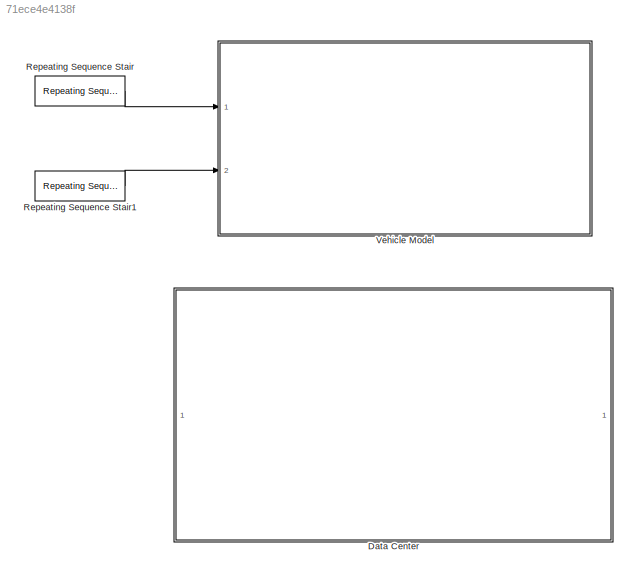
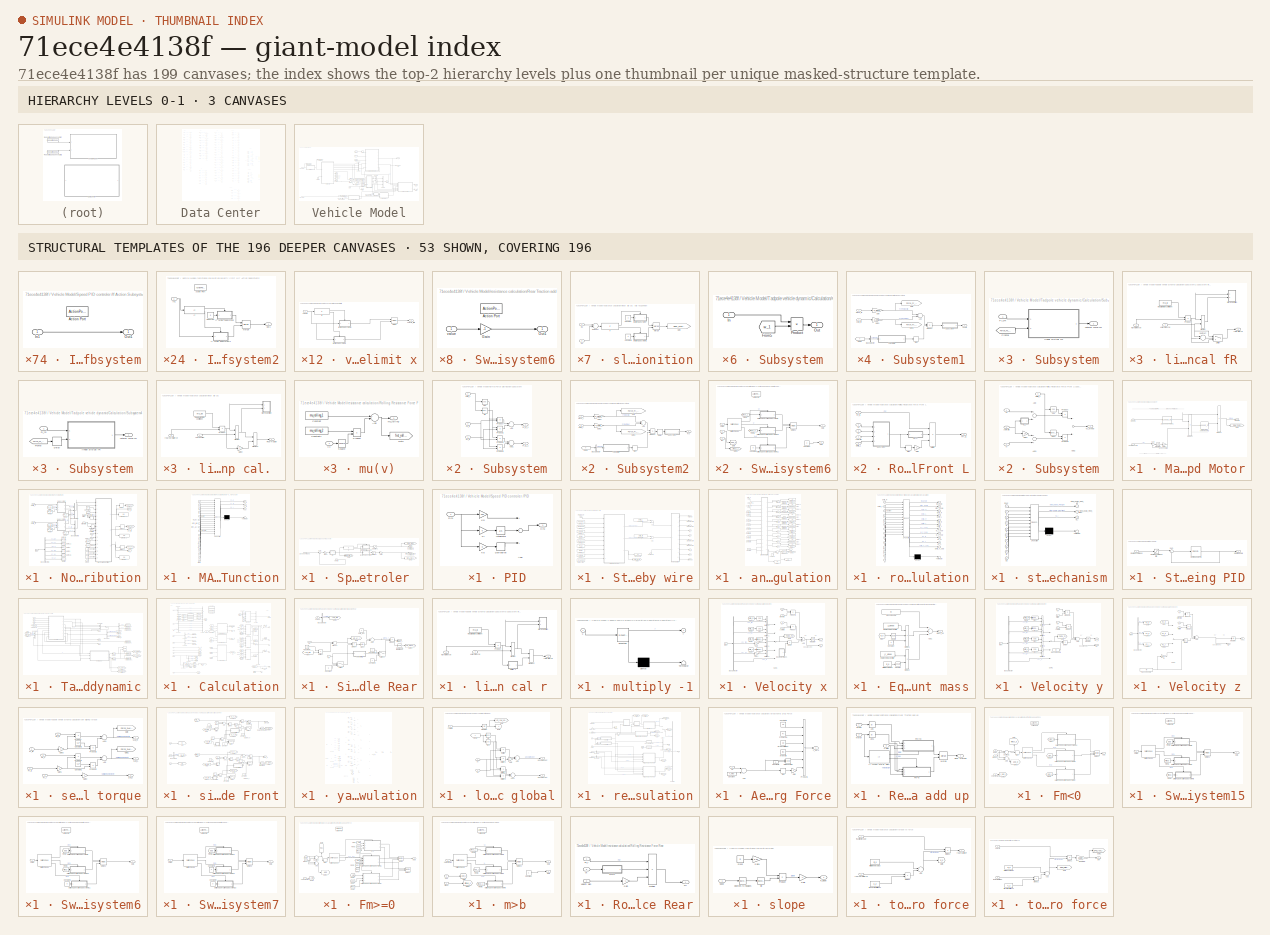
[diagram: thumbnail index - top-2 hierarchy levels (3 canvases) + 53 structural-template representatives of the remaining 196 canvases]
MODEL slx_71ece4e4138f
KIND model
CONFIG AbsTol = auto
CONFIG EnableMultiTasking = off
CONFIG FixedStep = 0.001
CONFIG MaxStep = auto
CONFIG MinStep = auto
CONFIG RelTol = 1e-2
CONFIG SampleTimeConstraint = Unconstrained
CONFIG Solver = ode4
CONFIG SolverName = ode4
CONFIG StartTime = 0.0
CONFIG StopTime = sim_time
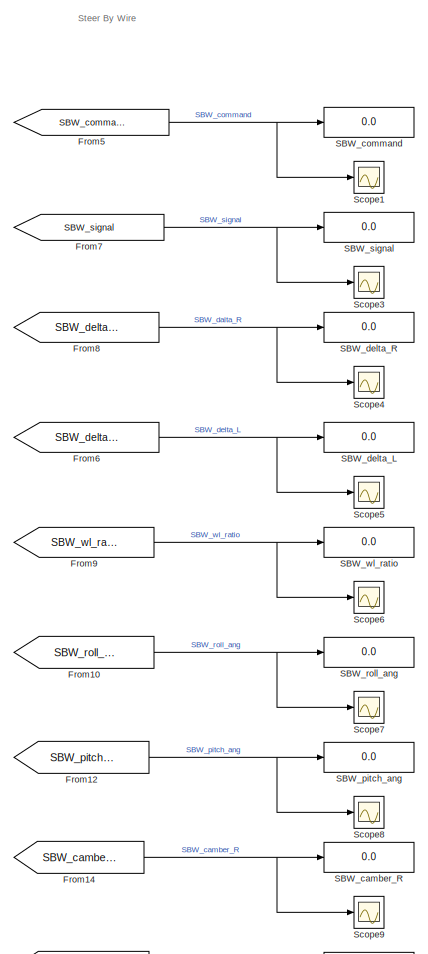
[diagram: Data Center - part 1/10, top left region]
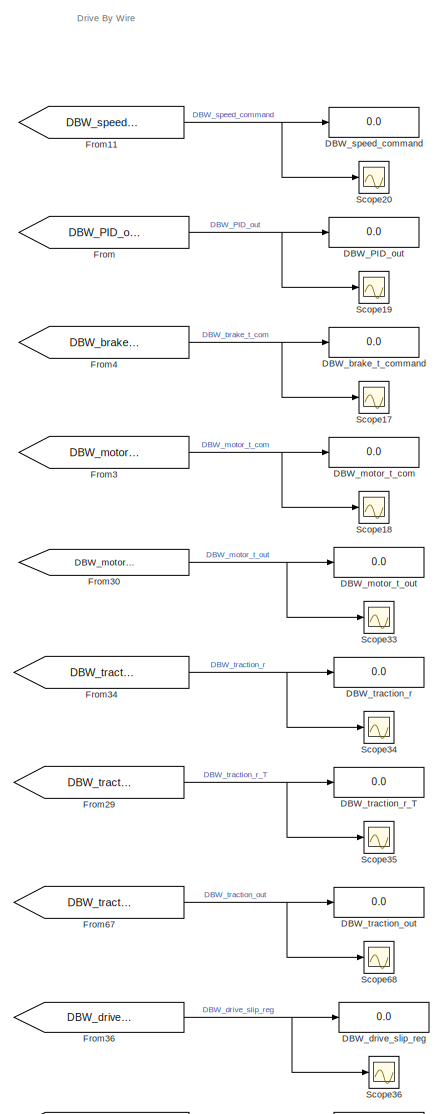
[diagram: Data Center - part 2/10, top left region]
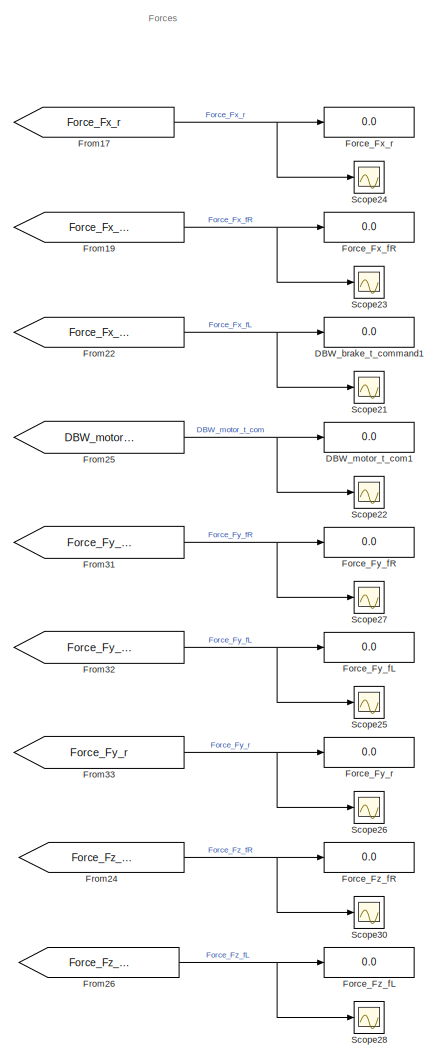
[diagram: Data Center - part 3/10, top center region]
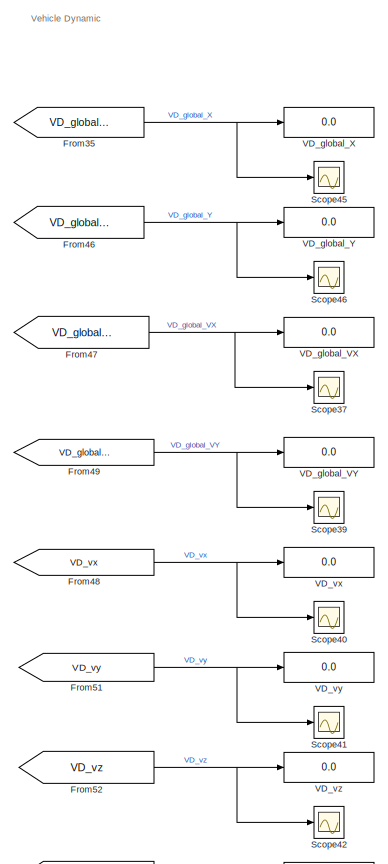
[diagram: Data Center - part 4/10, top right region]
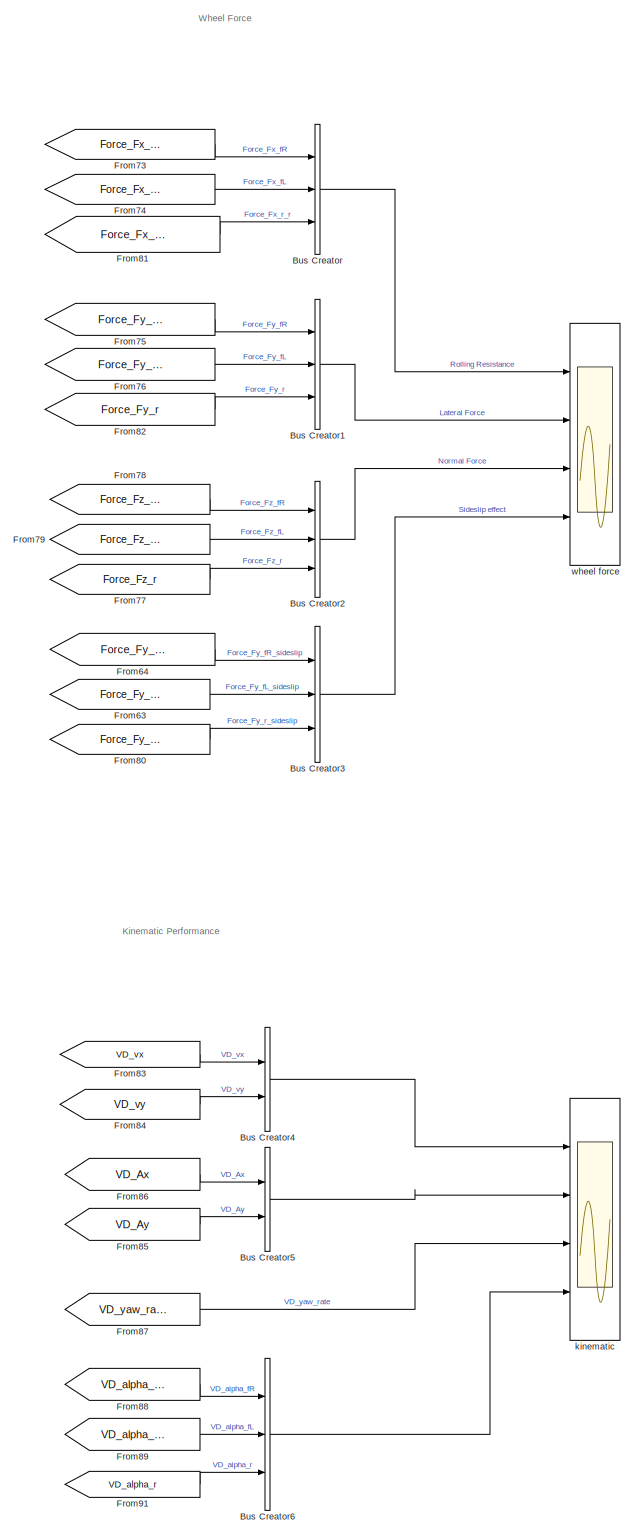
[diagram: Data Center - part 5/10, middle right region]
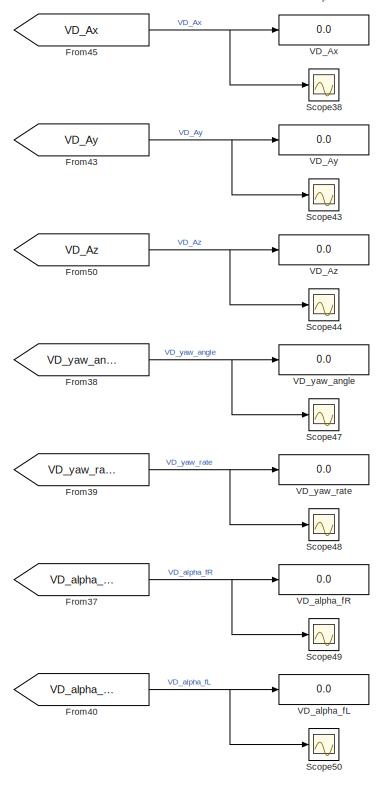
[diagram: Data Center - part 6/10, middle right region]
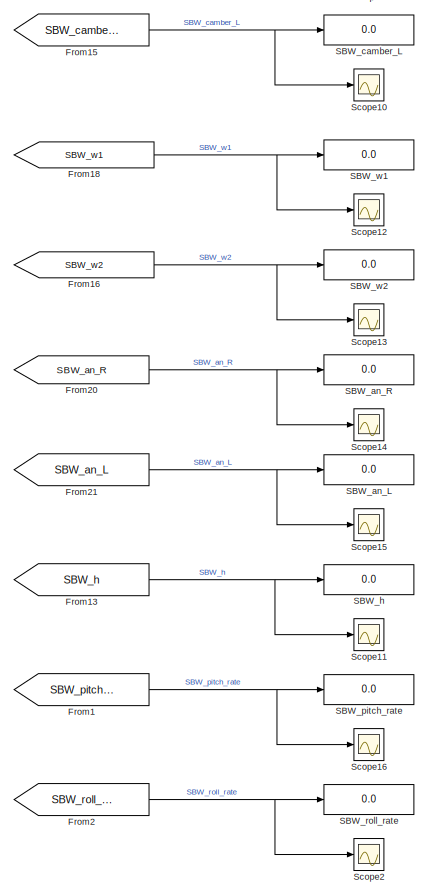
[diagram: Data Center - part 7/10, middle left region]
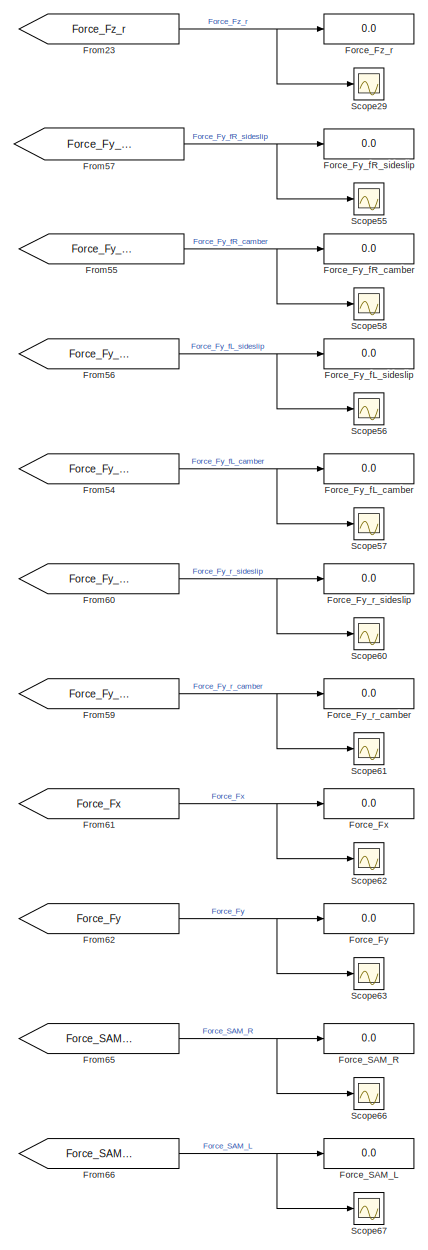
[diagram: Data Center - part 8/10, central region]
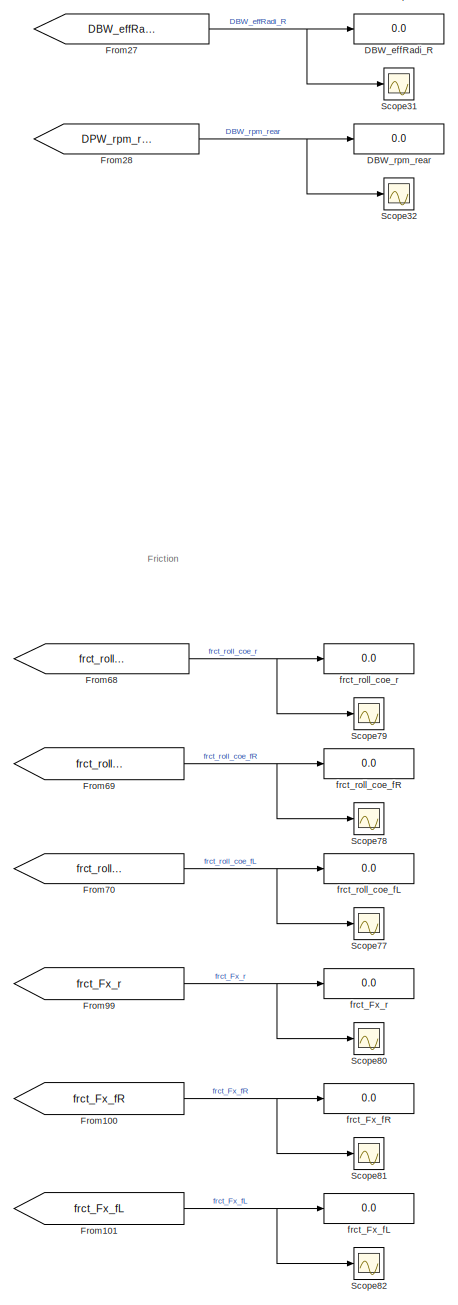
[diagram: Data Center - part 9/10, middle left region]
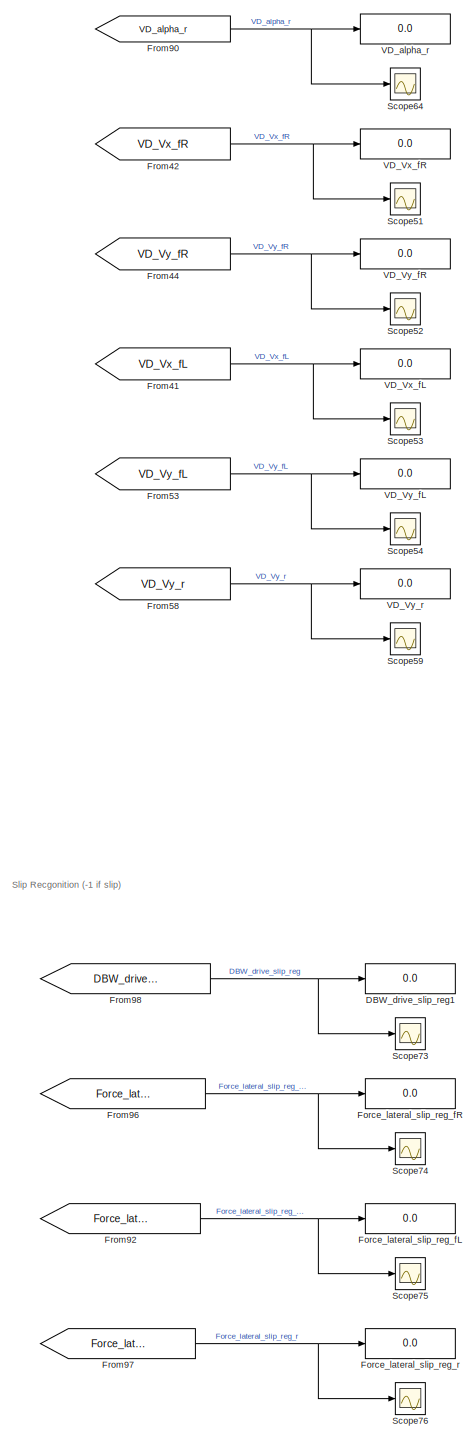
[diagram: Data Center - part 10/10, bottom right region]
BLOCK [SubSystem] Data Center
  Commented = on
  Ports = []
  RequestExecContextInheritance = off
BLOCK [BusCreator] Data Center/Bus Creator
  DisplayOption = bar
  InheritFromInputs = on
  Inputs = 3
  Ports = [3, 1]
BLOCK [BusCreator] Data Center/Bus Creator1
  DisplayOption = bar
  InheritFromInputs = on
  Inputs = 3
  Ports = [3, 1]
BLOCK [BusCreator] Data Center/Bus Creator2
  DisplayOption = bar
  InheritFromInputs = on
  Inputs = 3
  Ports = [3, 1]
BLOCK [BusCreator] Data Center/Bus Creator3
  DisplayOption = bar
  InheritFromInputs = on
  Inputs = 3
  Ports = [3, 1]
BLOCK [BusCreator] Data Center/Bus Creator4
  DisplayOption = bar
  InheritFromInputs = on
  Inputs = 2
  Ports = [2, 1]
BLOCK [BusCreator] Data Center/Bus Creator5
  DisplayOption = bar
  InheritFromInputs = on
  Inputs = 2
  Ports = [2, 1]
BLOCK [BusCreator] Data Center/Bus Creator6
  DisplayOption = bar
  InheritFromInputs = on
  Inputs = 3
  Ports = [3, 1]
BLOCK [Display] Data Center/DBW_PID_out
  Decimation = 1
  Ports = [1]
BLOCK [Display] Data Center/DBW_brake_t_command
  Decimation = 1
  Ports = [1]
BLOCK [Display] Data Center/DBW_brake_t_command1
  Decimation = 1
  Ports = [1]
BLOCK [Display] Data Center/DBW_drive_slip_reg
  Decimation = 1
  Ports = [1]
BLOCK [Display] Data Center/DBW_drive_slip_reg1
  Decimation = 1
  Ports = [1]
BLOCK [Display] Data Center/DBW_effRadi_R
  Decimation = 1
  Ports = [1]
BLOCK [Display] Data Center/DBW_motor_t_com
  Decimation = 1
  Ports = [1]
BLOCK [Display] Data Center/DBW_motor_t_com1
  Decimation = 1
  Ports = [1]
BLOCK [Display] Data Center/DBW_motor_t_out
  Decimation = 1
  Ports = [1]
BLOCK [Display] Data Center/DBW_rpm_rear
  Decimation = 1
  Ports = [1]
BLOCK [Display] Data Center/DBW_speed_command
  Decimation = 1
  Ports = [1]
BLOCK [Display] Data Center/DBW_traction_out
  Decimation = 1
  Ports = [1]
BLOCK [Display] Data Center/DBW_traction_r
  Decimation = 1
  Ports = [1]
BLOCK [Display] Data Center/DBW_traction_r_T
  Decimation = 1
  Ports = [1]
BLOCK [Display] Data Center/Force_Fx
  Decimation = 1
  Ports = [1]
BLOCK [Display] Data Center/Force_Fx_fR
  Decimation = 1
  Ports = [1]
BLOCK [Display] Data Center/Force_Fx_r
  Decimation = 1
  Ports = [1]
BLOCK [Display] Data Center/Force_Fy
  Decimation = 1
  Ports = [1]
BLOCK [Display] Data Center/Force_Fy_fL
  Decimation = 1
  Ports = [1]
BLOCK [Display] Data Center/Force_Fy_fL_camber
  Decimation = 1
  Ports = [1]
BLOCK [Display] Data Center/Force_Fy_fL_sideslip
  Decimation = 1
  Ports = [1]
BLOCK [Display] Data Center/Force_Fy_fR
  Decimation = 1
  Ports = [1]
BLOCK [Display] Data Center/Force_Fy_fR_camber
  Decimation = 1
  Ports = [1]
BLOCK [Display] Data Center/Force_Fy_fR_sideslip
  Decimation = 1
  Ports = [1]
BLOCK [Display] Data Center/Force_Fy_r
  Decimation = 1
  Ports = [1]
BLOCK [Display] Data Center/Force_Fy_r_camber
  Decimation = 1
  Ports = [1]
BLOCK [Display] Data Center/Force_Fy_r_sideslip
  Decimation = 1
  Ports = [1]
BLOCK [Display] Data Center/Force_Fz_fL
  Decimation = 1
  Ports = [1]
BLOCK [Display] Data Center/Force_Fz_fR
  Decimation = 1
  Ports = [1]
BLOCK [Display] Data Center/Force_Fz_r
  Decimation = 1
  Ports = [1]
BLOCK [Display] Data Center/Force_SAM_L
  Decimation = 1
  Ports = [1]
BLOCK [Display] Data Center/Force_SAM_R
  Decimation = 1
  Ports = [1]
BLOCK [Display] Data Center/Force_lateral_slip_reg_fL
  Decimation = 1
  Ports = [1]
BLOCK [Display] Data Center/Force_lateral_slip_reg_fR
  Decimation = 1
  Ports = [1]
BLOCK [Display] Data Center/Force_lateral_slip_reg_r
  Decimation = 1
  Ports = [1]
BLOCK [From] Data Center/From
  GotoTag = DBW_PID_out
  TagVisibility = global
BLOCK [From] Data Center/From1
  GotoTag = SBW_pitch_rate
  TagVisibility = global
BLOCK [From] Data Center/From10
  GotoTag = SBW_roll_ang
  TagVisibility = global
BLOCK [From] Data Center/From100
  GotoTag = frct_Fx_fR
  TagVisibility = global
BLOCK [From] Data Center/From101
  GotoTag = frct_Fx_fL
  TagVisibility = global
BLOCK [From] Data Center/From11
  GotoTag = DBW_speed_command
  TagVisibility = global
BLOCK [From] Data Center/From12
  GotoTag = SBW_pitch_ang
  TagVisibility = global
BLOCK [From] Data Center/From13
  GotoTag = SBW_h
  TagVisibility = global
BLOCK [From] Data Center/From14
  GotoTag = SBW_camber_R
  TagVisibility = global
BLOCK [From] Data Center/From15
  GotoTag = SBW_camber_L
  TagVisibility = global
BLOCK [From] Data Center/From16
  GotoTag = SBW_w2
  TagVisibility = global
BLOCK [From] Data Center/From17
  GotoTag = Force_Fx_r
  TagVisibility = global
BLOCK [From] Data Center/From18
  GotoTag = SBW_w1
  TagVisibility = global
BLOCK [From] Data Center/From19
  GotoTag = Force_Fx_fR
  TagVisibility = global
BLOCK [From] Data Center/From2
  GotoTag = SBW_roll_rate
  TagVisibility = global
BLOCK [From] Data Center/From20
  GotoTag = SBW_an_R
  TagVisibility = global
BLOCK [From] Data Center/From21
  GotoTag = SBW_an_L
  TagVisibility = global
BLOCK [From] Data Center/From22
  GotoTag = Force_Fx_fL
  TagVisibility = global
BLOCK [From] Data Center/From23
  GotoTag = Force_Fz_r
  TagVisibility = global
BLOCK [From] Data Center/From24
  GotoTag = Force_Fz_fR
  TagVisibility = global
BLOCK [From] Data Center/From25
  GotoTag = DBW_motor_t_com
  TagVisibility = global
BLOCK [From] Data Center/From26
  GotoTag = Force_Fz_fL
  TagVisibility = global
BLOCK [From] Data Center/From27
  GotoTag = DBW_effRadi_r
  TagVisibility = global
BLOCK [From] Data Center/From28
  GotoTag = DPW_rpm_rear
  TagVisibility = global
BLOCK [From] Data Center/From29
  GotoTag = DBW_traction_r_T
  TagVisibility = global
BLOCK [From] Data Center/From3
  GotoTag = DBW_motor_t_com
  TagVisibility = global
BLOCK [From] Data Center/From30
  GotoTag = DBW_motor_t_out
  TagVisibility = global
BLOCK [From] Data Center/From31
  GotoTag = Force_Fy_fR
  TagVisibility = global
BLOCK [From] Data Center/From32
  GotoTag = Force_Fy_fL
  TagVisibility = global
BLOCK [From] Data Center/From33
  GotoTag = Force_Fy_r
  TagVisibility = global
BLOCK [From] Data Center/From34
  GotoTag = DBW_traction_r
  TagVisibility = global
BLOCK [From] Data Center/From35
  GotoTag = VD_global_X
  TagVisibility = global
BLOCK [From] Data Center/From36
  GotoTag = DBW_drive_slip_reg
  TagVisibility = global
BLOCK [From] Data Center/From37
  GotoTag = VD_alpha_fR
  TagVisibility = global
BLOCK [From] Data Center/From38
  GotoTag = VD_yaw_angle
  TagVisibility = global
BLOCK [From] Data Center/From39
  GotoTag = VD_yaw_rate
  TagVisibility = global
BLOCK [From] Data Center/From4
  GotoTag = DBW_brake_t_com
  TagVisibility = global
BLOCK [From] Data Center/From40
  GotoTag = VD_alpha_fL
  TagVisibility = global
BLOCK [From] Data Center/From41
  GotoTag = VD_Vx_fL
  TagVisibility = global
BLOCK [From] Data Center/From42
  GotoTag = VD_Vx_fR
  TagVisibility = global
BLOCK [From] Data Center/From43
  GotoTag = VD_Ay
  TagVisibility = global
BLOCK [From] Data Center/From44
  GotoTag = VD_Vy_fR
  TagVisibility = global
BLOCK [From] Data Center/From45
  GotoTag = VD_Ax
  TagVisibility = global
BLOCK [From] Data Center/From46
  GotoTag = VD_global_Y
  TagVisibility = global
BLOCK [From] Data Center/From47
  GotoTag = VD_global_VX
  TagVisibility = global
BLOCK [From] Data Center/From48
  GotoTag = VD_vx
  TagVisibility = global
BLOCK [From] Data Center/From49
  GotoTag = VD_global_VY
  TagVisibility = global
BLOCK [From] Data Center/From5
  GotoTag = SBW_command
  TagVisibility = global
BLOCK [From] Data Center/From50
  GotoTag = VD_Az
  TagVisibility = global
BLOCK [From] Data Center/From51
  GotoTag = VD_vy
  TagVisibility = global
BLOCK [From] Data Center/From52
  GotoTag = VD_vz
  TagVisibility = global
BLOCK [From] Data Center/From53
  GotoTag = VD_Vy_fL
  TagVisibility = global
BLOCK [From] Data Center/From54
  GotoTag = Force_Fy_fL_camber
  TagVisibility = global
BLOCK [From] Data Center/From55
  GotoTag = Force_Fy_fR_camber
  TagVisibility = global
BLOCK [From] Data Center/From56
  GotoTag = Force_Fy_fL_sideslip
  TagVisibility = global
BLOCK [From] Data Center/From57
  GotoTag = Force_Fy_fR_sideslip
  TagVisibility = global
BLOCK [From] Data Center/From58
  GotoTag = VD_Vy_r
  TagVisibility = global
BLOCK [From] Data Center/From59
  GotoTag = Force_Fy_r_camber
  TagVisibility = global
BLOCK [From] Data Center/From6
  GotoTag = SBW_delta_L
  TagVisibility = global
BLOCK [From] Data Center/From60
  GotoTag = Force_Fy_r_sideslip
  TagVisibility = global
BLOCK [From] Data Center/From61
  GotoTag = Force_Fx
  TagVisibility = global
BLOCK [From] Data Center/From62
  GotoTag = Force_Fy
  TagVisibility = global
BLOCK [From] Data Center/From63
  GotoTag = Force_Fy_fL_sideslip
  TagVisibility = global
BLOCK [From] Data Center/From64
  GotoTag = Force_Fy_fR_sideslip
  TagVisibility = global
BLOCK [From] Data Center/From65
  GotoTag = Force_SAM_R
  TagVisibility = global
BLOCK [From] Data Center/From66
  GotoTag = Force_SAM_L
  TagVisibility = global
BLOCK [From] Data Center/From67
  GotoTag = DBW_traction_out
  TagVisibility = global
BLOCK [From] Data Center/From68
  GotoTag = frct_roll_coe_r
  TagVisibility = global
BLOCK [From] Data Center/From69
  GotoTag = frct_roll_coe_fR
  TagVisibility = global
BLOCK [From] Data Center/From7
  GotoTag = SBW_signal
  TagVisibility = global
BLOCK [From] Data Center/From70
  GotoTag = frct_roll_coe_fL
  TagVisibility = global
BLOCK [From] Data Center/From73
  GotoTag = Force_Fx_fR
  TagVisibility = global
BLOCK [From] Data Center/From74
  GotoTag = Force_Fx_fL
  TagVisibility = global
BLOCK [From] Data Center/From75
  GotoTag = Force_Fy_fR
  TagVisibility = global
BLOCK [From] Data Center/From76
  GotoTag = Force_Fy_fL
  TagVisibility = global
BLOCK [From] Data Center/From77
  GotoTag = Force_Fz_r
  TagVisibility = global
BLOCK [From] Data Center/From78
  GotoTag = Force_Fz_fR
  TagVisibility = global
BLOCK [From] Data Center/From79
  GotoTag = Force_Fz_fL
  TagVisibility = global
BLOCK [From] Data Center/From8
  GotoTag = SBW_delta_R
  TagVisibility = global
BLOCK [From] Data Center/From80
  GotoTag = Force_Fy_r_sideslip
  TagVisibility = global
BLOCK [From] Data Center/From81
  GotoTag = Force_Fx_r_r
  TagVisibility = global
BLOCK [From] Data Center/From82
  GotoTag = Force_Fy_r
  TagVisibility = global
BLOCK [From] Data Center/From83
  GotoTag = VD_vx
  TagVisibility = global
BLOCK [From] Data Center/From84
  GotoTag = VD_vy
  TagVisibility = global
BLOCK [From] Data Center/From85
  GotoTag = VD_Ay
  TagVisibility = global
BLOCK [From] Data Center/From86
  GotoTag = VD_Ax
  TagVisibility = global
BLOCK [From] Data Center/From87
  GotoTag = VD_yaw_rate
  TagVisibility = global
BLOCK [From] Data Center/From88
  GotoTag = VD_alpha_fR
  TagVisibility = global
BLOCK [From] Data Center/From89
  GotoTag = VD_alpha_fL
  TagVisibility = global
BLOCK [From] Data Center/From9
  GotoTag = SBW_wl_ratio
  TagVisibility = global
BLOCK [From] Data Center/From90
  GotoTag = VD_alpha_r
  TagVisibility = global
BLOCK [From] Data Center/From91
  GotoTag = VD_alpha_r
  TagVisibility = global
BLOCK [From] Data Center/From92
  GotoTag = Force_lateral_slip_reg_fL
  TagVisibility = global
BLOCK [From] Data Center/From96
  GotoTag = Force_lateral_slip_reg_fR
  TagVisibility = global
BLOCK [From] Data Center/From97
  GotoTag = Force_lateral_slip_reg_r
  TagVisibility = global
BLOCK [From] Data Center/From98
  GotoTag = DBW_drive_slip_reg
  TagVisibility = global
BLOCK [From] Data Center/From99
  GotoTag = frct_Fx_r
  TagVisibility = global
BLOCK [Display] Data Center/SBW_an_L
  Decimation = 1
  Ports = [1]
BLOCK [Display] Data Center/SBW_an_R
  Decimation = 1
  Ports = [1]
BLOCK [Display] Data Center/SBW_camber_L
  Decimation = 1
  Ports = [1]
BLOCK [Display] Data Center/SBW_camber_R
  Decimation = 1
  Ports = [1]
BLOCK [Display] Data Center/SBW_command
  Decimation = 1
  Ports = [1]
BLOCK [Display] Data Center/SBW_delta_L
  Decimation = 1
  Ports = [1]
BLOCK [Display] Data Center/SBW_delta_R
  Decimation = 1
  Ports = [1]
BLOCK [Display] Data Center/SBW_h
  Decimation = 1
  Ports = [1]
BLOCK [Display] Data Center/SBW_pitch_ang
  Decimation = 1
  Ports = [1]
BLOCK [Display] Data Center/SBW_pitch_rate
  Decimation = 1
  Ports = [1]
BLOCK [Display] Data Center/SBW_roll_ang
  Decimation = 1
  Ports = [1]
BLOCK [Display] Data Center/SBW_roll_rate
  Decimation = 1
  Ports = [1]
BLOCK [Display] Data Center/SBW_signal
  Decimation = 1
  Ports = [1]
BLOCK [Display] Data Center/SBW_w1
  Decimation = 1
  Ports = [1]
BLOCK [Display] Data Center/SBW_w2
  Decimation = 1
  Ports = [1]
BLOCK [Display] Data Center/SBW_wl_ratio
  Decimation = 1
  Ports = [1]
BLOCK [Scope] Data Center/Scope1
  Floating = off
  NumInputPorts = 1
  Ports = [1]
  ScopeSpecificationString = Simulink.scopes.TimeScopeBlockCfg('CurrentConfiguration', extmgr.ConfigurationSet(extmgr.Configuration('Core','General UI',true),extmgr.Configuration('Core','Source UI',true),extmgr.Configuration('Sources','WiredSimulink',true,'DataLoggingVariableName','ScopeData1'),extmgr.Configuration('Visuals','Time Domain',true,'SerializedDisplays',{struct('MinYLimReal','-13.21693','MaxYLimReal','9.77617','YLa...<+1399ch>
BLOCK [Scope] Data Center/Scope10
  Floating = off
  NumInputPorts = 1
  Ports = [1]
  ScopeSpecificationString = Simulink.scopes.TimeScopeBlockCfg('CurrentConfiguration', extmgr.ConfigurationSet(extmgr.Configuration('Core','General UI',true),extmgr.Configuration('Core','Source UI',true),extmgr.Configuration('Sources','WiredSimulink',true,'DataLoggingVariableName','ScopeData6'),extmgr.Configuration('Visuals','Time Domain',true,'SerializedDisplays',{struct('MinYLimReal','-9.16461','MaxYLimReal','1.01829','YLab...<+1396ch>
BLOCK [Scope] Data Center/Scope11
  Floating = off
  NumInputPorts = 1
  Ports = [1]
  ScopeSpecificationString = Simulink.scopes.TimeScopeBlockCfg('CurrentConfiguration', extmgr.ConfigurationSet(extmgr.Configuration('Core','General UI',true),extmgr.Configuration('Core','Source UI',true),extmgr.Configuration('Sources','WiredSimulink',true,'DataLoggingVariableName','ScopeData7'),extmgr.Configuration('Visuals','Time Domain',true),extmgr.Configuration('Tools','Plot Navigation',true),extmgr.Configuration('Tools',...<+40ch>
BLOCK [Scope] Data Center/Scope12
  Floating = off
  NumInputPorts = 1
  Ports = [1]
  ScopeSpecificationString = Simulink.scopes.TimeScopeBlockCfg('CurrentConfiguration', extmgr.ConfigurationSet(extmgr.Configuration('Core','General UI',true),extmgr.Configuration('Core','Source UI',true),extmgr.Configuration('Sources','WiredSimulink',true,'DataLoggingVariableName','ScopeData11'),extmgr.Configuration('Visuals','Time Domain',true,'SerializedDisplays',{struct('MinYLimReal','0.3798','MaxYLimReal','0.40224','YLabe...<+1360ch>
BLOCK [Scope] Data Center/Scope13
  Floating = off
  NumInputPorts = 1
  Ports = [1]
  ScopeSpecificationString = Simulink.scopes.TimeScopeBlockCfg('CurrentConfiguration', extmgr.ConfigurationSet(extmgr.Configuration('Core','General UI',true),extmgr.Configuration('Core','Source UI',true),extmgr.Configuration('Sources','WiredSimulink',true,'DataLoggingVariableName','ScopeData12'),extmgr.Configuration('Visuals','Time Domain',true),extmgr.Configuration('Tools','Plot Navigation',true),extmgr.Configuration('Tools'...<+41ch>  <repeated x3 — deduplicated; at blocks: Scope13, Scope26, Scope81>
BLOCK [Scope] Data Center/Scope14
  Floating = off
  NumInputPorts = 1
  Ports = [1]
  ScopeSpecificationString = Simulink.scopes.TimeScopeBlockCfg('CurrentConfiguration', extmgr.ConfigurationSet(extmgr.Configuration('Core','General UI',true),extmgr.Configuration('Core','Source UI',true),extmgr.Configuration('Sources','WiredSimulink',true,'DataLoggingVariableName','ScopeData13'),extmgr.Configuration('Visuals','Time Domain',true,'SerializedDisplays',{struct('MinYLimReal','0.05772','MaxYLimReal','0.06574','YLab...<+1391ch>
BLOCK [Scope] Data Center/Scope15
  Floating = off
  NumInputPorts = 1
  Ports = [1]
  ScopeSpecificationString = Simulink.scopes.TimeScopeBlockCfg('CurrentConfiguration', extmgr.ConfigurationSet(extmgr.Configuration('Core','General UI',true),extmgr.Configuration('Core','Source UI',true),extmgr.Configuration('Sources','WiredSimulink',true,'DataLoggingVariableName','ScopeData14'),extmgr.Configuration('Visuals','Time Domain',true),extmgr.Configuration('Tools','Plot Navigation',true),extmgr.Configuration('Tools'...<+41ch>
BLOCK [Scope] Data Center/Scope16
  Floating = off
  NumInputPorts = 1
  Ports = [1]
  ScopeSpecificationString = Simulink.scopes.TimeScopeBlockCfg('CurrentConfiguration', extmgr.ConfigurationSet(extmgr.Configuration('Core','General UI',true),extmgr.Configuration('Core','Source UI',true),extmgr.Configuration('Sources','WiredSimulink',true,'DataLoggingVariableName','ScopeData1'),extmgr.Configuration('Visuals','Time Domain',true),extmgr.Configuration('Tools','Plot Navigation',true),extmgr.Configuration('Tools',...<+40ch>
BLOCK [Scope] Data Center/Scope17
  Floating = off
  NumInputPorts = 1
  Ports = [1]
  ScopeSpecificationString = Simulink.scopes.TimeScopeBlockCfg('CurrentConfiguration', extmgr.ConfigurationSet(extmgr.Configuration('Core','General UI',true),extmgr.Configuration('Core','Source UI',true),extmgr.Configuration('Sources','WiredSimulink',true,'DataLoggingVariableName','ScopeData3'),extmgr.Configuration('Visuals','Time Domain',true,'SerializedDisplays',{struct('MinYLimReal','-1.00000','MaxYLimReal','1.00000','YLab...<+1374ch>
BLOCK [Scope] Data Center/Scope18
  Floating = off
  NumInputPorts = 1
  Ports = [1]
  ScopeSpecificationString = Simulink.scopes.TimeScopeBlockCfg('CurrentConfiguration', extmgr.ConfigurationSet(extmgr.Configuration('Core','General UI',true),extmgr.Configuration('Core','Source UI',true),extmgr.Configuration('Sources','WiredSimulink',true,'DataLoggingVariableName','ScopeData4'),extmgr.Configuration('Visuals','Time Domain',true),extmgr.Configuration('Tools','Plot Navigation',true),extmgr.Configuration('Tools',...<+40ch>
BLOCK [Scope] Data Center/Scope19
  Floating = off
  NumInputPorts = 1
  Ports = [1]
  ScopeSpecificationString = Simulink.scopes.TimeScopeBlockCfg('CurrentConfiguration', extmgr.ConfigurationSet(extmgr.Configuration('Core','General UI',true),extmgr.Configuration('Core','Source UI',true),extmgr.Configuration('Sources','WiredSimulink',true,'DataLoggingVariableName','ScopeData5'),extmgr.Configuration('Visuals','Time Domain',true),extmgr.Configuration('Tools','Plot Navigation',true),extmgr.Configuration('Tools',...<+40ch>
BLOCK [Scope] Data Center/Scope2
  Floating = off
  NumInputPorts = 1
  Ports = [1]
  ScopeSpecificationString = Simulink.scopes.TimeScopeBlockCfg('CurrentConfiguration', extmgr.ConfigurationSet(extmgr.Configuration('Core','General UI',true),extmgr.Configuration('Core','Source UI',true),extmgr.Configuration('Sources','WiredSimulink',true,'DataLoggingVariableName','ScopeData2'),extmgr.Configuration('Visuals','Time Domain',true,'SerializedDisplays',{struct('MinYLimReal','-0.05355','MaxYLimReal','0.02448','YLab...<+1397ch>
BLOCK [Scope] Data Center/Scope20
  Floating = off
  NumInputPorts = 1
  Ports = [1]
  ScopeSpecificationString = Simulink.scopes.TimeScopeBlockCfg('CurrentConfiguration', extmgr.ConfigurationSet(extmgr.Configuration('Core','General UI',true),extmgr.Configuration('Core','Source UI',true),extmgr.Configuration('Sources','WiredSimulink',true,'DataLoggingVariableName','ScopeData6'),extmgr.Configuration('Visuals','Time Domain',true),extmgr.Configuration('Tools','Plot Navigation',true),extmgr.Configuration('Tools',...<+40ch>
BLOCK [Scope] Data Center/Scope21
  Floating = off
  NumInputPorts = 1
  Ports = [1]
  ScopeSpecificationString = Simulink.scopes.TimeScopeBlockCfg('CurrentConfiguration', extmgr.ConfigurationSet(extmgr.Configuration('Core','General UI',true),extmgr.Configuration('Core','Source UI',true),extmgr.Configuration('Sources','WiredSimulink',true,'DataLoggingVariableName','ScopeData7'),extmgr.Configuration('Visuals','Time Domain',true,'SerializedDisplays',{struct('MinYLimReal','-0.79512','MaxYLimReal','0.75676','YLab...<+1398ch>
BLOCK [Scope] Data Center/Scope22
  Floating = off
  NumInputPorts = 1
  Ports = [1]
  ScopeSpecificationString = Simulink.scopes.TimeScopeBlockCfg('CurrentConfiguration', extmgr.ConfigurationSet(extmgr.Configuration('Core','General UI',true),extmgr.Configuration('Core','Source UI',true),extmgr.Configuration('Sources','WiredSimulink',true,'DataLoggingVariableName','ScopeData8'),extmgr.Configuration('Visuals','Time Domain',true),extmgr.Configuration('Tools','Plot Navigation',true),extmgr.Configuration('Tools',...<+40ch>  <repeated x3 — deduplicated; at blocks: Scope22, Scope7, Scope77>
BLOCK [Scope] Data Center/Scope23
  Floating = off
  NumInputPorts = 1
  Ports = [1]
  ScopeSpecificationString = Simulink.scopes.TimeScopeBlockCfg('CurrentConfiguration', extmgr.ConfigurationSet(extmgr.Configuration('Core','General UI',true),extmgr.Configuration('Core','Source UI',true),extmgr.Configuration('Sources','WiredSimulink',true,'DataLoggingVariableName','ScopeData9'),extmgr.Configuration('Visuals','Time Domain',true,'SerializedDisplays',{struct('MinYLimReal','-0.59728','MaxYLimReal','0.06636','YLab...<+1395ch>
BLOCK [Scope] Data Center/Scope24
  Floating = off
  NumInputPorts = 1
  Ports = [1]
  ScopeSpecificationString = Simulink.scopes.TimeScopeBlockCfg('CurrentConfiguration', extmgr.ConfigurationSet(extmgr.Configuration('Core','General UI',true),extmgr.Configuration('Core','Source UI',true),extmgr.Configuration('Sources','WiredSimulink',true,'DataLoggingVariableName','ScopeData10'),extmgr.Configuration('Visuals','Time Domain',true),extmgr.Configuration('Tools','Plot Navigation',true),extmgr.Configuration('Tools'...<+41ch>  <repeated x3 — deduplicated; at blocks: Scope24, Scope79, Scope9>
BLOCK [Scope] Data Center/Scope25
  Floating = off
  NumInputPorts = 1
  Ports = [1]
  ScopeSpecificationString = Simulink.scopes.TimeScopeBlockCfg('CurrentConfiguration', extmgr.ConfigurationSet(extmgr.Configuration('Core','General UI',true),extmgr.Configuration('Core','Source UI',true),extmgr.Configuration('Sources','WiredSimulink',true,'DataLoggingVariableName','ScopeData11'),extmgr.Configuration('Visuals','Time Domain',true,'SerializedDisplays',{struct('MinYLimReal','-8.94736','MaxYLimReal','10.2775','YLa...<+1396ch>
BLOCK [Scope] Data Center/Scope26
  Floating = off
  NumInputPorts = 1
  Ports = [1]
BLOCK [Scope] Data Center/Scope27
  Floating = off
  NumInputPorts = 1
  Ports = [1]
  ScopeSpecificationString = Simulink.scopes.TimeScopeBlockCfg('CurrentConfiguration', extmgr.ConfigurationSet(extmgr.Configuration('Core','General UI',true),extmgr.Configuration('Core','Source UI',true),extmgr.Configuration('Sources','WiredSimulink',true,'DataLoggingVariableName','ScopeData13'),extmgr.Configuration('Visuals','Time Domain',true,'SerializedDisplays',{struct('MinYLimReal','-0.02138','MaxYLimReal','0.06315','YLa...<+1415ch>
BLOCK [Scope] Data Center/Scope28
  Floating = off
  NumInputPorts = 1
  Ports = [1]
  ScopeSpecificationString = Simulink.scopes.TimeScopeBlockCfg('CurrentConfiguration', extmgr.ConfigurationSet(extmgr.Configuration('Core','General UI',true),extmgr.Configuration('Core','Source UI',true),extmgr.Configuration('Sources','WiredSimulink',true,'DataLoggingVariableName','ScopeData14'),extmgr.Configuration('Visuals','Time Domain',true),extmgr.Configuration('Tools','Plot Navigation',true),extmgr.Configuration('Tools'...<+41ch>
BLOCK [Scope] Data Center/Scope29
  Floating = off
  NumInputPorts = 1
  Ports = [1]
  ScopeSpecificationString = Simulink.scopes.TimeScopeBlockCfg('CurrentConfiguration', extmgr.ConfigurationSet(extmgr.Configuration('Core','General UI',true),extmgr.Configuration('Core','Source UI',true),extmgr.Configuration('Sources','WiredSimulink',true,'DataLoggingVariableName','ScopeData15'),extmgr.Configuration('Visuals','Time Domain',true,'SerializedDisplays',{struct('MinYLimReal','118.40183','MaxYLimReal','153.27885','...<+1437ch>
BLOCK [Scope] Data Center/Scope3
  Floating = off
  NumInputPorts = 1
  Ports = [1]
  ScopeSpecificationString = Simulink.scopes.TimeScopeBlockCfg('CurrentConfiguration', extmgr.ConfigurationSet(extmgr.Configuration('Core','General UI',true),extmgr.Configuration('Core','Source UI',true),extmgr.Configuration('Sources','WiredSimulink',true,'DataLoggingVariableName','ScopeData2'),extmgr.Configuration('Visuals','Time Domain',true,'SerializedDisplays',{struct('MinYLimReal','-37.5','MaxYLimReal','37.5','YLabelReal...<+1376ch>
BLOCK [Scope] Data Center/Scope30
  Floating = off
  NumInputPorts = 1
  Ports = [1]
  ScopeSpecificationString = Simulink.scopes.TimeScopeBlockCfg('CurrentConfiguration', extmgr.ConfigurationSet(extmgr.Configuration('Core','General UI',true),extmgr.Configuration('Core','Source UI',true),extmgr.Configuration('Sources','WiredSimulink',true,'DataLoggingVariableName','ScopeData16'),extmgr.Configuration('Visuals','Time Domain',true),extmgr.Configuration('Tools','Plot Navigation',true),extmgr.Configuration('Tools'...<+41ch>
BLOCK [Scope] Data Center/Scope31
  Floating = off
  NumInputPorts = 1
  Ports = [1]
  ScopeSpecificationString = Simulink.scopes.TimeScopeBlockCfg('CurrentConfiguration', extmgr.ConfigurationSet(extmgr.Configuration('Core','General UI',true),extmgr.Configuration('Core','Source UI',true),extmgr.Configuration('Sources','WiredSimulink',true,'DataLoggingVariableName','ScopeData17'),extmgr.Configuration('Visuals','Time Domain',true,'SerializedDisplays',{struct('MinYLimReal','0.32968','MaxYLimReal','0.33105','YLab...<+1443ch>
BLOCK [Scope] Data Center/Scope32
  Floating = off
  NumInputPorts = 1
  Ports = [1]
  ScopeSpecificationString = Simulink.scopes.TimeScopeBlockCfg('CurrentConfiguration', extmgr.ConfigurationSet(extmgr.Configuration('Core','General UI',true),extmgr.Configuration('Core','Source UI',true),extmgr.Configuration('Sources','WiredSimulink',true,'DataLoggingVariableName','ScopeData18'),extmgr.Configuration('Visuals','Time Domain',true),extmgr.Configuration('Tools','Plot Navigation',true),extmgr.Configuration('Tools'...<+41ch>
BLOCK [Scope] Data Center/Scope33
  Floating = off
  NumInputPorts = 1
  Ports = [1]
  ScopeSpecificationString = Simulink.scopes.TimeScopeBlockCfg('CurrentConfiguration', extmgr.ConfigurationSet(extmgr.Configuration('Core','General UI',true),extmgr.Configuration('Core','Source UI',true),extmgr.Configuration('Sources','WiredSimulink',true,'DataLoggingVariableName','ScopeData19'),extmgr.Configuration('Visuals','Time Domain',true,'SerializedDisplays',{struct('MinYLimReal','-2.5','MaxYLimReal','22.5','YLabelReal...<+1409ch>
BLOCK [Scope] Data Center/Scope34
  Floating = off
  NumInputPorts = 1
  Ports = [1]
  ScopeSpecificationString = Simulink.scopes.TimeScopeBlockCfg('CurrentConfiguration', extmgr.ConfigurationSet(extmgr.Configuration('Core','General UI',true),extmgr.Configuration('Core','Source UI',true),extmgr.Configuration('Sources','WiredSimulink',true,'DataLoggingVariableName','ScopeData20'),extmgr.Configuration('Visuals','Time Domain',true,'SerializedDisplays',{struct('MinYLimReal','-75.73993','MaxYLimReal','75.73838','Y...<+1434ch>
BLOCK [Scope] Data Center/Scope35
  Floating = off
  NumInputPorts = 1
  Ports = [1]
  ScopeSpecificationString = Simulink.scopes.TimeScopeBlockCfg('CurrentConfiguration', extmgr.ConfigurationSet(extmgr.Configuration('Core','General UI',true),extmgr.Configuration('Core','Source UI',true),extmgr.Configuration('Sources','WiredSimulink',true,'DataLoggingVariableName','ScopeData21'),extmgr.Configuration('Visuals','Time Domain',true,'SerializedDisplays',{struct('MinYLimReal','-25.00000','MaxYLimReal','25.00000','Y...<+1407ch>
BLOCK [Scope] Data Center/Scope36
  Floating = off
  NumInputPorts = 1
  Ports = [1]
  ScopeSpecificationString = Simulink.scopes.TimeScopeBlockCfg('CurrentConfiguration', extmgr.ConfigurationSet(extmgr.Configuration('Core','General UI',true),extmgr.Configuration('Core','Source UI',true),extmgr.Configuration('Sources','WiredSimulink',true,'DataLoggingVariableName','ScopeData22'),extmgr.Configuration('Visuals','Time Domain',true,'SerializedDisplays',{struct('MinYLimReal','0.9','MaxYLimReal','1.1','YLabelReal',...<+1369ch>
BLOCK [Scope] Data Center/Scope37
  Floating = off
  NumInputPorts = 1
  Ports = [1]
  ScopeSpecificationString = Simulink.scopes.TimeScopeBlockCfg('CurrentConfiguration', extmgr.ConfigurationSet(extmgr.Configuration('Core','General UI',true),extmgr.Configuration('Core','Source UI',true),extmgr.Configuration('Sources','WiredSimulink',true,'DataLoggingVariableName','ScopeData23'),extmgr.Configuration('Visuals','Time Domain',true,'SerializedDisplays',{struct('MinYLimReal','-0.1246','MaxYLimReal','1.12139','YLab...<+1395ch>
BLOCK [Scope] Data Center/Scope38
  Floating = off
  NumInputPorts = 1
  Ports = [1]
  ScopeSpecificationString = Simulink.scopes.TimeScopeBlockCfg('CurrentConfiguration', extmgr.ConfigurationSet(extmgr.Configuration('Core','General UI',true),extmgr.Configuration('Core','Source UI',true),extmgr.Configuration('Sources','WiredSimulink',true,'DataLoggingVariableName','ScopeData24'),extmgr.Configuration('Visuals','Time Domain',true,'SerializedDisplays',{struct('MinYLimReal','-5.90225','MaxYLimReal','2.5047','YLab...<+1417ch>
BLOCK [Scope] Data Center/Scope39
  Floating = off
  NumInputPorts = 1
  Ports = [1]
  ScopeSpecificationString = Simulink.scopes.TimeScopeBlockCfg('CurrentConfiguration', extmgr.ConfigurationSet(extmgr.Configuration('Core','General UI',true),extmgr.Configuration('Core','Source UI',true),extmgr.Configuration('Sources','WiredSimulink',true,'DataLoggingVariableName','ScopeData25'),extmgr.Configuration('Visuals','Time Domain',true,'SerializedDisplays',{struct('MinYLimReal','-2.42424','MaxYLimReal','0.26936','YLa...<+1397ch>
BLOCK [Scope] Data Center/Scope4
  Floating = off
  NumInputPorts = 1
  Ports = [1]
  ScopeSpecificationString = Simulink.scopes.TimeScopeBlockCfg('CurrentConfiguration', extmgr.ConfigurationSet(extmgr.Configuration('Core','General UI',true),extmgr.Configuration('Core','Source UI',true),extmgr.Configuration('Sources','WiredSimulink',true,'DataLoggingVariableName','ScopeData3'),extmgr.Configuration('Visuals','Time Domain',true,'SerializedDisplays',{struct('MinYLimReal','-0.0000031','MaxYLimReal','0.0000043','...<+1428ch>
BLOCK [Scope] Data Center/Scope40
  Floating = off
  NumInputPorts = 1
  Ports = [1]
  ScopeSpecificationString = Simulink.scopes.TimeScopeBlockCfg('CurrentConfiguration', extmgr.ConfigurationSet(extmgr.Configuration('Core','General UI',true),extmgr.Configuration('Core','Source UI',true),extmgr.Configuration('Sources','WiredSimulink',true,'DataLoggingVariableName','ScopeData26'),extmgr.Configuration('Visuals','Time Domain',true,'SerializedDisplays',{struct('MinYLimReal','-2.8616','MaxYLimReal','1.424','YLabel...<+1461ch>
BLOCK [Scope] Data Center/Scope41
  Floating = off
  NumInputPorts = 1
  Ports = [1]
  ScopeSpecificationString = Simulink.scopes.TimeScopeBlockCfg('CurrentConfiguration', extmgr.ConfigurationSet(extmgr.Configuration('Core','General UI',true),extmgr.Configuration('Core','Source UI',true),extmgr.Configuration('Sources','WiredSimulink',true,'DataLoggingVariableName','ScopeData27'),extmgr.Configuration('Visuals','Time Domain',true,'SerializedDisplays',{struct('MinYLimReal','-0.31937','MaxYLimReal','2.3943','YLab...<+1415ch>
BLOCK [Scope] Data Center/Scope42
  Floating = off
  NumInputPorts = 1
  Ports = [1]
  ScopeSpecificationString = Simulink.scopes.TimeScopeBlockCfg('CurrentConfiguration', extmgr.ConfigurationSet(extmgr.Configuration('Core','General UI',true),extmgr.Configuration('Core','Source UI',true),extmgr.Configuration('Sources','WiredSimulink',true,'DataLoggingVariableName','ScopeData28'),extmgr.Configuration('Visuals','Time Domain',true),extmgr.Configuration('Tools','Plot Navigation',true),extmgr.Configuration('Tools'...<+41ch>
BLOCK [Scope] Data Center/Scope43
  Floating = off
  NumInputPorts = 1
  Ports = [1]
  ScopeSpecificationString = Simulink.scopes.TimeScopeBlockCfg('CurrentConfiguration', extmgr.ConfigurationSet(extmgr.Configuration('Core','General UI',true),extmgr.Configuration('Core','Source UI',true),extmgr.Configuration('Sources','WiredSimulink',true,'DataLoggingVariableName','ScopeData29'),extmgr.Configuration('Visuals','Time Domain',true,'SerializedDisplays',{struct('MinYLimReal','-0.42581','MaxYLimReal','1.37002','YLa...<+1390ch>
BLOCK [Scope] Data Center/Scope44
  Floating = off
  NumInputPorts = 1
  Ports = [1]
  ScopeSpecificationString = Simulink.scopes.TimeScopeBlockCfg('CurrentConfiguration', extmgr.ConfigurationSet(extmgr.Configuration('Core','General UI',true),extmgr.Configuration('Core','Source UI',true),extmgr.Configuration('Sources','WiredSimulink',true,'DataLoggingVariableName','ScopeData30'),extmgr.Configuration('Visuals','Time Domain',true,'SerializedDisplays',{struct('MinYLimReal','-0.01873','MaxYLimReal','0.02798','YLa...<+1390ch>
BLOCK [Scope] Data Center/Scope45
  Floating = off
  NumInputPorts = 1
  Ports = [1]
  ScopeSpecificationString = Simulink.scopes.TimeScopeBlockCfg('CurrentConfiguration', extmgr.ConfigurationSet(extmgr.Configuration('Core','General UI',true),extmgr.Configuration('Core','Source UI',true),extmgr.Configuration('Sources','WiredSimulink',true,'DataLoggingVariableName','ScopeData31'),extmgr.Configuration('Visuals','Time Domain',true,'SerializedDisplays',{struct('MinYLimReal','-0.7999','MaxYLimReal','7.19911','YLab...<+1369ch>
BLOCK [Scope] Data Center/Scope46
  Floating = off
  NumInputPorts = 1
  Ports = [1]
  ScopeSpecificationString = Simulink.scopes.TimeScopeBlockCfg('CurrentConfiguration', extmgr.ConfigurationSet(extmgr.Configuration('Core','General UI',true),extmgr.Configuration('Core','Source UI',true),extmgr.Configuration('Sources','WiredSimulink',true,'DataLoggingVariableName','ScopeData32'),extmgr.Configuration('Visuals','Time Domain',true,'SerializedDisplays',{struct('MinYLimReal','-1.25293','MaxYLimReal','11.27636','YL...<+1400ch>
BLOCK [Scope] Data Center/Scope47
  Floating = off
  NumInputPorts = 1
  Ports = [1]
  ScopeSpecificationString = Simulink.scopes.TimeScopeBlockCfg('CurrentConfiguration', extmgr.ConfigurationSet(extmgr.Configuration('Core','General UI',true),extmgr.Configuration('Core','Source UI',true),extmgr.Configuration('Sources','WiredSimulink',true,'DataLoggingVariableName','ScopeData33'),extmgr.Configuration('Visuals','Time Domain',true,'SerializedDisplays',{struct('MinYLimReal','-3.8767','MaxYLimReal','0.43074','YLab...<+1368ch>
BLOCK [Scope] Data Center/Scope48
  Floating = off
  NumInputPorts = 1
  Ports = [1]
  ScopeSpecificationString = Simulink.scopes.TimeScopeBlockCfg('CurrentConfiguration', extmgr.ConfigurationSet(extmgr.Configuration('Core','General UI',true),extmgr.Configuration('Core','Source UI',true),extmgr.Configuration('Sources','WiredSimulink',true,'DataLoggingVariableName','ScopeData34'),extmgr.Configuration('Visuals','Time Domain',true,'SerializedDisplays',{struct('MinYLimReal','-1.82258','MaxYLimReal','0.20251','YLa...<+1396ch>
BLOCK [Scope] Data Center/Scope49
  Floating = off
  NumInputPorts = 1
  Ports = [1]
  ScopeSpecificationString = Simulink.scopes.TimeScopeBlockCfg('CurrentConfiguration', extmgr.ConfigurationSet(extmgr.Configuration('Core','General UI',true),extmgr.Configuration('Core','Source UI',true),extmgr.Configuration('Sources','WiredSimulink',true,'DataLoggingVariableName','ScopeData35'),extmgr.Configuration('Visuals','Time Domain',true,'SerializedDisplays',{struct('MinYLimReal','-0.17833','MaxYLimReal','1.59423','YLa...<+1444ch>
BLOCK [Scope] Data Center/Scope5
  Floating = off
  NumInputPorts = 1
  Ports = [1]
  ScopeSpecificationString = Simulink.scopes.TimeScopeBlockCfg('CurrentConfiguration', extmgr.ConfigurationSet(extmgr.Configuration('Core','General UI',true),extmgr.Configuration('Core','Source UI',true),extmgr.Configuration('Sources','WiredSimulink',true,'DataLoggingVariableName','ScopeData4'),extmgr.Configuration('Visuals','Time Domain',true,'SerializedDisplays',{struct('MinYLimReal','-17.06417','MaxYLimReal','1.89602','YLa...<+1399ch>
BLOCK [Scope] Data Center/Scope50
  Floating = off
  NumInputPorts = 1
  Ports = [1]
  ScopeSpecificationString = Simulink.scopes.TimeScopeBlockCfg('CurrentConfiguration', extmgr.ConfigurationSet(extmgr.Configuration('Core','General UI',true),extmgr.Configuration('Core','Source UI',true),extmgr.Configuration('Sources','WiredSimulink',true,'DataLoggingVariableName','ScopeData36'),extmgr.Configuration('Visuals','Time Domain',true),extmgr.Configuration('Tools','Plot Navigation',true),extmgr.Configuration('Tools'...<+41ch>
BLOCK [Scope] Data Center/Scope51
  Floating = off
  NumInputPorts = 1
  Ports = [1]
  ScopeSpecificationString = Simulink.scopes.TimeScopeBlockCfg('CurrentConfiguration', extmgr.ConfigurationSet(extmgr.Configuration('Core','General UI',true),extmgr.Configuration('Core','Source UI',true),extmgr.Configuration('Sources','WiredSimulink',true,'DataLoggingVariableName','ScopeData37'),extmgr.Configuration('Visuals','Time Domain',true,'SerializedDisplays',{struct('MinYLimReal','-0.12452','MaxYLimReal','1.12066','YLa...<+1440ch>
BLOCK [Scope] Data Center/Scope52
  Floating = off
  NumInputPorts = 1
  Ports = [1]
  ScopeSpecificationString = Simulink.scopes.TimeScopeBlockCfg('CurrentConfiguration', extmgr.ConfigurationSet(extmgr.Configuration('Core','General UI',true),extmgr.Configuration('Core','Source UI',true),extmgr.Configuration('Sources','WiredSimulink',true,'DataLoggingVariableName','ScopeData38'),extmgr.Configuration('Visuals','Time Domain',true,'SerializedDisplays',{struct('MinYLimReal','-0.27668','MaxYLimReal','1.67483','YLa...<+1421ch>
BLOCK [Scope] Data Center/Scope53
  Floating = off
  NumInputPorts = 1
  Ports = [1]
  ScopeSpecificationString = Simulink.scopes.TimeScopeBlockCfg('CurrentConfiguration', extmgr.ConfigurationSet(extmgr.Configuration('Core','General UI',true),extmgr.Configuration('Core','Source UI',true),extmgr.Configuration('Sources','WiredSimulink',true,'DataLoggingVariableName','ScopeData39'),extmgr.Configuration('Visuals','Time Domain',true,'SerializedDisplays',{struct('MinYLimReal','-0.17841','MaxYLimReal','1.60571','YLa...<+1393ch>
BLOCK [Scope] Data Center/Scope54
  Floating = off
  NumInputPorts = 1
  Ports = [1]
  ScopeSpecificationString = Simulink.scopes.TimeScopeBlockCfg('CurrentConfiguration', extmgr.ConfigurationSet(extmgr.Configuration('Core','General UI',true),extmgr.Configuration('Core','Source UI',true),extmgr.Configuration('Sources','WiredSimulink',true,'DataLoggingVariableName','ScopeData40'),extmgr.Configuration('Visuals','Time Domain',true,'SerializedDisplays',{struct('MinYLimReal','-0.27668','MaxYLimReal','1.67483','YLa...<+1393ch>
BLOCK [Scope] Data Center/Scope55
  Floating = off
  NumInputPorts = 1
  Ports = [1]
  ScopeSpecificationString = Simulink.scopes.TimeScopeBlockCfg('CurrentConfiguration', extmgr.ConfigurationSet(extmgr.Configuration('Core','General UI',true),extmgr.Configuration('Core','Source UI',true),extmgr.Configuration('Sources','WiredSimulink',true,'DataLoggingVariableName','ScopeData41'),extmgr.Configuration('Visuals','Time Domain',true,'SerializedDisplays',{struct('MinYLimReal','-11.51974','MaxYLimReal','8.10996','YL...<+1409ch>
BLOCK [Scope] Data Center/Scope56
  Floating = off
  NumInputPorts = 1
  Ports = [1]
  ScopeSpecificationString = Simulink.scopes.TimeScopeBlockCfg('CurrentConfiguration', extmgr.ConfigurationSet(extmgr.Configuration('Core','General UI',true),extmgr.Configuration('Core','Source UI',true),extmgr.Configuration('Sources','WiredSimulink',true,'DataLoggingVariableName','ScopeData42'),extmgr.Configuration('Visuals','Time Domain',true,'SerializedDisplays',{struct('MinYLimReal','-5.89049','MaxYLimReal','5.89049','YLa...<+1452ch>
BLOCK [Scope] Data Center/Scope57
  Floating = off
  NumInputPorts = 1
  Ports = [1]
  ScopeSpecificationString = Simulink.scopes.TimeScopeBlockCfg('CurrentConfiguration', extmgr.ConfigurationSet(extmgr.Configuration('Core','General UI',true),extmgr.Configuration('Core','Source UI',true),extmgr.Configuration('Sources','WiredSimulink',true,'DataLoggingVariableName','ScopeData43'),extmgr.Configuration('Visuals','Time Domain',true),extmgr.Configuration('Tools','Plot Navigation',true),extmgr.Configuration('Tools'...<+41ch>
BLOCK [Scope] Data Center/Scope58
  Floating = off
  NumInputPorts = 1
  Ports = [1]
  ScopeSpecificationString = Simulink.scopes.TimeScopeBlockCfg('CurrentConfiguration', extmgr.ConfigurationSet(extmgr.Configuration('Core','General UI',true),extmgr.Configuration('Core','Source UI',true),extmgr.Configuration('Sources','WiredSimulink',true,'DataLoggingVariableName','ScopeData44'),extmgr.Configuration('Visuals','Time Domain',true,'SerializedDisplays',{struct('MinYLimReal','-0.00751','MaxYLimReal','0.00083','YLa...<+1403ch>
BLOCK [Scope] Data Center/Scope59
  Floating = off
  NumInputPorts = 1
  Ports = [1]
  ScopeSpecificationString = Simulink.scopes.TimeScopeBlockCfg('CurrentConfiguration', extmgr.ConfigurationSet(extmgr.Configuration('Core','General UI',true),extmgr.Configuration('Core','Source UI',true),extmgr.Configuration('Sources','WiredSimulink',true,'DataLoggingVariableName','ScopeData45'),extmgr.Configuration('Visuals','Time Domain',true,'SerializedDisplays',{struct('MinYLimReal','-0.37207','MaxYLimReal','3.11696','YLa...<+1392ch>
BLOCK [Scope] Data Center/Scope6
  Floating = off
  NumInputPorts = 1
  Ports = [1]
  ScopeSpecificationString = Simulink.scopes.TimeScopeBlockCfg('CurrentConfiguration', extmgr.ConfigurationSet(extmgr.Configuration('Core','General UI',true),extmgr.Configuration('Core','Source UI',true),extmgr.Configuration('Sources','WiredSimulink',true,'DataLoggingVariableName','ScopeData5'),extmgr.Configuration('Visuals','Time Domain',true),extmgr.Configuration('Tools','Plot Navigation',true),extmgr.Configuration('Tools',...<+40ch>
BLOCK [Scope] Data Center/Scope60
  Floating = off
  NumInputPorts = 1
  Ports = [1]
  ScopeSpecificationString = Simulink.scopes.TimeScopeBlockCfg('CurrentConfiguration', extmgr.ConfigurationSet(extmgr.Configuration('Core','General UI',true),extmgr.Configuration('Core','Source UI',true),extmgr.Configuration('Sources','WiredSimulink',true,'DataLoggingVariableName','ScopeData46'),extmgr.Configuration('Visuals','Time Domain',true,'SerializedDisplays',{struct('MinYLimReal','-9.8061','MaxYLimReal','9.8061','YLabe...<+1426ch>
BLOCK [Scope] Data Center/Scope61
  Floating = off
  NumInputPorts = 1
  Ports = [1]
  ScopeSpecificationString = Simulink.scopes.TimeScopeBlockCfg('CurrentConfiguration', extmgr.ConfigurationSet(extmgr.Configuration('Core','General UI',true),extmgr.Configuration('Core','Source UI',true),extmgr.Configuration('Sources','WiredSimulink',true,'DataLoggingVariableName','ScopeData47'),extmgr.Configuration('Visuals','Time Domain',true),extmgr.Configuration('Tools','Plot Navigation',true),extmgr.Configuration('Tools'...<+41ch>
BLOCK [Scope] Data Center/Scope62
  Floating = off
  NumInputPorts = 1
  Ports = [1]
  ScopeSpecificationString = Simulink.scopes.TimeScopeBlockCfg('CurrentConfiguration', extmgr.ConfigurationSet(extmgr.Configuration('Core','General UI',true),extmgr.Configuration('Core','Source UI',true),extmgr.Configuration('Sources','WiredSimulink',true,'DataLoggingVariableName','ScopeData48'),extmgr.Configuration('Visuals','Time Domain',true),extmgr.Configuration('Tools','Plot Navigation',true),extmgr.Configuration('Tools'...<+41ch>
BLOCK [Scope] Data Center/Scope63
  Floating = off
  NumInputPorts = 1
  Ports = [1]
  ScopeSpecificationString = Simulink.scopes.TimeScopeBlockCfg('CurrentConfiguration', extmgr.ConfigurationSet(extmgr.Configuration('Core','General UI',true),extmgr.Configuration('Core','Source UI',true),extmgr.Configuration('Sources','WiredSimulink',true,'DataLoggingVariableName','ScopeData49'),extmgr.Configuration('Visuals','Time Domain',true,'SerializedDisplays',{struct('MinYLimReal','-9.7325','MaxYLimReal','14.27704','YLa...<+1395ch>
BLOCK [Scope] Data Center/Scope64
  Floating = off
  NumInputPorts = 1
  Ports = [1]
  ScopeSpecificationString = Simulink.scopes.TimeScopeBlockCfg('CurrentConfiguration', extmgr.ConfigurationSet(extmgr.Configuration('Core','General UI',true),extmgr.Configuration('Core','Source UI',true),extmgr.Configuration('Sources','WiredSimulink',true,'DataLoggingVariableName','ScopeData1'),extmgr.Configuration('Visuals','Time Domain',true),extmgr.Configuration('Tools','Plot Navigation',true),extmgr.Configuration('Tools',...<+40ch>
BLOCK [Scope] Data Center/Scope66
  Floating = off
  NumInputPorts = 1
  Ports = [1]
  ScopeSpecificationString = Simulink.scopes.TimeScopeBlockCfg('CurrentConfiguration', extmgr.ConfigurationSet(extmgr.Configuration('Core','General UI',true),extmgr.Configuration('Core','Source UI',true),extmgr.Configuration('Sources','WiredSimulink',true,'DataLoggingVariableName','ScopeData52'),extmgr.Configuration('Visuals','Time Domain',true),extmgr.Configuration('Tools','Plot Navigation',true),extmgr.Configuration('Tools'...<+41ch>
BLOCK [Scope] Data Center/Scope67
  Floating = off
  NumInputPorts = 1
  Ports = [1]
  ScopeSpecificationString = Simulink.scopes.TimeScopeBlockCfg('CurrentConfiguration', extmgr.ConfigurationSet(extmgr.Configuration('Core','General UI',true),extmgr.Configuration('Core','Source UI',true),extmgr.Configuration('Sources','WiredSimulink',true,'DataLoggingVariableName','ScopeData53'),extmgr.Configuration('Visuals','Time Domain',true),extmgr.Configuration('Tools','Plot Navigation',true),extmgr.Configuration('Tools'...<+41ch>
BLOCK [Scope] Data Center/Scope68
  Floating = off
  NumInputPorts = 1
  Ports = [1]
  ScopeSpecificationString = Simulink.scopes.TimeScopeBlockCfg('CurrentConfiguration', extmgr.ConfigurationSet(extmgr.Configuration('Core','General UI',true),extmgr.Configuration('Core','Source UI',true),extmgr.Configuration('Sources','WiredSimulink',true,'DataLoggingVariableName','ScopeData54'),extmgr.Configuration('Visuals','Time Domain',true,'SerializedDisplays',{struct('MinYLimReal','-55.38506','MaxYLimReal','55.30885','Y...<+1407ch>
BLOCK [Scope] Data Center/Scope7
  Floating = off
  NumInputPorts = 1
  Ports = [1]
BLOCK [Scope] Data Center/Scope73
  Floating = off
  NumInputPorts = 1
  Ports = [1]
  ScopeSpecificationString = Simulink.scopes.TimeScopeBlockCfg('CurrentConfiguration', extmgr.ConfigurationSet(extmgr.Configuration('Core','General UI',true),extmgr.Configuration('Core','Source UI',true),extmgr.Configuration('Sources','WiredSimulink',true,'DataLoggingVariableName','ScopeData4'),extmgr.Configuration('Visuals','Time Domain',true,'SerializedDisplays',{struct('MinYLimReal','0.9','MaxYLimReal','1.1','YLabelReal','...<+1368ch>
BLOCK [Scope] Data Center/Scope74
  Floating = off
  NumInputPorts = 1
  Ports = [1]
  ScopeSpecificationString = Simulink.scopes.TimeScopeBlockCfg('CurrentConfiguration', extmgr.ConfigurationSet(extmgr.Configuration('Core','General UI',true),extmgr.Configuration('Core','Source UI',true),extmgr.Configuration('Sources','WiredSimulink',true,'DataLoggingVariableName','ScopeData5'),extmgr.Configuration('Visuals','Time Domain',true,'SerializedDisplays',{struct('MinYLimReal','-1.25','MaxYLimReal','1.25','YLabelReal...<+1419ch>
BLOCK [Scope] Data Center/Scope75
  Floating = off
  NumInputPorts = 1
  Ports = [1]
  ScopeSpecificationString = Simulink.scopes.TimeScopeBlockCfg('CurrentConfiguration', extmgr.ConfigurationSet(extmgr.Configuration('Core','General UI',true),extmgr.Configuration('Core','Source UI',true),extmgr.Configuration('Sources','WiredSimulink',true,'DataLoggingVariableName','ScopeData6'),extmgr.Configuration('Visuals','Time Domain',true,'SerializedDisplays',{struct('MinYLimReal','0.9','MaxYLimReal','1.1','YLabelReal','...<+1368ch>
BLOCK [Scope] Data Center/Scope76
  Floating = off
  NumInputPorts = 1
  Ports = [1]
  ScopeSpecificationString = Simulink.scopes.TimeScopeBlockCfg('CurrentConfiguration', extmgr.ConfigurationSet(extmgr.Configuration('Core','General UI',true),extmgr.Configuration('Core','Source UI',true),extmgr.Configuration('Sources','WiredSimulink',true,'DataLoggingVariableName','ScopeData7'),extmgr.Configuration('Visuals','Time Domain',true,'SerializedDisplays',{struct('MinYLimReal','0.9','MaxYLimReal','1.1','YLabelReal','...<+1368ch>
BLOCK [Scope] Data Center/Scope77
  Floating = off
  NumInputPorts = 1
  Ports = [1]
BLOCK [Scope] Data Center/Scope78
  Floating = off
  NumInputPorts = 1
  Ports = [1]
  ScopeSpecificationString = Simulink.scopes.TimeScopeBlockCfg('CurrentConfiguration', extmgr.ConfigurationSet(extmgr.Configuration('Core','General UI',true),extmgr.Configuration('Core','Source UI',true),extmgr.Configuration('Sources','WiredSimulink',true,'DataLoggingVariableName','ScopeData9'),extmgr.Configuration('Visuals','Time Domain',true),extmgr.Configuration('Tools','Plot Navigation',true),extmgr.Configuration('Tools',...<+40ch>
BLOCK [Scope] Data Center/Scope79
  Floating = off
  NumInputPorts = 1
  Ports = [1]
BLOCK [Scope] Data Center/Scope8
  Floating = off
  NumInputPorts = 1
  Ports = [1]
  ScopeSpecificationString = Simulink.scopes.TimeScopeBlockCfg('CurrentConfiguration', extmgr.ConfigurationSet(extmgr.Configuration('Core','General UI',true),extmgr.Configuration('Core','Source UI',true),extmgr.Configuration('Sources','WiredSimulink',true,'DataLoggingVariableName','ScopeData9'),extmgr.Configuration('Visuals','Time Domain',true,'SerializedDisplays',{struct('MinYLimReal','-0.00789','MaxYLimReal','0.071','YLabel...<+1364ch>
BLOCK [Scope] Data Center/Scope80
  Floating = off
  NumInputPorts = 1
  Ports = [1]
  ScopeSpecificationString = Simulink.scopes.TimeScopeBlockCfg('CurrentConfiguration', extmgr.ConfigurationSet(extmgr.Configuration('Core','General UI',true),extmgr.Configuration('Core','Source UI',true),extmgr.Configuration('Sources','WiredSimulink',true,'DataLoggingVariableName','ScopeData11'),extmgr.Configuration('Visuals','Time Domain',true),extmgr.Configuration('Tools','Plot Navigation',true),extmgr.Configuration('Tools'...<+41ch>
BLOCK [Scope] Data Center/Scope81
  Floating = off
  NumInputPorts = 1
  Ports = [1]
BLOCK [Scope] Data Center/Scope82
  Floating = off
  NumInputPorts = 1
  Ports = [1]
  ScopeSpecificationString = Simulink.scopes.TimeScopeBlockCfg('CurrentConfiguration', extmgr.ConfigurationSet(extmgr.Configuration('Core','General UI',true),extmgr.Configuration('Core','Source UI',true),extmgr.Configuration('Sources','WiredSimulink',true,'DataLoggingVariableName','ScopeData13'),extmgr.Configuration('Visuals','Time Domain',true),extmgr.Configuration('Tools','Plot Navigation',true),extmgr.Configuration('Tools'...<+41ch>
BLOCK [Scope] Data Center/Scope9
  Floating = off
  NumInputPorts = 1
  Ports = [1]
BLOCK [Display] Data Center/VD_Ax
  Decimation = 1
  Ports = [1]
BLOCK [Display] Data Center/VD_Ay
  Decimation = 1
  Ports = [1]
BLOCK [Display] Data Center/VD_Az
  Decimation = 1
  Ports = [1]
BLOCK [Display] Data Center/VD_Vx_fL
  Decimation = 1
  Ports = [1]
BLOCK [Display] Data Center/VD_Vx_fR
  Decimation = 1
  Ports = [1]
BLOCK [Display] Data Center/VD_Vy_fL
  Decimation = 1
  Ports = [1]
BLOCK [Display] Data Center/VD_Vy_fR
  Decimation = 1
  Ports = [1]
BLOCK [Display] Data Center/VD_Vy_r
  Decimation = 1
  Ports = [1]
BLOCK [Display] Data Center/VD_alpha_fL
  Decimation = 1
  Ports = [1]
BLOCK [Display] Data Center/VD_alpha_fR
  Decimation = 1
  Ports = [1]
BLOCK [Display] Data Center/VD_alpha_r
  Decimation = 1
  Ports = [1]
BLOCK [Display] Data Center/VD_global_VX
  Decimation = 1
  Ports = [1]
BLOCK [Display] Data Center/VD_global_VY
  Decimation = 1
  Ports = [1]
BLOCK [Display] Data Center/VD_global_X
  Decimation = 1
  Ports = [1]
BLOCK [Display] Data Center/VD_global_Y
  Decimation = 1
  Ports = [1]
BLOCK [Display] Data Center/VD_vx
  Decimation = 1
  Ports = [1]
BLOCK [Display] Data Center/VD_vy
  Decimation = 1
  Ports = [1]
BLOCK [Display] Data Center/VD_vz
  Decimation = 1
  Ports = [1]
BLOCK [Display] Data Center/VD_yaw_angle
  Decimation = 1
  Ports = [1]
BLOCK [Display] Data Center/VD_yaw_rate
  Decimation = 1
  Ports = [1]
BLOCK [Display] Data Center/frct_Fx_fL
  Decimation = 1
  Ports = [1]
BLOCK [Display] Data Center/frct_Fx_fR
  Decimation = 1
  Ports = [1]
BLOCK [Display] Data Center/frct_Fx_r
  Decimation = 1
  Ports = [1]
BLOCK [Display] Data Center/frct_roll_coe_fL
  Decimation = 1
  Ports = [1]
BLOCK [Display] Data Center/frct_roll_coe_fR
  Decimation = 1
  Ports = [1]
BLOCK [Display] Data Center/frct_roll_coe_r
  Decimation = 1
  Ports = [1]
BLOCK [Scope] Data Center/kinematic 
  Floating = off
  NumInputPorts = 4
  Ports = [4]
  ScopeSpecificationString = Simulink.scopes.TimeScopeBlockCfg('CurrentConfiguration', extmgr.ConfigurationSet(extmgr.Configuration('Core','General UI',true),extmgr.Configuration('Core','Source UI',true),extmgr.Configuration('Sources','WiredSimulink',true,'DataLoggingVariableName','ScopeData5'),extmgr.Configuration('Visuals','Time Domain',true,'SerializedDisplays',{struct('MinYLimReal','-0.47277','MaxYLimReal','1.18681','YLab...<+3463ch>
BLOCK [Scope] Data Center/wheel force
  Floating = off
  NumInputPorts = 4
  Ports = [4]
  ScopeSpecificationString = Simulink.scopes.TimeScopeBlockCfg('CurrentConfiguration', extmgr.ConfigurationSet(extmgr.Configuration('Core','General UI',true),extmgr.Configuration('Core','Source UI',true),extmgr.Configuration('Sources','WiredSimulink',true,'DataLoggingVariableName','ScopeData3'),extmgr.Configuration('Visuals','Time Domain',true,'SerializedDisplays',{struct('MinYLimReal','-2.16033','MaxYLimReal','0.24004','YLab...<+3891ch>
BLOCK [Reference] Repeating Sequence Stair  REF=simulink/Sources/Repeating
Sequence
Stair
  Ports = [0, 1]
  SourceBlock = simulink/Sources/Repeating\nSequence\nStair
  SourceProductBaseCode = SL
  SourceProductName = Simulink
  SourceType = Repeating Sequence Stair
BLOCK [Reference] Repeating Sequence Stair1  REF=simulink/Sources/Repeating
Sequence
Stair
  Ports = [0, 1]
  SourceBlock = simulink/Sources/Repeating\nSequence\nStair
  SourceProductBaseCode = SL
  SourceProductName = Simulink
  SourceType = Repeating Sequence Stair
BLOCK [SubSystem] Vehicle Model
  Ports = [2]
  RequestExecContextInheritance = off
BLOCK [BusCreator] Vehicle Model/Bus Creator
  DisplayOption = bar
  InheritFromInputs = on
  Inputs = 2
  Ports = [2, 1]
BLOCK [BusCreator] Vehicle Model/Bus Creator1
  DisplayOption = bar
  InheritFromInputs = on
  Inputs = 2
  Ports = [2, 1]
BLOCK [BusCreator] Vehicle Model/Bus Creator2
  DisplayOption = bar
  InheritFromInputs = on
  Inputs = 2
  Ports = [2, 1]
BLOCK [BusCreator] Vehicle Model/Bus Creator3
  DisplayOption = bar
  InheritFromInputs = on
  Inputs = 3
  Ports = [3, 1]
BLOCK [BusSelector] Vehicle Model/Bus Selector1
  OutputAsBus = off
  OutputSignals = signal1
  Ports = [1, 1]
BLOCK [BusSelector] Vehicle Model/Bus Selector2
  OutputAsBus = off
  OutputSignals = signal1
  Ports = [1, 1]
BLOCK [Constant] Vehicle Model/Constant3
  Value = l_1
BLOCK [Constant] Vehicle Model/Constant4
  Value = l_2
BLOCK [Delay] Vehicle Model/Delay
  DelayLength = 1
  InputPortMap = u0
  Ports = [1, 1]
  SampleTime = 0.01
BLOCK [Derivative] Vehicle Model/Derivative
BLOCK [Derivative] Vehicle Model/Derivative1
BLOCK [From] Vehicle Model/From
  GotoTag = yaw_rate
BLOCK [From] Vehicle Model/From1
  GotoTag = F_ris
  TagVisibility = global
BLOCK [From] Vehicle Model/From11
  GotoTag = Fz
  TagVisibility = global
BLOCK [From] Vehicle Model/From2
  GotoTag = V
  TagVisibility = global
BLOCK [From] Vehicle Model/From3
  GotoTag = V
  TagVisibility = global
BLOCK [From] Vehicle Model/From4
  GotoTag = Fx
  TagVisibility = global
BLOCK [Goto] Vehicle Model/Goto
  GotoTag = yaw_rate
BLOCK [Goto] Vehicle Model/Goto1
  GotoTag = Fx
  TagVisibility = global
BLOCK [Goto] Vehicle Model/Goto10
  GotoTag = SBW_signal
  TagVisibility = global
BLOCK [Goto] Vehicle Model/Goto11
  GotoTag = SBW_roll_rate
  TagVisibility = global
BLOCK [Goto] Vehicle Model/Goto12
  GotoTag = SBW_pitch_rate
  TagVisibility = global
BLOCK [Goto] Vehicle Model/Goto13
  GotoTag = w_1
  TagVisibility = global
BLOCK [Goto] Vehicle Model/Goto14
  GotoTag = w_2
  TagVisibility = global
BLOCK [Goto] Vehicle Model/Goto15
  GotoTag = DBW_speed_command
  TagVisibility = global
BLOCK [Goto] Vehicle Model/Goto2
  GotoTag = F_ris
  TagVisibility = global
BLOCK [Goto] Vehicle Model/Goto3
  GotoTag = Fz
  TagVisibility = global
BLOCK [Goto] Vehicle Model/Goto4
  GotoTag = roll_rate
  TagVisibility = global
BLOCK [Goto] Vehicle Model/Goto5
  GotoTag = pitch_rate
  TagVisibility = global
BLOCK [Goto] Vehicle Model/Goto6
  GotoTag = slope
  TagVisibility = global
BLOCK [Goto] Vehicle Model/Goto7
  GotoTag = an_R
  TagVisibility = global
BLOCK [Goto] Vehicle Model/Goto8
  GotoTag = an_L
  TagVisibility = global
BLOCK [Goto] Vehicle Model/Goto9
  GotoTag = SBW_command
  TagVisibility = global
BLOCK [SubSystem] Vehicle Model/Mapped Motor
  Ports = [2, 1]
  RequestExecContextInheritance = off
BLOCK [Lookup_n-D] Vehicle Model/Mapped Motor/1-D Lookup Table1
  BreakpointsForDimension1 = [299,300,303,307,308,310,311,314,316,319,322,324,327,331,335,338,339,341,346,348,350,355,360,365,370,371,372,376,377,380,383,384,386,388,389,390]
  InternalRulePriority = Speed
  NumberOfTableDimensions = 1
  Ports = [1, 1]
  RndMeth = Simplest
  Table = [20.43,19.9,19.46,18.88,18.23,17.61,16.9,16.21,15.55,14.87,14.19,13.51,12.83,12.16,11.46,10.83,10.12,9.45,8.82,8.19,7.56,6.96,5.82,4.75,3.82,3.39,2.94,2.54,2.24,1.63,1.33,0.75,0.59,0.45,0.08,0.04]
BLOCK [Inport] Vehicle Model/Mapped Motor/Command Trq
  IconDisplay = Port number
  Port = 2
BLOCK [Product] Vehicle Model/Mapped Motor/Divide2
  InputSameDT = off
  OutDataTypeStr = Inherit: Inherit via internal rule
  Ports = [2, 1]
  RndMeth = Floor
  SaturateOnIntegerOverflow = off
BLOCK [Gain] Vehicle Model/Mapped Motor/Gain1
  Gain = 100
  OutDataTypeStr = Inherit: Inherit via internal rule
  ParamDataTypeStr = Inherit: Inherit via internal rule
  SaturateOnIntegerOverflow = off
BLOCK [Goto] Vehicle Model/Mapped Motor/Goto
  GotoTag = DBW_motor_t_out
  TagVisibility = global
BLOCK [Integrator] Vehicle Model/Mapped Motor/Integrator
  Ports = [1, 1]
BLOCK [Lookup_n-D] Vehicle Model/Mapped Motor/Interpolated zero-crossing
  BreakpointsForDimension1 = [-1 1]
  ExtrapMethod = Clip
  InternalRulePriority = Speed
  NumberOfTableDimensions = 1
  Ports = [1, 1]
  RndMeth = Simplest
  Table = [-1 1]
BLOCK [Outport] Vehicle Model/Mapped Motor/Motor Trq
  IconDisplay = Port number
  VectorParamsAs1DForOutWhenUnconnected = off
BLOCK [Product] Vehicle Model/Mapped Motor/Product
  InputSameDT = off
  Inputs = /*
  OutDataTypeStr = Inherit: Inherit via internal rule
  Ports = [2, 1]
  RndMeth = Floor
  SaturateOnIntegerOverflow = off
BLOCK [Inport] Vehicle Model/Mapped Motor/Speed
  IconDisplay = Port number
BLOCK [Sum] Vehicle Model/Mapped Motor/Sum
  IconShape = round
  InputSameDT = off
  Inputs = |+-
  OutDataTypeStr = Inherit: Inherit via internal rule
  Ports = [2, 1]
  SaturateOnIntegerOverflow = off
BLOCK [SubSystem] Vehicle Model/Normal Force Distribution
  Ports = [9, 3]
  RequestExecContextInheritance = off
BLOCK [BusCreator] Vehicle Model/Normal Force Distribution/Bus Creator2
  DisplayOption = bar
  InheritFromInputs = on
  Inputs = 3
  Ports = [3, 1]
BLOCK [BusCreator] Vehicle Model/Normal Force Distribution/Bus Creator3
  DisplayOption = bar
  InheritFromInputs = on
  Inputs = 3
  Ports = [3, 1]
BLOCK [BusSelector] Vehicle Model/Normal Force Distribution/Bus Selector1
  OutputAsBus = off
  OutputSignals = Fx_fR,Fx_fL,Fx_r,Fy_fR,Fy_fL,Fy_r
  Ports = [1, 6]
BLOCK [Constant] Vehicle Model/Normal Force Distribution/Constant
  Value = m
BLOCK [Constant] Vehicle Model/Normal Force Distribution/Constant1
  Value = I_z
BLOCK [Constant] Vehicle Model/Normal Force Distribution/Constant2
  Value = I_y
BLOCK [Constant] Vehicle Model/Normal Force Distribution/Constant3
  Value = I_x
BLOCK [Delay] Vehicle Model/Normal Force Distribution/Delay
  DelayLength = 1
  InputPortMap = u0
  Ports = [1, 1]
BLOCK [Delay] Vehicle Model/Normal Force Distribution/Delay1
  DelayLength = 1
  InputPortMap = u0
  Ports = [1, 1]
BLOCK [Delay] Vehicle Model/Normal Force Distribution/Delay2
  DelayLength = 1
  InputPortMap = u0
  Ports = [1, 1]
BLOCK [Derivative] Vehicle Model/Normal Force Distribution/Derivative1
BLOCK [Derivative] Vehicle Model/Normal Force Distribution/Derivative2
BLOCK [Display] Vehicle Model/Normal Force Distribution/Display
  Decimation = 1
  Ports = [1]
BLOCK [Display] Vehicle Model/Normal Force Distribution/Display1
  Decimation = 1
  Ports = [1]
BLOCK [Display] Vehicle Model/Normal Force Distribution/Display2
  Decimation = 1
  Ports = [1]
BLOCK [From] Vehicle Model/Normal Force Distribution/From
  GotoTag = Fx_fL
BLOCK [From] Vehicle Model/Normal Force Distribution/From1
  GotoTag = Fx_fR
BLOCK [From] Vehicle Model/Normal Force Distribution/From12
  GotoTag = w_2
  TagVisibility = global
BLOCK [From] Vehicle Model/Normal Force Distribution/From13
  GotoTag = w_1
  TagVisibility = global
BLOCK [From] Vehicle Model/Normal Force Distribution/From2
  GotoTag = Fx_r
BLOCK [From] Vehicle Model/Normal Force Distribution/From3
  GotoTag = Fy_fL
BLOCK [From] Vehicle Model/Normal Force Distribution/From4
  GotoTag = h
  TagVisibility = global
BLOCK [From] Vehicle Model/Normal Force Distribution/From5
  GotoTag = Fy_fR
BLOCK [From] Vehicle Model/Normal Force Distribution/From6
  GotoTag = Fy_r
BLOCK [Outport] Vehicle Model/Normal Force Distribution/Fz_fL
  IconDisplay = Port number
  VectorParamsAs1DForOutWhenUnconnected = off
BLOCK [Outport] Vehicle Model/Normal Force Distribution/Fz_fR
  IconDisplay = Port number
  Port = 2
  VectorParamsAs1DForOutWhenUnconnected = off
BLOCK [Outport] Vehicle Model/Normal Force Distribution/Fz_r
  IconDisplay = Port number
  Port = 3
  VectorParamsAs1DForOutWhenUnconnected = off
BLOCK [Goto] Vehicle Model/Normal Force Distribution/Goto1
  GotoTag = Fy_r
BLOCK [Goto] Vehicle Model/Normal Force Distribution/Goto11
  GotoTag = Fx_fL
BLOCK [Goto] Vehicle Model/Normal Force Distribution/Goto15
  GotoTag = Fy_fL
BLOCK [Goto] Vehicle Model/Normal Force Distribution/Goto16
  GotoTag = Force_Fz_fL
  TagVisibility = global
BLOCK [Goto] Vehicle Model/Normal Force Distribution/Goto17
  GotoTag = Force_Fz_fR
  TagVisibility = global
BLOCK [Goto] Vehicle Model/Normal Force Distribution/Goto18
  GotoTag = Fx_fR
BLOCK [Goto] Vehicle Model/Normal Force Distribution/Goto2
  GotoTag = Fx_r
BLOCK [Goto] Vehicle Model/Normal Force Distribution/Goto3
  GotoTag = Fy_fR
BLOCK [Goto] Vehicle Model/Normal Force Distribution/Goto4
  GotoTag = Force_Fz_r
  TagVisibility = global
BLOCK [SubSystem] Vehicle Model/Normal Force Distribution/MATLAB Function
  ErrorFcn = Stateflow.Translate.translate
  PermitHierarchicalResolution = ExplicitOnly
  Ports = [17, 3]
  RequestExecContextInheritance = off
  SFBlockType = MATLAB Function
  TreatAsAtomicUnit = on
BLOCK [Demux] Vehicle Model/Normal Force Distribution/MATLAB Function/ Demux 
  Outputs = 1
  Ports = [1, 1]
BLOCK [S-Function] Vehicle Model/Normal Force Distribution/MATLAB Function/ SFunction 
  EnableBusSupport = on
  FunctionName = sf_sfun
  PortCounts = [17 4]
  Ports = [17, 4]
  SFcnIsStateOwnerBlock = off
  SFunctionDeploymentMode = off
  Tag = Stateflow S-Function 2
BLOCK [Terminator] Vehicle Model/Normal Force Distribution/MATLAB Function/ Terminator 
BLOCK [Inport] Vehicle Model/Normal Force Distribution/MATLAB Function/Fx
  IconDisplay = Port number
BLOCK [Inport] Vehicle Model/Normal Force Distribution/MATLAB Function/Fy
  IconDisplay = Port number
  Port = 2
BLOCK [Outport] Vehicle Model/Normal Force Distribution/MATLAB Function/Fz_fL
  IconDisplay = Port number
  VectorParamsAs1DForOutWhenUnconnected = off
BLOCK [Outport] Vehicle Model/Normal Force Distribution/MATLAB Function/Fz_fR
  IconDisplay = Port number
  Port = 2
  VectorParamsAs1DForOutWhenUnconnected = off
BLOCK [Outport] Vehicle Model/Normal Force Distribution/MATLAB Function/Fz_r
  IconDisplay = Port number
  Port = 3
  VectorParamsAs1DForOutWhenUnconnected = off
BLOCK [Inport] Vehicle Model/Normal Force Distribution/MATLAB Function/I_xx
  IconDisplay = Port number
  Port = 14
BLOCK [Inport] Vehicle Model/Normal Force Distribution/MATLAB Function/I_yy
  IconDisplay = Port number
  Port = 15
BLOCK [Inport] Vehicle Model/Normal Force Distribution/MATLAB Function/I_zz
  IconDisplay = Port number
  Port = 16
BLOCK [Inport] Vehicle Model/Normal Force Distribution/MATLAB Function/h
  IconDisplay = Port number
  Port = 4
BLOCK [Inport] Vehicle Model/Normal Force Distribution/MATLAB Function/l_1
  IconDisplay = Port number
  Port = 10
BLOCK [Inport] Vehicle Model/Normal Force Distribution/MATLAB Function/l_2
  IconDisplay = Port number
  Port = 11
BLOCK [Inport] Vehicle Model/Normal Force Distribution/MATLAB Function/m
  IconDisplay = Port number
  Port = 3
BLOCK [Inport] Vehicle Model/Normal Force Distribution/MATLAB Function/pitch_acc
  IconDisplay = Port number
  Port = 8
BLOCK [Inport] Vehicle Model/Normal Force Distribution/MATLAB Function/pitch_rate
  IconDisplay = Port number
  Port = 7
BLOCK [Inport] Vehicle Model/Normal Force Distribution/MATLAB Function/roll_acc
  IconDisplay = Port number
  Port = 6
BLOCK [Inport] Vehicle Model/Normal Force Distribution/MATLAB Function/roll_rate
  IconDisplay = Port number
  Port = 5
BLOCK [Inport] Vehicle Model/Normal Force Distribution/MATLAB Function/theta
  IconDisplay = Port number
  Port = 17
BLOCK [Inport] Vehicle Model/Normal Force Distribution/MATLAB Function/w_1
  IconDisplay = Port number
  Port = 12
BLOCK [Inport] Vehicle Model/Normal Force Distribution/MATLAB Function/w_2
  IconDisplay = Port number
  Port = 13
BLOCK [Inport] Vehicle Model/Normal Force Distribution/MATLAB Function/yaw_rate
  IconDisplay = Port number
  Port = 9
BLOCK [SubSystem] Vehicle Model/Normal Force Distribution/Subsystem
  Ports = [3, 2]
  RequestExecContextInheritance = off
BLOCK [Sum] Vehicle Model/Normal Force Distribution/Subsystem/Add
  InputSameDT = off
  Inputs = +-
  OutDataTypeStr = Inherit: Inherit via internal rule
  Ports = [2, 1]
  SaturateOnIntegerOverflow = off
BLOCK [Sum] Vehicle Model/Normal Force Distribution/Subsystem/Add1
  InputSameDT = off
  OutDataTypeStr = Inherit: Inherit via internal rule
  Ports = [2, 1]
  SaturateOnIntegerOverflow = off
BLOCK [Trigonometry] Vehicle Model/Normal Force Distribution/Subsystem/Cos
  Operator = cos
  Ports = [1, 1]
BLOCK [Inport] Vehicle Model/Normal Force Distribution/Subsystem/Fx_fL
  IconDisplay = Port number
  Port = 2
BLOCK [Outport] Vehicle Model/Normal Force Distribution/Subsystem/Fx_fL_1
  IconDisplay = Port number
  VectorParamsAs1DForOutWhenUnconnected = off
BLOCK [Inport] Vehicle Model/Normal Force Distribution/Subsystem/Fy_fL
  IconDisplay = Port number
  Port = 3
BLOCK [Outport] Vehicle Model/Normal Force Distribution/Subsystem/Fy_fL_1
  IconDisplay = Port number
  Port = 2
  VectorParamsAs1DForOutWhenUnconnected = off
BLOCK [Product] Vehicle Model/Normal Force Distribution/Subsystem/Product
  InputSameDT = off
  OutDataTypeStr = Inherit: Inherit via internal rule
  Ports = [2, 1]
  RndMeth = Floor
  SaturateOnIntegerOverflow = off
BLOCK [Product] Vehicle Model/Normal Force Distribution/Subsystem/Product1
  InputSameDT = off
  OutDataTypeStr = Inherit: Inherit via internal rule
  Ports = [2, 1]
  RndMeth = Floor
  SaturateOnIntegerOverflow = off
BLOCK [Product] Vehicle Model/Normal Force Distribution/Subsystem/Product2
  InputSameDT = off
  OutDataTypeStr = Inherit: Inherit via internal rule
  Ports = [2, 1]
  RndMeth = Floor
  SaturateOnIntegerOverflow = off
BLOCK [Product] Vehicle Model/Normal Force Distribution/Subsystem/Product3
  InputSameDT = off
  OutDataTypeStr = Inherit: Inherit via internal rule
  Ports = [2, 1]
  RndMeth = Floor
  SaturateOnIntegerOverflow = off
BLOCK [Trigonometry] Vehicle Model/Normal Force Distribution/Subsystem/Sin
  Ports = [1, 1]
BLOCK [Inport] Vehicle Model/Normal Force Distribution/Subsystem/delta_L
  IconDisplay = Port number
BLOCK [SubSystem] Vehicle Model/Normal Force Distribution/Subsystem1
  Ports = [3, 2]
  RequestExecContextInheritance = off
BLOCK [Sum] Vehicle Model/Normal Force Distribution/Subsystem1/Add
  InputSameDT = off
  Inputs = +-
  OutDataTypeStr = Inherit: Inherit via internal rule
  Ports = [2, 1]
  SaturateOnIntegerOverflow = off
BLOCK [Sum] Vehicle Model/Normal Force Distribution/Subsystem1/Add1
  InputSameDT = off
  OutDataTypeStr = Inherit: Inherit via internal rule
  Ports = [2, 1]
  SaturateOnIntegerOverflow = off
BLOCK [Trigonometry] Vehicle Model/Normal Force Distribution/Subsystem1/Cos
  Operator = cos
  Ports = [1, 1]
BLOCK [Inport] Vehicle Model/Normal Force Distribution/Subsystem1/Fx_fR
  IconDisplay = Port number
  Port = 2
BLOCK [Outport] Vehicle Model/Normal Force Distribution/Subsystem1/Fx_fR_1
  IconDisplay = Port number
  VectorParamsAs1DForOutWhenUnconnected = off
BLOCK [Inport] Vehicle Model/Normal Force Distribution/Subsystem1/Fy_fR
  IconDisplay = Port number
  Port = 3
BLOCK [Outport] Vehicle Model/Normal Force Distribution/Subsystem1/Fy_fR_1
  IconDisplay = Port number
  Port = 2
  VectorParamsAs1DForOutWhenUnconnected = off
BLOCK [Product] Vehicle Model/Normal Force Distribution/Subsystem1/Product
  InputSameDT = off
  OutDataTypeStr = Inherit: Inherit via internal rule
  Ports = [2, 1]
  RndMeth = Floor
  SaturateOnIntegerOverflow = off
BLOCK [Product] Vehicle Model/Normal Force Distribution/Subsystem1/Product1
  InputSameDT = off
  OutDataTypeStr = Inherit: Inherit via internal rule
  Ports = [2, 1]
  RndMeth = Floor
  SaturateOnIntegerOverflow = off
BLOCK [Product] Vehicle Model/Normal Force Distribution/Subsystem1/Product2
  InputSameDT = off
  OutDataTypeStr = Inherit: Inherit via internal rule
  Ports = [2, 1]
  RndMeth = Floor
  SaturateOnIntegerOverflow = off
BLOCK [Product] Vehicle Model/Normal Force Distribution/Subsystem1/Product3
  InputSameDT = off
  OutDataTypeStr = Inherit: Inherit via internal rule
  Ports = [2, 1]
  RndMeth = Floor
  SaturateOnIntegerOverflow = off
BLOCK [Trigonometry] Vehicle Model/Normal Force Distribution/Subsystem1/Sin
  Ports = [1, 1]
BLOCK [Inport] Vehicle Model/Normal Force Distribution/Subsystem1/delta_R
  IconDisplay = Port number
BLOCK [Inport] Vehicle Model/Normal Force Distribution/delta_L
  IconDisplay = Port number
  Port = 2
BLOCK [Inport] Vehicle Model/Normal Force Distribution/delta_R
  IconDisplay = Port number
  Port = 3
BLOCK [Inport] Vehicle Model/Normal Force Distribution/force
  IconDisplay = Port number
BLOCK [Inport] Vehicle Model/Normal Force Distribution/l_1
  IconDisplay = Port number
  Port = 7
BLOCK [Inport] Vehicle Model/Normal Force Distribution/l_2
  IconDisplay = Port number
  Port = 8
BLOCK [Inport] Vehicle Model/Normal Force Distribution/pitch rate
  IconDisplay = Port number
  Port = 5
BLOCK [Inport] Vehicle Model/Normal Force Distribution/roll rate
  IconDisplay = Port number
  Port = 4
BLOCK [Inport] Vehicle Model/Normal Force Distribution/slope
  IconDisplay = Port number
  Port = 9
BLOCK [Inport] Vehicle Model/Normal Force Distribution/yaw rate
  IconDisplay = Port number
  Port = 6
BLOCK [SubSystem] Vehicle Model/Speed PID controler 
  Ports = [2, 2]
  RequestExecContextInheritance = off
BLOCK [Outport] Vehicle Model/Speed PID controler /Brake percentage command
  IconDisplay = Port number
  Port = 2
  VectorParamsAs1DForOutWhenUnconnected = off
BLOCK [Gain] Vehicle Model/Speed PID controler /Gain
  Gain = -1
  OutDataTypeStr = Inherit: Inherit via internal rule
  ParamDataTypeStr = Inherit: Inherit via internal rule
  SaturateOnIntegerOverflow = off
BLOCK [Gain] Vehicle Model/Speed PID controler /Gain1
  OutDataTypeStr = Inherit: Inherit via internal rule
  ParamDataTypeStr = Inherit: Inherit via internal rule
  SaturateOnIntegerOverflow = off
BLOCK [Goto] Vehicle Model/Speed PID controler /Goto
  GotoTag = DBW_PID_out
  TagVisibility = global
BLOCK [Goto] Vehicle Model/Speed PID controler /Goto1
  GotoTag = DBW_motor_t_com
  TagVisibility = global
BLOCK [Goto] Vehicle Model/Speed PID controler /Goto2
  GotoTag = DBW_brake_t_com
  TagVisibility = global
BLOCK [If] Vehicle Model/Speed PID controler /If
  Ports = [1, 2]
BLOCK [SubSystem] Vehicle Model/Speed PID controler /If Action Subsystem
  Ports = [1, 1, 0, 0, 0, 0, 0, 1]
  RequestExecContextInheritance = off
  TreatAsAtomicUnit = on
BLOCK [ActionPort] Vehicle Model/Speed PID controler /If Action Subsystem/Action Port
  ActionPortLabel = if(u1 > 0)
BLOCK [Inport] Vehicle Model/Speed PID controler /If Action Subsystem/In1
  IconDisplay = Port number
BLOCK [Outport] Vehicle Model/Speed PID controler /If Action Subsystem/Out1
  IconDisplay = Port number
  VectorParamsAs1DForOutWhenUnconnected = off
BLOCK [SubSystem] Vehicle Model/Speed PID controler /If Action Subsystem1
  Ports = [1, 1, 0, 0, 0, 0, 0, 1]
  RequestExecContextInheritance = off
  TreatAsAtomicUnit = on
BLOCK [ActionPort] Vehicle Model/Speed PID controler /If Action Subsystem1/Action Port
  ActionPortLabel = else
BLOCK [Inport] Vehicle Model/Speed PID controler /If Action Subsystem1/In1
  IconDisplay = Port number
BLOCK [Outport] Vehicle Model/Speed PID controler /If Action Subsystem1/Out1
  IconDisplay = Port number
  VectorParamsAs1DForOutWhenUnconnected = off
BLOCK [SubSystem] Vehicle Model/Speed PID controler /PID
  Ports = [1, 1]
  RequestExecContextInheritance = off
BLOCK [Sum] Vehicle Model/Speed PID controler /PID/Add
  InputSameDT = off
  Inputs = +++
  OutDataTypeStr = Inherit: Inherit via internal rule
  Ports = [3, 1]
  SaturateOnIntegerOverflow = off
BLOCK [Outport] Vehicle Model/Speed PID controler /PID/C(s)
  IconDisplay = Port number
  VectorParamsAs1DForOutWhenUnconnected = off
BLOCK [Derivative] Vehicle Model/Speed PID controler /PID/Derivative
BLOCK [Integrator] Vehicle Model/Speed PID controler /PID/Integrator
  Ports = [1, 1]
BLOCK [Gain] Vehicle Model/Speed PID controler /PID/Kd
  Gain = 0
  OutDataTypeStr = Inherit: Inherit via internal rule
  ParamDataTypeStr = Inherit: Inherit via internal rule
  SaturateOnIntegerOverflow = off
BLOCK [Gain] Vehicle Model/Speed PID controler /PID/Ki
  Gain = 0
  OutDataTypeStr = Inherit: Inherit via internal rule
  ParamDataTypeStr = Inherit: Inherit via internal rule
  SaturateOnIntegerOverflow = off
BLOCK [Gain] Vehicle Model/Speed PID controler /PID/Kp
  Gain = 200
  OutDataTypeStr = Inherit: Inherit via internal rule
  ParamDataTypeStr = Inherit: Inherit via internal rule
  SaturateOnIntegerOverflow = off
BLOCK [Inport] Vehicle Model/Speed PID controler /PID/R(s)
  IconDisplay = Port number
BLOCK [Saturate] Vehicle Model/Speed PID controler /Saturation1
  InputPortMap = u0
  LowerLimit = 0-0.5
  Ports = [1, 1]
  UpperLimit = 20
BLOCK [Saturate] Vehicle Model/Speed PID controler /Saturation2
  InputPortMap = u0
  LowerLimit = -10
  Ports = [1, 1]
  UpperLimit = 0
BLOCK [Inport] Vehicle Model/Speed PID controler /Speed command
  IconDisplay = Port number
BLOCK [Sum] Vehicle Model/Speed PID controler /Sum1
  IconShape = round
  InputSameDT = off
  Inputs = |+-
  OutDataTypeStr = Inherit: Inherit via internal rule
  Ports = [2, 1]
  SaturateOnIntegerOverflow = off
BLOCK [Outport] Vehicle Model/Speed PID controler /motor torque command 
  IconDisplay = Port number
  VectorParamsAs1DForOutWhenUnconnected = off
BLOCK [Inport] Vehicle Model/Speed PID controler /velocity
  IconDisplay = Port number
  Port = 2
BLOCK [SubSystem] Vehicle Model/Steering  by wire
  Ports = [2, 10]
  RequestExecContextInheritance = off
  SystemSampleTime = 469.048
BLOCK [Sum] Vehicle Model/Steering  by wire/Add
  InputSameDT = off
  OutDataTypeStr = Inherit: Inherit via internal rule
  Ports = [2, 1]
  SaturateOnIntegerOverflow = off
BLOCK [Sum] Vehicle Model/Steering  by wire/Add1
  InputSameDT = off
  OutDataTypeStr = Inherit: Inherit via internal rule
  Ports = [2, 1]
  SaturateOnIntegerOverflow = off
BLOCK [Outport] Vehicle Model/Steering  by wire/Camber angle fL
  IconDisplay = Port number
  Port = 3
  VectorParamsAs1DForOutWhenUnconnected = off
BLOCK [Outport] Vehicle Model/Steering  by wire/Camber angle fR
  IconDisplay = Port number
  Port = 4
  VectorParamsAs1DForOutWhenUnconnected = off
BLOCK [Goto] Vehicle Model/Steering  by wire/Goto2
  GotoTag = SBW_wl_ratio
  TagVisibility = global
BLOCK [Outport] Vehicle Model/Steering  by wire/Roll angle
  IconDisplay = Port number
  Port = 5
  VectorParamsAs1DForOutWhenUnconnected = off
BLOCK [Outport] Vehicle Model/Steering  by wire/Steering angle fL
  IconDisplay = Port number
  VectorParamsAs1DForOutWhenUnconnected = off
BLOCK [Outport] Vehicle Model/Steering  by wire/Steering angle fR
  IconDisplay = Port number
  Port = 2
  VectorParamsAs1DForOutWhenUnconnected = off
BLOCK [Inport] Vehicle Model/Steering  by wire/Steering angle input
  IconDisplay = Port number
BLOCK [Constant] Vehicle Model/Steering  by wire/Steering_Offset
  Value = 47.61823
BLOCK [Constant] Vehicle Model/Steering  by wire/Steering_r1
  Value = 469.048
BLOCK [Constant] Vehicle Model/Steering  by wire/Steering_r2
  Value = 96.23619
BLOCK [Constant] Vehicle Model/Steering  by wire/Steering_r3
  Value = 411.20
BLOCK [Constant] Vehicle Model/Steering  by wire/Steering_r4
  Value = 85.82
BLOCK [Constant] Vehicle Model/Steering  by wire/Steering_r5
  Value = 96.23619
BLOCK [Constant] Vehicle Model/Steering  by wire/Steering_r6
  Value = 411.2
BLOCK [Constant] Vehicle Model/Steering  by wire/Steering_r7
  Value = 85.82
BLOCK [Constant] Vehicle Model/Steering  by wire/Steering_r8
  Value = 632.34
BLOCK [Outport] Vehicle Model/Steering  by wire/an_L
  IconDisplay = Port number
  Port = 9
  VectorParamsAs1DForOutWhenUnconnected = off
BLOCK [Outport] Vehicle Model/Steering  by wire/an_R
  IconDisplay = Port number
  Port = 8
  VectorParamsAs1DForOutWhenUnconnected = off
BLOCK [SubSystem] Vehicle Model/Steering  by wire/angle calculation
  Ports = [3, 10]
  RequestExecContextInheritance = off
BLOCK [Sum] Vehicle Model/Steering  by wire/angle calculation/Add
  InputSameDT = off
  Inputs = -+
  OutDataTypeStr = Inherit: Inherit via internal rule
  Ports = [2, 1]
  SaturateOnIntegerOverflow = off
BLOCK [Constant] Vehicle Model/Steering  by wire/angle calculation/Constant
  Value = 0.3065
BLOCK [Constant] Vehicle Model/Steering  by wire/angle calculation/Constant1
  Value = 0.3135
BLOCK [Constant] Vehicle Model/Steering  by wire/angle calculation/Constant2
  Value = 0.5
BLOCK [Constant] Vehicle Model/Steering  by wire/angle calculation/Constant3
BLOCK [Constant] Vehicle Model/Steering  by wire/angle calculation/Constant4
  Value = 0.048
BLOCK [Constant] Vehicle Model/Steering  by wire/angle calculation/Constant5
  Value = 0.4896
BLOCK [Constant] Vehicle Model/Steering  by wire/angle calculation/Constant6
  Value = 0.3302
BLOCK [Constant] Vehicle Model/Steering  by wire/angle calculation/Constant7
  Value = 0.025
BLOCK [Constant] Vehicle Model/Steering  by wire/angle calculation/Constant8
  Value = 1.443
BLOCK [Constant] Vehicle Model/Steering  by wire/angle calculation/Constant9
  Value = h
BLOCK [Outport] Vehicle Model/Steering  by wire/angle calculation/Delta_L
  IconDisplay = Port number
  Port = 7
  VectorParamsAs1DForOutWhenUnconnected = off
BLOCK [Outport] Vehicle Model/Steering  by wire/angle calculation/Delta_R
  IconDisplay = Port number
  Port = 6
  VectorParamsAs1DForOutWhenUnconnected = off
BLOCK [Display] Vehicle Model/Steering  by wire/angle calculation/Display
  Decimation = 1
  Ports = [1]
BLOCK [Display] Vehicle Model/Steering  by wire/angle calculation/Display1
  Decimation = 1
  Ports = [1]
BLOCK [Display] Vehicle Model/Steering  by wire/angle calculation/Display10
  Decimation = 1
  Ports = [1]
BLOCK [Display] Vehicle Model/Steering  by wire/angle calculation/Display11
  Decimation = 1
  Ports = [1]
BLOCK [Display] Vehicle Model/Steering  by wire/angle calculation/Display12
  Decimation = 1
  Ports = [1]
BLOCK [Display] Vehicle Model/Steering  by wire/angle calculation/Display13
  Decimation = 1
  Ports = [1]
BLOCK [Display] Vehicle Model/Steering  by wire/angle calculation/Display2
  Decimation = 1
  Ports = [1]
BLOCK [Display] Vehicle Model/Steering  by wire/angle calculation/Display4
  Decimation = 1
  Ports = [1]
BLOCK [Display] Vehicle Model/Steering  by wire/angle calculation/Display6
  Decimation = 1
  Ports = [1]
BLOCK [Display] Vehicle Model/Steering  by wire/angle calculation/Display7
  Decimation = 1
  Ports = [1]
BLOCK [Display] Vehicle Model/Steering  by wire/angle calculation/Display8
  Decimation = 1
  Ports = [1]
BLOCK [Display] Vehicle Model/Steering  by wire/angle calculation/Display9
  Decimation = 1
  Ports = [1]
BLOCK [Outport] Vehicle Model/Steering  by wire/angle calculation/Gamma_L
  IconDisplay = Port number
  Port = 3
  VectorParamsAs1DForOutWhenUnconnected = off
BLOCK [Outport] Vehicle Model/Steering  by wire/angle calculation/Gamma_R
  IconDisplay = Port number
  Port = 2
  VectorParamsAs1DForOutWhenUnconnected = off
BLOCK [Goto] Vehicle Model/Steering  by wire/angle calculation/Goto
  GotoTag = h
  TagVisibility = global
BLOCK [Goto] Vehicle Model/Steering  by wire/angle calculation/Goto1
  GotoTag = SBW_camber_R
  TagVisibility = global
BLOCK [Goto] Vehicle Model/Steering  by wire/angle calculation/Goto10
  GotoTag = SBW_an_L
  TagVisibility = global
BLOCK [Goto] Vehicle Model/Steering  by wire/angle calculation/Goto11
  GotoTag = SBW_h
  TagVisibility = global
BLOCK [Goto] Vehicle Model/Steering  by wire/angle calculation/Goto2
  GotoTag = SBW_camber_L
  TagVisibility = global
BLOCK [Goto] Vehicle Model/Steering  by wire/angle calculation/Goto3
  GotoTag = SBW_delta_L
  TagVisibility = global
BLOCK [Goto] Vehicle Model/Steering  by wire/angle calculation/Goto4
  GotoTag = SBW_delta_R
  TagVisibility = global
BLOCK [Goto] Vehicle Model/Steering  by wire/angle calculation/Goto5
  GotoTag = SBW_pitch_ang
  TagVisibility = global
BLOCK [Goto] Vehicle Model/Steering  by wire/angle calculation/Goto6
  GotoTag = SBW_roll_ang
  TagVisibility = global
BLOCK [Goto] Vehicle Model/Steering  by wire/angle calculation/Goto7
  GotoTag = SBW_w1
  TagVisibility = global
BLOCK [Goto] Vehicle Model/Steering  by wire/angle calculation/Goto8
  GotoTag = SBW_w2
  TagVisibility = global
BLOCK [Goto] Vehicle Model/Steering  by wire/angle calculation/Goto9
  GotoTag = SBW_an_R
  TagVisibility = global
BLOCK [Reference] Vehicle Model/Steering  by wire/angle calculation/Radians to Degrees  REF=simulink_extras/Transformations/Radians
to Degrees
  Ports = [1, 1]
  SourceBlock = simulink_extras/Transformations/Radians\nto Degrees
  SourceProductBaseCode = SL
  SourceProductName = Simulink
  SourceType = RadiansToDegrees
BLOCK [Reference] Vehicle Model/Steering  by wire/angle calculation/Radians to Degrees1  REF=simulink_extras/Transformations/Radians
to Degrees
  Ports = [1, 1]
  SourceBlock = simulink_extras/Transformations/Radians\nto Degrees
  SourceProductBaseCode = SL
  SourceProductName = Simulink
  SourceType = RadiansToDegrees
BLOCK [Reference] Vehicle Model/Steering  by wire/angle calculation/Radians to Degrees2  REF=simulink_extras/Transformations/Radians
to Degrees
  Ports = [1, 1]
  SourceBlock = simulink_extras/Transformations/Radians\nto Degrees
  SourceProductBaseCode = SL
  SourceProductName = Simulink
  SourceType = RadiansToDegrees
BLOCK [Reference] Vehicle Model/Steering  by wire/angle calculation/Radians to Degrees3  REF=simulink_extras/Transformations/Radians
to Degrees
  Ports = [1, 1]
  SourceBlock = simulink_extras/Transformations/Radians\nto Degrees
  SourceProductBaseCode = SL
  SourceProductName = Simulink
  SourceType = RadiansToDegrees
BLOCK [Reference] Vehicle Model/Steering  by wire/angle calculation/Radians to Degrees4  REF=simulink_extras/Transformations/Radians
to Degrees
  Ports = [1, 1]
  SourceBlock = simulink_extras/Transformations/Radians\nto Degrees
  SourceProductBaseCode = SL
  SourceProductName = Simulink
  SourceType = RadiansToDegrees
BLOCK [Reference] Vehicle Model/Steering  by wire/angle calculation/Radians to Degrees5  REF=simulink_extras/Transformations/Radians
to Degrees
  Ports = [1, 1]
  SourceBlock = simulink_extras/Transformations/Radians\nto Degrees
  SourceProductBaseCode = SL
  SourceProductName = Simulink
  SourceType = RadiansToDegrees
BLOCK [ToWorkspace] Vehicle Model/Steering  by wire/angle calculation/To Workspace
  FixptAsFi = on
  MaxDataPoints = inf
  Ports = [1]
  SampleTime = -1
  SaveFormat = Timeseries
  VariableName = h_1
BLOCK [Outport] Vehicle Model/Steering  by wire/angle calculation/an_L
  IconDisplay = Port number
  Port = 9
  VectorParamsAs1DForOutWhenUnconnected = off
BLOCK [Outport] Vehicle Model/Steering  by wire/angle calculation/an_R
  IconDisplay = Port number
  Port = 8
  VectorParamsAs1DForOutWhenUnconnected = off
BLOCK [Inport] Vehicle Model/Steering  by wire/angle calculation/caster angle
  IconDisplay = Port number
  Port = 3
BLOCK [Inport] Vehicle Model/Steering  by wire/angle calculation/delta_L
  IconDisplay = Port number
BLOCK [Inport] Vehicle Model/Steering  by wire/angle calculation/delta_R
  IconDisplay = Port number
  Port = 2
BLOCK [Outport] Vehicle Model/Steering  by wire/angle calculation/pitch angle
  IconDisplay = Port number
  Port = 10
  VectorParamsAs1DForOutWhenUnconnected = off
BLOCK [Outport] Vehicle Model/Steering  by wire/angle calculation/roll angle
  IconDisplay = Port number
  VectorParamsAs1DForOutWhenUnconnected = off
BLOCK [SubSystem] Vehicle Model/Steering  by wire/angle calculation/roll angle calculation
  ErrorFcn = Stateflow.Translate.translate
  PermitHierarchicalResolution = ExplicitOnly
  Ports = [14, 11]
  RequestExecContextInheritance = off
  SFBlockType = MATLAB Function
  TreatAsAtomicUnit = on
BLOCK [Demux] Vehicle Model/Steering  by wire/angle calculation/roll angle calculation/ Demux 
  Outputs = 1
  Ports = [1, 1]
BLOCK [S-Function] Vehicle Model/Steering  by wire/angle calculation/roll angle calculation/ SFunction 
  EnableBusSupport = on
  FunctionName = sf_sfun
  PortCounts = [14 12]
  Ports = [14, 12]
  SFcnIsStateOwnerBlock = off
  SFunctionDeploymentMode = off
  Tag = Stateflow S-Function 13
BLOCK [Terminator] Vehicle Model/Steering  by wire/angle calculation/roll angle calculation/ Terminator 
BLOCK [Outport] Vehicle Model/Steering  by wire/angle calculation/roll angle calculation/Beta_L
  IconDisplay = Port number
  Port = 4
  VectorParamsAs1DForOutWhenUnconnected = off
BLOCK [Outport] Vehicle Model/Steering  by wire/angle calculation/roll angle calculation/Beta_R
  IconDisplay = Port number
  Port = 3
  VectorParamsAs1DForOutWhenUnconnected = off
BLOCK [Outport] Vehicle Model/Steering  by wire/angle calculation/roll angle calculation/Delta_L
  IconDisplay = Port number
  Port = 6
  VectorParamsAs1DForOutWhenUnconnected = off
BLOCK [Outport] Vehicle Model/Steering  by wire/angle calculation/roll angle calculation/Delta_R
  IconDisplay = Port number
  Port = 5
  VectorParamsAs1DForOutWhenUnconnected = off
BLOCK [Outport] Vehicle Model/Steering  by wire/angle calculation/roll angle calculation/Delta_h_COG
  IconDisplay = Port number
  Port = 11
  VectorParamsAs1DForOutWhenUnconnected = off
BLOCK [Inport] Vehicle Model/Steering  by wire/angle calculation/roll angle calculation/R_f
  IconDisplay = Port number
  Port = 11
BLOCK [Inport] Vehicle Model/Steering  by wire/angle calculation/roll angle calculation/R_r
  IconDisplay = Port number
  Port = 12
BLOCK [Outport] Vehicle Model/Steering  by wire/angle calculation/roll angle calculation/an_L
  IconDisplay = Port number
  Port = 10
  VectorParamsAs1DForOutWhenUnconnected = off
BLOCK [Outport] Vehicle Model/Steering  by wire/angle calculation/roll angle calculation/an_R
  IconDisplay = Port number
  Port = 9
  VectorParamsAs1DForOutWhenUnconnected = off
BLOCK [Inport] Vehicle Model/Steering  by wire/angle calculation/roll angle calculation/b
  IconDisplay = Port number
  Port = 6
BLOCK [Inport] Vehicle Model/Steering  by wire/angle calculation/roll angle calculation/d
  IconDisplay = Port number
  Port = 8
BLOCK [Inport] Vehicle Model/Steering  by wire/angle calculation/roll angle calculation/delta_L
  IconDisplay = Port number
  Port = 2
BLOCK [Inport] Vehicle Model/Steering  by wire/angle calculation/roll angle calculation/delta_R
  IconDisplay = Port number
BLOCK [Inport] Vehicle Model/Steering  by wire/angle calculation/roll angle calculation/epsilon
  IconDisplay = Port number
  Port = 3
BLOCK [Inport] Vehicle Model/Steering  by wire/angle calculation/roll angle calculation/h
  IconDisplay = Port number
  Port = 9
BLOCK [Inport] Vehicle Model/Steering  by wire/angle calculation/roll angle calculation/l
  IconDisplay = Port number
  Port = 7
BLOCK [Inport] Vehicle Model/Steering  by wire/angle calculation/roll angle calculation/p
  IconDisplay = Port number
  Port = 10
BLOCK [Outport] Vehicle Model/Steering  by wire/angle calculation/roll angle calculation/pitch_angle
  IconDisplay = Port number
  Port = 2
  VectorParamsAs1DForOutWhenUnconnected = off
BLOCK [Outport] Vehicle Model/Steering  by wire/angle calculation/roll angle calculation/roll_angle
  IconDisplay = Port number
  VectorParamsAs1DForOutWhenUnconnected = off
BLOCK [Inport] Vehicle Model/Steering  by wire/angle calculation/roll angle calculation/t_f
  IconDisplay = Port number
  Port = 13
BLOCK [Inport] Vehicle Model/Steering  by wire/angle calculation/roll angle calculation/t_r
  IconDisplay = Port number
  Port = 14
BLOCK [Inport] Vehicle Model/Steering  by wire/angle calculation/roll angle calculation/w_1
  IconDisplay = Port number
  Port = 4
BLOCK [Outport] Vehicle Model/Steering  by wire/angle calculation/roll angle calculation/w_1_new
  IconDisplay = Port number
  Port = 7
  VectorParamsAs1DForOutWhenUnconnected = off
BLOCK [Inport] Vehicle Model/Steering  by wire/angle calculation/roll angle calculation/w_2
  IconDisplay = Port number
  Port = 5
BLOCK [Outport] Vehicle Model/Steering  by wire/angle calculation/roll angle calculation/w_2_new
  IconDisplay = Port number
  Port = 8
  VectorParamsAs1DForOutWhenUnconnected = off
BLOCK [Outport] Vehicle Model/Steering  by wire/angle calculation/w_1
  IconDisplay = Port number
  Port = 4
  VectorParamsAs1DForOutWhenUnconnected = off
BLOCK [Outport] Vehicle Model/Steering  by wire/angle calculation/w_2
  IconDisplay = Port number
  Port = 5
  VectorParamsAs1DForOutWhenUnconnected = off
BLOCK [Inport] Vehicle Model/Steering  by wire/caster angle
  IconDisplay = Port number
  Port = 2
BLOCK [Constant] Vehicle Model/Steering  by wire/fL angle error
  Value = delta_fL
BLOCK [Constant] Vehicle Model/Steering  by wire/fR angle error
  Value = delta_fR
BLOCK [Outport] Vehicle Model/Steering  by wire/pitch angle
  IconDisplay = Port number
  Port = 10
  VectorParamsAs1DForOutWhenUnconnected = off
BLOCK [SubSystem] Vehicle Model/Steering  by wire/steering mechanism
  ErrorFcn = Stateflow.Translate.translate
  PermitHierarchicalResolution = ExplicitOnly
  Ports = [10, 3]
  RequestExecContextInheritance = off
  SFBlockType = MATLAB Function
  TreatAsAtomicUnit = on
BLOCK [Demux] Vehicle Model/Steering  by wire/steering mechanism/ Demux 
  Outputs = 1
  Ports = [1, 1]
BLOCK [S-Function] Vehicle Model/Steering  by wire/steering mechanism/ SFunction 
  EnableBusSupport = on
  FunctionName = sf_sfun
  PortCounts = [10 4]
  Ports = [10, 4]
  SFcnIsStateOwnerBlock = off
  SFunctionDeploymentMode = off
  Tag = Stateflow S-Function 14
BLOCK [Terminator] Vehicle Model/Steering  by wire/steering mechanism/ Terminator 
BLOCK [Inport] Vehicle Model/Steering  by wire/steering mechanism/OS
  IconDisplay = Port number
  Port = 10
BLOCK [Inport] Vehicle Model/Steering  by wire/steering mechanism/input
  IconDisplay = Port number
BLOCK [Inport] Vehicle Model/Steering  by wire/steering mechanism/r1
  IconDisplay = Port number
  Port = 2
BLOCK [Inport] Vehicle Model/Steering  by wire/steering mechanism/r2
  IconDisplay = Port number
  Port = 3
BLOCK [Inport] Vehicle Model/Steering  by wire/steering mechanism/r3
  IconDisplay = Port number
  Port = 4
BLOCK [Inport] Vehicle Model/Steering  by wire/steering mechanism/r4
  IconDisplay = Port number
  Port = 5
BLOCK [Inport] Vehicle Model/Steering  by wire/steering mechanism/r5
  IconDisplay = Port number
  Port = 6
BLOCK [Inport] Vehicle Model/Steering  by wire/steering mechanism/r6
  IconDisplay = Port number
  Port = 7
BLOCK [Inport] Vehicle Model/Steering  by wire/steering mechanism/r7
  IconDisplay = Port number
  Port = 8
BLOCK [Inport] Vehicle Model/Steering  by wire/steering mechanism/r8
  IconDisplay = Port number
  Port = 9
BLOCK [Outport] Vehicle Model/Steering  by wire/steering mechanism/steer_angle_Front_left
  IconDisplay = Port number
  VectorParamsAs1DForOutWhenUnconnected = off
BLOCK [Outport] Vehicle Model/Steering  by wire/steering mechanism/steer_angle_Front_right
  IconDisplay = Port number
  Port = 2
  VectorParamsAs1DForOutWhenUnconnected = off
BLOCK [Outport] Vehicle Model/Steering  by wire/steering mechanism/w_l
  IconDisplay = Port number
  Port = 3
  VectorParamsAs1DForOutWhenUnconnected = off
BLOCK [Outport] Vehicle Model/Steering  by wire/w_1
  IconDisplay = Port number
  Port = 6
  VectorParamsAs1DForOutWhenUnconnected = off
BLOCK [Outport] Vehicle Model/Steering  by wire/w_2
  IconDisplay = Port number
  Port = 7
  VectorParamsAs1DForOutWhenUnconnected = off
BLOCK [Display] Vehicle Model/Steering  by wire/width//length ratio
  Decimation = 1
  Ports = [1]
BLOCK [SubSystem] Vehicle Model/Steering PID
  Ports = [1, 1]
  RequestExecContextInheritance = off
BLOCK [Sum] Vehicle Model/Steering PID/Sum
  IconShape = round
  InputSameDT = off
  Inputs = |+-
  OutDataTypeStr = Inherit: Inherit via internal rule
  Ports = [2, 1]
  SaturateOnIntegerOverflow = off
BLOCK [Outport] Vehicle Model/Steering PID/steering angle 
  IconDisplay = Port number
  VectorParamsAs1DForOutWhenUnconnected = off
BLOCK [Reference] Vehicle Model/Steering PID/steering angle PID  REF=simulink/Continuous/PID Controller
  Ports = [1, 1]
  SourceBlock = simulink/Continuous/PID Controller
  SourceProductBaseCode = SL
  SourceProductName = Simulink
  SourceType = PID 1dof
BLOCK [Inport] Vehicle Model/Steering PID/steering command
  IconDisplay = Port number
BLOCK [Saturate] Vehicle Model/Steering PID/steering command limit
  InputPortMap = u0
  LowerLimit = -50
  Ports = [1, 1]
  UpperLimit = 50
BLOCK [SubSystem] Vehicle Model/Tadpole vehicle dynamic
  Ports = [5, 6]
  RequestExecContextInheritance = off
BLOCK [Outport] Vehicle Model/Tadpole vehicle dynamic/Acc
  IconDisplay = Port number
  Port = 4
  VectorParamsAs1DForOutWhenUnconnected = off
BLOCK [BusCreator] Vehicle Model/Tadpole vehicle dynamic/Bus Creator
  DisplayOption = bar
  InheritFromInputs = on
  Inputs = 3
  Ports = [3, 1]
BLOCK [BusCreator] Vehicle Model/Tadpole vehicle dynamic/Bus Creator1
  DisplayOption = bar
  InheritFromInputs = on
  Inputs = 3
  Ports = [3, 1]
BLOCK [BusSelector] Vehicle Model/Tadpole vehicle dynamic/Bus Selector
  OutputAsBus = off
  OutputSignals = Self aligning moment L,Self aligning moment R
  Ports = [1, 2]
BLOCK [BusSelector] Vehicle Model/Tadpole vehicle dynamic/Bus Selector1
  OutputAsBus = off
  OutputSignals = ax,ay
  Ports = [1, 2]
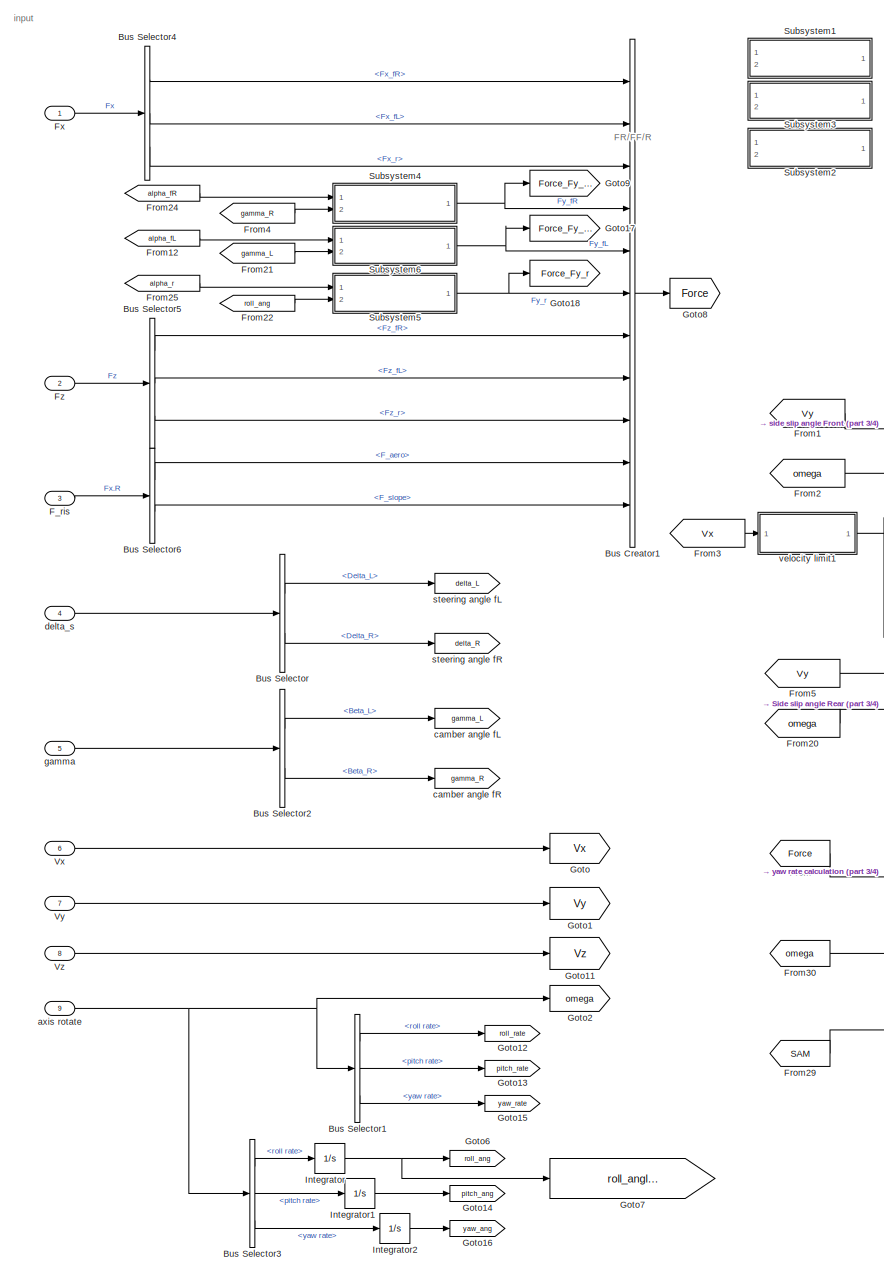
[diagram: Vehicle Model/Tadpole vehicle dynamic/Calculation - part 1/4, left side, full height]
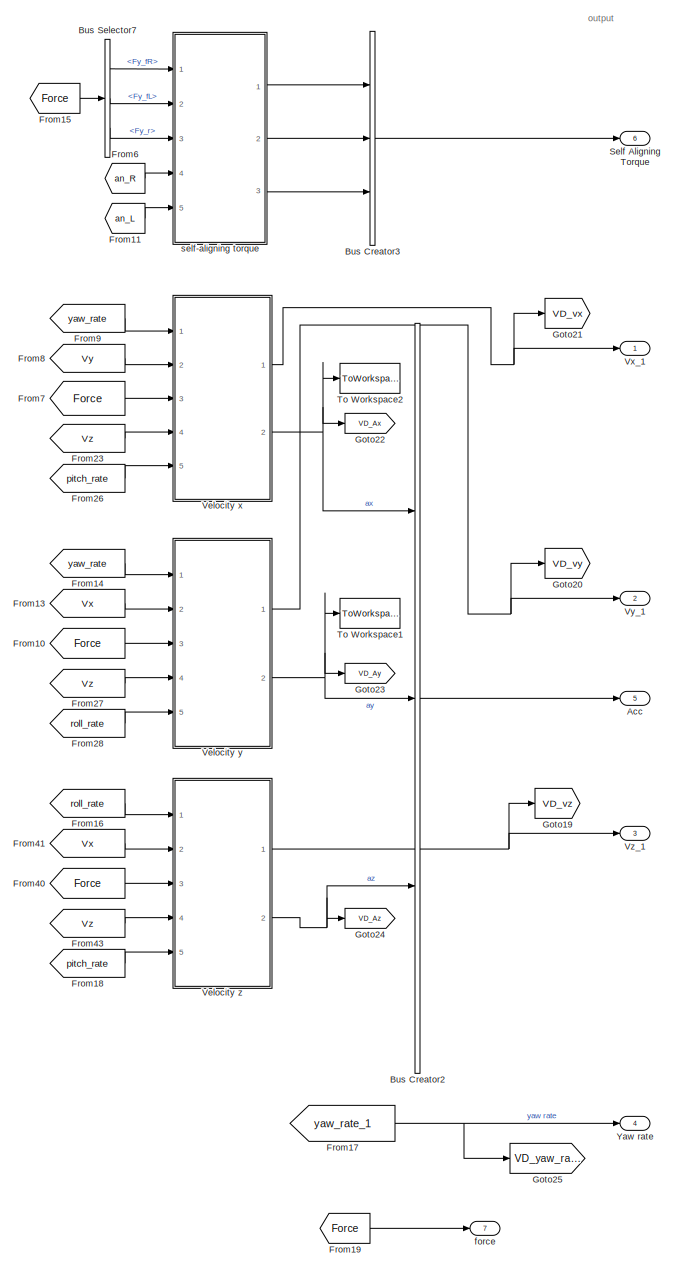
[diagram: Vehicle Model/Tadpole vehicle dynamic/Calculation - part 2/4, right side, full height]
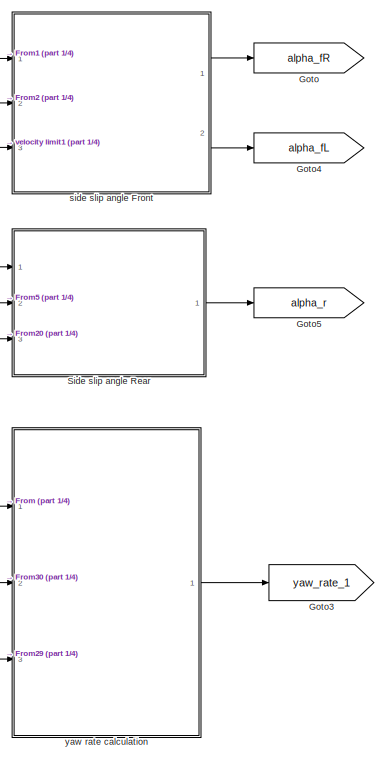
[diagram: Vehicle Model/Tadpole vehicle dynamic/Calculation - part 3/4, central region]
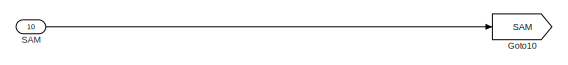
[diagram: Vehicle Model/Tadpole vehicle dynamic/Calculation - part 4/4, bottom left region]
BLOCK [SubSystem] Vehicle Model/Tadpole vehicle dynamic/Calculation
  Ports = [10, 7]
  RequestExecContextInheritance = off
BLOCK [Outport] Vehicle Model/Tadpole vehicle dynamic/Calculation/Acc
  IconDisplay = Port number
  Port = 5
  VectorParamsAs1DForOutWhenUnconnected = off
BLOCK [BusCreator] Vehicle Model/Tadpole vehicle dynamic/Calculation/Bus Creator1
  DisplayOption = bar
  InheritFromInputs = on
  Inputs = 11
  Ports = [11, 1]
BLOCK [BusCreator] Vehicle Model/Tadpole vehicle dynamic/Calculation/Bus Creator2
  DisplayOption = bar
  InheritFromInputs = on
  Inputs = 3
  Ports = [3, 1]
BLOCK [BusCreator] Vehicle Model/Tadpole vehicle dynamic/Calculation/Bus Creator3
  DisplayOption = bar
  InheritFromInputs = on
  Inputs = 3
  Ports = [3, 1]
BLOCK [BusSelector] Vehicle Model/Tadpole vehicle dynamic/Calculation/Bus Selector
  OutputAsBus = off
  OutputSignals = Delta_L,Delta_R
  Ports = [1, 2]
BLOCK [BusSelector] Vehicle Model/Tadpole vehicle dynamic/Calculation/Bus Selector1
  OutputAsBus = off
  OutputSignals = roll rate,pitch rate,yaw rate
  Ports = [1, 3]
BLOCK [BusSelector] Vehicle Model/Tadpole vehicle dynamic/Calculation/Bus Selector2
  OutputAsBus = off
  OutputSignals = Beta_L,Beta_R
  Ports = [1, 2]
BLOCK [BusSelector] Vehicle Model/Tadpole vehicle dynamic/Calculation/Bus Selector3
  OutputAsBus = off
  OutputSignals = roll rate,pitch rate,yaw rate
  Ports = [1, 3]
BLOCK [BusSelector] Vehicle Model/Tadpole vehicle dynamic/Calculation/Bus Selector4
  OutputAsBus = off
  OutputSignals = Fx_fR,Fx_fL,Fx_r
  Ports = [1, 3]
BLOCK [BusSelector] Vehicle Model/Tadpole vehicle dynamic/Calculation/Bus Selector5
  OutputAsBus = off
  OutputSignals = Fz_fR,Fz_fL,Fz_r
  Ports = [1, 3]
BLOCK [BusSelector] Vehicle Model/Tadpole vehicle dynamic/Calculation/Bus Selector6
  OutputAsBus = off
  OutputSignals = F_aero,F_slope
  Ports = [1, 2]
BLOCK [BusSelector] Vehicle Model/Tadpole vehicle dynamic/Calculation/Bus Selector7
  OutputAsBus = off
  OutputSignals = Fy_fR,Fy_fL,Fy_r
  Ports = [1, 3]
BLOCK [Inport] Vehicle Model/Tadpole vehicle dynamic/Calculation/F_ris
  IconDisplay = Port number
  Port = 3
BLOCK [From] Vehicle Model/Tadpole vehicle dynamic/Calculation/From
  GotoTag = Force
BLOCK [From] Vehicle Model/Tadpole vehicle dynamic/Calculation/From1
  GotoTag = Vy
BLOCK [From] Vehicle Model/Tadpole vehicle dynamic/Calculation/From10
  GotoTag = Force
BLOCK [From] Vehicle Model/Tadpole vehicle dynamic/Calculation/From11
  GotoTag = an_L
  TagVisibility = global
BLOCK [From] Vehicle Model/Tadpole vehicle dynamic/Calculation/From12
  GotoTag = alpha_fL
BLOCK [From] Vehicle Model/Tadpole vehicle dynamic/Calculation/From13
  GotoTag = Vx
BLOCK [From] Vehicle Model/Tadpole vehicle dynamic/Calculation/From14
  GotoTag = yaw_rate
BLOCK [From] Vehicle Model/Tadpole vehicle dynamic/Calculation/From15
  GotoTag = Force
BLOCK [From] Vehicle Model/Tadpole vehicle dynamic/Calculation/From16
  GotoTag = roll_rate
BLOCK [From] Vehicle Model/Tadpole vehicle dynamic/Calculation/From17
  GotoTag = yaw_rate_1
BLOCK [From] Vehicle Model/Tadpole vehicle dynamic/Calculation/From18
  GotoTag = pitch_rate
BLOCK [From] Vehicle Model/Tadpole vehicle dynamic/Calculation/From19
  GotoTag = Force
BLOCK [From] Vehicle Model/Tadpole vehicle dynamic/Calculation/From2
  GotoTag = omega
BLOCK [From] Vehicle Model/Tadpole vehicle dynamic/Calculation/From20
  GotoTag = omega
BLOCK [From] Vehicle Model/Tadpole vehicle dynamic/Calculation/From21
  GotoTag = gamma_L
  TagVisibility = global
BLOCK [From] Vehicle Model/Tadpole vehicle dynamic/Calculation/From22
  GotoTag = roll_ang
BLOCK [From] Vehicle Model/Tadpole vehicle dynamic/Calculation/From23
  GotoTag = Vz
BLOCK [From] Vehicle Model/Tadpole vehicle dynamic/Calculation/From24
  GotoTag = alpha_fR
BLOCK [From] Vehicle Model/Tadpole vehicle dynamic/Calculation/From25
  GotoTag = alpha_r
BLOCK [From] Vehicle Model/Tadpole vehicle dynamic/Calculation/From26
  GotoTag = pitch_rate
BLOCK [From] Vehicle Model/Tadpole vehicle dynamic/Calculation/From27
  GotoTag = Vz
BLOCK [From] Vehicle Model/Tadpole vehicle dynamic/Calculation/From28
  GotoTag = roll_rate
BLOCK [From] Vehicle Model/Tadpole vehicle dynamic/Calculation/From29
  GotoTag = SAM
BLOCK [From] Vehicle Model/Tadpole vehicle dynamic/Calculation/From3
  GotoTag = Vx
BLOCK [From] Vehicle Model/Tadpole vehicle dynamic/Calculation/From30
  GotoTag = omega
BLOCK [From] Vehicle Model/Tadpole vehicle dynamic/Calculation/From4
  GotoTag = gamma_R
  TagVisibility = global
BLOCK [From] Vehicle Model/Tadpole vehicle dynamic/Calculation/From40
  GotoTag = Force
BLOCK [From] Vehicle Model/Tadpole vehicle dynamic/Calculation/From41
  GotoTag = Vx
BLOCK [From] Vehicle Model/Tadpole vehicle dynamic/Calculation/From43
  GotoTag = Vz
BLOCK [From] Vehicle Model/Tadpole vehicle dynamic/Calculation/From5
  GotoTag = Vy
BLOCK [From] Vehicle Model/Tadpole vehicle dynamic/Calculation/From6
  GotoTag = an_R
  TagVisibility = global
BLOCK [From] Vehicle Model/Tadpole vehicle dynamic/Calculation/From7
  GotoTag = Force
BLOCK [From] Vehicle Model/Tadpole vehicle dynamic/Calculation/From8
  GotoTag = Vy
BLOCK [From] Vehicle Model/Tadpole vehicle dynamic/Calculation/From9
  GotoTag = yaw_rate
BLOCK [Inport] Vehicle Model/Tadpole vehicle dynamic/Calculation/Fx
  IconDisplay = Port number
BLOCK [Inport] Vehicle Model/Tadpole vehicle dynamic/Calculation/Fz
  IconDisplay = Port number
  Port = 2
BLOCK [Goto] Vehicle Model/Tadpole vehicle dynamic/Calculation/Goto
  GotoTag = alpha_fR
BLOCK [Goto] Vehicle Model/Tadpole vehicle dynamic/Calculation/Goto 
  GotoTag = Vx
BLOCK [Goto] Vehicle Model/Tadpole vehicle dynamic/Calculation/Goto1
  GotoTag = Vy
BLOCK [Goto] Vehicle Model/Tadpole vehicle dynamic/Calculation/Goto10
  GotoTag = SAM
BLOCK [Goto] Vehicle Model/Tadpole vehicle dynamic/Calculation/Goto11
  GotoTag = Vz
BLOCK [Goto] Vehicle Model/Tadpole vehicle dynamic/Calculation/Goto12
  GotoTag = roll_rate
BLOCK [Goto] Vehicle Model/Tadpole vehicle dynamic/Calculation/Goto13
  GotoTag = pitch_rate
BLOCK [Goto] Vehicle Model/Tadpole vehicle dynamic/Calculation/Goto14
  GotoTag = pitch_ang
BLOCK [Goto] Vehicle Model/Tadpole vehicle dynamic/Calculation/Goto15
  GotoTag = yaw_rate
BLOCK [Goto] Vehicle Model/Tadpole vehicle dynamic/Calculation/Goto16
  GotoTag = yaw_ang
BLOCK [Goto] Vehicle Model/Tadpole vehicle dynamic/Calculation/Goto17
  GotoTag = Force_Fy_fL
  TagVisibility = global
BLOCK [Goto] Vehicle Model/Tadpole vehicle dynamic/Calculation/Goto18
  GotoTag = Force_Fy_r
  TagVisibility = global
BLOCK [Goto] Vehicle Model/Tadpole vehicle dynamic/Calculation/Goto19
  GotoTag = VD_vz
  TagVisibility = global
BLOCK [Goto] Vehicle Model/Tadpole vehicle dynamic/Calculation/Goto2
  GotoTag = omega
BLOCK [Goto] Vehicle Model/Tadpole vehicle dynamic/Calculation/Goto20
  GotoTag = VD_vy
  TagVisibility = global
BLOCK [Goto] Vehicle Model/Tadpole vehicle dynamic/Calculation/Goto21
  GotoTag = VD_vx
  TagVisibility = global
BLOCK [Goto] Vehicle Model/Tadpole vehicle dynamic/Calculation/Goto22
  GotoTag = VD_Ax
  TagVisibility = global
BLOCK [Goto] Vehicle Model/Tadpole vehicle dynamic/Calculation/Goto23
  GotoTag = VD_Ay
  TagVisibility = global
BLOCK [Goto] Vehicle Model/Tadpole vehicle dynamic/Calculation/Goto24
  GotoTag = VD_Az
  TagVisibility = global
BLOCK [Goto] Vehicle Model/Tadpole vehicle dynamic/Calculation/Goto25
  GotoTag = VD_yaw_rate
  TagVisibility = global
BLOCK [Goto] Vehicle Model/Tadpole vehicle dynamic/Calculation/Goto3
  GotoTag = yaw_rate_1
BLOCK [Goto] Vehicle Model/Tadpole vehicle dynamic/Calculation/Goto4
  GotoTag = alpha_fL
BLOCK [Goto] Vehicle Model/Tadpole vehicle dynamic/Calculation/Goto5
  GotoTag = alpha_r
BLOCK [Goto] Vehicle Model/Tadpole vehicle dynamic/Calculation/Goto6
  GotoTag = roll_ang
BLOCK [Goto] Vehicle Model/Tadpole vehicle dynamic/Calculation/Goto7
  GotoTag = roll_angle_2
  TagVisibility = global
BLOCK [Goto] Vehicle Model/Tadpole vehicle dynamic/Calculation/Goto8
  GotoTag = Force
BLOCK [Goto] Vehicle Model/Tadpole vehicle dynamic/Calculation/Goto9
  GotoTag = Force_Fy_fR
  TagVisibility = global
BLOCK [Integrator] Vehicle Model/Tadpole vehicle dynamic/Calculation/Integrator
  Ports = [1, 1]
BLOCK [Integrator] Vehicle Model/Tadpole vehicle dynamic/Calculation/Integrator1
  Ports = [1, 1]
BLOCK [Integrator] Vehicle Model/Tadpole vehicle dynamic/Calculation/Integrator2
  Ports = [1, 1]
BLOCK [Inport] Vehicle Model/Tadpole vehicle dynamic/Calculation/SAM
  IconDisplay = Port number
  Port = 10
BLOCK [Outport] Vehicle Model/Tadpole vehicle dynamic/Calculation/Self Aligning Torque
  IconDisplay = Port number
  Port = 6
  VectorParamsAs1DForOutWhenUnconnected = off
BLOCK [SubSystem] Vehicle Model/Tadpole vehicle dynamic/Calculation/Side slip angle Rear
  Ports = [3, 1]
  RequestExecContextInheritance = off
BLOCK [Sum] Vehicle Model/Tadpole vehicle dynamic/Calculation/Side slip angle Rear/Add
  InputSameDT = off
  Inputs = +-
  OutDataTypeStr = Inherit: Inherit via internal rule
  Ports = [2, 1]
  SaturateOnIntegerOverflow = off
BLOCK [Trigonometry] Vehicle Model/Tadpole vehicle dynamic/Calculation/Side slip angle Rear/Atan1
  Operator = atan
  Ports = [1, 1]
BLOCK [BusSelector] Vehicle Model/Tadpole vehicle dynamic/Calculation/Side slip angle Rear/Bus Selector
  OutputAsBus = off
  OutputSignals = yaw rate
  Ports = [1, 1]
BLOCK [Constant] Vehicle Model/Tadpole vehicle dynamic/Calculation/Side slip angle Rear/Constant
BLOCK [Constant] Vehicle Model/Tadpole vehicle dynamic/Calculation/Side slip angle Rear/Constant1
BLOCK [Constant] Vehicle Model/Tadpole vehicle dynamic/Calculation/Side slip angle Rear/Constant4
  Value = 0
BLOCK [Constant] Vehicle Model/Tadpole vehicle dynamic/Calculation/Side slip angle Rear/Constant7
  Value = l_2
BLOCK [Product] Vehicle Model/Tadpole vehicle dynamic/Calculation/Side slip angle Rear/Divide4
  InputSameDT = off
  Inputs = */
  OutDataTypeStr = Inherit: Inherit via internal rule
  Ports = [2, 1]
  RndMeth = Floor
  SaturateOnIntegerOverflow = off
BLOCK [From] Vehicle Model/Tadpole vehicle dynamic/Calculation/Side slip angle Rear/From
  GotoTag = yaw_rate
BLOCK [Goto] Vehicle Model/Tadpole vehicle dynamic/Calculation/Side slip angle Rear/Goto
  GotoTag = VD_Vy_r
  TagVisibility = global
BLOCK [Goto] Vehicle Model/Tadpole vehicle dynamic/Calculation/Side slip angle Rear/Goto1
  GotoTag = yaw_rate
BLOCK [Goto] Vehicle Model/Tadpole vehicle dynamic/Calculation/Side slip angle Rear/Goto3
  GotoTag = VD_alpha_r
  TagVisibility = global
BLOCK [Sum] Vehicle Model/Tadpole vehicle dynamic/Calculation/Side slip angle Rear/Minus1
  InputSameDT = off
  Inputs = +-
  OutDataTypeStr = Inherit: Inherit via internal rule
  Ports = [2, 1]
  SaturateOnIntegerOverflow = off
BLOCK [Product] Vehicle Model/Tadpole vehicle dynamic/Calculation/Side slip angle Rear/Multiply1
  InputSameDT = off
  OutDataTypeStr = Inherit: Inherit via internal rule
  Ports = [2, 1]
  RndMeth = Floor
  SaturateOnIntegerOverflow = off
BLOCK [Product] Vehicle Model/Tadpole vehicle dynamic/Calculation/Side slip angle Rear/Product
  InputSameDT = off
  OutDataTypeStr = Inherit: Inherit via internal rule
  Ports = [2, 1]
  RndMeth = Floor
  SaturateOnIntegerOverflow = off
BLOCK [Reference] Vehicle Model/Tadpole vehicle dynamic/Calculation/Side slip angle Rear/Radians to Degrees1  REF=simulink_extras/Transformations/Radians
to Degrees
  Ports = [1, 1]
  SourceBlock = simulink_extras/Transformations/Radians\nto Degrees
  SourceProductBaseCode = SL
  SourceProductName = Simulink
  SourceType = RadiansToDegrees
BLOCK [Switch] Vehicle Model/Tadpole vehicle dynamic/Calculation/Side slip angle Rear/Switch
  Criteria = u2 ~= 0
  InputSameDT = off
  SaturateOnIntegerOverflow = off
BLOCK [Switch] Vehicle Model/Tadpole vehicle dynamic/Calculation/Side slip angle Rear/Switch1
  Criteria = u2 ~= 0
  InputSameDT = off
  SaturateOnIntegerOverflow = off
BLOCK [Inport] Vehicle Model/Tadpole vehicle dynamic/Calculation/Side slip angle Rear/Vx
  IconDisplay = Port number
BLOCK [Inport] Vehicle Model/Tadpole vehicle dynamic/Calculation/Side slip angle Rear/Vy
  IconDisplay = Port number
  Port = 2
BLOCK [Outport] Vehicle Model/Tadpole vehicle dynamic/Calculation/Side slip angle Rear/alpha_r
  IconDisplay = Port number
  VectorParamsAs1DForOutWhenUnconnected = off
BLOCK [Constant] Vehicle Model/Tadpole vehicle dynamic/Calculation/Side slip angle Rear/delta_rear
  Value = 0
BLOCK [Inport] Vehicle Model/Tadpole vehicle dynamic/Calculation/Side slip angle Rear/omega
  IconDisplay = Port number
  Port = 3
BLOCK [SubSystem] Vehicle Model/Tadpole vehicle dynamic/Calculation/Side slip angle Rear/velocity limit1
  Ports = [1, 1]
  RequestExecContextInheritance = off
BLOCK [SubSystem] Vehicle Model/Tadpole vehicle dynamic/Calculation/Side slip angle Rear/velocity limit1/If Action Subsystem2
  Ports = [1, 1, 0, 0, 0, 0, 0, 1]
  RequestExecContextInheritance = off
  TreatAsAtomicUnit = on
BLOCK [ActionPort] Vehicle Model/Tadpole vehicle dynamic/Calculation/Side slip angle Rear/velocity limit1/If Action Subsystem2/Action Port
  ActionPortLabel = if(u1>0 )
BLOCK [Constant] Vehicle Model/Tadpole vehicle dynamic/Calculation/Side slip angle Rear/velocity limit1/If Action Subsystem2/Constant
  Value = 0
BLOCK [If] Vehicle Model/Tadpole vehicle dynamic/Calculation/Side slip angle Rear/velocity limit1/If Action Subsystem2/If
  IfExpression = 0.0005>u1
  Ports = [1, 2]
BLOCK [SubSystem] Vehicle Model/Tadpole vehicle dynamic/Calculation/Side slip angle Rear/velocity limit1/If Action Subsystem2/If Action Subsystem
  Ports = [1, 1, 0, 0, 0, 0, 0, 1]
  RequestExecContextInheritance = off
  TreatAsAtomicUnit = on
BLOCK [ActionPort] Vehicle Model/Tadpole vehicle dynamic/Calculation/Side slip angle Rear/velocity limit1/If Action Subsystem2/If Action Subsystem/Action Port
  ActionPortLabel = if(0.0005>u1 )
BLOCK [Inport] Vehicle Model/Tadpole vehicle dynamic/Calculation/Side slip angle Rear/velocity limit1/If Action Subsystem2/If Action Subsystem/In1
  IconDisplay = Port number
BLOCK [Outport] Vehicle Model/Tadpole vehicle dynamic/Calculation/Side slip angle Rear/velocity limit1/If Action Subsystem2/If Action Subsystem/Out1
  IconDisplay = Port number
  VectorParamsAs1DForOutWhenUnconnected = off
BLOCK [SubSystem] Vehicle Model/Tadpole vehicle dynamic/Calculation/Side slip angle Rear/velocity limit1/If Action Subsystem2/If Action Subsystem1
  Ports = [1, 1, 0, 0, 0, 0, 0, 1]
  RequestExecContextInheritance = off
  TreatAsAtomicUnit = on
BLOCK [ActionPort] Vehicle Model/Tadpole vehicle dynamic/Calculation/Side slip angle Rear/velocity limit1/If Action Subsystem2/If Action Subsystem1/Action Port
  ActionPortLabel = else
BLOCK [Inport] Vehicle Model/Tadpole vehicle dynamic/Calculation/Side slip angle Rear/velocity limit1/If Action Subsystem2/If Action Subsystem1/In1
  IconDisplay = Port number
BLOCK [Outport] Vehicle Model/Tadpole vehicle dynamic/Calculation/Side slip angle Rear/velocity limit1/If Action Subsystem2/If Action Subsystem1/Out1
  IconDisplay = Port number
  VectorParamsAs1DForOutWhenUnconnected = off
BLOCK [Inport] Vehicle Model/Tadpole vehicle dynamic/Calculation/Side slip angle Rear/velocity limit1/If Action Subsystem2/In1
  IconDisplay = Port number
BLOCK [Merge] Vehicle Model/Tadpole vehicle dynamic/Calculation/Side slip angle Rear/velocity limit1/If Action Subsystem2/Merge
  Ports = [2, 1]
BLOCK [Outport] Vehicle Model/Tadpole vehicle dynamic/Calculation/Side slip angle Rear/velocity limit1/If Action Subsystem2/Out1
  IconDisplay = Port number
  VectorParamsAs1DForOutWhenUnconnected = off
BLOCK [SubSystem] Vehicle Model/Tadpole vehicle dynamic/Calculation/Side slip angle Rear/velocity limit1/If Action Subsystem3
  Ports = [1, 1, 0, 0, 0, 0, 0, 1]
  RequestExecContextInheritance = off
  TreatAsAtomicUnit = on
BLOCK [ActionPort] Vehicle Model/Tadpole vehicle dynamic/Calculation/Side slip angle Rear/velocity limit1/If Action Subsystem3/Action Port
  ActionPortLabel = else
BLOCK [Constant] Vehicle Model/Tadpole vehicle dynamic/Calculation/Side slip angle Rear/velocity limit1/If Action Subsystem3/Constant
  Value = 0
BLOCK [If] Vehicle Model/Tadpole vehicle dynamic/Calculation/Side slip angle Rear/velocity limit1/If Action Subsystem3/If
  IfExpression = -0.0005<u1
  Ports = [1, 2]
BLOCK [SubSystem] Vehicle Model/Tadpole vehicle dynamic/Calculation/Side slip angle Rear/velocity limit1/If Action Subsystem3/If Action Subsystem
  Ports = [1, 1, 0, 0, 0, 0, 0, 1]
  RequestExecContextInheritance = off
  TreatAsAtomicUnit = on
BLOCK [ActionPort] Vehicle Model/Tadpole vehicle dynamic/Calculation/Side slip angle Rear/velocity limit1/If Action Subsystem3/If Action Subsystem/Action Port
  ActionPortLabel = if(-0.0005<u1 )
BLOCK [Inport] Vehicle Model/Tadpole vehicle dynamic/Calculation/Side slip angle Rear/velocity limit1/If Action Subsystem3/If Action Subsystem/In1
  IconDisplay = Port number
BLOCK [Outport] Vehicle Model/Tadpole vehicle dynamic/Calculation/Side slip angle Rear/velocity limit1/If Action Subsystem3/If Action Subsystem/Out1
  IconDisplay = Port number
  VectorParamsAs1DForOutWhenUnconnected = off
BLOCK [SubSystem] Vehicle Model/Tadpole vehicle dynamic/Calculation/Side slip angle Rear/velocity limit1/If Action Subsystem3/If Action Subsystem1
  Ports = [1, 1, 0, 0, 0, 0, 0, 1]
  RequestExecContextInheritance = off
  TreatAsAtomicUnit = on
BLOCK [ActionPort] Vehicle Model/Tadpole vehicle dynamic/Calculation/Side slip angle Rear/velocity limit1/If Action Subsystem3/If Action Subsystem1/Action Port
  ActionPortLabel = else
BLOCK [Inport] Vehicle Model/Tadpole vehicle dynamic/Calculation/Side slip angle Rear/velocity limit1/If Action Subsystem3/If Action Subsystem1/In1
  IconDisplay = Port number
BLOCK [Outport] Vehicle Model/Tadpole vehicle dynamic/Calculation/Side slip angle Rear/velocity limit1/If Action Subsystem3/If Action Subsystem1/Out1
  IconDisplay = Port number
  VectorParamsAs1DForOutWhenUnconnected = off
BLOCK [Inport] Vehicle Model/Tadpole vehicle dynamic/Calculation/Side slip angle Rear/velocity limit1/If Action Subsystem3/In1
  IconDisplay = Port number
BLOCK [Merge] Vehicle Model/Tadpole vehicle dynamic/Calculation/Side slip angle Rear/velocity limit1/If Action Subsystem3/Merge
  Ports = [2, 1]
BLOCK [Outport] Vehicle Model/Tadpole vehicle dynamic/Calculation/Side slip angle Rear/velocity limit1/If Action Subsystem3/Out1
  IconDisplay = Port number
  VectorParamsAs1DForOutWhenUnconnected = off
BLOCK [If] Vehicle Model/Tadpole vehicle dynamic/Calculation/Side slip angle Rear/velocity limit1/If1
  IfExpression = u1>0
  Ports = [1, 2]
BLOCK [Merge] Vehicle Model/Tadpole vehicle dynamic/Calculation/Side slip angle Rear/velocity limit1/Merge
  Ports = [2, 1]
BLOCK [Inport] Vehicle Model/Tadpole vehicle dynamic/Calculation/Side slip angle Rear/velocity limit1/velocity 
  IconDisplay = Port number
BLOCK [Outport] Vehicle Model/Tadpole vehicle dynamic/Calculation/Side slip angle Rear/velocity limit1/velocity_limit 
  IconDisplay = Port number
  VectorParamsAs1DForOutWhenUnconnected = off
BLOCK [SubSystem] Vehicle Model/Tadpole vehicle dynamic/Calculation/Subsystem1
  Commented = on
  Ports = [2, 1]
  RequestExecContextInheritance = off
BLOCK [Sum] Vehicle Model/Tadpole vehicle dynamic/Calculation/Subsystem1/Add
  InputSameDT = off
  OutDataTypeStr = Inherit: Inherit via internal rule
  Ports = [2, 1]
  SaturateOnIntegerOverflow = off
BLOCK [BusSelector] Vehicle Model/Tadpole vehicle dynamic/Calculation/Subsystem1/Bus Selector
  OutputAsBus = off
  OutputSignals = signal1
  Ports = [1, 1]
BLOCK [From] Vehicle Model/Tadpole vehicle dynamic/Calculation/Subsystem1/From2
  GotoTag = V
  TagVisibility = global
BLOCK [Outport] Vehicle Model/Tadpole vehicle dynamic/Calculation/Subsystem1/Fy.FR
  IconDisplay = Port number
  VectorParamsAs1DForOutWhenUnconnected = off
BLOCK [Gain] Vehicle Model/Tadpole vehicle dynamic/Calculation/Subsystem1/Gain
  Gain = C_alpha
  OutDataTypeStr = Inherit: Inherit via internal rule
  ParamDataTypeStr = Inherit: Inherit via internal rule
  SaturateOnIntegerOverflow = off
BLOCK [Gain] Vehicle Model/Tadpole vehicle dynamic/Calculation/Subsystem1/Gain1
  Gain = C_beta
  OutDataTypeStr = Inherit: Inherit via internal rule
  ParamDataTypeStr = Inherit: Inherit via internal rule
  SaturateOnIntegerOverflow = off
BLOCK [Goto] Vehicle Model/Tadpole vehicle dynamic/Calculation/Subsystem1/Goto
  GotoTag = Force_Fy_fR_sideslip
  TagVisibility = global
BLOCK [Goto] Vehicle Model/Tadpole vehicle dynamic/Calculation/Subsystem1/Goto1
  GotoTag = Force_Fy_fR_camber
  TagVisibility = global
BLOCK [Product] Vehicle Model/Tadpole vehicle dynamic/Calculation/Subsystem1/Product
  InputSameDT = off
  OutDataTypeStr = Inherit: Inherit via internal rule
  Ports = [2, 1]
  RndMeth = Floor
  SaturateOnIntegerOverflow = off
BLOCK [Signum] Vehicle Model/Tadpole vehicle dynamic/Calculation/Subsystem1/Sign
BLOCK [SubSystem] Vehicle Model/Tadpole vehicle dynamic/Calculation/Subsystem1/Subsystem
  Ports = [1, 1]
  RequestExecContextInheritance = off
BLOCK [From] Vehicle Model/Tadpole vehicle dynamic/Calculation/Subsystem1/Subsystem/From8
  GotoTag = Force_Fz_fR
  TagVisibility = global
BLOCK [Inport] Vehicle Model/Tadpole vehicle dynamic/Calculation/Subsystem1/Subsystem/Fy_fR
  IconDisplay = Port number
BLOCK [Outport] Vehicle Model/Tadpole vehicle dynamic/Calculation/Subsystem1/Subsystem/Lateral force fR
  IconDisplay = Port number
  VectorParamsAs1DForOutWhenUnconnected = off
BLOCK [SubSystem] Vehicle Model/Tadpole vehicle dynamic/Calculation/Subsystem1/Subsystem/linear slip cal fR 
  Ports = [2, 1]
  RequestExecContextInheritance = off
BLOCK [Inport] Vehicle Model/Tadpole vehicle dynamic/Calculation/Subsystem1/Subsystem/linear slip cal fR /Lateral Force
  IconDisplay = Port number
BLOCK [Outport] Vehicle Model/Tadpole vehicle dynamic/Calculation/Subsystem1/Subsystem/linear slip cal fR /Lateral force
  IconDisplay = Port number
  VectorParamsAs1DForOutWhenUnconnected = off
BLOCK [MinMax] Vehicle Model/Tadpole vehicle dynamic/Calculation/Subsystem1/Subsystem/linear slip cal fR /MinMax
  InputSameDT = off
  Inputs = 2
  Ports = [2, 1]
  SaturateOnIntegerOverflow = off
BLOCK [Inport] Vehicle Model/Tadpole vehicle dynamic/Calculation/Subsystem1/Subsystem/linear slip cal fR /Normal Force
  IconDisplay = Port number
  Port = 2
BLOCK [Product] Vehicle Model/Tadpole vehicle dynamic/Calculation/Subsystem1/Subsystem/linear slip cal fR /Product
  InputSameDT = off
  OutDataTypeStr = Inherit: Inherit via internal rule
  Ports = [2, 1]
  RndMeth = Floor
  SaturateOnIntegerOverflow = off
BLOCK [Sum] Vehicle Model/Tadpole vehicle dynamic/Calculation/Subsystem1/Subsystem/linear slip cal fR /Subtract
  InputSameDT = off
  Inputs = +-
  OutDataTypeStr = Inherit: Inherit via internal rule
  Ports = [2, 1]
  SaturateOnIntegerOverflow = off
BLOCK [Switch] Vehicle Model/Tadpole vehicle dynamic/Calculation/Subsystem1/Subsystem/linear slip cal fR /Switch
  Criteria = u2 > Threshold
  InputSameDT = off
  SaturateOnIntegerOverflow = off
BLOCK [Constant] Vehicle Model/Tadpole vehicle dynamic/Calculation/Subsystem1/Subsystem/linear slip cal fR /max. lat. friction coefficient
  Value = mu_lp
BLOCK [SubSystem] Vehicle Model/Tadpole vehicle dynamic/Calculation/Subsystem1/Subsystem/linear slip cal fR /slip recgonition
  Ports = [2]
  RequestExecContextInheritance = off
BLOCK [Constant] Vehicle Model/Tadpole vehicle dynamic/Calculation/Subsystem1/Subsystem/linear slip cal fR /slip recgonition/Constant
BLOCK [Constant] Vehicle Model/Tadpole vehicle dynamic/Calculation/Subsystem1/Subsystem/linear slip cal fR /slip recgonition/Constant1
  Value = -1
BLOCK [Goto] Vehicle Model/Tadpole vehicle dynamic/Calculation/Subsystem1/Subsystem/linear slip cal fR /slip recgonition/Goto
  GotoTag = Force_lateral_slip_reg_fR
  TagVisibility = global
BLOCK [If] Vehicle Model/Tadpole vehicle dynamic/Calculation/Subsystem1/Subsystem/linear slip cal fR /slip recgonition/If
  IfExpression = u1~=0
  Ports = [1, 2]
BLOCK [SubSystem] Vehicle Model/Tadpole vehicle dynamic/Calculation/Subsystem1/Subsystem/linear slip cal fR /slip recgonition/If Action Subsystem
  Ports = [1, 1, 0, 0, 0, 0, 0, 1]
  RequestExecContextInheritance = off
  TreatAsAtomicUnit = on
BLOCK [ActionPort] Vehicle Model/Tadpole vehicle dynamic/Calculation/Subsystem1/Subsystem/linear slip cal fR /slip recgonition/If Action Subsystem/Action Port
BLOCK [Inport] Vehicle Model/Tadpole vehicle dynamic/Calculation/Subsystem1/Subsystem/linear slip cal fR /slip recgonition/If Action Subsystem/In1
  IconDisplay = Port number
BLOCK [Outport] Vehicle Model/Tadpole vehicle dynamic/Calculation/Subsystem1/Subsystem/linear slip cal fR /slip recgonition/If Action Subsystem/Out1
  IconDisplay = Port number
  VectorParamsAs1DForOutWhenUnconnected = off
BLOCK [SubSystem] Vehicle Model/Tadpole vehicle dynamic/Calculation/Subsystem1/Subsystem/linear slip cal fR /slip recgonition/If Action Subsystem1
  Ports = [1, 1, 0, 0, 0, 0, 0, 1]
  RequestExecContextInheritance = off
  TreatAsAtomicUnit = on
BLOCK [ActionPort] Vehicle Model/Tadpole vehicle dynamic/Calculation/Subsystem1/Subsystem/linear slip cal fR /slip recgonition/If Action Subsystem1/Action Port
BLOCK [Inport] Vehicle Model/Tadpole vehicle dynamic/Calculation/Subsystem1/Subsystem/linear slip cal fR /slip recgonition/If Action Subsystem1/In1
  IconDisplay = Port number
BLOCK [Outport] Vehicle Model/Tadpole vehicle dynamic/Calculation/Subsystem1/Subsystem/linear slip cal fR /slip recgonition/If Action Subsystem1/Out1
  IconDisplay = Port number
  VectorParamsAs1DForOutWhenUnconnected = off
BLOCK [Inport] Vehicle Model/Tadpole vehicle dynamic/Calculation/Subsystem1/Subsystem/linear slip cal fR /slip recgonition/In2
  IconDisplay = Port number
BLOCK [Inport] Vehicle Model/Tadpole vehicle dynamic/Calculation/Subsystem1/Subsystem/linear slip cal fR /slip recgonition/In3
  IconDisplay = Port number
  Port = 2
BLOCK [Merge] Vehicle Model/Tadpole vehicle dynamic/Calculation/Subsystem1/Subsystem/linear slip cal fR /slip recgonition/Merge
  Ports = [2, 1]
BLOCK [Sum] Vehicle Model/Tadpole vehicle dynamic/Calculation/Subsystem1/Subsystem/linear slip cal fR /slip recgonition/Subtract
  InputSameDT = off
  Inputs = +-
  OutDataTypeStr = Inherit: Inherit via internal rule
  Ports = [2, 1]
  SaturateOnIntegerOverflow = off
BLOCK [Inport] Vehicle Model/Tadpole vehicle dynamic/Calculation/Subsystem1/alpha_fR
  IconDisplay = Port number
BLOCK [Inport] Vehicle Model/Tadpole vehicle dynamic/Calculation/Subsystem1/beta_fR
  IconDisplay = Port number
  Port = 2
BLOCK [SubSystem] Vehicle Model/Tadpole vehicle dynamic/Calculation/Subsystem1/velocity limit
  Ports = [1, 1]
  RequestExecContextInheritance = off
BLOCK [SubSystem] Vehicle Model/Tadpole vehicle dynamic/Calculation/Subsystem1/velocity limit/If Action Subsystem2
  Ports = [1, 1, 0, 0, 0, 0, 0, 1]
  RequestExecContextInheritance = off
  TreatAsAtomicUnit = on
BLOCK [ActionPort] Vehicle Model/Tadpole vehicle dynamic/Calculation/Subsystem1/velocity limit/If Action Subsystem2/Action Port
BLOCK [Constant] Vehicle Model/Tadpole vehicle dynamic/Calculation/Subsystem1/velocity limit/If Action Subsystem2/Constant
  Value = 0
BLOCK [If] Vehicle Model/Tadpole vehicle dynamic/Calculation/Subsystem1/velocity limit/If Action Subsystem2/If
  IfExpression = 0.005>u1
  Ports = [1, 2]
BLOCK [SubSystem] Vehicle Model/Tadpole vehicle dynamic/Calculation/Subsystem1/velocity limit/If Action Subsystem2/If Action Subsystem
  Ports = [1, 1, 0, 0, 0, 0, 0, 1]
  RequestExecContextInheritance = off
  TreatAsAtomicUnit = on
BLOCK [ActionPort] Vehicle Model/Tadpole vehicle dynamic/Calculation/Subsystem1/velocity limit/If Action Subsystem2/If Action Subsystem/Action Port
BLOCK [Inport] Vehicle Model/Tadpole vehicle dynamic/Calculation/Subsystem1/velocity limit/If Action Subsystem2/If Action Subsystem/In1
  IconDisplay = Port number
BLOCK [Outport] Vehicle Model/Tadpole vehicle dynamic/Calculation/Subsystem1/velocity limit/If Action Subsystem2/If Action Subsystem/Out1
  IconDisplay = Port number
  VectorParamsAs1DForOutWhenUnconnected = off
BLOCK [SubSystem] Vehicle Model/Tadpole vehicle dynamic/Calculation/Subsystem1/velocity limit/If Action Subsystem2/If Action Subsystem1
  Ports = [1, 1, 0, 0, 0, 0, 0, 1]
  RequestExecContextInheritance = off
  TreatAsAtomicUnit = on
BLOCK [ActionPort] Vehicle Model/Tadpole vehicle dynamic/Calculation/Subsystem1/velocity limit/If Action Subsystem2/If Action Subsystem1/Action Port
BLOCK [Inport] Vehicle Model/Tadpole vehicle dynamic/Calculation/Subsystem1/velocity limit/If Action Subsystem2/If Action Subsystem1/In1
  IconDisplay = Port number
BLOCK [Outport] Vehicle Model/Tadpole vehicle dynamic/Calculation/Subsystem1/velocity limit/If Action Subsystem2/If Action Subsystem1/Out1
  IconDisplay = Port number
  VectorParamsAs1DForOutWhenUnconnected = off
BLOCK [Inport] Vehicle Model/Tadpole vehicle dynamic/Calculation/Subsystem1/velocity limit/If Action Subsystem2/In1
  IconDisplay = Port number
BLOCK [Merge] Vehicle Model/Tadpole vehicle dynamic/Calculation/Subsystem1/velocity limit/If Action Subsystem2/Merge
  Ports = [2, 1]
BLOCK [Outport] Vehicle Model/Tadpole vehicle dynamic/Calculation/Subsystem1/velocity limit/If Action Subsystem2/Out1
  IconDisplay = Port number
  VectorParamsAs1DForOutWhenUnconnected = off
BLOCK [SubSystem] Vehicle Model/Tadpole vehicle dynamic/Calculation/Subsystem1/velocity limit/If Action Subsystem3
  Ports = [1, 1, 0, 0, 0, 0, 0, 1]
  RequestExecContextInheritance = off
  TreatAsAtomicUnit = on
BLOCK [ActionPort] Vehicle Model/Tadpole vehicle dynamic/Calculation/Subsystem1/velocity limit/If Action Subsystem3/Action Port
BLOCK [Constant] Vehicle Model/Tadpole vehicle dynamic/Calculation/Subsystem1/velocity limit/If Action Subsystem3/Constant
  Value = 0
BLOCK [If] Vehicle Model/Tadpole vehicle dynamic/Calculation/Subsystem1/velocity limit/If Action Subsystem3/If
  IfExpression = -0.005<u1
  Ports = [1, 2]
BLOCK [SubSystem] Vehicle Model/Tadpole vehicle dynamic/Calculation/Subsystem1/velocity limit/If Action Subsystem3/If Action Subsystem
  Ports = [1, 1, 0, 0, 0, 0, 0, 1]
  RequestExecContextInheritance = off
  TreatAsAtomicUnit = on
BLOCK [ActionPort] Vehicle Model/Tadpole vehicle dynamic/Calculation/Subsystem1/velocity limit/If Action Subsystem3/If Action Subsystem/Action Port
BLOCK [Inport] Vehicle Model/Tadpole vehicle dynamic/Calculation/Subsystem1/velocity limit/If Action Subsystem3/If Action Subsystem/In1
  IconDisplay = Port number
BLOCK [Outport] Vehicle Model/Tadpole vehicle dynamic/Calculation/Subsystem1/velocity limit/If Action Subsystem3/If Action Subsystem/Out1
  IconDisplay = Port number
  VectorParamsAs1DForOutWhenUnconnected = off
BLOCK [SubSystem] Vehicle Model/Tadpole vehicle dynamic/Calculation/Subsystem1/velocity limit/If Action Subsystem3/If Action Subsystem1
  Ports = [1, 1, 0, 0, 0, 0, 0, 1]
  RequestExecContextInheritance = off
  TreatAsAtomicUnit = on
BLOCK [ActionPort] Vehicle Model/Tadpole vehicle dynamic/Calculation/Subsystem1/velocity limit/If Action Subsystem3/If Action Subsystem1/Action Port
BLOCK [Inport] Vehicle Model/Tadpole vehicle dynamic/Calculation/Subsystem1/velocity limit/If Action Subsystem3/If Action Subsystem1/In1
  IconDisplay = Port number
BLOCK [Outport] Vehicle Model/Tadpole vehicle dynamic/Calculation/Subsystem1/velocity limit/If Action Subsystem3/If Action Subsystem1/Out1
  IconDisplay = Port number
  VectorParamsAs1DForOutWhenUnconnected = off
BLOCK [Inport] Vehicle Model/Tadpole vehicle dynamic/Calculation/Subsystem1/velocity limit/If Action Subsystem3/In1
  IconDisplay = Port number
BLOCK [Merge] Vehicle Model/Tadpole vehicle dynamic/Calculation/Subsystem1/velocity limit/If Action Subsystem3/Merge
  Ports = [2, 1]
BLOCK [Outport] Vehicle Model/Tadpole vehicle dynamic/Calculation/Subsystem1/velocity limit/If Action Subsystem3/Out1
  IconDisplay = Port number
  VectorParamsAs1DForOutWhenUnconnected = off
BLOCK [If] Vehicle Model/Tadpole vehicle dynamic/Calculation/Subsystem1/velocity limit/If1
  IfExpression = u1>0
  Ports = [1, 2]
BLOCK [Merge] Vehicle Model/Tadpole vehicle dynamic/Calculation/Subsystem1/velocity limit/Merge
  Ports = [2, 1]
BLOCK [Inport] Vehicle Model/Tadpole vehicle dynamic/Calculation/Subsystem1/velocity limit/velocity 
  IconDisplay = Port number
BLOCK [Outport] Vehicle Model/Tadpole vehicle dynamic/Calculation/Subsystem1/velocity limit/velocity_limit 
  IconDisplay = Port number
  VectorParamsAs1DForOutWhenUnconnected = off
BLOCK [SubSystem] Vehicle Model/Tadpole vehicle dynamic/Calculation/Subsystem2
  Commented = on
  Ports = [2, 1]
  RequestExecContextInheritance = off
BLOCK [Sum] Vehicle Model/Tadpole vehicle dynamic/Calculation/Subsystem2/Add
  InputSameDT = off
  OutDataTypeStr = Inherit: Inherit via internal rule
  Ports = [2, 1]
  SaturateOnIntegerOverflow = off
BLOCK [BusSelector] Vehicle Model/Tadpole vehicle dynamic/Calculation/Subsystem2/Bus Selector
  OutputAsBus = off
  OutputSignals = signal1
  Ports = [1, 1]
BLOCK [Delay] Vehicle Model/Tadpole vehicle dynamic/Calculation/Subsystem2/Delay
  DelayLength = 1
  InputPortMap = u0
  Ports = [1, 1]
  SampleTime = 0.001
BLOCK [From] Vehicle Model/Tadpole vehicle dynamic/Calculation/Subsystem2/From2
  GotoTag = V
  TagVisibility = global
BLOCK [Outport] Vehicle Model/Tadpole vehicle dynamic/Calculation/Subsystem2/Fy.r
  IconDisplay = Port number
  VectorParamsAs1DForOutWhenUnconnected = off
BLOCK [Gain] Vehicle Model/Tadpole vehicle dynamic/Calculation/Subsystem2/Gain2
  Gain = C_alpha
  OutDataTypeStr = Inherit: Inherit via internal rule
  ParamDataTypeStr = Inherit: Inherit via internal rule
  SaturateOnIntegerOverflow = off
BLOCK [Gain] Vehicle Model/Tadpole vehicle dynamic/Calculation/Subsystem2/Gain3
  Gain = C_beta
  OutDataTypeStr = Inherit: Inherit via internal rule
  ParamDataTypeStr = Inherit: Inherit via internal rule
  SaturateOnIntegerOverflow = off
BLOCK [Goto] Vehicle Model/Tadpole vehicle dynamic/Calculation/Subsystem2/Goto
  GotoTag = Force_Fy_r_sideslip
  TagVisibility = global
BLOCK [Goto] Vehicle Model/Tadpole vehicle dynamic/Calculation/Subsystem2/Goto1
  GotoTag = Force_Fy_r_camber
  TagVisibility = global
BLOCK [Product] Vehicle Model/Tadpole vehicle dynamic/Calculation/Subsystem2/Product
  InputSameDT = off
  OutDataTypeStr = Inherit: Inherit via internal rule
  Ports = [2, 1]
  RndMeth = Floor
  SaturateOnIntegerOverflow = off
BLOCK [Signum] Vehicle Model/Tadpole vehicle dynamic/Calculation/Subsystem2/Sign
BLOCK [SubSystem] Vehicle Model/Tadpole vehicle dynamic/Calculation/Subsystem2/Subsystem
  Ports = [1, 1]
  RequestExecContextInheritance = off
BLOCK [From] Vehicle Model/Tadpole vehicle dynamic/Calculation/Subsystem2/Subsystem/From8
  GotoTag = Force_Fz_r
  TagVisibility = global
BLOCK [Inport] Vehicle Model/Tadpole vehicle dynamic/Calculation/Subsystem2/Subsystem/Fy_fL
  IconDisplay = Port number
BLOCK [Outport] Vehicle Model/Tadpole vehicle dynamic/Calculation/Subsystem2/Subsystem/Lateral Force r
  IconDisplay = Port number
  VectorParamsAs1DForOutWhenUnconnected = off
BLOCK [SubSystem] Vehicle Model/Tadpole vehicle dynamic/Calculation/Subsystem2/Subsystem/linear slip cal r 
  Ports = [2, 1]
  RequestExecContextInheritance = off
BLOCK [Inport] Vehicle Model/Tadpole vehicle dynamic/Calculation/Subsystem2/Subsystem/linear slip cal r /Lateral Force
  IconDisplay = Port number
BLOCK [Outport] Vehicle Model/Tadpole vehicle dynamic/Calculation/Subsystem2/Subsystem/linear slip cal r /Lateral force
  IconDisplay = Port number
  VectorParamsAs1DForOutWhenUnconnected = off
BLOCK [MinMax] Vehicle Model/Tadpole vehicle dynamic/Calculation/Subsystem2/Subsystem/linear slip cal r /MinMax
  InputSameDT = off
  Inputs = 2
  Ports = [2, 1]
  SaturateOnIntegerOverflow = off
BLOCK [Inport] Vehicle Model/Tadpole vehicle dynamic/Calculation/Subsystem2/Subsystem/linear slip cal r /Normal Force
  IconDisplay = Port number
  Port = 2
BLOCK [Product] Vehicle Model/Tadpole vehicle dynamic/Calculation/Subsystem2/Subsystem/linear slip cal r /Product
  InputSameDT = off
  OutDataTypeStr = Inherit: Inherit via internal rule
  Ports = [2, 1]
  RndMeth = Floor
  SaturateOnIntegerOverflow = off
BLOCK [Sum] Vehicle Model/Tadpole vehicle dynamic/Calculation/Subsystem2/Subsystem/linear slip cal r /Subtract
  InputSameDT = off
  Inputs = +-
  OutDataTypeStr = Inherit: Inherit via internal rule
  Ports = [2, 1]
  SaturateOnIntegerOverflow = off
BLOCK [Switch] Vehicle Model/Tadpole vehicle dynamic/Calculation/Subsystem2/Subsystem/linear slip cal r /Switch
  Criteria = u2 > Threshold
  InputSameDT = off
  SaturateOnIntegerOverflow = off
BLOCK [Constant] Vehicle Model/Tadpole vehicle dynamic/Calculation/Subsystem2/Subsystem/linear slip cal r /max. lat. friction coefficient
  Value = mu_lp
BLOCK [SubSystem] Vehicle Model/Tadpole vehicle dynamic/Calculation/Subsystem2/Subsystem/linear slip cal r /slip recgonition
  Ports = [2]
  RequestExecContextInheritance = off
BLOCK [Constant] Vehicle Model/Tadpole vehicle dynamic/Calculation/Subsystem2/Subsystem/linear slip cal r /slip recgonition/Constant
BLOCK [Constant] Vehicle Model/Tadpole vehicle dynamic/Calculation/Subsystem2/Subsystem/linear slip cal r /slip recgonition/Constant1
  Value = -1
BLOCK [Goto] Vehicle Model/Tadpole vehicle dynamic/Calculation/Subsystem2/Subsystem/linear slip cal r /slip recgonition/Goto
  GotoTag = Force_lateral_slip_reg_r
  TagVisibility = global
BLOCK [If] Vehicle Model/Tadpole vehicle dynamic/Calculation/Subsystem2/Subsystem/linear slip cal r /slip recgonition/If
  IfExpression = u1~=0
  Ports = [1, 2]
BLOCK [SubSystem] Vehicle Model/Tadpole vehicle dynamic/Calculation/Subsystem2/Subsystem/linear slip cal r /slip recgonition/If Action Subsystem
  Ports = [1, 1, 0, 0, 0, 0, 0, 1]
  RequestExecContextInheritance = off
  TreatAsAtomicUnit = on
BLOCK [ActionPort] Vehicle Model/Tadpole vehicle dynamic/Calculation/Subsystem2/Subsystem/linear slip cal r /slip recgonition/If Action Subsystem/Action Port
BLOCK [Inport] Vehicle Model/Tadpole vehicle dynamic/Calculation/Subsystem2/Subsystem/linear slip cal r /slip recgonition/If Action Subsystem/In1
  IconDisplay = Port number
BLOCK [Outport] Vehicle Model/Tadpole vehicle dynamic/Calculation/Subsystem2/Subsystem/linear slip cal r /slip recgonition/If Action Subsystem/Out1
  IconDisplay = Port number
  VectorParamsAs1DForOutWhenUnconnected = off
BLOCK [SubSystem] Vehicle Model/Tadpole vehicle dynamic/Calculation/Subsystem2/Subsystem/linear slip cal r /slip recgonition/If Action Subsystem1
  Ports = [1, 1, 0, 0, 0, 0, 0, 1]
  RequestExecContextInheritance = off
  TreatAsAtomicUnit = on
BLOCK [ActionPort] Vehicle Model/Tadpole vehicle dynamic/Calculation/Subsystem2/Subsystem/linear slip cal r /slip recgonition/If Action Subsystem1/Action Port
BLOCK [Inport] Vehicle Model/Tadpole vehicle dynamic/Calculation/Subsystem2/Subsystem/linear slip cal r /slip recgonition/If Action Subsystem1/In1
  IconDisplay = Port number
BLOCK [Outport] Vehicle Model/Tadpole vehicle dynamic/Calculation/Subsystem2/Subsystem/linear slip cal r /slip recgonition/If Action Subsystem1/Out1
  IconDisplay = Port number
  VectorParamsAs1DForOutWhenUnconnected = off
BLOCK [Inport] Vehicle Model/Tadpole vehicle dynamic/Calculation/Subsystem2/Subsystem/linear slip cal r /slip recgonition/In2
  IconDisplay = Port number
BLOCK [Inport] Vehicle Model/Tadpole vehicle dynamic/Calculation/Subsystem2/Subsystem/linear slip cal r /slip recgonition/In3
  IconDisplay = Port number
  Port = 2
BLOCK [Merge] Vehicle Model/Tadpole vehicle dynamic/Calculation/Subsystem2/Subsystem/linear slip cal r /slip recgonition/Merge
  Ports = [2, 1]
BLOCK [Sum] Vehicle Model/Tadpole vehicle dynamic/Calculation/Subsystem2/Subsystem/linear slip cal r /slip recgonition/Subtract
  InputSameDT = off
  Inputs = +-
  OutDataTypeStr = Inherit: Inherit via internal rule
  Ports = [2, 1]
  SaturateOnIntegerOverflow = off
BLOCK [Inport] Vehicle Model/Tadpole vehicle dynamic/Calculation/Subsystem2/alpha_r
  IconDisplay = Port number
BLOCK [Inport] Vehicle Model/Tadpole vehicle dynamic/Calculation/Subsystem2/beta_r
  IconDisplay = Port number
  Port = 2
BLOCK [SubSystem] Vehicle Model/Tadpole vehicle dynamic/Calculation/Subsystem2/velocity limit
  Ports = [1, 1]
  RequestExecContextInheritance = off
BLOCK [SubSystem] Vehicle Model/Tadpole vehicle dynamic/Calculation/Subsystem2/velocity limit/If Action Subsystem2
  Ports = [1, 1, 0, 0, 0, 0, 0, 1]
  RequestExecContextInheritance = off
  TreatAsAtomicUnit = on
BLOCK [ActionPort] Vehicle Model/Tadpole vehicle dynamic/Calculation/Subsystem2/velocity limit/If Action Subsystem2/Action Port
BLOCK [Constant] Vehicle Model/Tadpole vehicle dynamic/Calculation/Subsystem2/velocity limit/If Action Subsystem2/Constant
  Value = 0
BLOCK [If] Vehicle Model/Tadpole vehicle dynamic/Calculation/Subsystem2/velocity limit/If Action Subsystem2/If
  IfExpression = 0.005>u1
  Ports = [1, 2]
BLOCK [SubSystem] Vehicle Model/Tadpole vehicle dynamic/Calculation/Subsystem2/velocity limit/If Action Subsystem2/If Action Subsystem
  Ports = [1, 1, 0, 0, 0, 0, 0, 1]
  RequestExecContextInheritance = off
  TreatAsAtomicUnit = on
BLOCK [ActionPort] Vehicle Model/Tadpole vehicle dynamic/Calculation/Subsystem2/velocity limit/If Action Subsystem2/If Action Subsystem/Action Port
BLOCK [Inport] Vehicle Model/Tadpole vehicle dynamic/Calculation/Subsystem2/velocity limit/If Action Subsystem2/If Action Subsystem/In1
  IconDisplay = Port number
BLOCK [Outport] Vehicle Model/Tadpole vehicle dynamic/Calculation/Subsystem2/velocity limit/If Action Subsystem2/If Action Subsystem/Out1
  IconDisplay = Port number
  VectorParamsAs1DForOutWhenUnconnected = off
BLOCK [SubSystem] Vehicle Model/Tadpole vehicle dynamic/Calculation/Subsystem2/velocity limit/If Action Subsystem2/If Action Subsystem1
  Ports = [1, 1, 0, 0, 0, 0, 0, 1]
  RequestExecContextInheritance = off
  TreatAsAtomicUnit = on
BLOCK [ActionPort] Vehicle Model/Tadpole vehicle dynamic/Calculation/Subsystem2/velocity limit/If Action Subsystem2/If Action Subsystem1/Action Port
BLOCK [Inport] Vehicle Model/Tadpole vehicle dynamic/Calculation/Subsystem2/velocity limit/If Action Subsystem2/If Action Subsystem1/In1
  IconDisplay = Port number
BLOCK [Outport] Vehicle Model/Tadpole vehicle dynamic/Calculation/Subsystem2/velocity limit/If Action Subsystem2/If Action Subsystem1/Out1
  IconDisplay = Port number
  VectorParamsAs1DForOutWhenUnconnected = off
BLOCK [Inport] Vehicle Model/Tadpole vehicle dynamic/Calculation/Subsystem2/velocity limit/If Action Subsystem2/In1
  IconDisplay = Port number
BLOCK [Merge] Vehicle Model/Tadpole vehicle dynamic/Calculation/Subsystem2/velocity limit/If Action Subsystem2/Merge
  Ports = [2, 1]
BLOCK [Outport] Vehicle Model/Tadpole vehicle dynamic/Calculation/Subsystem2/velocity limit/If Action Subsystem2/Out1
  IconDisplay = Port number
  VectorParamsAs1DForOutWhenUnconnected = off
BLOCK [SubSystem] Vehicle Model/Tadpole vehicle dynamic/Calculation/Subsystem2/velocity limit/If Action Subsystem3
  Ports = [1, 1, 0, 0, 0, 0, 0, 1]
  RequestExecContextInheritance = off
  TreatAsAtomicUnit = on
BLOCK [ActionPort] Vehicle Model/Tadpole vehicle dynamic/Calculation/Subsystem2/velocity limit/If Action Subsystem3/Action Port
BLOCK [Constant] Vehicle Model/Tadpole vehicle dynamic/Calculation/Subsystem2/velocity limit/If Action Subsystem3/Constant
  Value = 0
BLOCK [If] Vehicle Model/Tadpole vehicle dynamic/Calculation/Subsystem2/velocity limit/If Action Subsystem3/If
  IfExpression = -0.005<u1
  Ports = [1, 2]
BLOCK [SubSystem] Vehicle Model/Tadpole vehicle dynamic/Calculation/Subsystem2/velocity limit/If Action Subsystem3/If Action Subsystem
  Ports = [1, 1, 0, 0, 0, 0, 0, 1]
  RequestExecContextInheritance = off
  TreatAsAtomicUnit = on
BLOCK [ActionPort] Vehicle Model/Tadpole vehicle dynamic/Calculation/Subsystem2/velocity limit/If Action Subsystem3/If Action Subsystem/Action Port
BLOCK [Inport] Vehicle Model/Tadpole vehicle dynamic/Calculation/Subsystem2/velocity limit/If Action Subsystem3/If Action Subsystem/In1
  IconDisplay = Port number
BLOCK [Outport] Vehicle Model/Tadpole vehicle dynamic/Calculation/Subsystem2/velocity limit/If Action Subsystem3/If Action Subsystem/Out1
  IconDisplay = Port number
  VectorParamsAs1DForOutWhenUnconnected = off
BLOCK [SubSystem] Vehicle Model/Tadpole vehicle dynamic/Calculation/Subsystem2/velocity limit/If Action Subsystem3/If Action Subsystem1
  Ports = [1, 1, 0, 0, 0, 0, 0, 1]
  RequestExecContextInheritance = off
  TreatAsAtomicUnit = on
BLOCK [ActionPort] Vehicle Model/Tadpole vehicle dynamic/Calculation/Subsystem2/velocity limit/If Action Subsystem3/If Action Subsystem1/Action Port
BLOCK [Inport] Vehicle Model/Tadpole vehicle dynamic/Calculation/Subsystem2/velocity limit/If Action Subsystem3/If Action Subsystem1/In1
  IconDisplay = Port number
BLOCK [Outport] Vehicle Model/Tadpole vehicle dynamic/Calculation/Subsystem2/velocity limit/If Action Subsystem3/If Action Subsystem1/Out1
  IconDisplay = Port number
  VectorParamsAs1DForOutWhenUnconnected = off
BLOCK [Inport] Vehicle Model/Tadpole vehicle dynamic/Calculation/Subsystem2/velocity limit/If Action Subsystem3/In1
  IconDisplay = Port number
BLOCK [Merge] Vehicle Model/Tadpole vehicle dynamic/Calculation/Subsystem2/velocity limit/If Action Subsystem3/Merge
  Ports = [2, 1]
BLOCK [Outport] Vehicle Model/Tadpole vehicle dynamic/Calculation/Subsystem2/velocity limit/If Action Subsystem3/Out1
  IconDisplay = Port number
  VectorParamsAs1DForOutWhenUnconnected = off
BLOCK [If] Vehicle Model/Tadpole vehicle dynamic/Calculation/Subsystem2/velocity limit/If1
  IfExpression = u1>0
  Ports = [1, 2]
BLOCK [Merge] Vehicle Model/Tadpole vehicle dynamic/Calculation/Subsystem2/velocity limit/Merge
  Ports = [2, 1]
BLOCK [Inport] Vehicle Model/Tadpole vehicle dynamic/Calculation/Subsystem2/velocity limit/velocity 
  IconDisplay = Port number
BLOCK [Outport] Vehicle Model/Tadpole vehicle dynamic/Calculation/Subsystem2/velocity limit/velocity_limit 
  IconDisplay = Port number
  VectorParamsAs1DForOutWhenUnconnected = off
BLOCK [SubSystem] Vehicle Model/Tadpole vehicle dynamic/Calculation/Subsystem3
  Commented = on
  Ports = [2, 1]
  RequestExecContextInheritance = off
BLOCK [Sum] Vehicle Model/Tadpole vehicle dynamic/Calculation/Subsystem3/Add
  InputSameDT = off
  OutDataTypeStr = Inherit: Inherit via internal rule
  Ports = [2, 1]
  SaturateOnIntegerOverflow = off
BLOCK [BusSelector] Vehicle Model/Tadpole vehicle dynamic/Calculation/Subsystem3/Bus Selector
  OutputAsBus = off
  OutputSignals = signal1
  Ports = [1, 1]
BLOCK [Delay] Vehicle Model/Tadpole vehicle dynamic/Calculation/Subsystem3/Delay
  DelayLength = 1
  InputPortMap = u0
  Ports = [1, 1]
  SampleTime = 0.001
BLOCK [From] Vehicle Model/Tadpole vehicle dynamic/Calculation/Subsystem3/From2
  GotoTag = V
  TagVisibility = global
BLOCK [Outport] Vehicle Model/Tadpole vehicle dynamic/Calculation/Subsystem3/Fy.FL
  IconDisplay = Port number
  VectorParamsAs1DForOutWhenUnconnected = off
BLOCK [Gain] Vehicle Model/Tadpole vehicle dynamic/Calculation/Subsystem3/Gain1
  Gain = C_alpha
  OutDataTypeStr = Inherit: Inherit via internal rule
  ParamDataTypeStr = Inherit: Inherit via internal rule
  SaturateOnIntegerOverflow = off
BLOCK [Gain] Vehicle Model/Tadpole vehicle dynamic/Calculation/Subsystem3/Gain2
  Gain = C_beta
  OutDataTypeStr = Inherit: Inherit via internal rule
  ParamDataTypeStr = Inherit: Inherit via internal rule
  SaturateOnIntegerOverflow = off
BLOCK [Goto] Vehicle Model/Tadpole vehicle dynamic/Calculation/Subsystem3/Goto
  GotoTag = Force_Fy_fL_sideslip
  TagVisibility = global
BLOCK [Goto] Vehicle Model/Tadpole vehicle dynamic/Calculation/Subsystem3/Goto1
  GotoTag = Force_Fy_fL_camber
  TagVisibility = global
BLOCK [Product] Vehicle Model/Tadpole vehicle dynamic/Calculation/Subsystem3/Product
  InputSameDT = off
  OutDataTypeStr = Inherit: Inherit via internal rule
  Ports = [2, 1]
  RndMeth = Floor
  SaturateOnIntegerOverflow = off
BLOCK [Signum] Vehicle Model/Tadpole vehicle dynamic/Calculation/Subsystem3/Sign
BLOCK [SubSystem] Vehicle Model/Tadpole vehicle dynamic/Calculation/Subsystem3/Subsystem
  Ports = [1, 1]
  RequestExecContextInheritance = off
BLOCK [From] Vehicle Model/Tadpole vehicle dynamic/Calculation/Subsystem3/Subsystem/From8
  GotoTag = Force_Fz_fL
  TagVisibility = global
BLOCK [Inport] Vehicle Model/Tadpole vehicle dynamic/Calculation/Subsystem3/Subsystem/Fy_fL
  IconDisplay = Port number
BLOCK [Outport] Vehicle Model/Tadpole vehicle dynamic/Calculation/Subsystem3/Subsystem/Lateral Force fL
  IconDisplay = Port number
  VectorParamsAs1DForOutWhenUnconnected = off
BLOCK [SubSystem] Vehicle Model/Tadpole vehicle dynamic/Calculation/Subsystem3/Subsystem/linear slip cal fL 
  Ports = [2, 1]
  RequestExecContextInheritance = off
BLOCK [Inport] Vehicle Model/Tadpole vehicle dynamic/Calculation/Subsystem3/Subsystem/linear slip cal fL /Lateral Force
  IconDisplay = Port number
BLOCK [Outport] Vehicle Model/Tadpole vehicle dynamic/Calculation/Subsystem3/Subsystem/linear slip cal fL /Lateral force
  IconDisplay = Port number
  VectorParamsAs1DForOutWhenUnconnected = off
BLOCK [MinMax] Vehicle Model/Tadpole vehicle dynamic/Calculation/Subsystem3/Subsystem/linear slip cal fL /MinMax
  InputSameDT = off
  Inputs = 2
  Ports = [2, 1]
  SaturateOnIntegerOverflow = off
BLOCK [Inport] Vehicle Model/Tadpole vehicle dynamic/Calculation/Subsystem3/Subsystem/linear slip cal fL /Normal Force
  IconDisplay = Port number
  Port = 2
BLOCK [Product] Vehicle Model/Tadpole vehicle dynamic/Calculation/Subsystem3/Subsystem/linear slip cal fL /Product
  InputSameDT = off
  OutDataTypeStr = Inherit: Inherit via internal rule
  Ports = [2, 1]
  RndMeth = Floor
  SaturateOnIntegerOverflow = off
BLOCK [Sum] Vehicle Model/Tadpole vehicle dynamic/Calculation/Subsystem3/Subsystem/linear slip cal fL /Subtract
  InputSameDT = off
  Inputs = +-
  OutDataTypeStr = Inherit: Inherit via internal rule
  Ports = [2, 1]
  SaturateOnIntegerOverflow = off
BLOCK [Switch] Vehicle Model/Tadpole vehicle dynamic/Calculation/Subsystem3/Subsystem/linear slip cal fL /Switch
  Criteria = u2 > Threshold
  InputSameDT = off
  SaturateOnIntegerOverflow = off
BLOCK [Constant] Vehicle Model/Tadpole vehicle dynamic/Calculation/Subsystem3/Subsystem/linear slip cal fL /max. lat. friction coefficient
  Value = mu_lp
BLOCK [SubSystem] Vehicle Model/Tadpole vehicle dynamic/Calculation/Subsystem3/Subsystem/linear slip cal fL /slip recgonition
  Ports = [2]
  RequestExecContextInheritance = off
BLOCK [Constant] Vehicle Model/Tadpole vehicle dynamic/Calculation/Subsystem3/Subsystem/linear slip cal fL /slip recgonition/Constant
BLOCK [Constant] Vehicle Model/Tadpole vehicle dynamic/Calculation/Subsystem3/Subsystem/linear slip cal fL /slip recgonition/Constant1
  Value = -1
BLOCK [Goto] Vehicle Model/Tadpole vehicle dynamic/Calculation/Subsystem3/Subsystem/linear slip cal fL /slip recgonition/Goto
  GotoTag = Force_lateral_slip_reg_fL
  TagVisibility = global
BLOCK [If] Vehicle Model/Tadpole vehicle dynamic/Calculation/Subsystem3/Subsystem/linear slip cal fL /slip recgonition/If
  IfExpression = u1~=0
  Ports = [1, 2]
BLOCK [SubSystem] Vehicle Model/Tadpole vehicle dynamic/Calculation/Subsystem3/Subsystem/linear slip cal fL /slip recgonition/If Action Subsystem
  Ports = [1, 1, 0, 0, 0, 0, 0, 1]
  RequestExecContextInheritance = off
  TreatAsAtomicUnit = on
BLOCK [ActionPort] Vehicle Model/Tadpole vehicle dynamic/Calculation/Subsystem3/Subsystem/linear slip cal fL /slip recgonition/If Action Subsystem/Action Port
BLOCK [Inport] Vehicle Model/Tadpole vehicle dynamic/Calculation/Subsystem3/Subsystem/linear slip cal fL /slip recgonition/If Action Subsystem/In1
  IconDisplay = Port number
BLOCK [Outport] Vehicle Model/Tadpole vehicle dynamic/Calculation/Subsystem3/Subsystem/linear slip cal fL /slip recgonition/If Action Subsystem/Out1
  IconDisplay = Port number
  VectorParamsAs1DForOutWhenUnconnected = off
BLOCK [SubSystem] Vehicle Model/Tadpole vehicle dynamic/Calculation/Subsystem3/Subsystem/linear slip cal fL /slip recgonition/If Action Subsystem1
  Ports = [1, 1, 0, 0, 0, 0, 0, 1]
  RequestExecContextInheritance = off
  TreatAsAtomicUnit = on
BLOCK [ActionPort] Vehicle Model/Tadpole vehicle dynamic/Calculation/Subsystem3/Subsystem/linear slip cal fL /slip recgonition/If Action Subsystem1/Action Port
BLOCK [Inport] Vehicle Model/Tadpole vehicle dynamic/Calculation/Subsystem3/Subsystem/linear slip cal fL /slip recgonition/If Action Subsystem1/In1
  IconDisplay = Port number
BLOCK [Outport] Vehicle Model/Tadpole vehicle dynamic/Calculation/Subsystem3/Subsystem/linear slip cal fL /slip recgonition/If Action Subsystem1/Out1
  IconDisplay = Port number
  VectorParamsAs1DForOutWhenUnconnected = off
BLOCK [Inport] Vehicle Model/Tadpole vehicle dynamic/Calculation/Subsystem3/Subsystem/linear slip cal fL /slip recgonition/In2
  IconDisplay = Port number
BLOCK [Inport] Vehicle Model/Tadpole vehicle dynamic/Calculation/Subsystem3/Subsystem/linear slip cal fL /slip recgonition/In3
  IconDisplay = Port number
  Port = 2
BLOCK [Merge] Vehicle Model/Tadpole vehicle dynamic/Calculation/Subsystem3/Subsystem/linear slip cal fL /slip recgonition/Merge
  Ports = [2, 1]
BLOCK [Sum] Vehicle Model/Tadpole vehicle dynamic/Calculation/Subsystem3/Subsystem/linear slip cal fL /slip recgonition/Subtract
  InputSameDT = off
  Inputs = +-
  OutDataTypeStr = Inherit: Inherit via internal rule
  Ports = [2, 1]
  SaturateOnIntegerOverflow = off
BLOCK [Inport] Vehicle Model/Tadpole vehicle dynamic/Calculation/Subsystem3/alpha_fL
  IconDisplay = Port number
BLOCK [Inport] Vehicle Model/Tadpole vehicle dynamic/Calculation/Subsystem3/beta_fL
  IconDisplay = Port number
  Port = 2
BLOCK [SubSystem] Vehicle Model/Tadpole vehicle dynamic/Calculation/Subsystem3/velocity limit
  Ports = [1, 1]
  RequestExecContextInheritance = off
BLOCK [SubSystem] Vehicle Model/Tadpole vehicle dynamic/Calculation/Subsystem3/velocity limit/If Action Subsystem2
  Ports = [1, 1, 0, 0, 0, 0, 0, 1]
  RequestExecContextInheritance = off
  TreatAsAtomicUnit = on
BLOCK [ActionPort] Vehicle Model/Tadpole vehicle dynamic/Calculation/Subsystem3/velocity limit/If Action Subsystem2/Action Port
BLOCK [Constant] Vehicle Model/Tadpole vehicle dynamic/Calculation/Subsystem3/velocity limit/If Action Subsystem2/Constant
  Value = 0
BLOCK [If] Vehicle Model/Tadpole vehicle dynamic/Calculation/Subsystem3/velocity limit/If Action Subsystem2/If
  IfExpression = 0.005>u1
  Ports = [1, 2]
BLOCK [SubSystem] Vehicle Model/Tadpole vehicle dynamic/Calculation/Subsystem3/velocity limit/If Action Subsystem2/If Action Subsystem
  Ports = [1, 1, 0, 0, 0, 0, 0, 1]
  RequestExecContextInheritance = off
  TreatAsAtomicUnit = on
BLOCK [ActionPort] Vehicle Model/Tadpole vehicle dynamic/Calculation/Subsystem3/velocity limit/If Action Subsystem2/If Action Subsystem/Action Port
BLOCK [Inport] Vehicle Model/Tadpole vehicle dynamic/Calculation/Subsystem3/velocity limit/If Action Subsystem2/If Action Subsystem/In1
  IconDisplay = Port number
BLOCK [Outport] Vehicle Model/Tadpole vehicle dynamic/Calculation/Subsystem3/velocity limit/If Action Subsystem2/If Action Subsystem/Out1
  IconDisplay = Port number
  VectorParamsAs1DForOutWhenUnconnected = off
BLOCK [SubSystem] Vehicle Model/Tadpole vehicle dynamic/Calculation/Subsystem3/velocity limit/If Action Subsystem2/If Action Subsystem1
  Ports = [1, 1, 0, 0, 0, 0, 0, 1]
  RequestExecContextInheritance = off
  TreatAsAtomicUnit = on
BLOCK [ActionPort] Vehicle Model/Tadpole vehicle dynamic/Calculation/Subsystem3/velocity limit/If Action Subsystem2/If Action Subsystem1/Action Port
BLOCK [Inport] Vehicle Model/Tadpole vehicle dynamic/Calculation/Subsystem3/velocity limit/If Action Subsystem2/If Action Subsystem1/In1
  IconDisplay = Port number
BLOCK [Outport] Vehicle Model/Tadpole vehicle dynamic/Calculation/Subsystem3/velocity limit/If Action Subsystem2/If Action Subsystem1/Out1
  IconDisplay = Port number
  VectorParamsAs1DForOutWhenUnconnected = off
BLOCK [Inport] Vehicle Model/Tadpole vehicle dynamic/Calculation/Subsystem3/velocity limit/If Action Subsystem2/In1
  IconDisplay = Port number
BLOCK [Merge] Vehicle Model/Tadpole vehicle dynamic/Calculation/Subsystem3/velocity limit/If Action Subsystem2/Merge
  Ports = [2, 1]
BLOCK [Outport] Vehicle Model/Tadpole vehicle dynamic/Calculation/Subsystem3/velocity limit/If Action Subsystem2/Out1
  IconDisplay = Port number
  VectorParamsAs1DForOutWhenUnconnected = off
BLOCK [SubSystem] Vehicle Model/Tadpole vehicle dynamic/Calculation/Subsystem3/velocity limit/If Action Subsystem3
  Ports = [1, 1, 0, 0, 0, 0, 0, 1]
  RequestExecContextInheritance = off
  TreatAsAtomicUnit = on
BLOCK [ActionPort] Vehicle Model/Tadpole vehicle dynamic/Calculation/Subsystem3/velocity limit/If Action Subsystem3/Action Port
BLOCK [Constant] Vehicle Model/Tadpole vehicle dynamic/Calculation/Subsystem3/velocity limit/If Action Subsystem3/Constant
  Value = 0
BLOCK [If] Vehicle Model/Tadpole vehicle dynamic/Calculation/Subsystem3/velocity limit/If Action Subsystem3/If
  IfExpression = -0.005<u1
  Ports = [1, 2]
BLOCK [SubSystem] Vehicle Model/Tadpole vehicle dynamic/Calculation/Subsystem3/velocity limit/If Action Subsystem3/If Action Subsystem
  Ports = [1, 1, 0, 0, 0, 0, 0, 1]
  RequestExecContextInheritance = off
  TreatAsAtomicUnit = on
BLOCK [ActionPort] Vehicle Model/Tadpole vehicle dynamic/Calculation/Subsystem3/velocity limit/If Action Subsystem3/If Action Subsystem/Action Port
BLOCK [Inport] Vehicle Model/Tadpole vehicle dynamic/Calculation/Subsystem3/velocity limit/If Action Subsystem3/If Action Subsystem/In1
  IconDisplay = Port number
BLOCK [Outport] Vehicle Model/Tadpole vehicle dynamic/Calculation/Subsystem3/velocity limit/If Action Subsystem3/If Action Subsystem/Out1
  IconDisplay = Port number
  VectorParamsAs1DForOutWhenUnconnected = off
BLOCK [SubSystem] Vehicle Model/Tadpole vehicle dynamic/Calculation/Subsystem3/velocity limit/If Action Subsystem3/If Action Subsystem1
  Ports = [1, 1, 0, 0, 0, 0, 0, 1]
  RequestExecContextInheritance = off
  TreatAsAtomicUnit = on
BLOCK [ActionPort] Vehicle Model/Tadpole vehicle dynamic/Calculation/Subsystem3/velocity limit/If Action Subsystem3/If Action Subsystem1/Action Port
BLOCK [Inport] Vehicle Model/Tadpole vehicle dynamic/Calculation/Subsystem3/velocity limit/If Action Subsystem3/If Action Subsystem1/In1
  IconDisplay = Port number
BLOCK [Outport] Vehicle Model/Tadpole vehicle dynamic/Calculation/Subsystem3/velocity limit/If Action Subsystem3/If Action Subsystem1/Out1
  IconDisplay = Port number
  VectorParamsAs1DForOutWhenUnconnected = off
BLOCK [Inport] Vehicle Model/Tadpole vehicle dynamic/Calculation/Subsystem3/velocity limit/If Action Subsystem3/In1
  IconDisplay = Port number
BLOCK [Merge] Vehicle Model/Tadpole vehicle dynamic/Calculation/Subsystem3/velocity limit/If Action Subsystem3/Merge
  Ports = [2, 1]
BLOCK [Outport] Vehicle Model/Tadpole vehicle dynamic/Calculation/Subsystem3/velocity limit/If Action Subsystem3/Out1
  IconDisplay = Port number
  VectorParamsAs1DForOutWhenUnconnected = off
BLOCK [If] Vehicle Model/Tadpole vehicle dynamic/Calculation/Subsystem3/velocity limit/If1
  IfExpression = u1>0
  Ports = [1, 2]
BLOCK [Merge] Vehicle Model/Tadpole vehicle dynamic/Calculation/Subsystem3/velocity limit/Merge
  Ports = [2, 1]
BLOCK [Inport] Vehicle Model/Tadpole vehicle dynamic/Calculation/Subsystem3/velocity limit/velocity 
  IconDisplay = Port number
BLOCK [Outport] Vehicle Model/Tadpole vehicle dynamic/Calculation/Subsystem3/velocity limit/velocity_limit 
  IconDisplay = Port number
  VectorParamsAs1DForOutWhenUnconnected = off
BLOCK [SubSystem] Vehicle Model/Tadpole vehicle dynamic/Calculation/Subsystem4
  Ports = [2, 1]
  RequestExecContextInheritance = off
BLOCK [Sum] Vehicle Model/Tadpole vehicle dynamic/Calculation/Subsystem4/Add
  InputSameDT = off
  OutDataTypeStr = Inherit: Inherit via internal rule
  Ports = [2, 1]
  SaturateOnIntegerOverflow = off
BLOCK [BusSelector] Vehicle Model/Tadpole vehicle dynamic/Calculation/Subsystem4/Bus Selector
  OutputAsBus = off
  OutputSignals = signal1
  Ports = [1, 1]
BLOCK [From] Vehicle Model/Tadpole vehicle dynamic/Calculation/Subsystem4/From2
  GotoTag = V
  TagVisibility = global
BLOCK [Outport] Vehicle Model/Tadpole vehicle dynamic/Calculation/Subsystem4/Fy.FR
  IconDisplay = Port number
  VectorParamsAs1DForOutWhenUnconnected = off
BLOCK [Gain] Vehicle Model/Tadpole vehicle dynamic/Calculation/Subsystem4/Gain
  Gain = C_alpha
  OutDataTypeStr = Inherit: Inherit via internal rule
  ParamDataTypeStr = Inherit: Inherit via internal rule
  SaturateOnIntegerOverflow = off
BLOCK [Gain] Vehicle Model/Tadpole vehicle dynamic/Calculation/Subsystem4/Gain1
  Gain = C_beta
  OutDataTypeStr = Inherit: Inherit via internal rule
  ParamDataTypeStr = Inherit: Inherit via internal rule
  SaturateOnIntegerOverflow = off
BLOCK [Goto] Vehicle Model/Tadpole vehicle dynamic/Calculation/Subsystem4/Goto
  GotoTag = Force_Fy_fR_sideslip
  TagVisibility = global
BLOCK [Goto] Vehicle Model/Tadpole vehicle dynamic/Calculation/Subsystem4/Goto1
  GotoTag = Force_Fy_fR_camber
  TagVisibility = global
BLOCK [Product] Vehicle Model/Tadpole vehicle dynamic/Calculation/Subsystem4/Product
  InputSameDT = off
  OutDataTypeStr = Inherit: Inherit via internal rule
  Ports = [2, 1]
  RndMeth = Floor
  SaturateOnIntegerOverflow = off
BLOCK [Signum] Vehicle Model/Tadpole vehicle dynamic/Calculation/Subsystem4/Sign
BLOCK [SubSystem] Vehicle Model/Tadpole vehicle dynamic/Calculation/Subsystem4/Subsystem
  Ports = [1, 1]
  RequestExecContextInheritance = off
BLOCK [Delay] Vehicle Model/Tadpole vehicle dynamic/Calculation/Subsystem4/Subsystem/Delay
  DelayLength = 1
  InputPortMap = u0
  Ports = [1, 1]
  SampleTime = 0.001
BLOCK [From] Vehicle Model/Tadpole vehicle dynamic/Calculation/Subsystem4/Subsystem/From8
  GotoTag = Force_Fz_fR
  TagVisibility = global
BLOCK [Inport] Vehicle Model/Tadpole vehicle dynamic/Calculation/Subsystem4/Subsystem/Fy_fR
  IconDisplay = Port number
BLOCK [Outport] Vehicle Model/Tadpole vehicle dynamic/Calculation/Subsystem4/Subsystem/Lateral force fR
  IconDisplay = Port number
  VectorParamsAs1DForOutWhenUnconnected = off
BLOCK [SubSystem] Vehicle Model/Tadpole vehicle dynamic/Calculation/Subsystem4/Subsystem/linear slip cal fR 
  Ports = [2, 1]
  RequestExecContextInheritance = off
BLOCK [Gain] Vehicle Model/Tadpole vehicle dynamic/Calculation/Subsystem4/Subsystem/linear slip cal fR /Gain2
  Gain = -1
  OutDataTypeStr = Inherit: Inherit via internal rule
  ParamDataTypeStr = Inherit: Inherit via internal rule
  SaturateOnIntegerOverflow = off
BLOCK [Inport] Vehicle Model/Tadpole vehicle dynamic/Calculation/Subsystem4/Subsystem/linear slip cal fR /Lateral Force
  IconDisplay = Port number
BLOCK [Outport] Vehicle Model/Tadpole vehicle dynamic/Calculation/Subsystem4/Subsystem/linear slip cal fR /Lateral force
  IconDisplay = Port number
  VectorParamsAs1DForOutWhenUnconnected = off
BLOCK [MinMax] Vehicle Model/Tadpole vehicle dynamic/Calculation/Subsystem4/Subsystem/linear slip cal fR /MinMax
  InputSameDT = off
  Inputs = 2
  Ports = [2, 1]
  SaturateOnIntegerOverflow = off
BLOCK [MinMax] Vehicle Model/Tadpole vehicle dynamic/Calculation/Subsystem4/Subsystem/linear slip cal fR /MinMax2
  Function = max
  InputSameDT = off
  Inputs = 2
  Ports = [2, 1]
  SaturateOnIntegerOverflow = off
BLOCK [Inport] Vehicle Model/Tadpole vehicle dynamic/Calculation/Subsystem4/Subsystem/linear slip cal fR /Normal Force
  IconDisplay = Port number
  Port = 2
BLOCK [Product] Vehicle Model/Tadpole vehicle dynamic/Calculation/Subsystem4/Subsystem/linear slip cal fR /Product
  InputSameDT = off
  OutDataTypeStr = Inherit: Inherit via internal rule
  Ports = [2, 1]
  RndMeth = Floor
  SaturateOnIntegerOverflow = off
BLOCK [Constant] Vehicle Model/Tadpole vehicle dynamic/Calculation/Subsystem4/Subsystem/linear slip cal fR /max. lat. friction coefficient
  Value = mu_lp
BLOCK [SubSystem] Vehicle Model/Tadpole vehicle dynamic/Calculation/Subsystem4/Subsystem/linear slip cal fR /slip recgonition
  Ports = [2]
  RequestExecContextInheritance = off
BLOCK [Constant] Vehicle Model/Tadpole vehicle dynamic/Calculation/Subsystem4/Subsystem/linear slip cal fR /slip recgonition/Constant
BLOCK [Constant] Vehicle Model/Tadpole vehicle dynamic/Calculation/Subsystem4/Subsystem/linear slip cal fR /slip recgonition/Constant1
  Value = -1
BLOCK [Goto] Vehicle Model/Tadpole vehicle dynamic/Calculation/Subsystem4/Subsystem/linear slip cal fR /slip recgonition/Goto
  GotoTag = Force_lateral_slip_reg_fR
  TagVisibility = global
BLOCK [If] Vehicle Model/Tadpole vehicle dynamic/Calculation/Subsystem4/Subsystem/linear slip cal fR /slip recgonition/If
  IfExpression = u1~=0
  Ports = [1, 2]
BLOCK [SubSystem] Vehicle Model/Tadpole vehicle dynamic/Calculation/Subsystem4/Subsystem/linear slip cal fR /slip recgonition/If Action Subsystem
  Ports = [1, 1, 0, 0, 0, 0, 0, 1]
  RequestExecContextInheritance = off
  TreatAsAtomicUnit = on
BLOCK [ActionPort] Vehicle Model/Tadpole vehicle dynamic/Calculation/Subsystem4/Subsystem/linear slip cal fR /slip recgonition/If Action Subsystem/Action Port
  ActionPortLabel = if(u1~=0)
BLOCK [Inport] Vehicle Model/Tadpole vehicle dynamic/Calculation/Subsystem4/Subsystem/linear slip cal fR /slip recgonition/If Action Subsystem/In1
  IconDisplay = Port number
BLOCK [Outport] Vehicle Model/Tadpole vehicle dynamic/Calculation/Subsystem4/Subsystem/linear slip cal fR /slip recgonition/If Action Subsystem/Out1
  IconDisplay = Port number
  VectorParamsAs1DForOutWhenUnconnected = off
BLOCK [SubSystem] Vehicle Model/Tadpole vehicle dynamic/Calculation/Subsystem4/Subsystem/linear slip cal fR /slip recgonition/If Action Subsystem1
  Ports = [1, 1, 0, 0, 0, 0, 0, 1]
  RequestExecContextInheritance = off
  TreatAsAtomicUnit = on
BLOCK [ActionPort] Vehicle Model/Tadpole vehicle dynamic/Calculation/Subsystem4/Subsystem/linear slip cal fR /slip recgonition/If Action Subsystem1/Action Port
  ActionPortLabel = else
BLOCK [Inport] Vehicle Model/Tadpole vehicle dynamic/Calculation/Subsystem4/Subsystem/linear slip cal fR /slip recgonition/If Action Subsystem1/In1
  IconDisplay = Port number
BLOCK [Outport] Vehicle Model/Tadpole vehicle dynamic/Calculation/Subsystem4/Subsystem/linear slip cal fR /slip recgonition/If Action Subsystem1/Out1
  IconDisplay = Port number
  VectorParamsAs1DForOutWhenUnconnected = off
BLOCK [Inport] Vehicle Model/Tadpole vehicle dynamic/Calculation/Subsystem4/Subsystem/linear slip cal fR /slip recgonition/In2
  IconDisplay = Port number
BLOCK [Inport] Vehicle Model/Tadpole vehicle dynamic/Calculation/Subsystem4/Subsystem/linear slip cal fR /slip recgonition/In3
  IconDisplay = Port number
  Port = 2
BLOCK [Merge] Vehicle Model/Tadpole vehicle dynamic/Calculation/Subsystem4/Subsystem/linear slip cal fR /slip recgonition/Merge
  Ports = [2, 1]
BLOCK [Sum] Vehicle Model/Tadpole vehicle dynamic/Calculation/Subsystem4/Subsystem/linear slip cal fR /slip recgonition/Subtract
  InputSameDT = off
  Inputs = +-
  OutDataTypeStr = Inherit: Inherit via internal rule
  Ports = [2, 1]
  SaturateOnIntegerOverflow = off
BLOCK [Inport] Vehicle Model/Tadpole vehicle dynamic/Calculation/Subsystem4/alpha_fR
  IconDisplay = Port number
BLOCK [Inport] Vehicle Model/Tadpole vehicle dynamic/Calculation/Subsystem4/beta_fR
  IconDisplay = Port number
  Port = 2
BLOCK [SubSystem] Vehicle Model/Tadpole vehicle dynamic/Calculation/Subsystem4/velocity limit
  Ports = [1, 1]
  RequestExecContextInheritance = off
BLOCK [SubSystem] Vehicle Model/Tadpole vehicle dynamic/Calculation/Subsystem4/velocity limit/If Action Subsystem2
  Ports = [1, 1, 0, 0, 0, 0, 0, 1]
  RequestExecContextInheritance = off
  TreatAsAtomicUnit = on
BLOCK [ActionPort] Vehicle Model/Tadpole vehicle dynamic/Calculation/Subsystem4/velocity limit/If Action Subsystem2/Action Port
  ActionPortLabel = if(u1>0 )
BLOCK [Constant] Vehicle Model/Tadpole vehicle dynamic/Calculation/Subsystem4/velocity limit/If Action Subsystem2/Constant
  Value = 0
BLOCK [If] Vehicle Model/Tadpole vehicle dynamic/Calculation/Subsystem4/velocity limit/If Action Subsystem2/If
  IfExpression = 0.005>u1
  Ports = [1, 2]
BLOCK [SubSystem] Vehicle Model/Tadpole vehicle dynamic/Calculation/Subsystem4/velocity limit/If Action Subsystem2/If Action Subsystem
  Ports = [1, 1, 0, 0, 0, 0, 0, 1]
  RequestExecContextInheritance = off
  TreatAsAtomicUnit = on
BLOCK [ActionPort] Vehicle Model/Tadpole vehicle dynamic/Calculation/Subsystem4/velocity limit/If Action Subsystem2/If Action Subsystem/Action Port
  ActionPortLabel = if(0.005>u1 )
BLOCK [Inport] Vehicle Model/Tadpole vehicle dynamic/Calculation/Subsystem4/velocity limit/If Action Subsystem2/If Action Subsystem/In1
  IconDisplay = Port number
BLOCK [Outport] Vehicle Model/Tadpole vehicle dynamic/Calculation/Subsystem4/velocity limit/If Action Subsystem2/If Action Subsystem/Out1
  IconDisplay = Port number
  VectorParamsAs1DForOutWhenUnconnected = off
BLOCK [SubSystem] Vehicle Model/Tadpole vehicle dynamic/Calculation/Subsystem4/velocity limit/If Action Subsystem2/If Action Subsystem1
  Ports = [1, 1, 0, 0, 0, 0, 0, 1]
  RequestExecContextInheritance = off
  TreatAsAtomicUnit = on
BLOCK [ActionPort] Vehicle Model/Tadpole vehicle dynamic/Calculation/Subsystem4/velocity limit/If Action Subsystem2/If Action Subsystem1/Action Port
  ActionPortLabel = else
BLOCK [Inport] Vehicle Model/Tadpole vehicle dynamic/Calculation/Subsystem4/velocity limit/If Action Subsystem2/If Action Subsystem1/In1
  IconDisplay = Port number
BLOCK [Outport] Vehicle Model/Tadpole vehicle dynamic/Calculation/Subsystem4/velocity limit/If Action Subsystem2/If Action Subsystem1/Out1
  IconDisplay = Port number
  VectorParamsAs1DForOutWhenUnconnected = off
BLOCK [Inport] Vehicle Model/Tadpole vehicle dynamic/Calculation/Subsystem4/velocity limit/If Action Subsystem2/In1
  IconDisplay = Port number
BLOCK [Merge] Vehicle Model/Tadpole vehicle dynamic/Calculation/Subsystem4/velocity limit/If Action Subsystem2/Merge
  Ports = [2, 1]
BLOCK [Outport] Vehicle Model/Tadpole vehicle dynamic/Calculation/Subsystem4/velocity limit/If Action Subsystem2/Out1
  IconDisplay = Port number
  VectorParamsAs1DForOutWhenUnconnected = off
BLOCK [SubSystem] Vehicle Model/Tadpole vehicle dynamic/Calculation/Subsystem4/velocity limit/If Action Subsystem3
  Ports = [1, 1, 0, 0, 0, 0, 0, 1]
  RequestExecContextInheritance = off
  TreatAsAtomicUnit = on
BLOCK [ActionPort] Vehicle Model/Tadpole vehicle dynamic/Calculation/Subsystem4/velocity limit/If Action Subsystem3/Action Port
  ActionPortLabel = else
BLOCK [Constant] Vehicle Model/Tadpole vehicle dynamic/Calculation/Subsystem4/velocity limit/If Action Subsystem3/Constant
  Value = 0
BLOCK [If] Vehicle Model/Tadpole vehicle dynamic/Calculation/Subsystem4/velocity limit/If Action Subsystem3/If
  IfExpression = -0.005<u1
  Ports = [1, 2]
BLOCK [SubSystem] Vehicle Model/Tadpole vehicle dynamic/Calculation/Subsystem4/velocity limit/If Action Subsystem3/If Action Subsystem
  Ports = [1, 1, 0, 0, 0, 0, 0, 1]
  RequestExecContextInheritance = off
  TreatAsAtomicUnit = on
BLOCK [ActionPort] Vehicle Model/Tadpole vehicle dynamic/Calculation/Subsystem4/velocity limit/If Action Subsystem3/If Action Subsystem/Action Port
  ActionPortLabel = if(-0.005<u1 )
BLOCK [Inport] Vehicle Model/Tadpole vehicle dynamic/Calculation/Subsystem4/velocity limit/If Action Subsystem3/If Action Subsystem/In1
  IconDisplay = Port number
BLOCK [Outport] Vehicle Model/Tadpole vehicle dynamic/Calculation/Subsystem4/velocity limit/If Action Subsystem3/If Action Subsystem/Out1
  IconDisplay = Port number
  VectorParamsAs1DForOutWhenUnconnected = off
BLOCK [SubSystem] Vehicle Model/Tadpole vehicle dynamic/Calculation/Subsystem4/velocity limit/If Action Subsystem3/If Action Subsystem1
  Ports = [1, 1, 0, 0, 0, 0, 0, 1]
  RequestExecContextInheritance = off
  TreatAsAtomicUnit = on
BLOCK [ActionPort] Vehicle Model/Tadpole vehicle dynamic/Calculation/Subsystem4/velocity limit/If Action Subsystem3/If Action Subsystem1/Action Port
  ActionPortLabel = else
BLOCK [Inport] Vehicle Model/Tadpole vehicle dynamic/Calculation/Subsystem4/velocity limit/If Action Subsystem3/If Action Subsystem1/In1
  IconDisplay = Port number
BLOCK [Outport] Vehicle Model/Tadpole vehicle dynamic/Calculation/Subsystem4/velocity limit/If Action Subsystem3/If Action Subsystem1/Out1
  IconDisplay = Port number
  VectorParamsAs1DForOutWhenUnconnected = off
BLOCK [Inport] Vehicle Model/Tadpole vehicle dynamic/Calculation/Subsystem4/velocity limit/If Action Subsystem3/In1
  IconDisplay = Port number
BLOCK [Merge] Vehicle Model/Tadpole vehicle dynamic/Calculation/Subsystem4/velocity limit/If Action Subsystem3/Merge
  Ports = [2, 1]
BLOCK [Outport] Vehicle Model/Tadpole vehicle dynamic/Calculation/Subsystem4/velocity limit/If Action Subsystem3/Out1
  IconDisplay = Port number
  VectorParamsAs1DForOutWhenUnconnected = off
BLOCK [If] Vehicle Model/Tadpole vehicle dynamic/Calculation/Subsystem4/velocity limit/If1
  IfExpression = u1>0
  Ports = [1, 2]
BLOCK [Merge] Vehicle Model/Tadpole vehicle dynamic/Calculation/Subsystem4/velocity limit/Merge
  Ports = [2, 1]
BLOCK [Inport] Vehicle Model/Tadpole vehicle dynamic/Calculation/Subsystem4/velocity limit/velocity 
  IconDisplay = Port number
BLOCK [Outport] Vehicle Model/Tadpole vehicle dynamic/Calculation/Subsystem4/velocity limit/velocity_limit 
  IconDisplay = Port number
  VectorParamsAs1DForOutWhenUnconnected = off
BLOCK [SubSystem] Vehicle Model/Tadpole vehicle dynamic/Calculation/Subsystem5
  Ports = [2, 1]
  RequestExecContextInheritance = off
BLOCK [Sum] Vehicle Model/Tadpole vehicle dynamic/Calculation/Subsystem5/Add
  InputSameDT = off
  OutDataTypeStr = Inherit: Inherit via internal rule
  Ports = [2, 1]
  SaturateOnIntegerOverflow = off
BLOCK [BusSelector] Vehicle Model/Tadpole vehicle dynamic/Calculation/Subsystem5/Bus Selector
  OutputAsBus = off
  OutputSignals = signal1
  Ports = [1, 1]
BLOCK [From] Vehicle Model/Tadpole vehicle dynamic/Calculation/Subsystem5/From2
  GotoTag = V
  TagVisibility = global
BLOCK [Outport] Vehicle Model/Tadpole vehicle dynamic/Calculation/Subsystem5/Fy.r
  IconDisplay = Port number
  VectorParamsAs1DForOutWhenUnconnected = off
BLOCK [Gain] Vehicle Model/Tadpole vehicle dynamic/Calculation/Subsystem5/Gain2
  Gain = C_alpha
  OutDataTypeStr = Inherit: Inherit via internal rule
  ParamDataTypeStr = Inherit: Inherit via internal rule
  SaturateOnIntegerOverflow = off
BLOCK [Gain] Vehicle Model/Tadpole vehicle dynamic/Calculation/Subsystem5/Gain3
  Gain = C_beta
  OutDataTypeStr = Inherit: Inherit via internal rule
  ParamDataTypeStr = Inherit: Inherit via internal rule
  SaturateOnIntegerOverflow = off
BLOCK [Goto] Vehicle Model/Tadpole vehicle dynamic/Calculation/Subsystem5/Goto
  GotoTag = Force_Fy_r_sideslip
  TagVisibility = global
BLOCK [Goto] Vehicle Model/Tadpole vehicle dynamic/Calculation/Subsystem5/Goto1
  GotoTag = Force_Fy_r_camber
  TagVisibility = global
BLOCK [Product] Vehicle Model/Tadpole vehicle dynamic/Calculation/Subsystem5/Product
  InputSameDT = off
  OutDataTypeStr = Inherit: Inherit via internal rule
  Ports = [2, 1]
  RndMeth = Floor
  SaturateOnIntegerOverflow = off
BLOCK [Signum] Vehicle Model/Tadpole vehicle dynamic/Calculation/Subsystem5/Sign
BLOCK [SubSystem] Vehicle Model/Tadpole vehicle dynamic/Calculation/Subsystem5/Subsystem
  Ports = [1, 1]
  RequestExecContextInheritance = off
BLOCK [Delay] Vehicle Model/Tadpole vehicle dynamic/Calculation/Subsystem5/Subsystem/Delay
  DelayLength = 1
  InputPortMap = u0
  Ports = [1, 1]
  SampleTime = 0.001
BLOCK [From] Vehicle Model/Tadpole vehicle dynamic/Calculation/Subsystem5/Subsystem/From8
  GotoTag = Force_Fz_r
  TagVisibility = global
BLOCK [Inport] Vehicle Model/Tadpole vehicle dynamic/Calculation/Subsystem5/Subsystem/Fy_fL
  IconDisplay = Port number
BLOCK [Outport] Vehicle Model/Tadpole vehicle dynamic/Calculation/Subsystem5/Subsystem/Lateral Force r
  IconDisplay = Port number
  VectorParamsAs1DForOutWhenUnconnected = off
BLOCK [SubSystem] Vehicle Model/Tadpole vehicle dynamic/Calculation/Subsystem5/Subsystem/linear slip cal r 
  Ports = [2, 1]
  RequestExecContextInheritance = off
BLOCK [Inport] Vehicle Model/Tadpole vehicle dynamic/Calculation/Subsystem5/Subsystem/linear slip cal r /Lateral Force
  IconDisplay = Port number
BLOCK [Outport] Vehicle Model/Tadpole vehicle dynamic/Calculation/Subsystem5/Subsystem/linear slip cal r /Lateral force
  IconDisplay = Port number
  VectorParamsAs1DForOutWhenUnconnected = off
BLOCK [MinMax] Vehicle Model/Tadpole vehicle dynamic/Calculation/Subsystem5/Subsystem/linear slip cal r /MinMax
  InputSameDT = off
  Inputs = 2
  Ports = [2, 1]
  SaturateOnIntegerOverflow = off
BLOCK [MinMax] Vehicle Model/Tadpole vehicle dynamic/Calculation/Subsystem5/Subsystem/linear slip cal r /MinMax2
  Function = max
  InputSameDT = off
  Inputs = 2
  Ports = [2, 1]
  SaturateOnIntegerOverflow = off
BLOCK [Inport] Vehicle Model/Tadpole vehicle dynamic/Calculation/Subsystem5/Subsystem/linear slip cal r /Normal Force
  IconDisplay = Port number
  Port = 2
BLOCK [Product] Vehicle Model/Tadpole vehicle dynamic/Calculation/Subsystem5/Subsystem/linear slip cal r /Product
  InputSameDT = off
  OutDataTypeStr = Inherit: Inherit via internal rule
  Ports = [2, 1]
  RndMeth = Floor
  SaturateOnIntegerOverflow = off
BLOCK [Constant] Vehicle Model/Tadpole vehicle dynamic/Calculation/Subsystem5/Subsystem/linear slip cal r /max. lat. friction coefficient
  Value = mu_lp
BLOCK [SubSystem] Vehicle Model/Tadpole vehicle dynamic/Calculation/Subsystem5/Subsystem/linear slip cal r /multiply -1
  ErrorFcn = Stateflow.Translate.translate
  PermitHierarchicalResolution = ExplicitOnly
  Ports = [1, 1]
  RequestExecContextInheritance = off
  SFBlockType = MATLAB Function
  TreatAsAtomicUnit = on
BLOCK [Demux] Vehicle Model/Tadpole vehicle dynamic/Calculation/Subsystem5/Subsystem/linear slip cal r /multiply -1/ Demux 
  Outputs = 1
  Ports = [1, 1]
BLOCK [S-Function] Vehicle Model/Tadpole vehicle dynamic/Calculation/Subsystem5/Subsystem/linear slip cal r /multiply -1/ SFunction 
  EnableBusSupport = on
  FunctionName = sf_sfun
  PortCounts = [1 2]
  Ports = [1, 2]
  SFcnIsStateOwnerBlock = off
  SFunctionDeploymentMode = off
  Tag = Stateflow S-Function 3
BLOCK [Terminator] Vehicle Model/Tadpole vehicle dynamic/Calculation/Subsystem5/Subsystem/linear slip cal r /multiply -1/ Terminator 
BLOCK [Inport] Vehicle Model/Tadpole vehicle dynamic/Calculation/Subsystem5/Subsystem/linear slip cal r /multiply -1/u
  IconDisplay = Port number
BLOCK [Outport] Vehicle Model/Tadpole vehicle dynamic/Calculation/Subsystem5/Subsystem/linear slip cal r /multiply -1/y
  IconDisplay = Port number
  VectorParamsAs1DForOutWhenUnconnected = off
BLOCK [SubSystem] Vehicle Model/Tadpole vehicle dynamic/Calculation/Subsystem5/Subsystem/linear slip cal r /slip recgonition
  Ports = [2]
  RequestExecContextInheritance = off
BLOCK [Constant] Vehicle Model/Tadpole vehicle dynamic/Calculation/Subsystem5/Subsystem/linear slip cal r /slip recgonition/Constant
BLOCK [Constant] Vehicle Model/Tadpole vehicle dynamic/Calculation/Subsystem5/Subsystem/linear slip cal r /slip recgonition/Constant1
  Value = -1
BLOCK [Goto] Vehicle Model/Tadpole vehicle dynamic/Calculation/Subsystem5/Subsystem/linear slip cal r /slip recgonition/Goto
  GotoTag = Force_lateral_slip_reg_r
  TagVisibility = global
BLOCK [If] Vehicle Model/Tadpole vehicle dynamic/Calculation/Subsystem5/Subsystem/linear slip cal r /slip recgonition/If
  IfExpression = u1~=0
  Ports = [1, 2]
BLOCK [SubSystem] Vehicle Model/Tadpole vehicle dynamic/Calculation/Subsystem5/Subsystem/linear slip cal r /slip recgonition/If Action Subsystem
  Ports = [1, 1, 0, 0, 0, 0, 0, 1]
  RequestExecContextInheritance = off
  TreatAsAtomicUnit = on
BLOCK [ActionPort] Vehicle Model/Tadpole vehicle dynamic/Calculation/Subsystem5/Subsystem/linear slip cal r /slip recgonition/If Action Subsystem/Action Port
  ActionPortLabel = if(u1~=0)
BLOCK [Inport] Vehicle Model/Tadpole vehicle dynamic/Calculation/Subsystem5/Subsystem/linear slip cal r /slip recgonition/If Action Subsystem/In1
  IconDisplay = Port number
BLOCK [Outport] Vehicle Model/Tadpole vehicle dynamic/Calculation/Subsystem5/Subsystem/linear slip cal r /slip recgonition/If Action Subsystem/Out1
  IconDisplay = Port number
  VectorParamsAs1DForOutWhenUnconnected = off
BLOCK [SubSystem] Vehicle Model/Tadpole vehicle dynamic/Calculation/Subsystem5/Subsystem/linear slip cal r /slip recgonition/If Action Subsystem1
  Ports = [1, 1, 0, 0, 0, 0, 0, 1]
  RequestExecContextInheritance = off
  TreatAsAtomicUnit = on
BLOCK [ActionPort] Vehicle Model/Tadpole vehicle dynamic/Calculation/Subsystem5/Subsystem/linear slip cal r /slip recgonition/If Action Subsystem1/Action Port
  ActionPortLabel = else
BLOCK [Inport] Vehicle Model/Tadpole vehicle dynamic/Calculation/Subsystem5/Subsystem/linear slip cal r /slip recgonition/If Action Subsystem1/In1
  IconDisplay = Port number
BLOCK [Outport] Vehicle Model/Tadpole vehicle dynamic/Calculation/Subsystem5/Subsystem/linear slip cal r /slip recgonition/If Action Subsystem1/Out1
  IconDisplay = Port number
  VectorParamsAs1DForOutWhenUnconnected = off
BLOCK [Inport] Vehicle Model/Tadpole vehicle dynamic/Calculation/Subsystem5/Subsystem/linear slip cal r /slip recgonition/In2
  IconDisplay = Port number
BLOCK [Inport] Vehicle Model/Tadpole vehicle dynamic/Calculation/Subsystem5/Subsystem/linear slip cal r /slip recgonition/In3
  IconDisplay = Port number
  Port = 2
BLOCK [Merge] Vehicle Model/Tadpole vehicle dynamic/Calculation/Subsystem5/Subsystem/linear slip cal r /slip recgonition/Merge
  Ports = [2, 1]
BLOCK [Sum] Vehicle Model/Tadpole vehicle dynamic/Calculation/Subsystem5/Subsystem/linear slip cal r /slip recgonition/Subtract
  InputSameDT = off
  Inputs = +-
  OutDataTypeStr = Inherit: Inherit via internal rule
  Ports = [2, 1]
  SaturateOnIntegerOverflow = off
BLOCK [Inport] Vehicle Model/Tadpole vehicle dynamic/Calculation/Subsystem5/alpha_r
  IconDisplay = Port number
BLOCK [Inport] Vehicle Model/Tadpole vehicle dynamic/Calculation/Subsystem5/beta_r
  IconDisplay = Port number
  Port = 2
BLOCK [SubSystem] Vehicle Model/Tadpole vehicle dynamic/Calculation/Subsystem5/velocity limit
  Ports = [1, 1]
  RequestExecContextInheritance = off
BLOCK [SubSystem] Vehicle Model/Tadpole vehicle dynamic/Calculation/Subsystem5/velocity limit/If Action Subsystem2
  Ports = [1, 1, 0, 0, 0, 0, 0, 1]
  RequestExecContextInheritance = off
  TreatAsAtomicUnit = on
BLOCK [ActionPort] Vehicle Model/Tadpole vehicle dynamic/Calculation/Subsystem5/velocity limit/If Action Subsystem2/Action Port
  ActionPortLabel = if(u1>0 )
BLOCK [Constant] Vehicle Model/Tadpole vehicle dynamic/Calculation/Subsystem5/velocity limit/If Action Subsystem2/Constant
  Value = 0
BLOCK [If] Vehicle Model/Tadpole vehicle dynamic/Calculation/Subsystem5/velocity limit/If Action Subsystem2/If
  IfExpression = 0.005>u1
  Ports = [1, 2]
BLOCK [SubSystem] Vehicle Model/Tadpole vehicle dynamic/Calculation/Subsystem5/velocity limit/If Action Subsystem2/If Action Subsystem
  Ports = [1, 1, 0, 0, 0, 0, 0, 1]
  RequestExecContextInheritance = off
  TreatAsAtomicUnit = on
BLOCK [ActionPort] Vehicle Model/Tadpole vehicle dynamic/Calculation/Subsystem5/velocity limit/If Action Subsystem2/If Action Subsystem/Action Port
  ActionPortLabel = if(0.005>u1 )
BLOCK [Inport] Vehicle Model/Tadpole vehicle dynamic/Calculation/Subsystem5/velocity limit/If Action Subsystem2/If Action Subsystem/In1
  IconDisplay = Port number
BLOCK [Outport] Vehicle Model/Tadpole vehicle dynamic/Calculation/Subsystem5/velocity limit/If Action Subsystem2/If Action Subsystem/Out1
  IconDisplay = Port number
  VectorParamsAs1DForOutWhenUnconnected = off
BLOCK [SubSystem] Vehicle Model/Tadpole vehicle dynamic/Calculation/Subsystem5/velocity limit/If Action Subsystem2/If Action Subsystem1
  Ports = [1, 1, 0, 0, 0, 0, 0, 1]
  RequestExecContextInheritance = off
  TreatAsAtomicUnit = on
BLOCK [ActionPort] Vehicle Model/Tadpole vehicle dynamic/Calculation/Subsystem5/velocity limit/If Action Subsystem2/If Action Subsystem1/Action Port
  ActionPortLabel = else
BLOCK [Inport] Vehicle Model/Tadpole vehicle dynamic/Calculation/Subsystem5/velocity limit/If Action Subsystem2/If Action Subsystem1/In1
  IconDisplay = Port number
BLOCK [Outport] Vehicle Model/Tadpole vehicle dynamic/Calculation/Subsystem5/velocity limit/If Action Subsystem2/If Action Subsystem1/Out1
  IconDisplay = Port number
  VectorParamsAs1DForOutWhenUnconnected = off
BLOCK [Inport] Vehicle Model/Tadpole vehicle dynamic/Calculation/Subsystem5/velocity limit/If Action Subsystem2/In1
  IconDisplay = Port number
BLOCK [Merge] Vehicle Model/Tadpole vehicle dynamic/Calculation/Subsystem5/velocity limit/If Action Subsystem2/Merge
  Ports = [2, 1]
BLOCK [Outport] Vehicle Model/Tadpole vehicle dynamic/Calculation/Subsystem5/velocity limit/If Action Subsystem2/Out1
  IconDisplay = Port number
  VectorParamsAs1DForOutWhenUnconnected = off
BLOCK [SubSystem] Vehicle Model/Tadpole vehicle dynamic/Calculation/Subsystem5/velocity limit/If Action Subsystem3
  Ports = [1, 1, 0, 0, 0, 0, 0, 1]
  RequestExecContextInheritance = off
  TreatAsAtomicUnit = on
BLOCK [ActionPort] Vehicle Model/Tadpole vehicle dynamic/Calculation/Subsystem5/velocity limit/If Action Subsystem3/Action Port
  ActionPortLabel = else
BLOCK [Constant] Vehicle Model/Tadpole vehicle dynamic/Calculation/Subsystem5/velocity limit/If Action Subsystem3/Constant
  Value = 0
BLOCK [If] Vehicle Model/Tadpole vehicle dynamic/Calculation/Subsystem5/velocity limit/If Action Subsystem3/If
  IfExpression = -0.005<u1
  Ports = [1, 2]
BLOCK [SubSystem] Vehicle Model/Tadpole vehicle dynamic/Calculation/Subsystem5/velocity limit/If Action Subsystem3/If Action Subsystem
  Ports = [1, 1, 0, 0, 0, 0, 0, 1]
  RequestExecContextInheritance = off
  TreatAsAtomicUnit = on
BLOCK [ActionPort] Vehicle Model/Tadpole vehicle dynamic/Calculation/Subsystem5/velocity limit/If Action Subsystem3/If Action Subsystem/Action Port
  ActionPortLabel = if(-0.005<u1 )
BLOCK [Inport] Vehicle Model/Tadpole vehicle dynamic/Calculation/Subsystem5/velocity limit/If Action Subsystem3/If Action Subsystem/In1
  IconDisplay = Port number
BLOCK [Outport] Vehicle Model/Tadpole vehicle dynamic/Calculation/Subsystem5/velocity limit/If Action Subsystem3/If Action Subsystem/Out1
  IconDisplay = Port number
  VectorParamsAs1DForOutWhenUnconnected = off
BLOCK [SubSystem] Vehicle Model/Tadpole vehicle dynamic/Calculation/Subsystem5/velocity limit/If Action Subsystem3/If Action Subsystem1
  Ports = [1, 1, 0, 0, 0, 0, 0, 1]
  RequestExecContextInheritance = off
  TreatAsAtomicUnit = on
BLOCK [ActionPort] Vehicle Model/Tadpole vehicle dynamic/Calculation/Subsystem5/velocity limit/If Action Subsystem3/If Action Subsystem1/Action Port
  ActionPortLabel = else
BLOCK [Inport] Vehicle Model/Tadpole vehicle dynamic/Calculation/Subsystem5/velocity limit/If Action Subsystem3/If Action Subsystem1/In1
  IconDisplay = Port number
BLOCK [Outport] Vehicle Model/Tadpole vehicle dynamic/Calculation/Subsystem5/velocity limit/If Action Subsystem3/If Action Subsystem1/Out1
  IconDisplay = Port number
  VectorParamsAs1DForOutWhenUnconnected = off
BLOCK [Inport] Vehicle Model/Tadpole vehicle dynamic/Calculation/Subsystem5/velocity limit/If Action Subsystem3/In1
  IconDisplay = Port number
BLOCK [Merge] Vehicle Model/Tadpole vehicle dynamic/Calculation/Subsystem5/velocity limit/If Action Subsystem3/Merge
  Ports = [2, 1]
BLOCK [Outport] Vehicle Model/Tadpole vehicle dynamic/Calculation/Subsystem5/velocity limit/If Action Subsystem3/Out1
  IconDisplay = Port number
  VectorParamsAs1DForOutWhenUnconnected = off
BLOCK [If] Vehicle Model/Tadpole vehicle dynamic/Calculation/Subsystem5/velocity limit/If1
  IfExpression = u1>0
  Ports = [1, 2]
BLOCK [Merge] Vehicle Model/Tadpole vehicle dynamic/Calculation/Subsystem5/velocity limit/Merge
  Ports = [2, 1]
BLOCK [Inport] Vehicle Model/Tadpole vehicle dynamic/Calculation/Subsystem5/velocity limit/velocity 
  IconDisplay = Port number
BLOCK [Outport] Vehicle Model/Tadpole vehicle dynamic/Calculation/Subsystem5/velocity limit/velocity_limit 
  IconDisplay = Port number
  VectorParamsAs1DForOutWhenUnconnected = off
BLOCK [SubSystem] Vehicle Model/Tadpole vehicle dynamic/Calculation/Subsystem6
  Ports = [2, 1]
  RequestExecContextInheritance = off
BLOCK [Sum] Vehicle Model/Tadpole vehicle dynamic/Calculation/Subsystem6/Add
  InputSameDT = off
  OutDataTypeStr = Inherit: Inherit via internal rule
  Ports = [2, 1]
  SaturateOnIntegerOverflow = off
BLOCK [BusSelector] Vehicle Model/Tadpole vehicle dynamic/Calculation/Subsystem6/Bus Selector
  OutputAsBus = off
  OutputSignals = signal1
  Ports = [1, 1]
BLOCK [From] Vehicle Model/Tadpole vehicle dynamic/Calculation/Subsystem6/From2
  GotoTag = V
  TagVisibility = global
BLOCK [Outport] Vehicle Model/Tadpole vehicle dynamic/Calculation/Subsystem6/Fy.FL
  IconDisplay = Port number
  VectorParamsAs1DForOutWhenUnconnected = off
BLOCK [Gain] Vehicle Model/Tadpole vehicle dynamic/Calculation/Subsystem6/Gain1
  Gain = C_alpha
  OutDataTypeStr = Inherit: Inherit via internal rule
  ParamDataTypeStr = Inherit: Inherit via internal rule
  SaturateOnIntegerOverflow = off
BLOCK [Gain] Vehicle Model/Tadpole vehicle dynamic/Calculation/Subsystem6/Gain2
  Gain = C_beta
  OutDataTypeStr = Inherit: Inherit via internal rule
  ParamDataTypeStr = Inherit: Inherit via internal rule
  SaturateOnIntegerOverflow = off
BLOCK [Goto] Vehicle Model/Tadpole vehicle dynamic/Calculation/Subsystem6/Goto
  GotoTag = Force_Fy_fL_sideslip
  TagVisibility = global
BLOCK [Goto] Vehicle Model/Tadpole vehicle dynamic/Calculation/Subsystem6/Goto1
  GotoTag = Force_Fy_fL_camber
  TagVisibility = global
BLOCK [Product] Vehicle Model/Tadpole vehicle dynamic/Calculation/Subsystem6/Product
  InputSameDT = off
  OutDataTypeStr = Inherit: Inherit via internal rule
  Ports = [2, 1]
  RndMeth = Floor
  SaturateOnIntegerOverflow = off
BLOCK [Signum] Vehicle Model/Tadpole vehicle dynamic/Calculation/Subsystem6/Sign
BLOCK [SubSystem] Vehicle Model/Tadpole vehicle dynamic/Calculation/Subsystem6/Subsystem
  Ports = [1, 1]
  RequestExecContextInheritance = off
BLOCK [Delay] Vehicle Model/Tadpole vehicle dynamic/Calculation/Subsystem6/Subsystem/Delay
  DelayLength = 1
  InputPortMap = u0
  Ports = [1, 1]
  SampleTime = 0.001
BLOCK [From] Vehicle Model/Tadpole vehicle dynamic/Calculation/Subsystem6/Subsystem/From8
  GotoTag = Force_Fz_fL
  TagVisibility = global
BLOCK [Inport] Vehicle Model/Tadpole vehicle dynamic/Calculation/Subsystem6/Subsystem/Fy_fL
  IconDisplay = Port number
BLOCK [Outport] Vehicle Model/Tadpole vehicle dynamic/Calculation/Subsystem6/Subsystem/Lateral Force fL
  IconDisplay = Port number
  VectorParamsAs1DForOutWhenUnconnected = off
BLOCK [SubSystem] Vehicle Model/Tadpole vehicle dynamic/Calculation/Subsystem6/Subsystem/linear slip cal fL 
  Ports = [2, 1]
  RequestExecContextInheritance = off
BLOCK [Gain] Vehicle Model/Tadpole vehicle dynamic/Calculation/Subsystem6/Subsystem/linear slip cal fL /Gain2
  Gain = -1
  OutDataTypeStr = Inherit: Inherit via internal rule
  ParamDataTypeStr = Inherit: Inherit via internal rule
  SaturateOnIntegerOverflow = off
BLOCK [Inport] Vehicle Model/Tadpole vehicle dynamic/Calculation/Subsystem6/Subsystem/linear slip cal fL /Lateral Force
  IconDisplay = Port number
BLOCK [Outport] Vehicle Model/Tadpole vehicle dynamic/Calculation/Subsystem6/Subsystem/linear slip cal fL /Lateral force
  IconDisplay = Port number
  VectorParamsAs1DForOutWhenUnconnected = off
BLOCK [MinMax] Vehicle Model/Tadpole vehicle dynamic/Calculation/Subsystem6/Subsystem/linear slip cal fL /MinMax
  InputSameDT = off
  Inputs = 2
  Ports = [2, 1]
  SaturateOnIntegerOverflow = off
BLOCK [MinMax] Vehicle Model/Tadpole vehicle dynamic/Calculation/Subsystem6/Subsystem/linear slip cal fL /MinMax2
  Function = max
  InputSameDT = off
  Inputs = 2
  Ports = [2, 1]
  SaturateOnIntegerOverflow = off
BLOCK [Inport] Vehicle Model/Tadpole vehicle dynamic/Calculation/Subsystem6/Subsystem/linear slip cal fL /Normal Force
  IconDisplay = Port number
  Port = 2
BLOCK [Product] Vehicle Model/Tadpole vehicle dynamic/Calculation/Subsystem6/Subsystem/linear slip cal fL /Product
  InputSameDT = off
  OutDataTypeStr = Inherit: Inherit via internal rule
  Ports = [2, 1]
  RndMeth = Floor
  SaturateOnIntegerOverflow = off
BLOCK [Constant] Vehicle Model/Tadpole vehicle dynamic/Calculation/Subsystem6/Subsystem/linear slip cal fL /max. lat. friction coefficient
  Value = mu_lp
BLOCK [SubSystem] Vehicle Model/Tadpole vehicle dynamic/Calculation/Subsystem6/Subsystem/linear slip cal fL /slip recgonition
  Ports = [2]
  RequestExecContextInheritance = off
BLOCK [Constant] Vehicle Model/Tadpole vehicle dynamic/Calculation/Subsystem6/Subsystem/linear slip cal fL /slip recgonition/Constant
BLOCK [Constant] Vehicle Model/Tadpole vehicle dynamic/Calculation/Subsystem6/Subsystem/linear slip cal fL /slip recgonition/Constant1
  Value = -1
BLOCK [Goto] Vehicle Model/Tadpole vehicle dynamic/Calculation/Subsystem6/Subsystem/linear slip cal fL /slip recgonition/Goto
  GotoTag = Force_lateral_slip_reg_fL
  TagVisibility = global
BLOCK [If] Vehicle Model/Tadpole vehicle dynamic/Calculation/Subsystem6/Subsystem/linear slip cal fL /slip recgonition/If
  IfExpression = u1~=0
  Ports = [1, 2]
BLOCK [SubSystem] Vehicle Model/Tadpole vehicle dynamic/Calculation/Subsystem6/Subsystem/linear slip cal fL /slip recgonition/If Action Subsystem
  Ports = [1, 1, 0, 0, 0, 0, 0, 1]
  RequestExecContextInheritance = off
  TreatAsAtomicUnit = on
BLOCK [ActionPort] Vehicle Model/Tadpole vehicle dynamic/Calculation/Subsystem6/Subsystem/linear slip cal fL /slip recgonition/If Action Subsystem/Action Port
  ActionPortLabel = if(u1~=0)
BLOCK [Inport] Vehicle Model/Tadpole vehicle dynamic/Calculation/Subsystem6/Subsystem/linear slip cal fL /slip recgonition/If Action Subsystem/In1
  IconDisplay = Port number
BLOCK [Outport] Vehicle Model/Tadpole vehicle dynamic/Calculation/Subsystem6/Subsystem/linear slip cal fL /slip recgonition/If Action Subsystem/Out1
  IconDisplay = Port number
  VectorParamsAs1DForOutWhenUnconnected = off
BLOCK [SubSystem] Vehicle Model/Tadpole vehicle dynamic/Calculation/Subsystem6/Subsystem/linear slip cal fL /slip recgonition/If Action Subsystem1
  Ports = [1, 1, 0, 0, 0, 0, 0, 1]
  RequestExecContextInheritance = off
  TreatAsAtomicUnit = on
BLOCK [ActionPort] Vehicle Model/Tadpole vehicle dynamic/Calculation/Subsystem6/Subsystem/linear slip cal fL /slip recgonition/If Action Subsystem1/Action Port
  ActionPortLabel = else
BLOCK [Inport] Vehicle Model/Tadpole vehicle dynamic/Calculation/Subsystem6/Subsystem/linear slip cal fL /slip recgonition/If Action Subsystem1/In1
  IconDisplay = Port number
BLOCK [Outport] Vehicle Model/Tadpole vehicle dynamic/Calculation/Subsystem6/Subsystem/linear slip cal fL /slip recgonition/If Action Subsystem1/Out1
  IconDisplay = Port number
  VectorParamsAs1DForOutWhenUnconnected = off
BLOCK [Inport] Vehicle Model/Tadpole vehicle dynamic/Calculation/Subsystem6/Subsystem/linear slip cal fL /slip recgonition/In2
  IconDisplay = Port number
BLOCK [Inport] Vehicle Model/Tadpole vehicle dynamic/Calculation/Subsystem6/Subsystem/linear slip cal fL /slip recgonition/In3
  IconDisplay = Port number
  Port = 2
BLOCK [Merge] Vehicle Model/Tadpole vehicle dynamic/Calculation/Subsystem6/Subsystem/linear slip cal fL /slip recgonition/Merge
  Ports = [2, 1]
BLOCK [Sum] Vehicle Model/Tadpole vehicle dynamic/Calculation/Subsystem6/Subsystem/linear slip cal fL /slip recgonition/Subtract
  InputSameDT = off
  Inputs = +-
  OutDataTypeStr = Inherit: Inherit via internal rule
  Ports = [2, 1]
  SaturateOnIntegerOverflow = off
BLOCK [Inport] Vehicle Model/Tadpole vehicle dynamic/Calculation/Subsystem6/alpha_fL
  IconDisplay = Port number
BLOCK [Inport] Vehicle Model/Tadpole vehicle dynamic/Calculation/Subsystem6/beta_fL
  IconDisplay = Port number
  Port = 2
BLOCK [SubSystem] Vehicle Model/Tadpole vehicle dynamic/Calculation/Subsystem6/velocity limit
  Ports = [1, 1]
  RequestExecContextInheritance = off
BLOCK [SubSystem] Vehicle Model/Tadpole vehicle dynamic/Calculation/Subsystem6/velocity limit/If Action Subsystem2
  Ports = [1, 1, 0, 0, 0, 0, 0, 1]
  RequestExecContextInheritance = off
  TreatAsAtomicUnit = on
BLOCK [ActionPort] Vehicle Model/Tadpole vehicle dynamic/Calculation/Subsystem6/velocity limit/If Action Subsystem2/Action Port
  ActionPortLabel = if(u1>0 )
BLOCK [Constant] Vehicle Model/Tadpole vehicle dynamic/Calculation/Subsystem6/velocity limit/If Action Subsystem2/Constant
  Value = 0
BLOCK [If] Vehicle Model/Tadpole vehicle dynamic/Calculation/Subsystem6/velocity limit/If Action Subsystem2/If
  IfExpression = 0.005>u1
  Ports = [1, 2]
BLOCK [SubSystem] Vehicle Model/Tadpole vehicle dynamic/Calculation/Subsystem6/velocity limit/If Action Subsystem2/If Action Subsystem
  Ports = [1, 1, 0, 0, 0, 0, 0, 1]
  RequestExecContextInheritance = off
  TreatAsAtomicUnit = on
BLOCK [ActionPort] Vehicle Model/Tadpole vehicle dynamic/Calculation/Subsystem6/velocity limit/If Action Subsystem2/If Action Subsystem/Action Port
  ActionPortLabel = if(0.005>u1 )
BLOCK [Inport] Vehicle Model/Tadpole vehicle dynamic/Calculation/Subsystem6/velocity limit/If Action Subsystem2/If Action Subsystem/In1
  IconDisplay = Port number
BLOCK [Outport] Vehicle Model/Tadpole vehicle dynamic/Calculation/Subsystem6/velocity limit/If Action Subsystem2/If Action Subsystem/Out1
  IconDisplay = Port number
  VectorParamsAs1DForOutWhenUnconnected = off
BLOCK [SubSystem] Vehicle Model/Tadpole vehicle dynamic/Calculation/Subsystem6/velocity limit/If Action Subsystem2/If Action Subsystem1
  Ports = [1, 1, 0, 0, 0, 0, 0, 1]
  RequestExecContextInheritance = off
  TreatAsAtomicUnit = on
BLOCK [ActionPort] Vehicle Model/Tadpole vehicle dynamic/Calculation/Subsystem6/velocity limit/If Action Subsystem2/If Action Subsystem1/Action Port
  ActionPortLabel = else
BLOCK [Inport] Vehicle Model/Tadpole vehicle dynamic/Calculation/Subsystem6/velocity limit/If Action Subsystem2/If Action Subsystem1/In1
  IconDisplay = Port number
BLOCK [Outport] Vehicle Model/Tadpole vehicle dynamic/Calculation/Subsystem6/velocity limit/If Action Subsystem2/If Action Subsystem1/Out1
  IconDisplay = Port number
  VectorParamsAs1DForOutWhenUnconnected = off
BLOCK [Inport] Vehicle Model/Tadpole vehicle dynamic/Calculation/Subsystem6/velocity limit/If Action Subsystem2/In1
  IconDisplay = Port number
BLOCK [Merge] Vehicle Model/Tadpole vehicle dynamic/Calculation/Subsystem6/velocity limit/If Action Subsystem2/Merge
  Ports = [2, 1]
BLOCK [Outport] Vehicle Model/Tadpole vehicle dynamic/Calculation/Subsystem6/velocity limit/If Action Subsystem2/Out1
  IconDisplay = Port number
  VectorParamsAs1DForOutWhenUnconnected = off
BLOCK [SubSystem] Vehicle Model/Tadpole vehicle dynamic/Calculation/Subsystem6/velocity limit/If Action Subsystem3
  Ports = [1, 1, 0, 0, 0, 0, 0, 1]
  RequestExecContextInheritance = off
  TreatAsAtomicUnit = on
BLOCK [ActionPort] Vehicle Model/Tadpole vehicle dynamic/Calculation/Subsystem6/velocity limit/If Action Subsystem3/Action Port
  ActionPortLabel = else
BLOCK [Constant] Vehicle Model/Tadpole vehicle dynamic/Calculation/Subsystem6/velocity limit/If Action Subsystem3/Constant
  Value = 0
BLOCK [If] Vehicle Model/Tadpole vehicle dynamic/Calculation/Subsystem6/velocity limit/If Action Subsystem3/If
  IfExpression = -0.005<u1
  Ports = [1, 2]
BLOCK [SubSystem] Vehicle Model/Tadpole vehicle dynamic/Calculation/Subsystem6/velocity limit/If Action Subsystem3/If Action Subsystem
  Ports = [1, 1, 0, 0, 0, 0, 0, 1]
  RequestExecContextInheritance = off
  TreatAsAtomicUnit = on
BLOCK [ActionPort] Vehicle Model/Tadpole vehicle dynamic/Calculation/Subsystem6/velocity limit/If Action Subsystem3/If Action Subsystem/Action Port
  ActionPortLabel = if(-0.005<u1 )
BLOCK [Inport] Vehicle Model/Tadpole vehicle dynamic/Calculation/Subsystem6/velocity limit/If Action Subsystem3/If Action Subsystem/In1
  IconDisplay = Port number
BLOCK [Outport] Vehicle Model/Tadpole vehicle dynamic/Calculation/Subsystem6/velocity limit/If Action Subsystem3/If Action Subsystem/Out1
  IconDisplay = Port number
  VectorParamsAs1DForOutWhenUnconnected = off
BLOCK [SubSystem] Vehicle Model/Tadpole vehicle dynamic/Calculation/Subsystem6/velocity limit/If Action Subsystem3/If Action Subsystem1
  Ports = [1, 1, 0, 0, 0, 0, 0, 1]
  RequestExecContextInheritance = off
  TreatAsAtomicUnit = on
BLOCK [ActionPort] Vehicle Model/Tadpole vehicle dynamic/Calculation/Subsystem6/velocity limit/If Action Subsystem3/If Action Subsystem1/Action Port
  ActionPortLabel = else
BLOCK [Inport] Vehicle Model/Tadpole vehicle dynamic/Calculation/Subsystem6/velocity limit/If Action Subsystem3/If Action Subsystem1/In1
  IconDisplay = Port number
BLOCK [Outport] Vehicle Model/Tadpole vehicle dynamic/Calculation/Subsystem6/velocity limit/If Action Subsystem3/If Action Subsystem1/Out1
  IconDisplay = Port number
  VectorParamsAs1DForOutWhenUnconnected = off
BLOCK [Inport] Vehicle Model/Tadpole vehicle dynamic/Calculation/Subsystem6/velocity limit/If Action Subsystem3/In1
  IconDisplay = Port number
BLOCK [Merge] Vehicle Model/Tadpole vehicle dynamic/Calculation/Subsystem6/velocity limit/If Action Subsystem3/Merge
  Ports = [2, 1]
BLOCK [Outport] Vehicle Model/Tadpole vehicle dynamic/Calculation/Subsystem6/velocity limit/If Action Subsystem3/Out1
  IconDisplay = Port number
  VectorParamsAs1DForOutWhenUnconnected = off
BLOCK [If] Vehicle Model/Tadpole vehicle dynamic/Calculation/Subsystem6/velocity limit/If1
  IfExpression = u1>0
  Ports = [1, 2]
BLOCK [Merge] Vehicle Model/Tadpole vehicle dynamic/Calculation/Subsystem6/velocity limit/Merge
  Ports = [2, 1]
BLOCK [Inport] Vehicle Model/Tadpole vehicle dynamic/Calculation/Subsystem6/velocity limit/velocity 
  IconDisplay = Port number
BLOCK [Outport] Vehicle Model/Tadpole vehicle dynamic/Calculation/Subsystem6/velocity limit/velocity_limit 
  IconDisplay = Port number
  VectorParamsAs1DForOutWhenUnconnected = off
BLOCK [ToWorkspace] Vehicle Model/Tadpole vehicle dynamic/Calculation/To Workspace1
  FixptAsFi = on
  MaxDataPoints = inf
  Ports = [1]
  SampleTime = -1
  SaveFormat = Timeseries
  VariableName = acc_lat_open
BLOCK [ToWorkspace] Vehicle Model/Tadpole vehicle dynamic/Calculation/To Workspace2
  FixptAsFi = on
  MaxDataPoints = inf
  Ports = [1]
  SampleTime = -1
  SaveFormat = Timeseries
  VariableName = acc_long_open
BLOCK [SubSystem] Vehicle Model/Tadpole vehicle dynamic/Calculation/Velocity x
  Ports = [5, 2]
  RequestExecContextInheritance = off
BLOCK [Sum] Vehicle Model/Tadpole vehicle dynamic/Calculation/Velocity x/Add
  InputSameDT = off
  Inputs = -++
  OutDataTypeStr = Inherit: Inherit via internal rule
  Ports = [3, 1]
  SaturateOnIntegerOverflow = off
BLOCK [BusSelector] Vehicle Model/Tadpole vehicle dynamic/Calculation/Velocity x/Bus Selector
  OutputAsBus = off
  OutputSignals = Fx_fR,Fx_fL,Fy_fR,Fy_fL,Fx_r
  Ports = [1, 5]
BLOCK [Product] Vehicle Model/Tadpole vehicle dynamic/Calculation/Velocity x/Divide
  InputSameDT = off
  Inputs = */
  OutDataTypeStr = Inherit: Inherit via internal rule
  Ports = [2, 1]
  RndMeth = Floor
  SaturateOnIntegerOverflow = off
BLOCK [SubSystem] Vehicle Model/Tadpole vehicle dynamic/Calculation/Velocity x/Equivalent mass
  Ports = [0, 1]
  RequestExecContextInheritance = off
BLOCK [Sum] Vehicle Model/Tadpole vehicle dynamic/Calculation/Velocity x/Equivalent mass/Add1
  InputSameDT = off
  Inputs = +++
  OutDataTypeStr = Inherit: Inherit via internal rule
  Ports = [3, 1]
  SaturateOnIntegerOverflow = off
BLOCK [Constant] Vehicle Model/Tadpole vehicle dynamic/Calculation/Velocity x/Equivalent mass/Constant
  Value = 2
BLOCK [Product] Vehicle Model/Tadpole vehicle dynamic/Calculation/Velocity x/Equivalent mass/Divide1
  InputSameDT = off
  Inputs = */*
  OutDataTypeStr = Inherit: Inherit via internal rule
  Ports = [3, 1]
  RndMeth = Floor
  SaturateOnIntegerOverflow = off
BLOCK [Product] Vehicle Model/Tadpole vehicle dynamic/Calculation/Velocity x/Equivalent mass/Divide2
  InputSameDT = off
  Inputs = */
  OutDataTypeStr = Inherit: Inherit via internal rule
  Ports = [2, 1]
  RndMeth = Floor
  SaturateOnIntegerOverflow = off
BLOCK [From] Vehicle Model/Tadpole vehicle dynamic/Calculation/Velocity x/Equivalent mass/From
  GotoTag = R_h
  TagVisibility = global
BLOCK [Constant] Vehicle Model/Tadpole vehicle dynamic/Calculation/Velocity x/Equivalent mass/Initial wheel radius
  Value = R_0
BLOCK [Outport] Vehicle Model/Tadpole vehicle dynamic/Calculation/Velocity x/Equivalent mass/Mass_eq
  IconDisplay = Port number
  VectorParamsAs1DForOutWhenUnconnected = off
BLOCK [Math] Vehicle Model/Tadpole vehicle dynamic/Calculation/Velocity x/Equivalent mass/Square
  Operator = square
  Ports = [1, 1]
  SignedPower = off
BLOCK [Math] Vehicle Model/Tadpole vehicle dynamic/Calculation/Velocity x/Equivalent mass/Square1
  Operator = square
  Ports = [1, 1]
  SignedPower = off
BLOCK [Constant] Vehicle Model/Tadpole vehicle dynamic/Calculation/Velocity x/Equivalent mass/front wheel mass inertial
  Value = I_f_wheel
BLOCK [Constant] Vehicle Model/Tadpole vehicle dynamic/Calculation/Velocity x/Equivalent mass/mass of vehicle
  Value = m
BLOCK [Constant] Vehicle Model/Tadpole vehicle dynamic/Calculation/Velocity x/Equivalent mass/rear wheel mass inertial
  Value = I_r_wheel
BLOCK [From] Vehicle Model/Tadpole vehicle dynamic/Calculation/Velocity x/From1
  GotoTag = delta_R
  TagVisibility = global
BLOCK [From] Vehicle Model/Tadpole vehicle dynamic/Calculation/Velocity x/From2
  GotoTag = delta_L
  TagVisibility = global
BLOCK [From] Vehicle Model/Tadpole vehicle dynamic/Calculation/Velocity x/From3
  GotoTag = delta_R
  TagVisibility = global
BLOCK [From] Vehicle Model/Tadpole vehicle dynamic/Calculation/Velocity x/From4
  GotoTag = delta_L
  TagVisibility = global
BLOCK [Gain] Vehicle Model/Tadpole vehicle dynamic/Calculation/Velocity x/Gain
  Gain = -1
  OutDataTypeStr = Inherit: Inherit via internal rule
  ParamDataTypeStr = Inherit: Inherit via internal rule
  SaturateOnIntegerOverflow = off
BLOCK [Gain] Vehicle Model/Tadpole vehicle dynamic/Calculation/Velocity x/Gain1
  Gain = -1
  OutDataTypeStr = Inherit: Inherit via internal rule
  ParamDataTypeStr = Inherit: Inherit via internal rule
  SaturateOnIntegerOverflow = off
BLOCK [Goto] Vehicle Model/Tadpole vehicle dynamic/Calculation/Velocity x/Goto
  GotoTag = Force_Fx
  TagVisibility = global
BLOCK [Integrator] Vehicle Model/Tadpole vehicle dynamic/Calculation/Velocity x/Integrator
  Ports = [1, 1]
BLOCK [Product] Vehicle Model/Tadpole vehicle dynamic/Calculation/Velocity x/Multiply1
  InputSameDT = off
  OutDataTypeStr = Inherit: Inherit via internal rule
  Ports = [2, 1]
  RndMeth = Floor
  SaturateOnIntegerOverflow = off
BLOCK [Product] Vehicle Model/Tadpole vehicle dynamic/Calculation/Velocity x/Multiply2
  InputSameDT = off
  OutDataTypeStr = Inherit: Inherit via internal rule
  Ports = [2, 1]
  RndMeth = Floor
  SaturateOnIntegerOverflow = off
BLOCK [Product] Vehicle Model/Tadpole vehicle dynamic/Calculation/Velocity x/Multiply3
  InputSameDT = off
  OutDataTypeStr = Inherit: Inherit via internal rule
  Ports = [2, 1]
  RndMeth = Floor
  SaturateOnIntegerOverflow = off
BLOCK [Product] Vehicle Model/Tadpole vehicle dynamic/Calculation/Velocity x/Multiply4
  InputSameDT = off
  OutDataTypeStr = Inherit: Inherit via internal rule
  Ports = [2, 1]
  RndMeth = Floor
  SaturateOnIntegerOverflow = off
BLOCK [Product] Vehicle Model/Tadpole vehicle dynamic/Calculation/Velocity x/Product
  InputSameDT = off
  OutDataTypeStr = Inherit: Inherit via internal rule
  Ports = [2, 1]
  RndMeth = Floor
  SaturateOnIntegerOverflow = off
BLOCK [Product] Vehicle Model/Tadpole vehicle dynamic/Calculation/Velocity x/Product1
  InputSameDT = off
  OutDataTypeStr = Inherit: Inherit via internal rule
  Ports = [2, 1]
  RndMeth = Floor
  SaturateOnIntegerOverflow = off
BLOCK [Trigonometry] Vehicle Model/Tadpole vehicle dynamic/Calculation/Velocity x/Sin1
  Operator = cos
  Ports = [1, 1]
BLOCK [Trigonometry] Vehicle Model/Tadpole vehicle dynamic/Calculation/Velocity x/Sin2
  Operator = cos
  Ports = [1, 1]
BLOCK [Trigonometry] Vehicle Model/Tadpole vehicle dynamic/Calculation/Velocity x/Sin3
  Ports = [1, 1]
BLOCK [Trigonometry] Vehicle Model/Tadpole vehicle dynamic/Calculation/Velocity x/Sin4
  Ports = [1, 1]
BLOCK [Sum] Vehicle Model/Tadpole vehicle dynamic/Calculation/Velocity x/Sum1
  InputSameDT = off
  Inputs = +++++
  OutDataTypeStr = Inherit: Inherit via internal rule
  Ports = [5, 1]
  SaturateOnIntegerOverflow = off
BLOCK [Outport] Vehicle Model/Tadpole vehicle dynamic/Calculation/Velocity x/Vx_1
  IconDisplay = Port number
  VectorParamsAs1DForOutWhenUnconnected = off
BLOCK [Inport] Vehicle Model/Tadpole vehicle dynamic/Calculation/Velocity x/Vy
  IconDisplay = Port number
  Port = 2
BLOCK [Inport] Vehicle Model/Tadpole vehicle dynamic/Calculation/Velocity x/Vz
  IconDisplay = Port number
  Port = 4
BLOCK [Outport] Vehicle Model/Tadpole vehicle dynamic/Calculation/Velocity x/ax
  IconDisplay = Port number
  Port = 2
  VectorParamsAs1DForOutWhenUnconnected = off
BLOCK [Inport] Vehicle Model/Tadpole vehicle dynamic/Calculation/Velocity x/force 
  IconDisplay = Port number
  Port = 3
BLOCK [Inport] Vehicle Model/Tadpole vehicle dynamic/Calculation/Velocity x/pitch rate
  IconDisplay = Port number
  Port = 5
BLOCK [Inport] Vehicle Model/Tadpole vehicle dynamic/Calculation/Velocity x/yaw rate
  IconDisplay = Port number
BLOCK [SubSystem] Vehicle Model/Tadpole vehicle dynamic/Calculation/Velocity y
  Ports = [5, 2]
  RequestExecContextInheritance = off
BLOCK [Sum] Vehicle Model/Tadpole vehicle dynamic/Calculation/Velocity y/Add
  InputSameDT = off
  Inputs = +-+
  OutDataTypeStr = Inherit: Inherit via internal rule
  Ports = [3, 1]
  SaturateOnIntegerOverflow = off
BLOCK [BusSelector] Vehicle Model/Tadpole vehicle dynamic/Calculation/Velocity y/Bus Selector
  OutputAsBus = off
  OutputSignals = Fx_fR,Fx_fL,Fy_fR,Fy_fL,Fy_r
  Ports = [1, 5]
BLOCK [Product] Vehicle Model/Tadpole vehicle dynamic/Calculation/Velocity y/Divide
  InputSameDT = off
  Inputs = */
  OutDataTypeStr = Inherit: Inherit via internal rule
  Ports = [2, 1]
  RndMeth = Floor
  SaturateOnIntegerOverflow = off
BLOCK [From] Vehicle Model/Tadpole vehicle dynamic/Calculation/Velocity y/From1
  GotoTag = delta_R
  TagVisibility = global
BLOCK [From] Vehicle Model/Tadpole vehicle dynamic/Calculation/Velocity y/From2
  GotoTag = delta_L
  TagVisibility = global
BLOCK [From] Vehicle Model/Tadpole vehicle dynamic/Calculation/Velocity y/From3
  GotoTag = delta_R
  TagVisibility = global
BLOCK [From] Vehicle Model/Tadpole vehicle dynamic/Calculation/Velocity y/From4
  GotoTag = delta_L
  TagVisibility = global
BLOCK [Goto] Vehicle Model/Tadpole vehicle dynamic/Calculation/Velocity y/Goto
  GotoTag = Force_Fy
  TagVisibility = global
BLOCK [Integrator] Vehicle Model/Tadpole vehicle dynamic/Calculation/Velocity y/Integrator
  Ports = [1, 1]
BLOCK [Product] Vehicle Model/Tadpole vehicle dynamic/Calculation/Velocity y/Multiply1
  InputSameDT = off
  OutDataTypeStr = Inherit: Inherit via internal rule
  Ports = [2, 1]
  RndMeth = Floor
  SaturateOnIntegerOverflow = off
BLOCK [Product] Vehicle Model/Tadpole vehicle dynamic/Calculation/Velocity y/Multiply2
  InputSameDT = off
  OutDataTypeStr = Inherit: Inherit via internal rule
  Ports = [2, 1]
  RndMeth = Floor
  SaturateOnIntegerOverflow = off
BLOCK [Product] Vehicle Model/Tadpole vehicle dynamic/Calculation/Velocity y/Multiply3
  InputSameDT = off
  OutDataTypeStr = Inherit: Inherit via internal rule
  Ports = [2, 1]
  RndMeth = Floor
  SaturateOnIntegerOverflow = off
BLOCK [Product] Vehicle Model/Tadpole vehicle dynamic/Calculation/Velocity y/Multiply4
  InputSameDT = off
  OutDataTypeStr = Inherit: Inherit via internal rule
  Ports = [2, 1]
  RndMeth = Floor
  SaturateOnIntegerOverflow = off
BLOCK [Product] Vehicle Model/Tadpole vehicle dynamic/Calculation/Velocity y/Product
  InputSameDT = off
  OutDataTypeStr = Inherit: Inherit via internal rule
  Ports = [2, 1]
  RndMeth = Floor
  SaturateOnIntegerOverflow = off
BLOCK [Product] Vehicle Model/Tadpole vehicle dynamic/Calculation/Velocity y/Product1
  InputSameDT = off
  OutDataTypeStr = Inherit: Inherit via internal rule
  Ports = [2, 1]
  RndMeth = Floor
  SaturateOnIntegerOverflow = off
BLOCK [Trigonometry] Vehicle Model/Tadpole vehicle dynamic/Calculation/Velocity y/Sin1
  Ports = [1, 1]
BLOCK [Trigonometry] Vehicle Model/Tadpole vehicle dynamic/Calculation/Velocity y/Sin2
  Ports = [1, 1]
BLOCK [Trigonometry] Vehicle Model/Tadpole vehicle dynamic/Calculation/Velocity y/Sin3
  Operator = cos
  Ports = [1, 1]
BLOCK [Trigonometry] Vehicle Model/Tadpole vehicle dynamic/Calculation/Velocity y/Sin4
  Operator = cos
  Ports = [1, 1]
BLOCK [Sum] Vehicle Model/Tadpole vehicle dynamic/Calculation/Velocity y/Sum1
  InputSameDT = off
  Inputs = +++++
  OutDataTypeStr = Inherit: Inherit via internal rule
  Ports = [5, 1]
  SaturateOnIntegerOverflow = off
BLOCK [Inport] Vehicle Model/Tadpole vehicle dynamic/Calculation/Velocity y/Vx
  IconDisplay = Port number
  Port = 2
BLOCK [Outport] Vehicle Model/Tadpole vehicle dynamic/Calculation/Velocity y/Vy_1
  IconDisplay = Port number
  VectorParamsAs1DForOutWhenUnconnected = off
BLOCK [Inport] Vehicle Model/Tadpole vehicle dynamic/Calculation/Velocity y/Vz
  IconDisplay = Port number
  Port = 4
BLOCK [Outport] Vehicle Model/Tadpole vehicle dynamic/Calculation/Velocity y/ay
  IconDisplay = Port number
  Port = 2
  VectorParamsAs1DForOutWhenUnconnected = off
BLOCK [Inport] Vehicle Model/Tadpole vehicle dynamic/Calculation/Velocity y/force 
  IconDisplay = Port number
  Port = 3
BLOCK [Constant] Vehicle Model/Tadpole vehicle dynamic/Calculation/Velocity y/mass of vehicle
  Value = m
BLOCK [Inport] Vehicle Model/Tadpole vehicle dynamic/Calculation/Velocity y/roll rate
  IconDisplay = Port number
  Port = 5
BLOCK [Inport] Vehicle Model/Tadpole vehicle dynamic/Calculation/Velocity y/yaw rate
  IconDisplay = Port number
BLOCK [SubSystem] Vehicle Model/Tadpole vehicle dynamic/Calculation/Velocity z
  Ports = [5, 2]
  RequestExecContextInheritance = off
BLOCK [Sum] Vehicle Model/Tadpole vehicle dynamic/Calculation/Velocity z/Add
  InputSameDT = off
  Inputs = +-+
  OutDataTypeStr = Inherit: Inherit via internal rule
  Ports = [3, 1]
  SaturateOnIntegerOverflow = off
BLOCK [BusSelector] Vehicle Model/Tadpole vehicle dynamic/Calculation/Velocity z/Bus Selector
  OutputAsBus = off
  OutputSignals = Fz_fL,Fz_fR,Fz_r
  Ports = [1, 3]
BLOCK [Product] Vehicle Model/Tadpole vehicle dynamic/Calculation/Velocity z/Divide
  InputSameDT = off
  Inputs = */
  OutDataTypeStr = Inherit: Inherit via internal rule
  Ports = [2, 1]
  RndMeth = Floor
  SaturateOnIntegerOverflow = off
BLOCK [From] Vehicle Model/Tadpole vehicle dynamic/Calculation/Velocity z/From
  GotoTag = Fz_fl
BLOCK [From] Vehicle Model/Tadpole vehicle dynamic/Calculation/Velocity z/From1
  GotoTag = Fz_fr
BLOCK [From] Vehicle Model/Tadpole vehicle dynamic/Calculation/Velocity z/From2
  GotoTag = Fz_r
BLOCK [Gain] Vehicle Model/Tadpole vehicle dynamic/Calculation/Velocity z/G
  Gain = 9.81
  OutDataTypeStr = Inherit: Inherit via internal rule
  ParamDataTypeStr = Inherit: Inherit via internal rule
  SaturateOnIntegerOverflow = off
BLOCK [Goto] Vehicle Model/Tadpole vehicle dynamic/Calculation/Velocity z/Goto
  GotoTag = Fz_fl
BLOCK [Goto] Vehicle Model/Tadpole vehicle dynamic/Calculation/Velocity z/Goto1
  GotoTag = Fz_fr
BLOCK [Goto] Vehicle Model/Tadpole vehicle dynamic/Calculation/Velocity z/Goto2
  GotoTag = Fz_r
BLOCK [Integrator] Vehicle Model/Tadpole vehicle dynamic/Calculation/Velocity z/Integrator
  Ports = [1, 1]
BLOCK [Product] Vehicle Model/Tadpole vehicle dynamic/Calculation/Velocity z/Product
  InputSameDT = off
  OutDataTypeStr = Inherit: Inherit via internal rule
  Ports = [2, 1]
  RndMeth = Floor
  SaturateOnIntegerOverflow = off
BLOCK [Product] Vehicle Model/Tadpole vehicle dynamic/Calculation/Velocity z/Product1
  InputSameDT = off
  OutDataTypeStr = Inherit: Inherit via internal rule
  Ports = [2, 1]
  RndMeth = Floor
  SaturateOnIntegerOverflow = off
BLOCK [Sum] Vehicle Model/Tadpole vehicle dynamic/Calculation/Velocity z/Sum1
  InputSameDT = off
  Inputs = +++-
  OutDataTypeStr = Inherit: Inherit via internal rule
  Ports = [4, 1]
  SaturateOnIntegerOverflow = off
BLOCK [Inport] Vehicle Model/Tadpole vehicle dynamic/Calculation/Velocity z/Vx
  IconDisplay = Port number
  Port = 4
BLOCK [Inport] Vehicle Model/Tadpole vehicle dynamic/Calculation/Velocity z/Vy
  IconDisplay = Port number
  Port = 2
BLOCK [Outport] Vehicle Model/Tadpole vehicle dynamic/Calculation/Velocity z/Vz_1
  IconDisplay = Port number
  VectorParamsAs1DForOutWhenUnconnected = off
BLOCK [Outport] Vehicle Model/Tadpole vehicle dynamic/Calculation/Velocity z/az
  IconDisplay = Port number
  Port = 2
  VectorParamsAs1DForOutWhenUnconnected = off
BLOCK [Inport] Vehicle Model/Tadpole vehicle dynamic/Calculation/Velocity z/force 
  IconDisplay = Port number
  Port = 3
BLOCK [Constant] Vehicle Model/Tadpole vehicle dynamic/Calculation/Velocity z/mass of vehicle
  Value = m
BLOCK [Inport] Vehicle Model/Tadpole vehicle dynamic/Calculation/Velocity z/pitch rate
  IconDisplay = Port number
  Port = 5
BLOCK [Inport] Vehicle Model/Tadpole vehicle dynamic/Calculation/Velocity z/roll rate
  IconDisplay = Port number
BLOCK [Inport] Vehicle Model/Tadpole vehicle dynamic/Calculation/Vx
  IconDisplay = Port number
  Port = 6
BLOCK [Outport] Vehicle Model/Tadpole vehicle dynamic/Calculation/Vx_1
  IconDisplay = Port number
  VectorParamsAs1DForOutWhenUnconnected = off
BLOCK [Inport] Vehicle Model/Tadpole vehicle dynamic/Calculation/Vy
  IconDisplay = Port number
  Port = 7
BLOCK [Outport] Vehicle Model/Tadpole vehicle dynamic/Calculation/Vy_1
  IconDisplay = Port number
  Port = 2
  VectorParamsAs1DForOutWhenUnconnected = off
BLOCK [Inport] Vehicle Model/Tadpole vehicle dynamic/Calculation/Vz
  IconDisplay = Port number
  Port = 8
BLOCK [Outport] Vehicle Model/Tadpole vehicle dynamic/Calculation/Vz_1
  IconDisplay = Port number
  Port = 3
  VectorParamsAs1DForOutWhenUnconnected = off
BLOCK [Outport] Vehicle Model/Tadpole vehicle dynamic/Calculation/Yaw rate
  IconDisplay = Port number
  Port = 4
  VectorParamsAs1DForOutWhenUnconnected = off
BLOCK [Inport] Vehicle Model/Tadpole vehicle dynamic/Calculation/axis rotate
  IconDisplay = Port number
  Port = 9
BLOCK [Goto] Vehicle Model/Tadpole vehicle dynamic/Calculation/camber angle fL
  GotoTag = gamma_L
  TagVisibility = global
BLOCK [Goto] Vehicle Model/Tadpole vehicle dynamic/Calculation/camber angle fR
  GotoTag = gamma_R
  TagVisibility = global
BLOCK [Inport] Vehicle Model/Tadpole vehicle dynamic/Calculation/delta_s
  IconDisplay = Port number
  Port = 4
BLOCK [Outport] Vehicle Model/Tadpole vehicle dynamic/Calculation/force
  IconDisplay = Port number
  Port = 7
  VectorParamsAs1DForOutWhenUnconnected = off
BLOCK [Inport] Vehicle Model/Tadpole vehicle dynamic/Calculation/gamma
  IconDisplay = Port number
  Port = 5
BLOCK [SubSystem] Vehicle Model/Tadpole vehicle dynamic/Calculation/self-aligning torque
  Ports = [5, 3]
  RequestExecContextInheritance = off
BLOCK [Sum] Vehicle Model/Tadpole vehicle dynamic/Calculation/self-aligning torque/Add
  InputSameDT = off
  OutDataTypeStr = Inherit: Inherit via internal rule
  Ports = [2, 1]
  SaturateOnIntegerOverflow = off
BLOCK [Sum] Vehicle Model/Tadpole vehicle dynamic/Calculation/self-aligning torque/Add1
  InputSameDT = off
  OutDataTypeStr = Inherit: Inherit via internal rule
  Ports = [2, 1]
  SaturateOnIntegerOverflow = off
BLOCK [Constant] Vehicle Model/Tadpole vehicle dynamic/Calculation/self-aligning torque/Constant1
  Value = SAP
BLOCK [Constant] Vehicle Model/Tadpole vehicle dynamic/Calculation/self-aligning torque/Constant2
  Value = SAP
BLOCK [Inport] Vehicle Model/Tadpole vehicle dynamic/Calculation/self-aligning torque/Fy_fL
  IconDisplay = Port number
  Port = 2
BLOCK [Inport] Vehicle Model/Tadpole vehicle dynamic/Calculation/self-aligning torque/Fy_fR
  IconDisplay = Port number
BLOCK [Inport] Vehicle Model/Tadpole vehicle dynamic/Calculation/self-aligning torque/Fy_r
  IconDisplay = Port number
  Port = 3
BLOCK [Gain] Vehicle Model/Tadpole vehicle dynamic/Calculation/self-aligning torque/Gain1
  Gain = -1
  OutDataTypeStr = Inherit: Inherit via internal rule
  ParamDataTypeStr = Inherit: Inherit via internal rule
  SaturateOnIntegerOverflow = off
BLOCK [Gain] Vehicle Model/Tadpole vehicle dynamic/Calculation/self-aligning torque/Gain2
  Gain = 0
  OutDataTypeStr = Inherit: Inherit via internal rule
  ParamDataTypeStr = Inherit: Inherit via internal rule
  SaturateOnIntegerOverflow = off
BLOCK [Gain] Vehicle Model/Tadpole vehicle dynamic/Calculation/self-aligning torque/Gain3
  Gain = -1
  OutDataTypeStr = Inherit: Inherit via internal rule
  ParamDataTypeStr = Inherit: Inherit via internal rule
  SaturateOnIntegerOverflow = off
BLOCK [Goto] Vehicle Model/Tadpole vehicle dynamic/Calculation/self-aligning torque/Goto
  GotoTag = Force_SAM_R
  TagVisibility = global
BLOCK [Goto] Vehicle Model/Tadpole vehicle dynamic/Calculation/self-aligning torque/Goto1
  GotoTag = Force_SAM_L
  TagVisibility = global
BLOCK [Product] Vehicle Model/Tadpole vehicle dynamic/Calculation/self-aligning torque/Product
  InputSameDT = off
  OutDataTypeStr = Inherit: Inherit via internal rule
  Ports = [2, 1]
  RndMeth = Floor
  SaturateOnIntegerOverflow = off
BLOCK [Product] Vehicle Model/Tadpole vehicle dynamic/Calculation/self-aligning torque/Product1
  InputSameDT = off
  OutDataTypeStr = Inherit: Inherit via internal rule
  Ports = [2, 1]
  RndMeth = Floor
  SaturateOnIntegerOverflow = off
BLOCK [Product] Vehicle Model/Tadpole vehicle dynamic/Calculation/self-aligning torque/Product2
  InputSameDT = off
  OutDataTypeStr = Inherit: Inherit via internal rule
  Ports = [2, 1]
  RndMeth = Floor
  SaturateOnIntegerOverflow = off
BLOCK [Product] Vehicle Model/Tadpole vehicle dynamic/Calculation/self-aligning torque/Product3
  InputSameDT = off
  OutDataTypeStr = Inherit: Inherit via internal rule
  Ports = [2, 1]
  RndMeth = Floor
  SaturateOnIntegerOverflow = off
BLOCK [Outport] Vehicle Model/Tadpole vehicle dynamic/Calculation/self-aligning torque/SAM_L
  IconDisplay = Port number
  Port = 2
  VectorParamsAs1DForOutWhenUnconnected = off
BLOCK [Outport] Vehicle Model/Tadpole vehicle dynamic/Calculation/self-aligning torque/SAM_R
  IconDisplay = Port number
  VectorParamsAs1DForOutWhenUnconnected = off
BLOCK [Outport] Vehicle Model/Tadpole vehicle dynamic/Calculation/self-aligning torque/SAM_r
  IconDisplay = Port number
  Port = 3
  VectorParamsAs1DForOutWhenUnconnected = off
BLOCK [Inport] Vehicle Model/Tadpole vehicle dynamic/Calculation/self-aligning torque/an_L
  IconDisplay = Port number
  Port = 5
BLOCK [Inport] Vehicle Model/Tadpole vehicle dynamic/Calculation/self-aligning torque/an_R
  IconDisplay = Port number
  Port = 4
BLOCK [SubSystem] Vehicle Model/Tadpole vehicle dynamic/Calculation/side slip angle Front
  Ports = [3, 2]
  RequestExecContextInheritance = off
BLOCK [Sum] Vehicle Model/Tadpole vehicle dynamic/Calculation/side slip angle Front/Add
  InputSameDT = off
  OutDataTypeStr = Inherit: Inherit via internal rule
  Ports = [2, 1]
  SaturateOnIntegerOverflow = off
BLOCK [Sum] Vehicle Model/Tadpole vehicle dynamic/Calculation/side slip angle Front/Add1
  InputSameDT = off
  OutDataTypeStr = Inherit: Inherit via internal rule
  Ports = [2, 1]
  SaturateOnIntegerOverflow = off
BLOCK [Sum] Vehicle Model/Tadpole vehicle dynamic/Calculation/side slip angle Front/Add2
  InputSameDT = off
  OutDataTypeStr = Inherit: Inherit via internal rule
  Ports = [2, 1]
  SaturateOnIntegerOverflow = off
BLOCK [Sum] Vehicle Model/Tadpole vehicle dynamic/Calculation/side slip angle Front/Add3
  InputSameDT = off
  Inputs = +-
  OutDataTypeStr = Inherit: Inherit via internal rule
  Ports = [2, 1]
  SaturateOnIntegerOverflow = off
BLOCK [Trigonometry] Vehicle Model/Tadpole vehicle dynamic/Calculation/side slip angle Front/Atan
  Operator = atan
  Ports = [1, 1]
BLOCK [Trigonometry] Vehicle Model/Tadpole vehicle dynamic/Calculation/side slip angle Front/Atan1
  Operator = atan
  Ports = [1, 1]
BLOCK [BusSelector] Vehicle Model/Tadpole vehicle dynamic/Calculation/side slip angle Front/Bus Selector
  OutputAsBus = off
  OutputSignals = yaw rate
  Ports = [1, 1]
BLOCK [Constant] Vehicle Model/Tadpole vehicle dynamic/Calculation/side slip angle Front/Constant
BLOCK [Constant] Vehicle Model/Tadpole vehicle dynamic/Calculation/side slip angle Front/Constant2
BLOCK [Constant] Vehicle Model/Tadpole vehicle dynamic/Calculation/side slip angle Front/Constant4
  Value = 0
BLOCK [Constant] Vehicle Model/Tadpole vehicle dynamic/Calculation/side slip angle Front/Constant5
BLOCK [Constant] Vehicle Model/Tadpole vehicle dynamic/Calculation/side slip angle Front/Constant6
BLOCK [Constant] Vehicle Model/Tadpole vehicle dynamic/Calculation/side slip angle Front/Constant7
  Value = 0
BLOCK [Constant] Vehicle Model/Tadpole vehicle dynamic/Calculation/side slip angle Front/Constant8
  Value = l_1
BLOCK [Constant] Vehicle Model/Tadpole vehicle dynamic/Calculation/side slip angle Front/Constant9
  Value = l_1
BLOCK [Product] Vehicle Model/Tadpole vehicle dynamic/Calculation/side slip angle Front/Divide1
  InputSameDT = off
  Inputs = */
  OutDataTypeStr = Inherit: Inherit via internal rule
  Ports = [2, 1]
  RndMeth = Floor
  SaturateOnIntegerOverflow = off
BLOCK [Product] Vehicle Model/Tadpole vehicle dynamic/Calculation/side slip angle Front/Divide3
  InputSameDT = off
  Inputs = */
  OutDataTypeStr = Inherit: Inherit via internal rule
  Ports = [2, 1]
  RndMeth = Floor
  SaturateOnIntegerOverflow = off
BLOCK [From] Vehicle Model/Tadpole vehicle dynamic/Calculation/side slip angle Front/From1
  GotoTag = Vy
BLOCK [From] Vehicle Model/Tadpole vehicle dynamic/Calculation/side slip angle Front/From10
  GotoTag = yaw_rate
BLOCK [From] Vehicle Model/Tadpole vehicle dynamic/Calculation/side slip angle Front/From2
  GotoTag = Vx
BLOCK [From] Vehicle Model/Tadpole vehicle dynamic/Calculation/side slip angle Front/From3
  GotoTag = yaw_rate
BLOCK [From] Vehicle Model/Tadpole vehicle dynamic/Calculation/side slip angle Front/From4
  GotoTag = Vy
BLOCK [From] Vehicle Model/Tadpole vehicle dynamic/Calculation/side slip angle Front/From5
  GotoTag = yaw_rate
BLOCK [From] Vehicle Model/Tadpole vehicle dynamic/Calculation/side slip angle Front/From6
  GotoTag = Vx
BLOCK [From] Vehicle Model/Tadpole vehicle dynamic/Calculation/side slip angle Front/From7
  GotoTag = delta_R
  TagVisibility = global
BLOCK [From] Vehicle Model/Tadpole vehicle dynamic/Calculation/side slip angle Front/From8
  GotoTag = delta_L
  TagVisibility = global
BLOCK [From] Vehicle Model/Tadpole vehicle dynamic/Calculation/side slip angle Front/From9
  GotoTag = yaw_rate
BLOCK [Goto] Vehicle Model/Tadpole vehicle dynamic/Calculation/side slip angle Front/Goto
  GotoTag = Vy
BLOCK [Goto] Vehicle Model/Tadpole vehicle dynamic/Calculation/side slip angle Front/Goto1
  GotoTag = yaw_rate
BLOCK [Goto] Vehicle Model/Tadpole vehicle dynamic/Calculation/side slip angle Front/Goto2
  GotoTag = VD_alpha_fR
  TagVisibility = global
BLOCK [Goto] Vehicle Model/Tadpole vehicle dynamic/Calculation/side slip angle Front/Goto3
  GotoTag = VD_alpha_fL
  TagVisibility = global
BLOCK [Goto] Vehicle Model/Tadpole vehicle dynamic/Calculation/side slip angle Front/Goto4
  GotoTag = Vx
BLOCK [Goto] Vehicle Model/Tadpole vehicle dynamic/Calculation/side slip angle Front/Goto5
  GotoTag = VD_Vy_fL
  TagVisibility = global
BLOCK [Goto] Vehicle Model/Tadpole vehicle dynamic/Calculation/side slip angle Front/Goto6
  GotoTag = VD_Vx_fL
  TagVisibility = global
BLOCK [Goto] Vehicle Model/Tadpole vehicle dynamic/Calculation/side slip angle Front/Goto7
  GotoTag = VD_Vy_fR
  TagVisibility = global
BLOCK [Goto] Vehicle Model/Tadpole vehicle dynamic/Calculation/side slip angle Front/Goto8
  GotoTag = VD_Vx_fR
  TagVisibility = global
BLOCK [Sum] Vehicle Model/Tadpole vehicle dynamic/Calculation/side slip angle Front/Minus
  InputSameDT = off
  Inputs = +-
  OutDataTypeStr = Inherit: Inherit via internal rule
  Ports = [2, 1]
  SaturateOnIntegerOverflow = off
BLOCK [Sum] Vehicle Model/Tadpole vehicle dynamic/Calculation/side slip angle Front/Minus1
  InputSameDT = off
  Inputs = +-
  OutDataTypeStr = Inherit: Inherit via internal rule
  Ports = [2, 1]
  SaturateOnIntegerOverflow = off
BLOCK [Product] Vehicle Model/Tadpole vehicle dynamic/Calculation/side slip angle Front/Multiply
  InputSameDT = off
  OutDataTypeStr = Inherit: Inherit via internal rule
  Ports = [2, 1]
  RndMeth = Floor
  SaturateOnIntegerOverflow = off
BLOCK [Product] Vehicle Model/Tadpole vehicle dynamic/Calculation/side slip angle Front/Multiply1
  InputSameDT = off
  OutDataTypeStr = Inherit: Inherit via internal rule
  Ports = [2, 1]
  RndMeth = Floor
  SaturateOnIntegerOverflow = off
BLOCK [Product] Vehicle Model/Tadpole vehicle dynamic/Calculation/side slip angle Front/Multiply2
  InputSameDT = off
  OutDataTypeStr = Inherit: Inherit via internal rule
  Ports = [2, 1]
  RndMeth = Floor
  SaturateOnIntegerOverflow = off
BLOCK [Product] Vehicle Model/Tadpole vehicle dynamic/Calculation/side slip angle Front/Multiply3
  InputSameDT = off
  OutDataTypeStr = Inherit: Inherit via internal rule
  Ports = [2, 1]
  RndMeth = Floor
  SaturateOnIntegerOverflow = off
BLOCK [Reference] Vehicle Model/Tadpole vehicle dynamic/Calculation/side slip angle Front/Radians to Degrees  REF=simulink_extras/Transformations/Radians
to Degrees
  Ports = [1, 1]
  SourceBlock = simulink_extras/Transformations/Radians\nto Degrees
  SourceProductBaseCode = SL
  SourceProductName = Simulink
  SourceType = RadiansToDegrees
BLOCK [Reference] Vehicle Model/Tadpole vehicle dynamic/Calculation/side slip angle Front/Radians to Degrees1  REF=simulink_extras/Transformations/Radians
to Degrees
  Ports = [1, 1]
  SourceBlock = simulink_extras/Transformations/Radians\nto Degrees
  SourceProductBaseCode = SL
  SourceProductName = Simulink
  SourceType = RadiansToDegrees
BLOCK [SubSystem] Vehicle Model/Tadpole vehicle dynamic/Calculation/side slip angle Front/Subsystem
  Ports = [1, 1]
  RequestExecContextInheritance = off
BLOCK [From] Vehicle Model/Tadpole vehicle dynamic/Calculation/side slip angle Front/Subsystem/From5
  GotoTag = w_1
  TagVisibility = global
BLOCK [Inport] Vehicle Model/Tadpole vehicle dynamic/Calculation/side slip angle Front/Subsystem/In
  IconDisplay = Port number
BLOCK [Outport] Vehicle Model/Tadpole vehicle dynamic/Calculation/side slip angle Front/Subsystem/Out
  IconDisplay = Port number
  VectorParamsAs1DForOutWhenUnconnected = off
BLOCK [Product] Vehicle Model/Tadpole vehicle dynamic/Calculation/side slip angle Front/Subsystem/Product
  InputSameDT = off
  OutDataTypeStr = Inherit: Inherit via internal rule
  Ports = [2, 1]
  RndMeth = Floor
  SaturateOnIntegerOverflow = off
BLOCK [SubSystem] Vehicle Model/Tadpole vehicle dynamic/Calculation/side slip angle Front/Subsystem1
  Ports = [1, 1]
  RequestExecContextInheritance = off
BLOCK [From] Vehicle Model/Tadpole vehicle dynamic/Calculation/side slip angle Front/Subsystem1/From5
  GotoTag = w_2
  TagVisibility = global
BLOCK [Inport] Vehicle Model/Tadpole vehicle dynamic/Calculation/side slip angle Front/Subsystem1/In
  IconDisplay = Port number
BLOCK [Outport] Vehicle Model/Tadpole vehicle dynamic/Calculation/side slip angle Front/Subsystem1/Out
  IconDisplay = Port number
  VectorParamsAs1DForOutWhenUnconnected = off
BLOCK [Product] Vehicle Model/Tadpole vehicle dynamic/Calculation/side slip angle Front/Subsystem1/Product
  InputSameDT = off
  OutDataTypeStr = Inherit: Inherit via internal rule
  Ports = [2, 1]
  RndMeth = Floor
  SaturateOnIntegerOverflow = off
BLOCK [Switch] Vehicle Model/Tadpole vehicle dynamic/Calculation/side slip angle Front/Switch
  Criteria = u2 ~= 0
  InputSameDT = off
  SaturateOnIntegerOverflow = off
BLOCK [Switch] Vehicle Model/Tadpole vehicle dynamic/Calculation/side slip angle Front/Switch1
  Criteria = u2 ~= 0
  InputSameDT = off
  SaturateOnIntegerOverflow = off
BLOCK [Switch] Vehicle Model/Tadpole vehicle dynamic/Calculation/side slip angle Front/Switch2
  Criteria = u2 ~= 0
  InputSameDT = off
  SaturateOnIntegerOverflow = off
BLOCK [Switch] Vehicle Model/Tadpole vehicle dynamic/Calculation/side slip angle Front/Switch3
  Criteria = u2 ~= 0
  InputSameDT = off
  SaturateOnIntegerOverflow = off
BLOCK [Inport] Vehicle Model/Tadpole vehicle dynamic/Calculation/side slip angle Front/Vx
  IconDisplay = Port number
  Port = 3
BLOCK [Inport] Vehicle Model/Tadpole vehicle dynamic/Calculation/side slip angle Front/Vy
  IconDisplay = Port number
BLOCK [Outport] Vehicle Model/Tadpole vehicle dynamic/Calculation/side slip angle Front/alpha_fL
  IconDisplay = Port number
  Port = 2
  VectorParamsAs1DForOutWhenUnconnected = off
BLOCK [Outport] Vehicle Model/Tadpole vehicle dynamic/Calculation/side slip angle Front/alpha_fR
  IconDisplay = Port number
  VectorParamsAs1DForOutWhenUnconnected = off
BLOCK [Inport] Vehicle Model/Tadpole vehicle dynamic/Calculation/side slip angle Front/omega
  IconDisplay = Port number
  Port = 2
BLOCK [SubSystem] Vehicle Model/Tadpole vehicle dynamic/Calculation/side slip angle Front/velocity limit1
  Ports = [1, 1]
  RequestExecContextInheritance = off
BLOCK [SubSystem] Vehicle Model/Tadpole vehicle dynamic/Calculation/side slip angle Front/velocity limit1/If Action Subsystem2
  Ports = [1, 1, 0, 0, 0, 0, 0, 1]
  RequestExecContextInheritance = off
  TreatAsAtomicUnit = on
BLOCK [ActionPort] Vehicle Model/Tadpole vehicle dynamic/Calculation/side slip angle Front/velocity limit1/If Action Subsystem2/Action Port
  ActionPortLabel = if(u1>0 )
BLOCK [Constant] Vehicle Model/Tadpole vehicle dynamic/Calculation/side slip angle Front/velocity limit1/If Action Subsystem2/Constant
  Value = 0
BLOCK [If] Vehicle Model/Tadpole vehicle dynamic/Calculation/side slip angle Front/velocity limit1/If Action Subsystem2/If
  IfExpression = 0.0005>u1
  Ports = [1, 2]
BLOCK [SubSystem] Vehicle Model/Tadpole vehicle dynamic/Calculation/side slip angle Front/velocity limit1/If Action Subsystem2/If Action Subsystem
  Ports = [1, 1, 0, 0, 0, 0, 0, 1]
  RequestExecContextInheritance = off
  TreatAsAtomicUnit = on
BLOCK [ActionPort] Vehicle Model/Tadpole vehicle dynamic/Calculation/side slip angle Front/velocity limit1/If Action Subsystem2/If Action Subsystem/Action Port
  ActionPortLabel = if(0.0005>u1 )
BLOCK [Inport] Vehicle Model/Tadpole vehicle dynamic/Calculation/side slip angle Front/velocity limit1/If Action Subsystem2/If Action Subsystem/In1
  IconDisplay = Port number
BLOCK [Outport] Vehicle Model/Tadpole vehicle dynamic/Calculation/side slip angle Front/velocity limit1/If Action Subsystem2/If Action Subsystem/Out1
  IconDisplay = Port number
  VectorParamsAs1DForOutWhenUnconnected = off
BLOCK [SubSystem] Vehicle Model/Tadpole vehicle dynamic/Calculation/side slip angle Front/velocity limit1/If Action Subsystem2/If Action Subsystem1
  Ports = [1, 1, 0, 0, 0, 0, 0, 1]
  RequestExecContextInheritance = off
  TreatAsAtomicUnit = on
BLOCK [ActionPort] Vehicle Model/Tadpole vehicle dynamic/Calculation/side slip angle Front/velocity limit1/If Action Subsystem2/If Action Subsystem1/Action Port
  ActionPortLabel = else
BLOCK [Inport] Vehicle Model/Tadpole vehicle dynamic/Calculation/side slip angle Front/velocity limit1/If Action Subsystem2/If Action Subsystem1/In1
  IconDisplay = Port number
BLOCK [Outport] Vehicle Model/Tadpole vehicle dynamic/Calculation/side slip angle Front/velocity limit1/If Action Subsystem2/If Action Subsystem1/Out1
  IconDisplay = Port number
  VectorParamsAs1DForOutWhenUnconnected = off
BLOCK [Inport] Vehicle Model/Tadpole vehicle dynamic/Calculation/side slip angle Front/velocity limit1/If Action Subsystem2/In1
  IconDisplay = Port number
BLOCK [Merge] Vehicle Model/Tadpole vehicle dynamic/Calculation/side slip angle Front/velocity limit1/If Action Subsystem2/Merge
  Ports = [2, 1]
BLOCK [Outport] Vehicle Model/Tadpole vehicle dynamic/Calculation/side slip angle Front/velocity limit1/If Action Subsystem2/Out1
  IconDisplay = Port number
  VectorParamsAs1DForOutWhenUnconnected = off
BLOCK [SubSystem] Vehicle Model/Tadpole vehicle dynamic/Calculation/side slip angle Front/velocity limit1/If Action Subsystem3
  Ports = [1, 1, 0, 0, 0, 0, 0, 1]
  RequestExecContextInheritance = off
  TreatAsAtomicUnit = on
BLOCK [ActionPort] Vehicle Model/Tadpole vehicle dynamic/Calculation/side slip angle Front/velocity limit1/If Action Subsystem3/Action Port
  ActionPortLabel = else
BLOCK [Constant] Vehicle Model/Tadpole vehicle dynamic/Calculation/side slip angle Front/velocity limit1/If Action Subsystem3/Constant
  Value = 0
BLOCK [If] Vehicle Model/Tadpole vehicle dynamic/Calculation/side slip angle Front/velocity limit1/If Action Subsystem3/If
  IfExpression = -0.0005<u1
  Ports = [1, 2]
BLOCK [SubSystem] Vehicle Model/Tadpole vehicle dynamic/Calculation/side slip angle Front/velocity limit1/If Action Subsystem3/If Action Subsystem
  Ports = [1, 1, 0, 0, 0, 0, 0, 1]
  RequestExecContextInheritance = off
  TreatAsAtomicUnit = on
BLOCK [ActionPort] Vehicle Model/Tadpole vehicle dynamic/Calculation/side slip angle Front/velocity limit1/If Action Subsystem3/If Action Subsystem/Action Port
  ActionPortLabel = if(-0.0005<u1 )
BLOCK [Inport] Vehicle Model/Tadpole vehicle dynamic/Calculation/side slip angle Front/velocity limit1/If Action Subsystem3/If Action Subsystem/In1
  IconDisplay = Port number
BLOCK [Outport] Vehicle Model/Tadpole vehicle dynamic/Calculation/side slip angle Front/velocity limit1/If Action Subsystem3/If Action Subsystem/Out1
  IconDisplay = Port number
  VectorParamsAs1DForOutWhenUnconnected = off
BLOCK [SubSystem] Vehicle Model/Tadpole vehicle dynamic/Calculation/side slip angle Front/velocity limit1/If Action Subsystem3/If Action Subsystem1
  Ports = [1, 1, 0, 0, 0, 0, 0, 1]
  RequestExecContextInheritance = off
  TreatAsAtomicUnit = on
BLOCK [ActionPort] Vehicle Model/Tadpole vehicle dynamic/Calculation/side slip angle Front/velocity limit1/If Action Subsystem3/If Action Subsystem1/Action Port
  ActionPortLabel = else
BLOCK [Inport] Vehicle Model/Tadpole vehicle dynamic/Calculation/side slip angle Front/velocity limit1/If Action Subsystem3/If Action Subsystem1/In1
  IconDisplay = Port number
BLOCK [Outport] Vehicle Model/Tadpole vehicle dynamic/Calculation/side slip angle Front/velocity limit1/If Action Subsystem3/If Action Subsystem1/Out1
  IconDisplay = Port number
  VectorParamsAs1DForOutWhenUnconnected = off
BLOCK [Inport] Vehicle Model/Tadpole vehicle dynamic/Calculation/side slip angle Front/velocity limit1/If Action Subsystem3/In1
  IconDisplay = Port number
BLOCK [Merge] Vehicle Model/Tadpole vehicle dynamic/Calculation/side slip angle Front/velocity limit1/If Action Subsystem3/Merge
  Ports = [2, 1]
BLOCK [Outport] Vehicle Model/Tadpole vehicle dynamic/Calculation/side slip angle Front/velocity limit1/If Action Subsystem3/Out1
  IconDisplay = Port number
  VectorParamsAs1DForOutWhenUnconnected = off
BLOCK [If] Vehicle Model/Tadpole vehicle dynamic/Calculation/side slip angle Front/velocity limit1/If1
  IfExpression = u1>0
  Ports = [1, 2]
BLOCK [Merge] Vehicle Model/Tadpole vehicle dynamic/Calculation/side slip angle Front/velocity limit1/Merge
  Ports = [2, 1]
BLOCK [Inport] Vehicle Model/Tadpole vehicle dynamic/Calculation/side slip angle Front/velocity limit1/velocity 
  IconDisplay = Port number
BLOCK [Outport] Vehicle Model/Tadpole vehicle dynamic/Calculation/side slip angle Front/velocity limit1/velocity_limit 
  IconDisplay = Port number
  VectorParamsAs1DForOutWhenUnconnected = off
BLOCK [SubSystem] Vehicle Model/Tadpole vehicle dynamic/Calculation/side slip angle Front/velocity limit2
  Ports = [1, 1]
  RequestExecContextInheritance = off
BLOCK [SubSystem] Vehicle Model/Tadpole vehicle dynamic/Calculation/side slip angle Front/velocity limit2/If Action Subsystem2
  Ports = [1, 1, 0, 0, 0, 0, 0, 1]
  RequestExecContextInheritance = off
  TreatAsAtomicUnit = on
BLOCK [ActionPort] Vehicle Model/Tadpole vehicle dynamic/Calculation/side slip angle Front/velocity limit2/If Action Subsystem2/Action Port
  ActionPortLabel = if(u1>0 )
BLOCK [Constant] Vehicle Model/Tadpole vehicle dynamic/Calculation/side slip angle Front/velocity limit2/If Action Subsystem2/Constant
  Value = 0
BLOCK [If] Vehicle Model/Tadpole vehicle dynamic/Calculation/side slip angle Front/velocity limit2/If Action Subsystem2/If
  IfExpression = 0.0005>u1
  Ports = [1, 2]
BLOCK [SubSystem] Vehicle Model/Tadpole vehicle dynamic/Calculation/side slip angle Front/velocity limit2/If Action Subsystem2/If Action Subsystem
  Ports = [1, 1, 0, 0, 0, 0, 0, 1]
  RequestExecContextInheritance = off
  TreatAsAtomicUnit = on
BLOCK [ActionPort] Vehicle Model/Tadpole vehicle dynamic/Calculation/side slip angle Front/velocity limit2/If Action Subsystem2/If Action Subsystem/Action Port
  ActionPortLabel = if(0.0005>u1 )
BLOCK [Inport] Vehicle Model/Tadpole vehicle dynamic/Calculation/side slip angle Front/velocity limit2/If Action Subsystem2/If Action Subsystem/In1
  IconDisplay = Port number
BLOCK [Outport] Vehicle Model/Tadpole vehicle dynamic/Calculation/side slip angle Front/velocity limit2/If Action Subsystem2/If Action Subsystem/Out1
  IconDisplay = Port number
  VectorParamsAs1DForOutWhenUnconnected = off
BLOCK [SubSystem] Vehicle Model/Tadpole vehicle dynamic/Calculation/side slip angle Front/velocity limit2/If Action Subsystem2/If Action Subsystem1
  Ports = [1, 1, 0, 0, 0, 0, 0, 1]
  RequestExecContextInheritance = off
  TreatAsAtomicUnit = on
BLOCK [ActionPort] Vehicle Model/Tadpole vehicle dynamic/Calculation/side slip angle Front/velocity limit2/If Action Subsystem2/If Action Subsystem1/Action Port
  ActionPortLabel = else
BLOCK [Inport] Vehicle Model/Tadpole vehicle dynamic/Calculation/side slip angle Front/velocity limit2/If Action Subsystem2/If Action Subsystem1/In1
  IconDisplay = Port number
BLOCK [Outport] Vehicle Model/Tadpole vehicle dynamic/Calculation/side slip angle Front/velocity limit2/If Action Subsystem2/If Action Subsystem1/Out1
  IconDisplay = Port number
  VectorParamsAs1DForOutWhenUnconnected = off
BLOCK [Inport] Vehicle Model/Tadpole vehicle dynamic/Calculation/side slip angle Front/velocity limit2/If Action Subsystem2/In1
  IconDisplay = Port number
BLOCK [Merge] Vehicle Model/Tadpole vehicle dynamic/Calculation/side slip angle Front/velocity limit2/If Action Subsystem2/Merge
  Ports = [2, 1]
BLOCK [Outport] Vehicle Model/Tadpole vehicle dynamic/Calculation/side slip angle Front/velocity limit2/If Action Subsystem2/Out1
  IconDisplay = Port number
  VectorParamsAs1DForOutWhenUnconnected = off
BLOCK [SubSystem] Vehicle Model/Tadpole vehicle dynamic/Calculation/side slip angle Front/velocity limit2/If Action Subsystem3
  Ports = [1, 1, 0, 0, 0, 0, 0, 1]
  RequestExecContextInheritance = off
  TreatAsAtomicUnit = on
BLOCK [ActionPort] Vehicle Model/Tadpole vehicle dynamic/Calculation/side slip angle Front/velocity limit2/If Action Subsystem3/Action Port
  ActionPortLabel = else
BLOCK [Constant] Vehicle Model/Tadpole vehicle dynamic/Calculation/side slip angle Front/velocity limit2/If Action Subsystem3/Constant
  Value = 0
BLOCK [If] Vehicle Model/Tadpole vehicle dynamic/Calculation/side slip angle Front/velocity limit2/If Action Subsystem3/If
  IfExpression = -0.0005<u1
  Ports = [1, 2]
BLOCK [SubSystem] Vehicle Model/Tadpole vehicle dynamic/Calculation/side slip angle Front/velocity limit2/If Action Subsystem3/If Action Subsystem
  Ports = [1, 1, 0, 0, 0, 0, 0, 1]
  RequestExecContextInheritance = off
  TreatAsAtomicUnit = on
BLOCK [ActionPort] Vehicle Model/Tadpole vehicle dynamic/Calculation/side slip angle Front/velocity limit2/If Action Subsystem3/If Action Subsystem/Action Port
  ActionPortLabel = if(-0.0005<u1 )
BLOCK [Inport] Vehicle Model/Tadpole vehicle dynamic/Calculation/side slip angle Front/velocity limit2/If Action Subsystem3/If Action Subsystem/In1
  IconDisplay = Port number
BLOCK [Outport] Vehicle Model/Tadpole vehicle dynamic/Calculation/side slip angle Front/velocity limit2/If Action Subsystem3/If Action Subsystem/Out1
  IconDisplay = Port number
  VectorParamsAs1DForOutWhenUnconnected = off
BLOCK [SubSystem] Vehicle Model/Tadpole vehicle dynamic/Calculation/side slip angle Front/velocity limit2/If Action Subsystem3/If Action Subsystem1
  Ports = [1, 1, 0, 0, 0, 0, 0, 1]
  RequestExecContextInheritance = off
  TreatAsAtomicUnit = on
BLOCK [ActionPort] Vehicle Model/Tadpole vehicle dynamic/Calculation/side slip angle Front/velocity limit2/If Action Subsystem3/If Action Subsystem1/Action Port
  ActionPortLabel = else
BLOCK [Inport] Vehicle Model/Tadpole vehicle dynamic/Calculation/side slip angle Front/velocity limit2/If Action Subsystem3/If Action Subsystem1/In1
  IconDisplay = Port number
BLOCK [Outport] Vehicle Model/Tadpole vehicle dynamic/Calculation/side slip angle Front/velocity limit2/If Action Subsystem3/If Action Subsystem1/Out1
  IconDisplay = Port number
  VectorParamsAs1DForOutWhenUnconnected = off
BLOCK [Inport] Vehicle Model/Tadpole vehicle dynamic/Calculation/side slip angle Front/velocity limit2/If Action Subsystem3/In1
  IconDisplay = Port number
BLOCK [Merge] Vehicle Model/Tadpole vehicle dynamic/Calculation/side slip angle Front/velocity limit2/If Action Subsystem3/Merge
  Ports = [2, 1]
BLOCK [Outport] Vehicle Model/Tadpole vehicle dynamic/Calculation/side slip angle Front/velocity limit2/If Action Subsystem3/Out1
  IconDisplay = Port number
  VectorParamsAs1DForOutWhenUnconnected = off
BLOCK [If] Vehicle Model/Tadpole vehicle dynamic/Calculation/side slip angle Front/velocity limit2/If1
  IfExpression = u1>0
  Ports = [1, 2]
BLOCK [Merge] Vehicle Model/Tadpole vehicle dynamic/Calculation/side slip angle Front/velocity limit2/Merge
  Ports = [2, 1]
BLOCK [Inport] Vehicle Model/Tadpole vehicle dynamic/Calculation/side slip angle Front/velocity limit2/velocity 
  IconDisplay = Port number
BLOCK [Outport] Vehicle Model/Tadpole vehicle dynamic/Calculation/side slip angle Front/velocity limit2/velocity_limit 
  IconDisplay = Port number
  VectorParamsAs1DForOutWhenUnconnected = off
BLOCK [Goto] Vehicle Model/Tadpole vehicle dynamic/Calculation/steering angle fL
  GotoTag = delta_L
  TagVisibility = global
BLOCK [Goto] Vehicle Model/Tadpole vehicle dynamic/Calculation/steering angle fR
  GotoTag = delta_R
  TagVisibility = global
BLOCK [SubSystem] Vehicle Model/Tadpole vehicle dynamic/Calculation/velocity limit1
  Ports = [1, 1]
  RequestExecContextInheritance = off
BLOCK [SubSystem] Vehicle Model/Tadpole vehicle dynamic/Calculation/velocity limit1/If Action Subsystem2
  Ports = [1, 1, 0, 0, 0, 0, 0, 1]
  RequestExecContextInheritance = off
  TreatAsAtomicUnit = on
BLOCK [ActionPort] Vehicle Model/Tadpole vehicle dynamic/Calculation/velocity limit1/If Action Subsystem2/Action Port
  ActionPortLabel = if(u1>0 )
BLOCK [Constant] Vehicle Model/Tadpole vehicle dynamic/Calculation/velocity limit1/If Action Subsystem2/Constant
  Value = 0
BLOCK [If] Vehicle Model/Tadpole vehicle dynamic/Calculation/velocity limit1/If Action Subsystem2/If
  IfExpression = 0.005>u1
  Ports = [1, 2]
BLOCK [SubSystem] Vehicle Model/Tadpole vehicle dynamic/Calculation/velocity limit1/If Action Subsystem2/If Action Subsystem
  Ports = [1, 1, 0, 0, 0, 0, 0, 1]
  RequestExecContextInheritance = off
  TreatAsAtomicUnit = on
BLOCK [ActionPort] Vehicle Model/Tadpole vehicle dynamic/Calculation/velocity limit1/If Action Subsystem2/If Action Subsystem/Action Port
  ActionPortLabel = if(0.005>u1 )
BLOCK [Inport] Vehicle Model/Tadpole vehicle dynamic/Calculation/velocity limit1/If Action Subsystem2/If Action Subsystem/In1
  IconDisplay = Port number
BLOCK [Outport] Vehicle Model/Tadpole vehicle dynamic/Calculation/velocity limit1/If Action Subsystem2/If Action Subsystem/Out1
  IconDisplay = Port number
  VectorParamsAs1DForOutWhenUnconnected = off
BLOCK [SubSystem] Vehicle Model/Tadpole vehicle dynamic/Calculation/velocity limit1/If Action Subsystem2/If Action Subsystem1
  Ports = [1, 1, 0, 0, 0, 0, 0, 1]
  RequestExecContextInheritance = off
  TreatAsAtomicUnit = on
BLOCK [ActionPort] Vehicle Model/Tadpole vehicle dynamic/Calculation/velocity limit1/If Action Subsystem2/If Action Subsystem1/Action Port
  ActionPortLabel = else
BLOCK [Inport] Vehicle Model/Tadpole vehicle dynamic/Calculation/velocity limit1/If Action Subsystem2/If Action Subsystem1/In1
  IconDisplay = Port number
BLOCK [Outport] Vehicle Model/Tadpole vehicle dynamic/Calculation/velocity limit1/If Action Subsystem2/If Action Subsystem1/Out1
  IconDisplay = Port number
  VectorParamsAs1DForOutWhenUnconnected = off
BLOCK [Inport] Vehicle Model/Tadpole vehicle dynamic/Calculation/velocity limit1/If Action Subsystem2/In1
  IconDisplay = Port number
BLOCK [Merge] Vehicle Model/Tadpole vehicle dynamic/Calculation/velocity limit1/If Action Subsystem2/Merge
  Ports = [2, 1]
BLOCK [Outport] Vehicle Model/Tadpole vehicle dynamic/Calculation/velocity limit1/If Action Subsystem2/Out1
  IconDisplay = Port number
  VectorParamsAs1DForOutWhenUnconnected = off
BLOCK [SubSystem] Vehicle Model/Tadpole vehicle dynamic/Calculation/velocity limit1/If Action Subsystem3
  Ports = [1, 1, 0, 0, 0, 0, 0, 1]
  RequestExecContextInheritance = off
  TreatAsAtomicUnit = on
BLOCK [ActionPort] Vehicle Model/Tadpole vehicle dynamic/Calculation/velocity limit1/If Action Subsystem3/Action Port
  ActionPortLabel = else
BLOCK [Constant] Vehicle Model/Tadpole vehicle dynamic/Calculation/velocity limit1/If Action Subsystem3/Constant
  Value = 0
BLOCK [If] Vehicle Model/Tadpole vehicle dynamic/Calculation/velocity limit1/If Action Subsystem3/If
  IfExpression = -0.005<u1
  Ports = [1, 2]
BLOCK [SubSystem] Vehicle Model/Tadpole vehicle dynamic/Calculation/velocity limit1/If Action Subsystem3/If Action Subsystem
  Ports = [1, 1, 0, 0, 0, 0, 0, 1]
  RequestExecContextInheritance = off
  TreatAsAtomicUnit = on
BLOCK [ActionPort] Vehicle Model/Tadpole vehicle dynamic/Calculation/velocity limit1/If Action Subsystem3/If Action Subsystem/Action Port
  ActionPortLabel = if(-0.005<u1 )
BLOCK [Inport] Vehicle Model/Tadpole vehicle dynamic/Calculation/velocity limit1/If Action Subsystem3/If Action Subsystem/In1
  IconDisplay = Port number
BLOCK [Outport] Vehicle Model/Tadpole vehicle dynamic/Calculation/velocity limit1/If Action Subsystem3/If Action Subsystem/Out1
  IconDisplay = Port number
  VectorParamsAs1DForOutWhenUnconnected = off
BLOCK [SubSystem] Vehicle Model/Tadpole vehicle dynamic/Calculation/velocity limit1/If Action Subsystem3/If Action Subsystem1
  Ports = [1, 1, 0, 0, 0, 0, 0, 1]
  RequestExecContextInheritance = off
  TreatAsAtomicUnit = on
BLOCK [ActionPort] Vehicle Model/Tadpole vehicle dynamic/Calculation/velocity limit1/If Action Subsystem3/If Action Subsystem1/Action Port
  ActionPortLabel = else
BLOCK [Inport] Vehicle Model/Tadpole vehicle dynamic/Calculation/velocity limit1/If Action Subsystem3/If Action Subsystem1/In1
  IconDisplay = Port number
BLOCK [Outport] Vehicle Model/Tadpole vehicle dynamic/Calculation/velocity limit1/If Action Subsystem3/If Action Subsystem1/Out1
  IconDisplay = Port number
  VectorParamsAs1DForOutWhenUnconnected = off
BLOCK [Inport] Vehicle Model/Tadpole vehicle dynamic/Calculation/velocity limit1/If Action Subsystem3/In1
  IconDisplay = Port number
BLOCK [Merge] Vehicle Model/Tadpole vehicle dynamic/Calculation/velocity limit1/If Action Subsystem3/Merge
  Ports = [2, 1]
BLOCK [Outport] Vehicle Model/Tadpole vehicle dynamic/Calculation/velocity limit1/If Action Subsystem3/Out1
  IconDisplay = Port number
  VectorParamsAs1DForOutWhenUnconnected = off
BLOCK [If] Vehicle Model/Tadpole vehicle dynamic/Calculation/velocity limit1/If1
  IfExpression = u1>0
  Ports = [1, 2]
BLOCK [Merge] Vehicle Model/Tadpole vehicle dynamic/Calculation/velocity limit1/Merge
  Ports = [2, 1]
BLOCK [Inport] Vehicle Model/Tadpole vehicle dynamic/Calculation/velocity limit1/velocity 
  IconDisplay = Port number
BLOCK [Outport] Vehicle Model/Tadpole vehicle dynamic/Calculation/velocity limit1/velocity_limit 
  IconDisplay = Port number
  VectorParamsAs1DForOutWhenUnconnected = off
BLOCK [SubSystem] Vehicle Model/Tadpole vehicle dynamic/Calculation/yaw rate calculation
  Ports = [3, 1]
  RequestExecContextInheritance = off
BLOCK [Gain] Vehicle Model/Tadpole vehicle dynamic/Calculation/yaw rate calculation/-1
  Gain = -1
  OutDataTypeStr = Inherit: Inherit via internal rule
  ParamDataTypeStr = Inherit: Inherit via internal rule
  SaturateOnIntegerOverflow = off
BLOCK [Sum] Vehicle Model/Tadpole vehicle dynamic/Calculation/yaw rate calculation/Add
  InputSameDT = off
  Inputs = +-
  OutDataTypeStr = Inherit: Inherit via internal rule
  Ports = [2, 1]
  SaturateOnIntegerOverflow = off
BLOCK [Sum] Vehicle Model/Tadpole vehicle dynamic/Calculation/yaw rate calculation/Add1
  InputSameDT = off
  Inputs = -+
  OutDataTypeStr = Inherit: Inherit via internal rule
  Ports = [2, 1]
  SaturateOnIntegerOverflow = off
BLOCK [Sum] Vehicle Model/Tadpole vehicle dynamic/Calculation/yaw rate calculation/Add2
  InputSameDT = off
  Inputs = -+
  OutDataTypeStr = Inherit: Inherit via internal rule
  Ports = [2, 1]
  SaturateOnIntegerOverflow = off
BLOCK [Sum] Vehicle Model/Tadpole vehicle dynamic/Calculation/yaw rate calculation/Add3
  InputSameDT = off
  Inputs = ++++
  OutDataTypeStr = Inherit: Inherit via internal rule
  Ports = [4, 1]
  SaturateOnIntegerOverflow = off
BLOCK [Sum] Vehicle Model/Tadpole vehicle dynamic/Calculation/yaw rate calculation/Add4
  InputSameDT = off
  Inputs = ++++++
  OutDataTypeStr = Inherit: Inherit via internal rule
  Ports = [6, 1]
  SaturateOnIntegerOverflow = off
BLOCK [Sum] Vehicle Model/Tadpole vehicle dynamic/Calculation/yaw rate calculation/Add5
  InputSameDT = off
  Inputs = +++
  OutDataTypeStr = Inherit: Inherit via internal rule
  Ports = [3, 1]
  SaturateOnIntegerOverflow = off
BLOCK [BusSelector] Vehicle Model/Tadpole vehicle dynamic/Calculation/yaw rate calculation/Bus Selector1
  OutputAsBus = off
  OutputSignals = Fx_fR,Fx_fL,Fx_r,Fy_fR,Fy_fL,Fy_r
  Ports = [1, 6]
BLOCK [BusSelector] Vehicle Model/Tadpole vehicle dynamic/Calculation/yaw rate calculation/Bus Selector2
  OutputAsBus = off
  OutputSignals = roll rate,pitch rate,yaw rate
  Ports = [1, 3]
BLOCK [BusSelector] Vehicle Model/Tadpole vehicle dynamic/Calculation/yaw rate calculation/Bus Selector3
  OutputAsBus = off
  OutputSignals = Self aligning moment R,Self aligning moment L,Self aligning moment r
  Ports = [1, 3]
BLOCK [Trigonometry] Vehicle Model/Tadpole vehicle dynamic/Calculation/yaw rate calculation/Cos2
  Operator = cos
  Ports = [1, 1]
BLOCK [Trigonometry] Vehicle Model/Tadpole vehicle dynamic/Calculation/yaw rate calculation/Cos3
  Operator = cos
  Ports = [1, 1]
BLOCK [Trigonometry] Vehicle Model/Tadpole vehicle dynamic/Calculation/yaw rate calculation/Cos4
  Operator = cos
  Ports = [1, 1]
BLOCK [Trigonometry] Vehicle Model/Tadpole vehicle dynamic/Calculation/yaw rate calculation/Cos7
  Operator = cos
  Ports = [1, 1]
BLOCK [Product] Vehicle Model/Tadpole vehicle dynamic/Calculation/yaw rate calculation/Divide1
  InputSameDT = off
  Inputs = ***
  OutDataTypeStr = Inherit: Inherit via internal rule
  Ports = [3, 1]
  RndMeth = Floor
  SaturateOnIntegerOverflow = off
BLOCK [Product] Vehicle Model/Tadpole vehicle dynamic/Calculation/yaw rate calculation/Divide2
  InputSameDT = off
  Inputs = */
  OutDataTypeStr = Inherit: Inherit via internal rule
  Ports = [2, 1]
  RndMeth = Floor
  SaturateOnIntegerOverflow = off
BLOCK [From] Vehicle Model/Tadpole vehicle dynamic/Calculation/yaw rate calculation/From
  GotoTag = Fx_fr
BLOCK [From] Vehicle Model/Tadpole vehicle dynamic/Calculation/yaw rate calculation/From1
  GotoTag = SAM_L
BLOCK [From] Vehicle Model/Tadpole vehicle dynamic/Calculation/yaw rate calculation/From10
  GotoTag = Fy_fl
BLOCK [From] Vehicle Model/Tadpole vehicle dynamic/Calculation/yaw rate calculation/From11
  GotoTag = Fy_fr
BLOCK [From] Vehicle Model/Tadpole vehicle dynamic/Calculation/yaw rate calculation/From12
  GotoTag = delta_R
  TagVisibility = global
BLOCK [From] Vehicle Model/Tadpole vehicle dynamic/Calculation/yaw rate calculation/From13
  GotoTag = pitch_rate
BLOCK [From] Vehicle Model/Tadpole vehicle dynamic/Calculation/yaw rate calculation/From14
  GotoTag = delta_L
  TagVisibility = global
BLOCK [From] Vehicle Model/Tadpole vehicle dynamic/Calculation/yaw rate calculation/From15
  GotoTag = Fy_fl
BLOCK [From] Vehicle Model/Tadpole vehicle dynamic/Calculation/yaw rate calculation/From16
  GotoTag = Fx_fl
BLOCK [From] Vehicle Model/Tadpole vehicle dynamic/Calculation/yaw rate calculation/From17
  GotoTag = Fy_fr
BLOCK [From] Vehicle Model/Tadpole vehicle dynamic/Calculation/yaw rate calculation/From18
  GotoTag = delta_R
  TagVisibility = global
BLOCK [From] Vehicle Model/Tadpole vehicle dynamic/Calculation/yaw rate calculation/From19
  GotoTag = Fx_fr
BLOCK [From] Vehicle Model/Tadpole vehicle dynamic/Calculation/yaw rate calculation/From2
  GotoTag = SAM_R
BLOCK [From] Vehicle Model/Tadpole vehicle dynamic/Calculation/yaw rate calculation/From20
  GotoTag = delta_R
  TagVisibility = global
BLOCK [From] Vehicle Model/Tadpole vehicle dynamic/Calculation/yaw rate calculation/From21
  GotoTag = delta_L
  TagVisibility = global
BLOCK [From] Vehicle Model/Tadpole vehicle dynamic/Calculation/yaw rate calculation/From3
  GotoTag = SAM_r
BLOCK [From] Vehicle Model/Tadpole vehicle dynamic/Calculation/yaw rate calculation/From4
  GotoTag = roll_rate
BLOCK [From] Vehicle Model/Tadpole vehicle dynamic/Calculation/yaw rate calculation/From5
  GotoTag = Fy_r
BLOCK [From] Vehicle Model/Tadpole vehicle dynamic/Calculation/yaw rate calculation/From6
  GotoTag = delta_R
  TagVisibility = global
BLOCK [From] Vehicle Model/Tadpole vehicle dynamic/Calculation/yaw rate calculation/From7
  GotoTag = Fx_fl
BLOCK [From] Vehicle Model/Tadpole vehicle dynamic/Calculation/yaw rate calculation/From8
  GotoTag = delta_L
  TagVisibility = global
BLOCK [From] Vehicle Model/Tadpole vehicle dynamic/Calculation/yaw rate calculation/From9
  GotoTag = delta_L
  TagVisibility = global
BLOCK [Goto] Vehicle Model/Tadpole vehicle dynamic/Calculation/yaw rate calculation/Goto1
  GotoTag = Fy_r
BLOCK [Goto] Vehicle Model/Tadpole vehicle dynamic/Calculation/yaw rate calculation/Goto11
  GotoTag = Fx_fl
BLOCK [Goto] Vehicle Model/Tadpole vehicle dynamic/Calculation/yaw rate calculation/Goto15
  GotoTag = Fy_fl
BLOCK [Goto] Vehicle Model/Tadpole vehicle dynamic/Calculation/yaw rate calculation/Goto18
  GotoTag = Fx_fr
BLOCK [Goto] Vehicle Model/Tadpole vehicle dynamic/Calculation/yaw rate calculation/Goto2
  GotoTag = Fx_r
BLOCK [Goto] Vehicle Model/Tadpole vehicle dynamic/Calculation/yaw rate calculation/Goto3
  GotoTag = Fy_fr
BLOCK [Goto] Vehicle Model/Tadpole vehicle dynamic/Calculation/yaw rate calculation/Goto4
  GotoTag = roll_rate
BLOCK [Goto] Vehicle Model/Tadpole vehicle dynamic/Calculation/yaw rate calculation/Goto5
  GotoTag = yaw_rate
BLOCK [Goto] Vehicle Model/Tadpole vehicle dynamic/Calculation/yaw rate calculation/Goto6
  GotoTag = pitch_rate
BLOCK [Goto] Vehicle Model/Tadpole vehicle dynamic/Calculation/yaw rate calculation/Goto7
  GotoTag = SAM_L
BLOCK [Goto] Vehicle Model/Tadpole vehicle dynamic/Calculation/yaw rate calculation/Goto8
  GotoTag = SAM_R
BLOCK [Goto] Vehicle Model/Tadpole vehicle dynamic/Calculation/yaw rate calculation/Goto9
  GotoTag = SAM_r
BLOCK [Integrator] Vehicle Model/Tadpole vehicle dynamic/Calculation/yaw rate calculation/Integrator2
  Ports = [1, 1]
BLOCK [Product] Vehicle Model/Tadpole vehicle dynamic/Calculation/yaw rate calculation/Multiply1
  InputSameDT = off
  OutDataTypeStr = Inherit: Inherit via internal rule
  Ports = [2, 1]
  RndMeth = Floor
  SaturateOnIntegerOverflow = off
BLOCK [Product] Vehicle Model/Tadpole vehicle dynamic/Calculation/yaw rate calculation/Multiply2
  InputSameDT = off
  OutDataTypeStr = Inherit: Inherit via internal rule
  Ports = [2, 1]
  RndMeth = Floor
  SaturateOnIntegerOverflow = off
BLOCK [Product] Vehicle Model/Tadpole vehicle dynamic/Calculation/yaw rate calculation/Multiply3
  InputSameDT = off
  OutDataTypeStr = Inherit: Inherit via internal rule
  Ports = [2, 1]
  RndMeth = Floor
  SaturateOnIntegerOverflow = off
BLOCK [Product] Vehicle Model/Tadpole vehicle dynamic/Calculation/yaw rate calculation/Multiply4
  InputSameDT = off
  OutDataTypeStr = Inherit: Inherit via internal rule
  Ports = [2, 1]
  RndMeth = Floor
  SaturateOnIntegerOverflow = off
BLOCK [Product] Vehicle Model/Tadpole vehicle dynamic/Calculation/yaw rate calculation/Multiply5
  InputSameDT = off
  OutDataTypeStr = Inherit: Inherit via internal rule
  Ports = [2, 1]
  RndMeth = Floor
  SaturateOnIntegerOverflow = off
BLOCK [Product] Vehicle Model/Tadpole vehicle dynamic/Calculation/yaw rate calculation/Multiply6
  InputSameDT = off
  OutDataTypeStr = Inherit: Inherit via internal rule
  Ports = [2, 1]
  RndMeth = Floor
  SaturateOnIntegerOverflow = off
BLOCK [Product] Vehicle Model/Tadpole vehicle dynamic/Calculation/yaw rate calculation/Multiply7
  InputSameDT = off
  OutDataTypeStr = Inherit: Inherit via internal rule
  Ports = [2, 1]
  RndMeth = Floor
  SaturateOnIntegerOverflow = off
BLOCK [Product] Vehicle Model/Tadpole vehicle dynamic/Calculation/yaw rate calculation/Multiply8
  InputSameDT = off
  OutDataTypeStr = Inherit: Inherit via internal rule
  Ports = [2, 1]
  RndMeth = Floor
  SaturateOnIntegerOverflow = off
BLOCK [Inport] Vehicle Model/Tadpole vehicle dynamic/Calculation/yaw rate calculation/SAM
  IconDisplay = Port number
  Port = 3
BLOCK [Trigonometry] Vehicle Model/Tadpole vehicle dynamic/Calculation/yaw rate calculation/Sin2
  Ports = [1, 1]
BLOCK [Trigonometry] Vehicle Model/Tadpole vehicle dynamic/Calculation/yaw rate calculation/Sin3
  Ports = [1, 1]
BLOCK [Trigonometry] Vehicle Model/Tadpole vehicle dynamic/Calculation/yaw rate calculation/Sin4
  Ports = [1, 1]
BLOCK [Trigonometry] Vehicle Model/Tadpole vehicle dynamic/Calculation/yaw rate calculation/Sin5
  Ports = [1, 1]
BLOCK [Inport] Vehicle Model/Tadpole vehicle dynamic/Calculation/yaw rate calculation/angular vel
  IconDisplay = Port number
  Port = 2
BLOCK [Inport] Vehicle Model/Tadpole vehicle dynamic/Calculation/yaw rate calculation/force
  IconDisplay = Port number
BLOCK [Gain] Vehicle Model/Tadpole vehicle dynamic/Calculation/yaw rate calculation/l_1
  Gain = l_1
  OutDataTypeStr = Inherit: Inherit via internal rule
  ParamDataTypeStr = Inherit: Inherit via internal rule
  SaturateOnIntegerOverflow = off
BLOCK [Gain] Vehicle Model/Tadpole vehicle dynamic/Calculation/yaw rate calculation/l_2
  Gain = l_2
  OutDataTypeStr = Inherit: Inherit via internal rule
  ParamDataTypeStr = Inherit: Inherit via internal rule
  SaturateOnIntegerOverflow = off
BLOCK [Constant] Vehicle Model/Tadpole vehicle dynamic/Calculation/yaw rate calculation/moment of inertia_xx
  Value = I_x
BLOCK [Constant] Vehicle Model/Tadpole vehicle dynamic/Calculation/yaw rate calculation/moment of inertia_yy
  Value = I_y
BLOCK [Constant] Vehicle Model/Tadpole vehicle dynamic/Calculation/yaw rate calculation/moment of inertia_zz
  Value = I_z
BLOCK [SubSystem] Vehicle Model/Tadpole vehicle dynamic/Calculation/yaw rate calculation/w1
  Ports = [1, 1]
  RequestExecContextInheritance = off
BLOCK [From] Vehicle Model/Tadpole vehicle dynamic/Calculation/yaw rate calculation/w1/From5
  GotoTag = w_1
  TagVisibility = global
BLOCK [Inport] Vehicle Model/Tadpole vehicle dynamic/Calculation/yaw rate calculation/w1/In
  IconDisplay = Port number
BLOCK [Outport] Vehicle Model/Tadpole vehicle dynamic/Calculation/yaw rate calculation/w1/Out
  IconDisplay = Port number
  VectorParamsAs1DForOutWhenUnconnected = off
BLOCK [Product] Vehicle Model/Tadpole vehicle dynamic/Calculation/yaw rate calculation/w1/Product
  InputSameDT = off
  OutDataTypeStr = Inherit: Inherit via internal rule
  Ports = [2, 1]
  RndMeth = Floor
  SaturateOnIntegerOverflow = off
BLOCK [SubSystem] Vehicle Model/Tadpole vehicle dynamic/Calculation/yaw rate calculation/w2
  Ports = [1, 1]
  RequestExecContextInheritance = off
BLOCK [From] Vehicle Model/Tadpole vehicle dynamic/Calculation/yaw rate calculation/w2/From5
  GotoTag = w_2
  TagVisibility = global
BLOCK [Inport] Vehicle Model/Tadpole vehicle dynamic/Calculation/yaw rate calculation/w2/In
  IconDisplay = Port number
BLOCK [Outport] Vehicle Model/Tadpole vehicle dynamic/Calculation/yaw rate calculation/w2/Out
  IconDisplay = Port number
  VectorParamsAs1DForOutWhenUnconnected = off
BLOCK [Product] Vehicle Model/Tadpole vehicle dynamic/Calculation/yaw rate calculation/w2/Product
  InputSameDT = off
  OutDataTypeStr = Inherit: Inherit via internal rule
  Ports = [2, 1]
  RndMeth = Floor
  SaturateOnIntegerOverflow = off
BLOCK [Outport] Vehicle Model/Tadpole vehicle dynamic/Calculation/yaw rate calculation/yaw rate
  IconDisplay = Port number
  VectorParamsAs1DForOutWhenUnconnected = off
BLOCK [Inport] Vehicle Model/Tadpole vehicle dynamic/Camber Angle
  IconDisplay = Port number
  Port = 5
BLOCK [Inport] Vehicle Model/Tadpole vehicle dynamic/F_ris
  IconDisplay = Port number
  Port = 3
BLOCK [From] Vehicle Model/Tadpole vehicle dynamic/From
  GotoTag = roll_rate
  TagVisibility = global
BLOCK [From] Vehicle Model/Tadpole vehicle dynamic/From1
  GotoTag = pitch_rate
  TagVisibility = global
BLOCK [Inport] Vehicle Model/Tadpole vehicle dynamic/Fx
  IconDisplay = Port number
BLOCK [Inport] Vehicle Model/Tadpole vehicle dynamic/Fz
  IconDisplay = Port number
  Port = 2
BLOCK [Goto] Vehicle Model/Tadpole vehicle dynamic/Goto
  GotoTag = VD_global_X
  TagVisibility = global
BLOCK [Goto] Vehicle Model/Tadpole vehicle dynamic/Goto1
  GotoTag = VD_global_Y
  TagVisibility = global
BLOCK [Goto] Vehicle Model/Tadpole vehicle dynamic/Goto2
  GotoTag = VD_global_VX
  TagVisibility = global
BLOCK [Goto] Vehicle Model/Tadpole vehicle dynamic/Goto3
  GotoTag = VD_global_VY
  TagVisibility = global
BLOCK [Integrator] Vehicle Model/Tadpole vehicle dynamic/Integrator
  Ports = [1, 1]
BLOCK [Integrator] Vehicle Model/Tadpole vehicle dynamic/Integrator2
  Ports = [1, 1]
BLOCK [Outport] Vehicle Model/Tadpole vehicle dynamic/Self Aligning Torque_L
  IconDisplay = Port number
  VectorParamsAs1DForOutWhenUnconnected = off
BLOCK [Outport] Vehicle Model/Tadpole vehicle dynamic/Self Aligning Torque_R
  IconDisplay = Port number
  Port = 2
  VectorParamsAs1DForOutWhenUnconnected = off
BLOCK [Inport] Vehicle Model/Tadpole vehicle dynamic/Steering Angle
  IconDisplay = Port number
  Port = 4
BLOCK [ToWorkspace] Vehicle Model/Tadpole vehicle dynamic/To Workspace
  FixptAsFi = on
  MaxDataPoints = inf
  Ports = [1]
  SampleTime = -1
  SaveFormat = Timeseries
  VariableName = x_open
BLOCK [ToWorkspace] Vehicle Model/Tadpole vehicle dynamic/To Workspace1
  FixptAsFi = on
  MaxDataPoints = inf
  Ports = [1]
  SampleTime = -1
  SaveFormat = Timeseries
  VariableName = y_open
BLOCK [ToWorkspace] Vehicle Model/Tadpole vehicle dynamic/To Workspace2
  FixptAsFi = on
  MaxDataPoints = inf
  Ports = [1]
  SampleTime = -1
  SaveFormat = Timeseries
  VariableName = yaw_rate
BLOCK [ToWorkspace] Vehicle Model/Tadpole vehicle dynamic/To Workspace3
  FixptAsFi = on
  MaxDataPoints = inf
  Ports = [1]
  SampleTime = -1
  SaveFormat = Timeseries
  VariableName = a_x
BLOCK [ToWorkspace] Vehicle Model/Tadpole vehicle dynamic/To Workspace4
  FixptAsFi = on
  MaxDataPoints = inf
  Ports = [1]
  SampleTime = -1
  SaveFormat = Timeseries
  VariableName = a_y
BLOCK [Outport] Vehicle Model/Tadpole vehicle dynamic/V
  IconDisplay = Port number
  Port = 3
  VectorParamsAs1DForOutWhenUnconnected = off
BLOCK [Reference] Vehicle Model/Tadpole vehicle dynamic/XY Graph1  REF=simulink/Sinks/XY Graph
  Commented = on
  Ports = [2]
  SourceBlock = simulink/Sinks/XY Graph
  SourceProductBaseCode = SL
  SourceProductName = Simulink
  SourceType = XY scope.
BLOCK [Outport] Vehicle Model/Tadpole vehicle dynamic/force
  IconDisplay = Port number
  Port = 6
  VectorParamsAs1DForOutWhenUnconnected = off
BLOCK [SubSystem] Vehicle Model/Tadpole vehicle dynamic/local to global
  Ports = [3, 2]
  RequestExecContextInheritance = off
BLOCK [Sum] Vehicle Model/Tadpole vehicle dynamic/local to global/Add
  InputSameDT = off
  OutDataTypeStr = Inherit: Inherit via internal rule
  Ports = [2, 1]
  SaturateOnIntegerOverflow = off
BLOCK [Sum] Vehicle Model/Tadpole vehicle dynamic/local to global/Add1
  InputSameDT = off
  OutDataTypeStr = Inherit: Inherit via internal rule
  Ports = [2, 1]
  SaturateOnIntegerOverflow = off
BLOCK [From] Vehicle Model/Tadpole vehicle dynamic/local to global/From3
BLOCK [Gain] Vehicle Model/Tadpole vehicle dynamic/local to global/Gain
  Gain = -1
  OutDataTypeStr = Inherit: Inherit via internal rule
  ParamDataTypeStr = Inherit: Inherit via internal rule
  SaturateOnIntegerOverflow = off
BLOCK [Goto] Vehicle Model/Tadpole vehicle dynamic/local to global/Goto
  GotoTag = VD_yaw_angle
  TagVisibility = global
BLOCK [Integrator] Vehicle Model/Tadpole vehicle dynamic/local to global/Integrator
  Ports = [1, 1]
BLOCK [Product] Vehicle Model/Tadpole vehicle dynamic/local to global/Multiply
  InputSameDT = off
  OutDataTypeStr = Inherit: Inherit via internal rule
  Ports = [2, 1]
  RndMeth = Floor
  SaturateOnIntegerOverflow = off
BLOCK [Product] Vehicle Model/Tadpole vehicle dynamic/local to global/Multiply1
  InputSameDT = off
  OutDataTypeStr = Inherit: Inherit via internal rule
  Ports = [2, 1]
  RndMeth = Floor
  SaturateOnIntegerOverflow = off
BLOCK [Product] Vehicle Model/Tadpole vehicle dynamic/local to global/Multiply2
  InputSameDT = off
  OutDataTypeStr = Inherit: Inherit via internal rule
  Ports = [2, 1]
  RndMeth = Floor
  SaturateOnIntegerOverflow = off
BLOCK [Product] Vehicle Model/Tadpole vehicle dynamic/local to global/Multiply3
  InputSameDT = off
  OutDataTypeStr = Inherit: Inherit via internal rule
  Ports = [2, 1]
  RndMeth = Floor
  SaturateOnIntegerOverflow = off
BLOCK [Trigonometry] Vehicle Model/Tadpole vehicle dynamic/local to global/Sin
  Ports = [1, 1]
BLOCK [Trigonometry] Vehicle Model/Tadpole vehicle dynamic/local to global/Sin1
  Operator = cos
  Ports = [1, 1]
BLOCK [Inport] Vehicle Model/Tadpole vehicle dynamic/local to global/Vx
  IconDisplay = Port number
  Port = 3
BLOCK [Inport] Vehicle Model/Tadpole vehicle dynamic/local to global/Vy
  IconDisplay = Port number
BLOCK [Outport] Vehicle Model/Tadpole vehicle dynamic/local to global/absolute x dot
  IconDisplay = Port number
  VectorParamsAs1DForOutWhenUnconnected = off
BLOCK [Outport] Vehicle Model/Tadpole vehicle dynamic/local to global/absolute y dot
  IconDisplay = Port number
  Port = 2
  VectorParamsAs1DForOutWhenUnconnected = off
BLOCK [Goto] Vehicle Model/Tadpole vehicle dynamic/local to global/theta
BLOCK [Inport] Vehicle Model/Tadpole vehicle dynamic/local to global/yaw rate
  IconDisplay = Port number
  Port = 2
BLOCK [Outport] Vehicle Model/Tadpole vehicle dynamic/omega
  IconDisplay = Port number
  Port = 5
  VectorParamsAs1DForOutWhenUnconnected = off
BLOCK [Goto] Vehicle Model/V
  GotoTag = V
  TagVisibility = global
BLOCK [Constant] Vehicle Model/caster angle
  Value = 20
BLOCK [Inport] Vehicle Model/drive command 
  IconDisplay = Port number
BLOCK [SubSystem] Vehicle Model/resistance calculation
  Ports = [7, 2]
  RequestExecContextInheritance = off
BLOCK [SubSystem] Vehicle Model/resistance calculation/Aerodynamic Drag Force
  Ports = [1, 1]
  RequestExecContextInheritance = off
BLOCK [Sum] Vehicle Model/resistance calculation/Aerodynamic Drag Force/Add
  InputSameDT = off
  OutDataTypeStr = Inherit: Inherit via internal rule
  Ports = [2, 1]
  SaturateOnIntegerOverflow = off
BLOCK [Constant] Vehicle Model/resistance calculation/Aerodynamic Drag Force/Air density
  Value = rho
BLOCK [Constant] Vehicle Model/resistance calculation/Aerodynamic Drag Force/Constant
  Value = V_wind
BLOCK [Constant] Vehicle Model/resistance calculation/Aerodynamic Drag Force/Constant5
  Value = 0.5
BLOCK [Constant] Vehicle Model/resistance calculation/Aerodynamic Drag Force/Constant6
  Value = 2
BLOCK [Constant] Vehicle Model/resistance calculation/Aerodynamic Drag Force/Drag coefficient 
  Value = Cd
BLOCK [Outport] Vehicle Model/resistance calculation/Aerodynamic Drag Force/F_aero
  IconDisplay = Port number
  VectorParamsAs1DForOutWhenUnconnected = off
BLOCK [Constant] Vehicle Model/resistance calculation/Aerodynamic Drag Force/Front Area
  Value = FA
BLOCK [Gain] Vehicle Model/resistance calculation/Aerodynamic Drag Force/Gain
  Gain = -1
  OutDataTypeStr = Inherit: Inherit via internal rule
  ParamDataTypeStr = Inherit: Inherit via internal rule
  SaturateOnIntegerOverflow = off
BLOCK [Math] Vehicle Model/resistance calculation/Aerodynamic Drag Force/Math Function
  Operator = pow
  Ports = [2, 1]
BLOCK [Product] Vehicle Model/resistance calculation/Aerodynamic Drag Force/Product1
  InputSameDT = off
  Inputs = 6
  OutDataTypeStr = Inherit: Inherit via internal rule
  Ports = [6, 1]
  RndMeth = Floor
  SaturateOnIntegerOverflow = off
BLOCK [Signum] Vehicle Model/resistance calculation/Aerodynamic Drag Force/Sign
BLOCK [Inport] Vehicle Model/resistance calculation/Aerodynamic Drag Force/Vx
  IconDisplay = Port number
BLOCK [Inport] Vehicle Model/resistance calculation/Braking Torque 
  IconDisplay = Port number
  Port = 4
BLOCK [BusCreator] Vehicle Model/resistance calculation/Bus Creator
  DisplayOption = bar
  InheritFromInputs = on
  Inputs = 3
  Ports = [3, 1]
BLOCK [BusCreator] Vehicle Model/resistance calculation/Bus Creator1
  DisplayOption = bar
  InheritFromInputs = on
  Inputs = 2
  Ports = [2, 1]
BLOCK [BusSelector] Vehicle Model/resistance calculation/Bus Selector
  OutputAsBus = off
  OutputSignals = Delta_R,Delta_L
  Ports = [1, 2]
BLOCK [BusSelector] Vehicle Model/resistance calculation/Bus Selector1
  OutputAsBus = off
  OutputSignals = signal1
  Ports = [1, 1]
BLOCK [BusSelector] Vehicle Model/resistance calculation/Bus Selector2
  OutputAsBus = off
  OutputSignals = Vy
  Ports = [1, 1]
BLOCK [BusSelector] Vehicle Model/resistance calculation/Bus Selector3
  OutputAsBus = off
  OutputSignals = Fz_fR,Fz_fL
  Ports = [1, 2]
BLOCK [Outport] Vehicle Model/resistance calculation/F_ris
  IconDisplay = Port number
  Port = 2
  VectorParamsAs1DForOutWhenUnconnected = off
BLOCK [Inport] Vehicle Model/resistance calculation/Fornt Normal Force 
  IconDisplay = Port number
  Port = 6
BLOCK [From] Vehicle Model/resistance calculation/From
  GotoTag = slope
  TagVisibility = global
BLOCK [Outport] Vehicle Model/resistance calculation/Fx
  IconDisplay = Port number
  VectorParamsAs1DForOutWhenUnconnected = off
BLOCK [Goto] Vehicle Model/resistance calculation/Goto
  GotoTag = Force_Fx_r
  TagVisibility = global
BLOCK [Goto] Vehicle Model/resistance calculation/Goto1
  GotoTag = Force_Fx_fR
  TagVisibility = global
BLOCK [Goto] Vehicle Model/resistance calculation/Goto2
  GotoTag = Force_Fx_fL
  TagVisibility = global
BLOCK [Goto] Vehicle Model/resistance calculation/Goto3
  GotoTag = DBW_traction_r
  TagVisibility = global
BLOCK [Goto] Vehicle Model/resistance calculation/Goto4
  GotoTag = DBW_traction_r_T
  TagVisibility = global
BLOCK [Goto] Vehicle Model/resistance calculation/Goto5
  GotoTag = DBW_traction_out
  TagVisibility = global
BLOCK [Goto] Vehicle Model/resistance calculation/Goto6
  GotoTag = Force_Fx_r_r
  TagVisibility = global
BLOCK [Goto] Vehicle Model/resistance calculation/Goto7
  GotoTag = frct_Fx_r
  TagVisibility = global
BLOCK [Goto] Vehicle Model/resistance calculation/Goto8
  GotoTag = frct_Fx_fR
  TagVisibility = global
BLOCK [Goto] Vehicle Model/resistance calculation/Goto9
  GotoTag = frct_Fx_fL
  TagVisibility = global
BLOCK [Inport] Vehicle Model/resistance calculation/Motor Torque 
  IconDisplay = Port number
  Port = 3
BLOCK [Inport] Vehicle Model/resistance calculation/Rear Normal Force
  IconDisplay = Port number
  Port = 7
BLOCK [SubSystem] Vehicle Model/resistance calculation/Rear Traction add up
  Ports = [3, 1]
  RequestExecContextInheritance = off
BLOCK [Abs] Vehicle Model/resistance calculation/Rear Traction add up/Abs
  SaturateOnIntegerOverflow = off
BLOCK [Abs] Vehicle Model/resistance calculation/Rear Traction add up/Abs1
  SaturateOnIntegerOverflow = off
BLOCK [SubSystem] Vehicle Model/resistance calculation/Rear Traction add up/Fm<0
  Ports = [3, 1, 0, 0, 0, 0, 0, 1]
  RequestExecContextInheritance = off
  TreatAsAtomicUnit = on
BLOCK [ActionPort] Vehicle Model/resistance calculation/Rear Traction add up/Fm<0/Action Port
  ActionPortLabel = else
BLOCK [Sum] Vehicle Model/resistance calculation/Rear Traction add up/Fm<0/Add
  InputSameDT = off
  OutDataTypeStr = Inherit: Inherit via internal rule
  Ports = [2, 1]
  SaturateOnIntegerOverflow = off
BLOCK [From] Vehicle Model/resistance calculation/Rear Traction add up/Fm<0/From
  GotoTag = v_sign_b
BLOCK [From] Vehicle Model/resistance calculation/Rear Traction add up/Fm<0/From1
  GotoTag = v_sign_b
BLOCK [From] Vehicle Model/resistance calculation/Rear Traction add up/Fm<0/From2
  GotoTag = v_sign_b
BLOCK [Goto] Vehicle Model/resistance calculation/Rear Traction add up/Fm<0/Goto
  GotoTag = minus_b
BLOCK [Goto] Vehicle Model/resistance calculation/Rear Traction add up/Fm<0/Goto1
  GotoTag = add_b
BLOCK [Goto] Vehicle Model/resistance calculation/Rear Traction add up/Fm<0/Goto2
  GotoTag = v_sign_b
BLOCK [Merge] Vehicle Model/resistance calculation/Rear Traction add up/Fm<0/Merge1
  Inputs = 3
  Ports = [3, 1]
BLOCK [Outport] Vehicle Model/resistance calculation/Rear Traction add up/Fm<0/Out1
  IconDisplay = Port number
  VectorParamsAs1DForOutWhenUnconnected = off
BLOCK [Signum] Vehicle Model/resistance calculation/Rear Traction add up/Fm<0/Sign
BLOCK [Sum] Vehicle Model/resistance calculation/Rear Traction add up/Fm<0/Subtract1
  InputSameDT = off
  Inputs = +-
  OutDataTypeStr = Inherit: Inherit via internal rule
  Ports = [2, 1]
  SaturateOnIntegerOverflow = off
BLOCK [SubSystem] Vehicle Model/resistance calculation/Rear Traction add up/Fm<0/Switch Case Action Subsystem15
  Ports = [1, 1, 0, 0, 0, 0, 0, 1]
  RequestExecContextInheritance = off
  TreatAsAtomicUnit = on
BLOCK [ActionPort] Vehicle Model/resistance calculation/Rear Traction add up/Fm<0/Switch Case Action Subsystem15/Action Port
  ActionPortLabel = case [ 1 ]:
BLOCK [From] Vehicle Model/resistance calculation/Rear Traction add up/Fm<0/Switch Case Action Subsystem15/From1
  GotoTag = minus
BLOCK [From] Vehicle Model/resistance calculation/Rear Traction add up/Fm<0/Switch Case Action Subsystem15/From2
  GotoTag = add
BLOCK [From] Vehicle Model/resistance calculation/Rear Traction add up/Fm<0/Switch Case Action Subsystem15/From4
  GotoTag = minus
BLOCK [Merge] Vehicle Model/resistance calculation/Rear Traction add up/Fm<0/Switch Case Action Subsystem15/Merge1
  Inputs = 3
  Ports = [3, 1]
BLOCK [Outport] Vehicle Model/resistance calculation/Rear Traction add up/Fm<0/Switch Case Action Subsystem15/Out1
  IconDisplay = Port number
  VectorParamsAs1DForOutWhenUnconnected = off
BLOCK [SubSystem] Vehicle Model/resistance calculation/Rear Traction add up/Fm<0/Switch Case Action Subsystem15/Switch Case Action Subsystem6
  Ports = [1, 1, 0, 0, 0, 0, 0, 1]
  RequestExecContextInheritance = off
  TreatAsAtomicUnit = on
BLOCK [ActionPort] Vehicle Model/resistance calculation/Rear Traction add up/Fm<0/Switch Case Action Subsystem15/Switch Case Action Subsystem6/Action Port
  ActionPortLabel = case [ 1 ]:
BLOCK [Gain] Vehicle Model/resistance calculation/Rear Traction add up/Fm<0/Switch Case Action Subsystem15/Switch Case Action Subsystem6/Gain
  Gain = -1
  OutDataTypeStr = Inherit: Inherit via internal rule
  ParamDataTypeStr = Inherit: Inherit via internal rule
  SaturateOnIntegerOverflow = off
BLOCK [Outport] Vehicle Model/resistance calculation/Rear Traction add up/Fm<0/Switch Case Action Subsystem15/Switch Case Action Subsystem6/Out1
  IconDisplay = Port number
  VectorParamsAs1DForOutWhenUnconnected = off
BLOCK [Inport] Vehicle Model/resistance calculation/Rear Traction add up/Fm<0/Switch Case Action Subsystem15/Switch Case Action Subsystem6/value 
  IconDisplay = Port number
BLOCK [SubSystem] Vehicle Model/resistance calculation/Rear Traction add up/Fm<0/Switch Case Action Subsystem15/Switch Case Action Subsystem7
  Ports = [1, 1, 0, 0, 0, 0, 0, 1]
  RequestExecContextInheritance = off
  TreatAsAtomicUnit = on
BLOCK [ActionPort] Vehicle Model/resistance calculation/Rear Traction add up/Fm<0/Switch Case Action Subsystem15/Switch Case Action Subsystem7/Action Port
  ActionPortLabel = case [ -1 ]:
BLOCK [Gain] Vehicle Model/resistance calculation/Rear Traction add up/Fm<0/Switch Case Action Subsystem15/Switch Case Action Subsystem7/Gain
  Gain = -1
  OutDataTypeStr = Inherit: Inherit via internal rule
  ParamDataTypeStr = Inherit: Inherit via internal rule
  SaturateOnIntegerOverflow = off
BLOCK [Outport] Vehicle Model/resistance calculation/Rear Traction add up/Fm<0/Switch Case Action Subsystem15/Switch Case Action Subsystem7/Out1
  IconDisplay = Port number
  VectorParamsAs1DForOutWhenUnconnected = off
BLOCK [Inport] Vehicle Model/resistance calculation/Rear Traction add up/Fm<0/Switch Case Action Subsystem15/Switch Case Action Subsystem7/value 
  IconDisplay = Port number
BLOCK [SubSystem] Vehicle Model/resistance calculation/Rear Traction add up/Fm<0/Switch Case Action Subsystem15/Switch Case Action Subsystem8
  Ports = [1, 1, 0, 0, 0, 0, 0, 1]
  RequestExecContextInheritance = off
  TreatAsAtomicUnit = on
BLOCK [ActionPort] Vehicle Model/resistance calculation/Rear Traction add up/Fm<0/Switch Case Action Subsystem15/Switch Case Action Subsystem8/Action Port
  ActionPortLabel = default:
BLOCK [Gain] Vehicle Model/resistance calculation/Rear Traction add up/Fm<0/Switch Case Action Subsystem15/Switch Case Action Subsystem8/Gain
  Gain = -1
  OutDataTypeStr = Inherit: Inherit via internal rule
  ParamDataTypeStr = Inherit: Inherit via internal rule
  SaturateOnIntegerOverflow = off
BLOCK [Outport] Vehicle Model/resistance calculation/Rear Traction add up/Fm<0/Switch Case Action Subsystem15/Switch Case Action Subsystem8/Out1
  IconDisplay = Port number
  VectorParamsAs1DForOutWhenUnconnected = off
BLOCK [Inport] Vehicle Model/resistance calculation/Rear Traction add up/Fm<0/Switch Case Action Subsystem15/Switch Case Action Subsystem8/value 
  IconDisplay = Port number
BLOCK [SwitchCase] Vehicle Model/resistance calculation/Rear Traction add up/Fm<0/Switch Case Action Subsystem15/Switch Case3
  CaseConditions = {1,-1}
  Ports = [1, 3]
BLOCK [Inport] Vehicle Model/resistance calculation/Rear Traction add up/Fm<0/Switch Case Action Subsystem15/value 
  IconDisplay = Port number
BLOCK [SubSystem] Vehicle Model/resistance calculation/Rear Traction add up/Fm<0/Switch Case Action Subsystem6
  Ports = [1, 1, 0, 0, 0, 0, 0, 1]
  RequestExecContextInheritance = off
  TreatAsAtomicUnit = on
BLOCK [ActionPort] Vehicle Model/resistance calculation/Rear Traction add up/Fm<0/Switch Case Action Subsystem6/Action Port
  ActionPortLabel = case [ -1 ]:
BLOCK [Constant] Vehicle Model/resistance calculation/Rear Traction add up/Fm<0/Switch Case Action Subsystem6/Constant1
  Value = 0
BLOCK [From] Vehicle Model/resistance calculation/Rear Traction add up/Fm<0/Switch Case Action Subsystem6/From2
  GotoTag = add
BLOCK [From] Vehicle Model/resistance calculation/Rear Traction add up/Fm<0/Switch Case Action Subsystem6/From3
  GotoTag = minus
BLOCK [Merge] Vehicle Model/resistance calculation/Rear Traction add up/Fm<0/Switch Case Action Subsystem6/Merge2
  Inputs = 3
  Ports = [3, 1]
BLOCK [Outport] Vehicle Model/resistance calculation/Rear Traction add up/Fm<0/Switch Case Action Subsystem6/Out1
  IconDisplay = Port number
  VectorParamsAs1DForOutWhenUnconnected = off
BLOCK [SubSystem] Vehicle Model/resistance calculation/Rear Traction add up/Fm<0/Switch Case Action Subsystem6/Switch Case Action Subsystem10
  Ports = [1, 1, 0, 0, 0, 0, 0, 1]
  RequestExecContextInheritance = off
  TreatAsAtomicUnit = on
BLOCK [ActionPort] Vehicle Model/resistance calculation/Rear Traction add up/Fm<0/Switch Case Action Subsystem6/Switch Case Action Subsystem10/Action Port
  ActionPortLabel = case [ -1 ]:
BLOCK [Gain] Vehicle Model/resistance calculation/Rear Traction add up/Fm<0/Switch Case Action Subsystem6/Switch Case Action Subsystem10/Gain
  Gain = -1
  OutDataTypeStr = Inherit: Inherit via internal rule
  ParamDataTypeStr = Inherit: Inherit via internal rule
  SaturateOnIntegerOverflow = off
BLOCK [Outport] Vehicle Model/resistance calculation/Rear Traction add up/Fm<0/Switch Case Action Subsystem6/Switch Case Action Subsystem10/Out1
  IconDisplay = Port number
  VectorParamsAs1DForOutWhenUnconnected = off
BLOCK [Inport] Vehicle Model/resistance calculation/Rear Traction add up/Fm<0/Switch Case Action Subsystem6/Switch Case Action Subsystem10/value 
  IconDisplay = Port number
BLOCK [SubSystem] Vehicle Model/resistance calculation/Rear Traction add up/Fm<0/Switch Case Action Subsystem6/Switch Case Action Subsystem11
  Ports = [1, 1, 0, 0, 0, 0, 0, 1]
  RequestExecContextInheritance = off
  TreatAsAtomicUnit = on
BLOCK [ActionPort] Vehicle Model/resistance calculation/Rear Traction add up/Fm<0/Switch Case Action Subsystem6/Switch Case Action Subsystem11/Action Port
  ActionPortLabel = default:
BLOCK [Outport] Vehicle Model/resistance calculation/Rear Traction add up/Fm<0/Switch Case Action Subsystem6/Switch Case Action Subsystem11/Out1
  IconDisplay = Port number
  VectorParamsAs1DForOutWhenUnconnected = off
BLOCK [Inport] Vehicle Model/resistance calculation/Rear Traction add up/Fm<0/Switch Case Action Subsystem6/Switch Case Action Subsystem11/value 
  IconDisplay = Port number
BLOCK [SubSystem] Vehicle Model/resistance calculation/Rear Traction add up/Fm<0/Switch Case Action Subsystem6/Switch Case Action Subsystem9
  Ports = [1, 1, 0, 0, 0, 0, 0, 1]
  RequestExecContextInheritance = off
  TreatAsAtomicUnit = on
BLOCK [ActionPort] Vehicle Model/resistance calculation/Rear Traction add up/Fm<0/Switch Case Action Subsystem6/Switch Case Action Subsystem9/Action Port
  ActionPortLabel = case [ 1 ]:
BLOCK [Gain] Vehicle Model/resistance calculation/Rear Traction add up/Fm<0/Switch Case Action Subsystem6/Switch Case Action Subsystem9/Gain
  Gain = -1
  OutDataTypeStr = Inherit: Inherit via internal rule
  ParamDataTypeStr = Inherit: Inherit via internal rule
  SaturateOnIntegerOverflow = off
BLOCK [Outport] Vehicle Model/resistance calculation/Rear Traction add up/Fm<0/Switch Case Action Subsystem6/Switch Case Action Subsystem9/Out1
  IconDisplay = Port number
  VectorParamsAs1DForOutWhenUnconnected = off
BLOCK [Inport] Vehicle Model/resistance calculation/Rear Traction add up/Fm<0/Switch Case Action Subsystem6/Switch Case Action Subsystem9/value 
  IconDisplay = Port number
BLOCK [SwitchCase] Vehicle Model/resistance calculation/Rear Traction add up/Fm<0/Switch Case Action Subsystem6/Switch Case4
  CaseConditions = {1,-1}
  Ports = [1, 3]
BLOCK [Inport] Vehicle Model/resistance calculation/Rear Traction add up/Fm<0/Switch Case Action Subsystem6/value 
  IconDisplay = Port number
BLOCK [SubSystem] Vehicle Model/resistance calculation/Rear Traction add up/Fm<0/Switch Case Action Subsystem7
  Ports = [1, 1, 0, 0, 0, 0, 0, 1]
  RequestExecContextInheritance = off
  TreatAsAtomicUnit = on
BLOCK [ActionPort] Vehicle Model/resistance calculation/Rear Traction add up/Fm<0/Switch Case Action Subsystem7/Action Port
  ActionPortLabel = default:
BLOCK [Constant] Vehicle Model/resistance calculation/Rear Traction add up/Fm<0/Switch Case Action Subsystem7/Constant1
  Value = 0
BLOCK [Constant] Vehicle Model/resistance calculation/Rear Traction add up/Fm<0/Switch Case Action Subsystem7/Constant2
  Value = 0
BLOCK [From] Vehicle Model/resistance calculation/Rear Traction add up/Fm<0/Switch Case Action Subsystem7/From5
  GotoTag = add
BLOCK [Merge] Vehicle Model/resistance calculation/Rear Traction add up/Fm<0/Switch Case Action Subsystem7/Merge3
  Inputs = 3
  Ports = [3, 1]
BLOCK [Outport] Vehicle Model/resistance calculation/Rear Traction add up/Fm<0/Switch Case Action Subsystem7/Out1
  IconDisplay = Port number
  VectorParamsAs1DForOutWhenUnconnected = off
BLOCK [SubSystem] Vehicle Model/resistance calculation/Rear Traction add up/Fm<0/Switch Case Action Subsystem7/Switch Case Action Subsystem12
  Ports = [1, 1, 0, 0, 0, 0, 0, 1]
  RequestExecContextInheritance = off
  TreatAsAtomicUnit = on
BLOCK [ActionPort] Vehicle Model/resistance calculation/Rear Traction add up/Fm<0/Switch Case Action Subsystem7/Switch Case Action Subsystem12/Action Port
  ActionPortLabel = case [ -1 ]:
BLOCK [Outport] Vehicle Model/resistance calculation/Rear Traction add up/Fm<0/Switch Case Action Subsystem7/Switch Case Action Subsystem12/Out1
  IconDisplay = Port number
  VectorParamsAs1DForOutWhenUnconnected = off
BLOCK [Inport] Vehicle Model/resistance calculation/Rear Traction add up/Fm<0/Switch Case Action Subsystem7/Switch Case Action Subsystem12/value 
  IconDisplay = Port number
BLOCK [SubSystem] Vehicle Model/resistance calculation/Rear Traction add up/Fm<0/Switch Case Action Subsystem7/Switch Case Action Subsystem13
  Ports = [1, 1, 0, 0, 0, 0, 0, 1]
  RequestExecContextInheritance = off
  TreatAsAtomicUnit = on
BLOCK [ActionPort] Vehicle Model/resistance calculation/Rear Traction add up/Fm<0/Switch Case Action Subsystem7/Switch Case Action Subsystem13/Action Port
  ActionPortLabel = default:
BLOCK [Outport] Vehicle Model/resistance calculation/Rear Traction add up/Fm<0/Switch Case Action Subsystem7/Switch Case Action Subsystem13/Out1
  IconDisplay = Port number
  VectorParamsAs1DForOutWhenUnconnected = off
BLOCK [Inport] Vehicle Model/resistance calculation/Rear Traction add up/Fm<0/Switch Case Action Subsystem7/Switch Case Action Subsystem13/value 
  IconDisplay = Port number
BLOCK [SubSystem] Vehicle Model/resistance calculation/Rear Traction add up/Fm<0/Switch Case Action Subsystem7/Switch Case Action Subsystem14
  Ports = [1, 1, 0, 0, 0, 0, 0, 1]
  RequestExecContextInheritance = off
  TreatAsAtomicUnit = on
BLOCK [ActionPort] Vehicle Model/resistance calculation/Rear Traction add up/Fm<0/Switch Case Action Subsystem7/Switch Case Action Subsystem14/Action Port
  ActionPortLabel = case [ 1 ]:
BLOCK [Outport] Vehicle Model/resistance calculation/Rear Traction add up/Fm<0/Switch Case Action Subsystem7/Switch Case Action Subsystem14/Out1
  IconDisplay = Port number
  VectorParamsAs1DForOutWhenUnconnected = off
BLOCK [Inport] Vehicle Model/resistance calculation/Rear Traction add up/Fm<0/Switch Case Action Subsystem7/Switch Case Action Subsystem14/value 
  IconDisplay = Port number
BLOCK [SwitchCase] Vehicle Model/resistance calculation/Rear Traction add up/Fm<0/Switch Case Action Subsystem7/Switch Case5
  CaseConditions = {1,-1}
  Ports = [1, 3]
BLOCK [Inport] Vehicle Model/resistance calculation/Rear Traction add up/Fm<0/Switch Case Action Subsystem7/value 
  IconDisplay = Port number
BLOCK [SwitchCase] Vehicle Model/resistance calculation/Rear Traction add up/Fm<0/Switch Case2
  CaseConditions = {1,-1}
  Ports = [1, 3]
BLOCK [Inport] Vehicle Model/resistance calculation/Rear Traction add up/Fm<0/velocity sign 
  IconDisplay = Port number
  Port = 3
BLOCK [Inport] Vehicle Model/resistance calculation/Rear Traction add up/Fm<0/|break|
  IconDisplay = Port number
BLOCK [Inport] Vehicle Model/resistance calculation/Rear Traction add up/Fm<0/|motor|
  IconDisplay = Port number
  Port = 2
BLOCK [SubSystem] Vehicle Model/resistance calculation/Rear Traction add up/Fm>=0
  Ports = [3, 1, 0, 0, 0, 0, 0, 1]
  RequestExecContextInheritance = off
  TreatAsAtomicUnit = on
BLOCK [ActionPort] Vehicle Model/resistance calculation/Rear Traction add up/Fm>=0/Action Port
  ActionPortLabel = if(u1 >= 0)
BLOCK [Sum] Vehicle Model/resistance calculation/Rear Traction add up/Fm>=0/Add
  InputSameDT = off
  OutDataTypeStr = Inherit: Inherit via internal rule
  Ports = [2, 1]
  SaturateOnIntegerOverflow = off
BLOCK [From] Vehicle Model/resistance calculation/Rear Traction add up/Fm>=0/From
  GotoTag = v_sign
BLOCK [From] Vehicle Model/resistance calculation/Rear Traction add up/Fm>=0/From1
  GotoTag = v_sign
BLOCK [From] Vehicle Model/resistance calculation/Rear Traction add up/Fm>=0/From2
  GotoTag = v_sign
BLOCK [From] Vehicle Model/resistance calculation/Rear Traction add up/Fm>=0/From3
  GotoTag = add
BLOCK [From] Vehicle Model/resistance calculation/Rear Traction add up/Fm>=0/From4
  GotoTag = minus
BLOCK [From] Vehicle Model/resistance calculation/Rear Traction add up/Fm>=0/From5
  GotoTag = add
BLOCK [From] Vehicle Model/resistance calculation/Rear Traction add up/Fm>=0/From6
  GotoTag = minus
BLOCK [From] Vehicle Model/resistance calculation/Rear Traction add up/Fm>=0/From7
  GotoTag = add
BLOCK [From] Vehicle Model/resistance calculation/Rear Traction add up/Fm>=0/From8
  GotoTag = minus
BLOCK [Goto] Vehicle Model/resistance calculation/Rear Traction add up/Fm>=0/Goto
  GotoTag = minus
BLOCK [Goto] Vehicle Model/resistance calculation/Rear Traction add up/Fm>=0/Goto1
  GotoTag = add
BLOCK [Goto] Vehicle Model/resistance calculation/Rear Traction add up/Fm>=0/Goto2
  GotoTag = v_sign
BLOCK [Merge] Vehicle Model/resistance calculation/Rear Traction add up/Fm>=0/Merge
  Inputs = 3
  Ports = [3, 1]
BLOCK [Merge] Vehicle Model/resistance calculation/Rear Traction add up/Fm>=0/Merge1
  Inputs = 3
  Ports = [3, 1]
BLOCK [Outport] Vehicle Model/resistance calculation/Rear Traction add up/Fm>=0/Out1
  IconDisplay = Port number
  VectorParamsAs1DForOutWhenUnconnected = off
BLOCK [Signum] Vehicle Model/resistance calculation/Rear Traction add up/Fm>=0/Sign
BLOCK [Sum] Vehicle Model/resistance calculation/Rear Traction add up/Fm>=0/Subtract
  InputSameDT = off
  Inputs = +-
  OutDataTypeStr = Inherit: Inherit via internal rule
  Ports = [2, 1]
  SaturateOnIntegerOverflow = off
BLOCK [SubSystem] Vehicle Model/resistance calculation/Rear Traction add up/Fm>=0/Switch Case Action Subsystem6
  Ports = [3, 2, 0, 0, 0, 0, 0, 1]
  RequestExecContextInheritance = off
  TreatAsAtomicUnit = on
BLOCK [ActionPort] Vehicle Model/resistance calculation/Rear Traction add up/Fm>=0/Switch Case Action Subsystem6/Action Port
  ActionPortLabel = case [ -1 ]:
BLOCK [Constant] Vehicle Model/resistance calculation/Rear Traction add up/Fm>=0/Switch Case Action Subsystem6/Constant
  Value = 2
BLOCK [Constant] Vehicle Model/resistance calculation/Rear Traction add up/Fm>=0/Switch Case Action Subsystem6/Constant1
  Value = 0
BLOCK [From] Vehicle Model/resistance calculation/Rear Traction add up/Fm>=0/Switch Case Action Subsystem6/From1
  GotoTag = minus_2
BLOCK [From] Vehicle Model/resistance calculation/Rear Traction add up/Fm>=0/Switch Case Action Subsystem6/From5
  GotoTag = minus_2
BLOCK [Goto] Vehicle Model/resistance calculation/Rear Traction add up/Fm>=0/Switch Case Action Subsystem6/Goto
  GotoTag = add_2
BLOCK [Goto] Vehicle Model/resistance calculation/Rear Traction add up/Fm>=0/Switch Case Action Subsystem6/Goto1
  GotoTag = minus_2
BLOCK [Inport] Vehicle Model/resistance calculation/Rear Traction add up/Fm>=0/Switch Case Action Subsystem6/In2
  IconDisplay = Port number
  Port = 2
BLOCK [Inport] Vehicle Model/resistance calculation/Rear Traction add up/Fm>=0/Switch Case Action Subsystem6/In3
  IconDisplay = Port number
  Port = 3
BLOCK [Merge] Vehicle Model/resistance calculation/Rear Traction add up/Fm>=0/Switch Case Action Subsystem6/Merge2
  Inputs = 3
  Ports = [3, 1]
BLOCK [Outport] Vehicle Model/resistance calculation/Rear Traction add up/Fm>=0/Switch Case Action Subsystem6/Out1
  IconDisplay = Port number
  VectorParamsAs1DForOutWhenUnconnected = off
BLOCK [Outport] Vehicle Model/resistance calculation/Rear Traction add up/Fm>=0/Switch Case Action Subsystem6/Out2
  IconDisplay = Port number
  Port = 2
  VectorParamsAs1DForOutWhenUnconnected = off
BLOCK [SubSystem] Vehicle Model/resistance calculation/Rear Traction add up/Fm>=0/Switch Case Action Subsystem6/Switch Case Action Subsystem10
  Ports = [1, 1, 0, 0, 0, 0, 0, 1]
  RequestExecContextInheritance = off
  TreatAsAtomicUnit = on
BLOCK [ActionPort] Vehicle Model/resistance calculation/Rear Traction add up/Fm>=0/Switch Case Action Subsystem6/Switch Case Action Subsystem10/Action Port
  ActionPortLabel = case [ -1 ]:
BLOCK [Gain] Vehicle Model/resistance calculation/Rear Traction add up/Fm>=0/Switch Case Action Subsystem6/Switch Case Action Subsystem10/Gain
  Gain = -1
  OutDataTypeStr = Inherit: Inherit via internal rule
  ParamDataTypeStr = Inherit: Inherit via internal rule
  SaturateOnIntegerOverflow = off
BLOCK [Outport] Vehicle Model/resistance calculation/Rear Traction add up/Fm>=0/Switch Case Action Subsystem6/Switch Case Action Subsystem10/Out1
  IconDisplay = Port number
  VectorParamsAs1DForOutWhenUnconnected = off
BLOCK [Inport] Vehicle Model/resistance calculation/Rear Traction add up/Fm>=0/Switch Case Action Subsystem6/Switch Case Action Subsystem10/value 
  IconDisplay = Port number
BLOCK [SubSystem] Vehicle Model/resistance calculation/Rear Traction add up/Fm>=0/Switch Case Action Subsystem6/Switch Case Action Subsystem11
  Ports = [1, 1, 0, 0, 0, 0, 0, 1]
  RequestExecContextInheritance = off
  TreatAsAtomicUnit = on
BLOCK [ActionPort] Vehicle Model/resistance calculation/Rear Traction add up/Fm>=0/Switch Case Action Subsystem6/Switch Case Action Subsystem11/Action Port
  ActionPortLabel = default:
BLOCK [Outport] Vehicle Model/resistance calculation/Rear Traction add up/Fm>=0/Switch Case Action Subsystem6/Switch Case Action Subsystem11/Out1
  IconDisplay = Port number
  VectorParamsAs1DForOutWhenUnconnected = off
BLOCK [Inport] Vehicle Model/resistance calculation/Rear Traction add up/Fm>=0/Switch Case Action Subsystem6/Switch Case Action Subsystem11/value 
  IconDisplay = Port number
BLOCK [SubSystem] Vehicle Model/resistance calculation/Rear Traction add up/Fm>=0/Switch Case Action Subsystem6/Switch Case Action Subsystem9
  Ports = [1, 1, 0, 0, 0, 0, 0, 1]
  RequestExecContextInheritance = off
  TreatAsAtomicUnit = on
BLOCK [ActionPort] Vehicle Model/resistance calculation/Rear Traction add up/Fm>=0/Switch Case Action Subsystem6/Switch Case Action Subsystem9/Action Port
  ActionPortLabel = case [ 1 ]:
BLOCK [Outport] Vehicle Model/resistance calculation/Rear Traction add up/Fm>=0/Switch Case Action Subsystem6/Switch Case Action Subsystem9/Out1
  IconDisplay = Port number
  VectorParamsAs1DForOutWhenUnconnected = off
BLOCK [Inport] Vehicle Model/resistance calculation/Rear Traction add up/Fm>=0/Switch Case Action Subsystem6/Switch Case Action Subsystem9/value 
  IconDisplay = Port number
BLOCK [SwitchCase] Vehicle Model/resistance calculation/Rear Traction add up/Fm>=0/Switch Case Action Subsystem6/Switch Case4
  CaseConditions = {1,-1}
  Ports = [1, 3]
BLOCK [Inport] Vehicle Model/resistance calculation/Rear Traction add up/Fm>=0/Switch Case Action Subsystem6/value 
  IconDisplay = Port number
BLOCK [SubSystem] Vehicle Model/resistance calculation/Rear Traction add up/Fm>=0/Switch Case Action Subsystem7
  Ports = [3, 2, 0, 0, 0, 0, 0, 1]
  RequestExecContextInheritance = off
  TreatAsAtomicUnit = on
BLOCK [ActionPort] Vehicle Model/resistance calculation/Rear Traction add up/Fm>=0/Switch Case Action Subsystem7/Action Port
  ActionPortLabel = default:
BLOCK [Constant] Vehicle Model/resistance calculation/Rear Traction add up/Fm>=0/Switch Case Action Subsystem7/Constant
  Value = 3
BLOCK [Constant] Vehicle Model/resistance calculation/Rear Traction add up/Fm>=0/Switch Case Action Subsystem7/Constant2
  Value = 0
BLOCK [From] Vehicle Model/resistance calculation/Rear Traction add up/Fm>=0/Switch Case Action Subsystem7/From
  GotoTag = minus_3
BLOCK [From] Vehicle Model/resistance calculation/Rear Traction add up/Fm>=0/Switch Case Action Subsystem7/From1
  GotoTag = minus_3
BLOCK [Goto] Vehicle Model/resistance calculation/Rear Traction add up/Fm>=0/Switch Case Action Subsystem7/Goto
  GotoTag = add_3
BLOCK [Goto] Vehicle Model/resistance calculation/Rear Traction add up/Fm>=0/Switch Case Action Subsystem7/Goto1
  GotoTag = minus_3
BLOCK [Inport] Vehicle Model/resistance calculation/Rear Traction add up/Fm>=0/Switch Case Action Subsystem7/In2
  IconDisplay = Port number
  Port = 2
BLOCK [Inport] Vehicle Model/resistance calculation/Rear Traction add up/Fm>=0/Switch Case Action Subsystem7/In3
  IconDisplay = Port number
  Port = 3
BLOCK [Merge] Vehicle Model/resistance calculation/Rear Traction add up/Fm>=0/Switch Case Action Subsystem7/Merge3
  Inputs = 3
  Ports = [3, 1]
BLOCK [Outport] Vehicle Model/resistance calculation/Rear Traction add up/Fm>=0/Switch Case Action Subsystem7/Out1
  IconDisplay = Port number
  VectorParamsAs1DForOutWhenUnconnected = off
BLOCK [Outport] Vehicle Model/resistance calculation/Rear Traction add up/Fm>=0/Switch Case Action Subsystem7/Out2
  IconDisplay = Port number
  Port = 2
  VectorParamsAs1DForOutWhenUnconnected = off
BLOCK [SubSystem] Vehicle Model/resistance calculation/Rear Traction add up/Fm>=0/Switch Case Action Subsystem7/Switch Case Action Subsystem12
  Ports = [1, 1, 0, 0, 0, 0, 0, 1]
  RequestExecContextInheritance = off
  TreatAsAtomicUnit = on
BLOCK [ActionPort] Vehicle Model/resistance calculation/Rear Traction add up/Fm>=0/Switch Case Action Subsystem7/Switch Case Action Subsystem12/Action Port
  ActionPortLabel = case [ -1 ]:
BLOCK [Gain] Vehicle Model/resistance calculation/Rear Traction add up/Fm>=0/Switch Case Action Subsystem7/Switch Case Action Subsystem12/Gain
  Gain = -1
  OutDataTypeStr = Inherit: Inherit via internal rule
  ParamDataTypeStr = Inherit: Inherit via internal rule
  SaturateOnIntegerOverflow = off
BLOCK [Outport] Vehicle Model/resistance calculation/Rear Traction add up/Fm>=0/Switch Case Action Subsystem7/Switch Case Action Subsystem12/Out1
  IconDisplay = Port number
  VectorParamsAs1DForOutWhenUnconnected = off
BLOCK [Inport] Vehicle Model/resistance calculation/Rear Traction add up/Fm>=0/Switch Case Action Subsystem7/Switch Case Action Subsystem12/value 
  IconDisplay = Port number
BLOCK [SubSystem] Vehicle Model/resistance calculation/Rear Traction add up/Fm>=0/Switch Case Action Subsystem7/Switch Case Action Subsystem13
  Ports = [1, 1, 0, 0, 0, 0, 0, 1]
  RequestExecContextInheritance = off
  TreatAsAtomicUnit = on
BLOCK [ActionPort] Vehicle Model/resistance calculation/Rear Traction add up/Fm>=0/Switch Case Action Subsystem7/Switch Case Action Subsystem13/Action Port
  ActionPortLabel = default:
BLOCK [Outport] Vehicle Model/resistance calculation/Rear Traction add up/Fm>=0/Switch Case Action Subsystem7/Switch Case Action Subsystem13/Out1
  IconDisplay = Port number
  VectorParamsAs1DForOutWhenUnconnected = off
BLOCK [Inport] Vehicle Model/resistance calculation/Rear Traction add up/Fm>=0/Switch Case Action Subsystem7/Switch Case Action Subsystem13/value 
  IconDisplay = Port number
BLOCK [SubSystem] Vehicle Model/resistance calculation/Rear Traction add up/Fm>=0/Switch Case Action Subsystem7/Switch Case Action Subsystem14
  Ports = [1, 1, 0, 0, 0, 0, 0, 1]
  RequestExecContextInheritance = off
  TreatAsAtomicUnit = on
BLOCK [ActionPort] Vehicle Model/resistance calculation/Rear Traction add up/Fm>=0/Switch Case Action Subsystem7/Switch Case Action Subsystem14/Action Port
  ActionPortLabel = case [ 1 ]:
BLOCK [Outport] Vehicle Model/resistance calculation/Rear Traction add up/Fm>=0/Switch Case Action Subsystem7/Switch Case Action Subsystem14/Out1
  IconDisplay = Port number
  VectorParamsAs1DForOutWhenUnconnected = off
BLOCK [Inport] Vehicle Model/resistance calculation/Rear Traction add up/Fm>=0/Switch Case Action Subsystem7/Switch Case Action Subsystem14/value 
  IconDisplay = Port number
BLOCK [SwitchCase] Vehicle Model/resistance calculation/Rear Traction add up/Fm>=0/Switch Case Action Subsystem7/Switch Case5
  CaseConditions = {1,-1}
  Ports = [1, 3]
BLOCK [Inport] Vehicle Model/resistance calculation/Rear Traction add up/Fm>=0/Switch Case Action Subsystem7/value 
  IconDisplay = Port number
BLOCK [SwitchCase] Vehicle Model/resistance calculation/Rear Traction add up/Fm>=0/Switch Case2
  CaseConditions = {1,-1}
  Ports = [1, 3]
BLOCK [SubSystem] Vehicle Model/resistance calculation/Rear Traction add up/Fm>=0/m>b
  Ports = [3, 2, 0, 0, 0, 0, 0, 1]
  RequestExecContextInheritance = off
  TreatAsAtomicUnit = on
BLOCK [ActionPort] Vehicle Model/resistance calculation/Rear Traction add up/Fm>=0/m>b/Action Port
  ActionPortLabel = case [ 1 ]:
BLOCK [Constant] Vehicle Model/resistance calculation/Rear Traction add up/Fm>=0/m>b/Constant
BLOCK [From] Vehicle Model/resistance calculation/Rear Traction add up/Fm>=0/m>b/From2
  GotoTag = add_1
BLOCK [From] Vehicle Model/resistance calculation/Rear Traction add up/Fm>=0/m>b/From3
  GotoTag = minus_1
BLOCK [From] Vehicle Model/resistance calculation/Rear Traction add up/Fm>=0/m>b/From5
  GotoTag = minus_1
BLOCK [Goto] Vehicle Model/resistance calculation/Rear Traction add up/Fm>=0/m>b/Goto
  GotoTag = add_1
BLOCK [Goto] Vehicle Model/resistance calculation/Rear Traction add up/Fm>=0/m>b/Goto1
  GotoTag = minus_1
BLOCK [Merge] Vehicle Model/resistance calculation/Rear Traction add up/Fm>=0/m>b/Merge1
  Inputs = 3
  Ports = [3, 1]
BLOCK [Outport] Vehicle Model/resistance calculation/Rear Traction add up/Fm>=0/m>b/Out1
  IconDisplay = Port number
  VectorParamsAs1DForOutWhenUnconnected = off
BLOCK [Outport] Vehicle Model/resistance calculation/Rear Traction add up/Fm>=0/m>b/Out2
  IconDisplay = Port number
  Port = 2
  VectorParamsAs1DForOutWhenUnconnected = off
BLOCK [SubSystem] Vehicle Model/resistance calculation/Rear Traction add up/Fm>=0/m>b/Switch Case Action Subsystem6
  Ports = [1, 1, 0, 0, 0, 0, 0, 1]
  RequestExecContextInheritance = off
  TreatAsAtomicUnit = on
BLOCK [ActionPort] Vehicle Model/resistance calculation/Rear Traction add up/Fm>=0/m>b/Switch Case Action Subsystem6/Action Port
  ActionPortLabel = case [ 1 ]:
BLOCK [Outport] Vehicle Model/resistance calculation/Rear Traction add up/Fm>=0/m>b/Switch Case Action Subsystem6/Out1
  IconDisplay = Port number
  VectorParamsAs1DForOutWhenUnconnected = off
BLOCK [Inport] Vehicle Model/resistance calculation/Rear Traction add up/Fm>=0/m>b/Switch Case Action Subsystem6/value 
  IconDisplay = Port number
BLOCK [SubSystem] Vehicle Model/resistance calculation/Rear Traction add up/Fm>=0/m>b/Switch Case Action Subsystem7
  Ports = [1, 1, 0, 0, 0, 0, 0, 1]
  RequestExecContextInheritance = off
  TreatAsAtomicUnit = on
BLOCK [ActionPort] Vehicle Model/resistance calculation/Rear Traction add up/Fm>=0/m>b/Switch Case Action Subsystem7/Action Port
  ActionPortLabel = case [ -1 ]:
BLOCK [Gain] Vehicle Model/resistance calculation/Rear Traction add up/Fm>=0/m>b/Switch Case Action Subsystem7/Gain
  Gain = -1
  OutDataTypeStr = Inherit: Inherit via internal rule
  ParamDataTypeStr = Inherit: Inherit via internal rule
  SaturateOnIntegerOverflow = off
BLOCK [Outport] Vehicle Model/resistance calculation/Rear Traction add up/Fm>=0/m>b/Switch Case Action Subsystem7/Out1
  IconDisplay = Port number
  VectorParamsAs1DForOutWhenUnconnected = off
BLOCK [Inport] Vehicle Model/resistance calculation/Rear Traction add up/Fm>=0/m>b/Switch Case Action Subsystem7/value 
  IconDisplay = Port number
BLOCK [SubSystem] Vehicle Model/resistance calculation/Rear Traction add up/Fm>=0/m>b/Switch Case Action Subsystem8
  Ports = [1, 1, 0, 0, 0, 0, 0, 1]
  RequestExecContextInheritance = off
  TreatAsAtomicUnit = on
BLOCK [ActionPort] Vehicle Model/resistance calculation/Rear Traction add up/Fm>=0/m>b/Switch Case Action Subsystem8/Action Port
  ActionPortLabel = default:
BLOCK [Outport] Vehicle Model/resistance calculation/Rear Traction add up/Fm>=0/m>b/Switch Case Action Subsystem8/Out1
  IconDisplay = Port number
  VectorParamsAs1DForOutWhenUnconnected = off
BLOCK [Inport] Vehicle Model/resistance calculation/Rear Traction add up/Fm>=0/m>b/Switch Case Action Subsystem8/value 
  IconDisplay = Port number
BLOCK [SwitchCase] Vehicle Model/resistance calculation/Rear Traction add up/Fm>=0/m>b/Switch Case3
  CaseConditions = {1,-1}
  Ports = [1, 3]
BLOCK [Inport] Vehicle Model/resistance calculation/Rear Traction add up/Fm>=0/m>b/add
  IconDisplay = Port number
  Port = 2
BLOCK [Inport] Vehicle Model/resistance calculation/Rear Traction add up/Fm>=0/m>b/minus 
  IconDisplay = Port number
  Port = 3
BLOCK [Inport] Vehicle Model/resistance calculation/Rear Traction add up/Fm>=0/m>b/velocity sign 
  IconDisplay = Port number
BLOCK [Inport] Vehicle Model/resistance calculation/Rear Traction add up/Fm>=0/velocity sign 
  IconDisplay = Port number
  Port = 3
BLOCK [Inport] Vehicle Model/resistance calculation/Rear Traction add up/Fm>=0/|break|
  IconDisplay = Port number
BLOCK [Inport] Vehicle Model/resistance calculation/Rear Traction add up/Fm>=0/|motor|
  IconDisplay = Port number
  Port = 2
BLOCK [If] Vehicle Model/resistance calculation/Rear Traction add up/If (check motor sign)
  IfExpression = u1 >= 0
  Ports = [1, 2]
BLOCK [Merge] Vehicle Model/resistance calculation/Rear Traction add up/Merge
  Ports = [2, 1]
BLOCK [Outport] Vehicle Model/resistance calculation/Rear Traction add up/Rear Traction
  IconDisplay = Port number
  VectorParamsAs1DForOutWhenUnconnected = off
BLOCK [Inport] Vehicle Model/resistance calculation/Rear Traction add up/V sign
  IconDisplay = Port number
  Port = 3
BLOCK [Inport] Vehicle Model/resistance calculation/Rear Traction add up/break
  IconDisplay = Port number
BLOCK [Inport] Vehicle Model/resistance calculation/Rear Traction add up/motor
  IconDisplay = Port number
  Port = 2
BLOCK [SubSystem] Vehicle Model/resistance calculation/Rolling Resistance Force Front L
  Ports = [5, 1]
  RequestExecContextInheritance = off
BLOCK [Inport] Vehicle Model/resistance calculation/Rolling Resistance Force Front L/Delta_L
  IconDisplay = Port number
  Port = 5
BLOCK [Outport] Vehicle Model/resistance calculation/Rolling Resistance Force Front L/Frr_fL
  IconDisplay = Port number
  VectorParamsAs1DForOutWhenUnconnected = off
BLOCK [Inport] Vehicle Model/resistance calculation/Rolling Resistance Force Front L/Fz_fL
  IconDisplay = Port number
BLOCK [Gain] Vehicle Model/resistance calculation/Rolling Resistance Force Front L/Gain
  Gain = -1
  OutDataTypeStr = Inherit: Inherit via internal rule
  ParamDataTypeStr = Inherit: Inherit via internal rule
  SaturateOnIntegerOverflow = off
BLOCK [Product] Vehicle Model/resistance calculation/Rolling Resistance Force Front L/Multiply
  InputSameDT = off
  Inputs = 3
  OutDataTypeStr = Inherit: Inherit via internal rule
  Ports = [3, 1]
  RndMeth = Floor
  SaturateOnIntegerOverflow = off
BLOCK [Signum] Vehicle Model/resistance calculation/Rolling Resistance Force Front L/Sign
BLOCK [SubSystem] Vehicle Model/resistance calculation/Rolling Resistance Force Front L/Subsystem
  Ports = [4, 1]
  RequestExecContextInheritance = off
BLOCK [Sum] Vehicle Model/resistance calculation/Rolling Resistance Force Front L/Subsystem/Add
  InputSameDT = off
  Inputs = +-
  OutDataTypeStr = Inherit: Inherit via internal rule
  Ports = [2, 1]
  SaturateOnIntegerOverflow = off
BLOCK [Sum] Vehicle Model/resistance calculation/Rolling Resistance Force Front L/Subsystem/Add1
  InputSameDT = off
  OutDataTypeStr = Inherit: Inherit via internal rule
  Ports = [2, 1]
  SaturateOnIntegerOverflow = off
BLOCK [Sum] Vehicle Model/resistance calculation/Rolling Resistance Force Front L/Subsystem/Add2
  InputSameDT = off
  OutDataTypeStr = Inherit: Inherit via internal rule
  Ports = [2, 1]
  SaturateOnIntegerOverflow = off
BLOCK [Trigonometry] Vehicle Model/resistance calculation/Rolling Resistance Force Front L/Subsystem/Cos
  Operator = cos
  Ports = [1, 1]
BLOCK [Trigonometry] Vehicle Model/resistance calculation/Rolling Resistance Force Front L/Subsystem/Cos1
  Ports = [1, 1]
BLOCK [Inport] Vehicle Model/resistance calculation/Rolling Resistance Force Front L/Subsystem/Delta_L
  IconDisplay = Port number
  Port = 4
BLOCK [Gain] Vehicle Model/resistance calculation/Rolling Resistance Force Front L/Subsystem/Gain1
  Gain = l_1
  OutDataTypeStr = Inherit: Inherit via internal rule
  ParamDataTypeStr = Inherit: Inherit via internal rule
  SaturateOnIntegerOverflow = off
BLOCK [Product] Vehicle Model/resistance calculation/Rolling Resistance Force Front L/Subsystem/Product
  InputSameDT = off
  OutDataTypeStr = Inherit: Inherit via internal rule
  Ports = [2, 1]
  RndMeth = Floor
  SaturateOnIntegerOverflow = off
BLOCK [Product] Vehicle Model/resistance calculation/Rolling Resistance Force Front L/Subsystem/Product1
  InputSameDT = off
  OutDataTypeStr = Inherit: Inherit via internal rule
  Ports = [2, 1]
  RndMeth = Floor
  SaturateOnIntegerOverflow = off
BLOCK [Inport] Vehicle Model/resistance calculation/Rolling Resistance Force Front L/Subsystem/Vx
  IconDisplay = Port number
BLOCK [Outport] Vehicle Model/resistance calculation/Rolling Resistance Force Front L/Subsystem/Vx_Wheel
  IconDisplay = Port number
  VectorParamsAs1DForOutWhenUnconnected = off
BLOCK [Inport] Vehicle Model/resistance calculation/Rolling Resistance Force Front L/Subsystem/Vy
  IconDisplay = Port number
  Port = 2
BLOCK [SubSystem] Vehicle Model/resistance calculation/Rolling Resistance Force Front L/Subsystem/w_1
  Ports = [1, 1]
  RequestExecContextInheritance = off
BLOCK [From] Vehicle Model/resistance calculation/Rolling Resistance Force Front L/Subsystem/w_1/From5
  GotoTag = w_1
  TagVisibility = global
BLOCK [Inport] Vehicle Model/resistance calculation/Rolling Resistance Force Front L/Subsystem/w_1/In
  IconDisplay = Port number
BLOCK [Outport] Vehicle Model/resistance calculation/Rolling Resistance Force Front L/Subsystem/w_1/Out
  IconDisplay = Port number
  VectorParamsAs1DForOutWhenUnconnected = off
BLOCK [Product] Vehicle Model/resistance calculation/Rolling Resistance Force Front L/Subsystem/w_1/Product
  InputSameDT = off
  OutDataTypeStr = Inherit: Inherit via internal rule
  Ports = [2, 1]
  RndMeth = Floor
  SaturateOnIntegerOverflow = off
BLOCK [Inport] Vehicle Model/resistance calculation/Rolling Resistance Force Front L/Subsystem/yaw rate
  IconDisplay = Port number
  Port = 3
BLOCK [Inport] Vehicle Model/resistance calculation/Rolling Resistance Force Front L/Vx
  IconDisplay = Port number
  Port = 2
BLOCK [Inport] Vehicle Model/resistance calculation/Rolling Resistance Force Front L/Vy
  IconDisplay = Port number
  Port = 3
BLOCK [SubSystem] Vehicle Model/resistance calculation/Rolling Resistance Force Front L/mu(v)
  Ports = [1, 1]
  RequestExecContextInheritance = off
BLOCK [Sum] Vehicle Model/resistance calculation/Rolling Resistance Force Front L/mu(v)/Add
  InputSameDT = off
  OutDataTypeStr = Inherit: Inherit via internal rule
  Ports = [2, 1]
  SaturateOnIntegerOverflow = off
BLOCK [Constant] Vehicle Model/resistance calculation/Rolling Resistance Force Front L/mu(v)/Constant
  Value = mu_rolling_1
BLOCK [Constant] Vehicle Model/resistance calculation/Rolling Resistance Force Front L/mu(v)/Constant1
  Value = mu_rolling_2
BLOCK [Goto] Vehicle Model/resistance calculation/Rolling Resistance Force Front L/mu(v)/Goto
  GotoTag = frct_roll_coe_fL
  TagVisibility = global
BLOCK [Product] Vehicle Model/resistance calculation/Rolling Resistance Force Front L/mu(v)/Product
  InputSameDT = off
  OutDataTypeStr = Inherit: Inherit via internal rule
  Ports = [2, 1]
  RndMeth = Floor
  SaturateOnIntegerOverflow = off
BLOCK [Math] Vehicle Model/resistance calculation/Rolling Resistance Force Front L/mu(v)/Square
  Operator = square
  Ports = [1, 1]
BLOCK [Inport] Vehicle Model/resistance calculation/Rolling Resistance Force Front L/mu(v)/Vx
  IconDisplay = Port number
BLOCK [Outport] Vehicle Model/resistance calculation/Rolling Resistance Force Front L/mu(v)/mu_rolling
  IconDisplay = Port number
  VectorParamsAs1DForOutWhenUnconnected = off
BLOCK [Inport] Vehicle Model/resistance calculation/Rolling Resistance Force Front L/yaw rate
  IconDisplay = Port number
  Port = 4
BLOCK [SubSystem] Vehicle Model/resistance calculation/Rolling Resistance Force Front R
  Ports = [5, 1]
  RequestExecContextInheritance = off
BLOCK [Inport] Vehicle Model/resistance calculation/Rolling Resistance Force Front R/Delta_R
  IconDisplay = Port number
  Port = 5
BLOCK [Outport] Vehicle Model/resistance calculation/Rolling Resistance Force Front R/Frr_fR
  IconDisplay = Port number
  VectorParamsAs1DForOutWhenUnconnected = off
BLOCK [Inport] Vehicle Model/resistance calculation/Rolling Resistance Force Front R/Fz_fR
  IconDisplay = Port number
BLOCK [Gain] Vehicle Model/resistance calculation/Rolling Resistance Force Front R/Gain
  Gain = -1
  OutDataTypeStr = Inherit: Inherit via internal rule
  ParamDataTypeStr = Inherit: Inherit via internal rule
  SaturateOnIntegerOverflow = off
BLOCK [Product] Vehicle Model/resistance calculation/Rolling Resistance Force Front R/Multiply
  InputSameDT = off
  Inputs = 3
  OutDataTypeStr = Inherit: Inherit via internal rule
  Ports = [3, 1]
  RndMeth = Floor
  SaturateOnIntegerOverflow = off
BLOCK [Signum] Vehicle Model/resistance calculation/Rolling Resistance Force Front R/Sign
BLOCK [SubSystem] Vehicle Model/resistance calculation/Rolling Resistance Force Front R/Subsystem
  Ports = [4, 1]
  RequestExecContextInheritance = off
BLOCK [Sum] Vehicle Model/resistance calculation/Rolling Resistance Force Front R/Subsystem/Add
  InputSameDT = off
  OutDataTypeStr = Inherit: Inherit via internal rule
  Ports = [2, 1]
  SaturateOnIntegerOverflow = off
BLOCK [Sum] Vehicle Model/resistance calculation/Rolling Resistance Force Front R/Subsystem/Add1
  InputSameDT = off
  OutDataTypeStr = Inherit: Inherit via internal rule
  Ports = [2, 1]
  SaturateOnIntegerOverflow = off
BLOCK [Sum] Vehicle Model/resistance calculation/Rolling Resistance Force Front R/Subsystem/Add2
  InputSameDT = off
  OutDataTypeStr = Inherit: Inherit via internal rule
  Ports = [2, 1]
  SaturateOnIntegerOverflow = off
BLOCK [Trigonometry] Vehicle Model/resistance calculation/Rolling Resistance Force Front R/Subsystem/Cos
  Operator = cos
  Ports = [1, 1]
BLOCK [Trigonometry] Vehicle Model/resistance calculation/Rolling Resistance Force Front R/Subsystem/Cos1
  Ports = [1, 1]
BLOCK [Inport] Vehicle Model/resistance calculation/Rolling Resistance Force Front R/Subsystem/Delta_R
  IconDisplay = Port number
  Port = 4
BLOCK [Gain] Vehicle Model/resistance calculation/Rolling Resistance Force Front R/Subsystem/Gain1
  Gain = l_1
  OutDataTypeStr = Inherit: Inherit via internal rule
  ParamDataTypeStr = Inherit: Inherit via internal rule
  SaturateOnIntegerOverflow = off
BLOCK [Product] Vehicle Model/resistance calculation/Rolling Resistance Force Front R/Subsystem/Product
  InputSameDT = off
  OutDataTypeStr = Inherit: Inherit via internal rule
  Ports = [2, 1]
  RndMeth = Floor
  SaturateOnIntegerOverflow = off
BLOCK [Product] Vehicle Model/resistance calculation/Rolling Resistance Force Front R/Subsystem/Product1
  InputSameDT = off
  OutDataTypeStr = Inherit: Inherit via internal rule
  Ports = [2, 1]
  RndMeth = Floor
  SaturateOnIntegerOverflow = off
BLOCK [Inport] Vehicle Model/resistance calculation/Rolling Resistance Force Front R/Subsystem/Vx
  IconDisplay = Port number
BLOCK [Outport] Vehicle Model/resistance calculation/Rolling Resistance Force Front R/Subsystem/Vx_Wheel
  IconDisplay = Port number
  VectorParamsAs1DForOutWhenUnconnected = off
BLOCK [Inport] Vehicle Model/resistance calculation/Rolling Resistance Force Front R/Subsystem/Vy
  IconDisplay = Port number
  Port = 2
BLOCK [SubSystem] Vehicle Model/resistance calculation/Rolling Resistance Force Front R/Subsystem/w_2
  Ports = [1, 1]
  RequestExecContextInheritance = off
BLOCK [From] Vehicle Model/resistance calculation/Rolling Resistance Force Front R/Subsystem/w_2/From5
  GotoTag = w_2
  TagVisibility = global
BLOCK [Inport] Vehicle Model/resistance calculation/Rolling Resistance Force Front R/Subsystem/w_2/In
  IconDisplay = Port number
BLOCK [Outport] Vehicle Model/resistance calculation/Rolling Resistance Force Front R/Subsystem/w_2/Out
  IconDisplay = Port number
  VectorParamsAs1DForOutWhenUnconnected = off
BLOCK [Product] Vehicle Model/resistance calculation/Rolling Resistance Force Front R/Subsystem/w_2/Product
  InputSameDT = off
  OutDataTypeStr = Inherit: Inherit via internal rule
  Ports = [2, 1]
  RndMeth = Floor
  SaturateOnIntegerOverflow = off
BLOCK [Inport] Vehicle Model/resistance calculation/Rolling Resistance Force Front R/Subsystem/yaw rate
  IconDisplay = Port number
  Port = 3
BLOCK [Inport] Vehicle Model/resistance calculation/Rolling Resistance Force Front R/Vx
  IconDisplay = Port number
  Port = 2
BLOCK [Inport] Vehicle Model/resistance calculation/Rolling Resistance Force Front R/Vy
  IconDisplay = Port number
  Port = 3
BLOCK [SubSystem] Vehicle Model/resistance calculation/Rolling Resistance Force Front R/mu(v)
  Ports = [1, 1]
  RequestExecContextInheritance = off
BLOCK [Sum] Vehicle Model/resistance calculation/Rolling Resistance Force Front R/mu(v)/Add
  InputSameDT = off
  OutDataTypeStr = Inherit: Inherit via internal rule
  Ports = [2, 1]
  SaturateOnIntegerOverflow = off
BLOCK [Constant] Vehicle Model/resistance calculation/Rolling Resistance Force Front R/mu(v)/Constant
  Value = mu_rolling_1
BLOCK [Constant] Vehicle Model/resistance calculation/Rolling Resistance Force Front R/mu(v)/Constant1
  Value = mu_rolling_2
BLOCK [Goto] Vehicle Model/resistance calculation/Rolling Resistance Force Front R/mu(v)/Goto
  GotoTag = frct_roll_coe_fR
  TagVisibility = global
BLOCK [Product] Vehicle Model/resistance calculation/Rolling Resistance Force Front R/mu(v)/Product
  InputSameDT = off
  OutDataTypeStr = Inherit: Inherit via internal rule
  Ports = [2, 1]
  RndMeth = Floor
  SaturateOnIntegerOverflow = off
BLOCK [Math] Vehicle Model/resistance calculation/Rolling Resistance Force Front R/mu(v)/Square
  Operator = square
  Ports = [1, 1]
BLOCK [Inport] Vehicle Model/resistance calculation/Rolling Resistance Force Front R/mu(v)/Vx
  IconDisplay = Port number
BLOCK [Outport] Vehicle Model/resistance calculation/Rolling Resistance Force Front R/mu(v)/mu_rolling
  IconDisplay = Port number
  VectorParamsAs1DForOutWhenUnconnected = off
BLOCK [Inport] Vehicle Model/resistance calculation/Rolling Resistance Force Front R/yaw rate
  IconDisplay = Port number
  Port = 4
BLOCK [SubSystem] Vehicle Model/resistance calculation/Rolling Resistance Force Rear
  Ports = [3, 1]
  RequestExecContextInheritance = off
BLOCK [Outport] Vehicle Model/resistance calculation/Rolling Resistance Force Rear/Frr
  IconDisplay = Port number
  VectorParamsAs1DForOutWhenUnconnected = off
BLOCK [Inport] Vehicle Model/resistance calculation/Rolling Resistance Force Rear/Fz_r
  IconDisplay = Port number
BLOCK [Gain] Vehicle Model/resistance calculation/Rolling Resistance Force Rear/Gain
  Gain = -1
  OutDataTypeStr = Inherit: Inherit via internal rule
  ParamDataTypeStr = Inherit: Inherit via internal rule
  SaturateOnIntegerOverflow = off
BLOCK [Product] Vehicle Model/resistance calculation/Rolling Resistance Force Rear/Multiply
  InputSameDT = off
  Inputs = 3
  OutDataTypeStr = Inherit: Inherit via internal rule
  Ports = [3, 1]
  RndMeth = Floor
  SaturateOnIntegerOverflow = off
BLOCK [Inport] Vehicle Model/resistance calculation/Rolling Resistance Force Rear/Vx
  IconDisplay = Port number
  Port = 3
BLOCK [SubSystem] Vehicle Model/resistance calculation/Rolling Resistance Force Rear/mu(v)
  Ports = [1, 1]
  RequestExecContextInheritance = off
BLOCK [Sum] Vehicle Model/resistance calculation/Rolling Resistance Force Rear/mu(v)/Add
  InputSameDT = off
  OutDataTypeStr = Inherit: Inherit via internal rule
  Ports = [2, 1]
  SaturateOnIntegerOverflow = off
BLOCK [Constant] Vehicle Model/resistance calculation/Rolling Resistance Force Rear/mu(v)/Constant
  Value = mu_rolling_1
BLOCK [Constant] Vehicle Model/resistance calculation/Rolling Resistance Force Rear/mu(v)/Constant1
  Value = mu_rolling_2
BLOCK [Goto] Vehicle Model/resistance calculation/Rolling Resistance Force Rear/mu(v)/Goto
  GotoTag = frct_roll_coe_r
  TagVisibility = global
BLOCK [Product] Vehicle Model/resistance calculation/Rolling Resistance Force Rear/mu(v)/Product
  InputSameDT = off
  OutDataTypeStr = Inherit: Inherit via internal rule
  Ports = [2, 1]
  RndMeth = Floor
  SaturateOnIntegerOverflow = off
BLOCK [Math] Vehicle Model/resistance calculation/Rolling Resistance Force Rear/mu(v)/Square
  Operator = square
  Ports = [1, 1]
BLOCK [Inport] Vehicle Model/resistance calculation/Rolling Resistance Force Rear/mu(v)/Vx
  IconDisplay = Port number
BLOCK [Outport] Vehicle Model/resistance calculation/Rolling Resistance Force Rear/mu(v)/mu_rolling
  IconDisplay = Port number
  VectorParamsAs1DForOutWhenUnconnected = off
BLOCK [Inport] Vehicle Model/resistance calculation/Rolling Resistance Force Rear/velocity sign
  IconDisplay = Port number
  Port = 2
BLOCK [Scope] Vehicle Model/resistance calculation/Scope1
  Floating = off
  NumInputPorts = 1
  Ports = [1]
  ScopeSpecificationString = Simulink.scopes.TimeScopeBlockCfg('CurrentConfiguration', extmgr.ConfigurationSet(extmgr.Configuration('Core','General UI',true),extmgr.Configuration('Core','Source UI',true),extmgr.Configuration('Sources','WiredSimulink',true,'DataLoggingVariableName','ScopeData6'),extmgr.Configuration('Visuals','Time Domain',true,'SerializedDisplays',{struct('MinYLimReal','-1.00000','MaxYLimReal','1.00000','YLab...<+2006ch>
BLOCK [Signum] Vehicle Model/resistance calculation/Sign
BLOCK [Inport] Vehicle Model/resistance calculation/Steering angle
  IconDisplay = Port number
BLOCK [Sum] Vehicle Model/resistance calculation/Subtract
  InputSameDT = off
  OutDataTypeStr = Inherit: Inherit via internal rule
  Ports = [2, 1]
  SaturateOnIntegerOverflow = off
BLOCK [Inport] Vehicle Model/resistance calculation/V
  IconDisplay = Port number
  Port = 5
BLOCK [SubSystem] Vehicle Model/resistance calculation/linear slip cal. 
  Ports = [2, 1]
  RequestExecContextInheritance = off
BLOCK [Gain] Vehicle Model/resistance calculation/linear slip cal. /Gain2
  Gain = -1
  OutDataTypeStr = Inherit: Inherit via internal rule
  ParamDataTypeStr = Inherit: Inherit via internal rule
  SaturateOnIntegerOverflow = off
BLOCK [MinMax] Vehicle Model/resistance calculation/linear slip cal. /MinMax
  InputSameDT = off
  Inputs = 2
  Ports = [2, 1]
  SaturateOnIntegerOverflow = off
BLOCK [MinMax] Vehicle Model/resistance calculation/linear slip cal. /MinMax2
  Function = max
  InputSameDT = off
  Inputs = 2
  Ports = [2, 1]
  SaturateOnIntegerOverflow = off
BLOCK [Product] Vehicle Model/resistance calculation/linear slip cal. /Product
  InputSameDT = off
  OutDataTypeStr = Inherit: Inherit via internal rule
  Ports = [2, 1]
  RndMeth = Floor
  SaturateOnIntegerOverflow = off
BLOCK [Outport] Vehicle Model/resistance calculation/linear slip cal. /Rear Traction 
  IconDisplay = Port number
  VectorParamsAs1DForOutWhenUnconnected = off
BLOCK [Constant] Vehicle Model/resistance calculation/linear slip cal. /max. long. friction coefficient
  Value = mu_dp
BLOCK [Inport] Vehicle Model/resistance calculation/linear slip cal. /rear normal force
  IconDisplay = Port number
  Port = 2
BLOCK [Inport] Vehicle Model/resistance calculation/linear slip cal. /rear traction
  IconDisplay = Port number
BLOCK [SubSystem] Vehicle Model/resistance calculation/linear slip cal. /slip recgonition
  Ports = [2]
  RequestExecContextInheritance = off
BLOCK [Constant] Vehicle Model/resistance calculation/linear slip cal. /slip recgonition/Constant
BLOCK [Constant] Vehicle Model/resistance calculation/linear slip cal. /slip recgonition/Constant1
  Value = -1
BLOCK [Goto] Vehicle Model/resistance calculation/linear slip cal. /slip recgonition/Goto
  GotoTag = DBW_drive_slip_reg
  TagVisibility = global
BLOCK [If] Vehicle Model/resistance calculation/linear slip cal. /slip recgonition/If
  IfExpression = u1~=0
  Ports = [1, 2]
BLOCK [SubSystem] Vehicle Model/resistance calculation/linear slip cal. /slip recgonition/If Action Subsystem
  Ports = [1, 1, 0, 0, 0, 0, 0, 1]
  RequestExecContextInheritance = off
  TreatAsAtomicUnit = on
BLOCK [ActionPort] Vehicle Model/resistance calculation/linear slip cal. /slip recgonition/If Action Subsystem/Action Port
  ActionPortLabel = if(u1~=0)
BLOCK [Inport] Vehicle Model/resistance calculation/linear slip cal. /slip recgonition/If Action Subsystem/In1
  IconDisplay = Port number
BLOCK [Outport] Vehicle Model/resistance calculation/linear slip cal. /slip recgonition/If Action Subsystem/Out1
  IconDisplay = Port number
  VectorParamsAs1DForOutWhenUnconnected = off
BLOCK [SubSystem] Vehicle Model/resistance calculation/linear slip cal. /slip recgonition/If Action Subsystem1
  Ports = [1, 1, 0, 0, 0, 0, 0, 1]
  RequestExecContextInheritance = off
  TreatAsAtomicUnit = on
BLOCK [ActionPort] Vehicle Model/resistance calculation/linear slip cal. /slip recgonition/If Action Subsystem1/Action Port
  ActionPortLabel = else
BLOCK [Inport] Vehicle Model/resistance calculation/linear slip cal. /slip recgonition/If Action Subsystem1/In1
  IconDisplay = Port number
BLOCK [Outport] Vehicle Model/resistance calculation/linear slip cal. /slip recgonition/If Action Subsystem1/Out1
  IconDisplay = Port number
  VectorParamsAs1DForOutWhenUnconnected = off
BLOCK [Inport] Vehicle Model/resistance calculation/linear slip cal. /slip recgonition/In2
  IconDisplay = Port number
BLOCK [Inport] Vehicle Model/resistance calculation/linear slip cal. /slip recgonition/In3
  IconDisplay = Port number
  Port = 2
BLOCK [Merge] Vehicle Model/resistance calculation/linear slip cal. /slip recgonition/Merge
  Ports = [2, 1]
BLOCK [Sum] Vehicle Model/resistance calculation/linear slip cal. /slip recgonition/Subtract
  InputSameDT = off
  Inputs = +-
  OutDataTypeStr = Inherit: Inherit via internal rule
  Ports = [2, 1]
  SaturateOnIntegerOverflow = off
BLOCK [SubSystem] Vehicle Model/resistance calculation/slope 
  Ports = [1, 1]
  RequestExecContextInheritance = off
BLOCK [Reference] Vehicle Model/resistance calculation/slope /Degrees to Radians  REF=simulink_extras/Transformations/Degrees to
Radians
  Ports = [1, 1]
  SourceBlock = simulink_extras/Transformations/Degrees to\nRadians
  SourceProductBaseCode = SL
  SourceProductName = Simulink
  SourceType = DegreesToRadians
BLOCK [Outport] Vehicle Model/resistance calculation/slope /F_slope
  IconDisplay = Port number
  VectorParamsAs1DForOutWhenUnconnected = off
BLOCK [Gain] Vehicle Model/resistance calculation/slope /Gain
  Gain = -1
  OutDataTypeStr = Inherit: Inherit via internal rule
  ParamDataTypeStr = Inherit: Inherit via internal rule
  SaturateOnIntegerOverflow = off
BLOCK [Gain] Vehicle Model/resistance calculation/slope /Gain1
  Gain = 9.81
  OutDataTypeStr = Inherit: Inherit via internal rule
  ParamDataTypeStr = Inherit: Inherit via internal rule
  SaturateOnIntegerOverflow = off
BLOCK [Product] Vehicle Model/resistance calculation/slope /Product
  InputSameDT = off
  OutDataTypeStr = Inherit: Inherit via internal rule
  Ports = [2, 1]
  RndMeth = Floor
  SaturateOnIntegerOverflow = off
BLOCK [Trigonometry] Vehicle Model/resistance calculation/slope /Sin
  Ports = [1, 1]
BLOCK [Inport] Vehicle Model/resistance calculation/slope /Slope
  IconDisplay = Port number
BLOCK [Constant] Vehicle Model/resistance calculation/slope /mass
  Value = m
BLOCK [SubSystem] Vehicle Model/resistance calculation/torque to force
  Ports = [2, 1]
  RequestExecContextInheritance = off
BLOCK [Sum] Vehicle Model/resistance calculation/torque to force/Add
  InputSameDT = off
  Inputs = +-
  OutDataTypeStr = Inherit: Inherit via internal rule
  Ports = [2, 1]
  SaturateOnIntegerOverflow = off
BLOCK [Product] Vehicle Model/resistance calculation/torque to force/Divide1
  InputSameDT = off
  Inputs = */
  OutDataTypeStr = Inherit: Inherit via internal rule
  Ports = [2, 1]
  RndMeth = Floor
  SaturateOnIntegerOverflow = off
BLOCK [Product] Vehicle Model/resistance calculation/torque to force/Divide2
  InputSameDT = off
  Inputs = */
  OutDataTypeStr = Inherit: Inherit via internal rule
  Ports = [2, 1]
  RndMeth = Floor
  SaturateOnIntegerOverflow = off
BLOCK [Goto] Vehicle Model/resistance calculation/torque to force/Goto
  GotoTag = R_h
  TagVisibility = global
BLOCK [Constant] Vehicle Model/resistance calculation/torque to force/Initial wheel radius
  Value = R_0
BLOCK [Inport] Vehicle Model/resistance calculation/torque to force/rear normal force
  IconDisplay = Port number
  Port = 2
BLOCK [Outport] Vehicle Model/resistance calculation/torque to force/rear traction F
  IconDisplay = Port number
  VectorParamsAs1DForOutWhenUnconnected = off
BLOCK [Constant] Vehicle Model/resistance calculation/torque to force/tire vertical stiffness
  Value = k_z
BLOCK [Inport] Vehicle Model/resistance calculation/torque to force/traction torque
  IconDisplay = Port number
BLOCK [SubSystem] Vehicle Model/resistance calculation/velocity limit x
  Ports = [1, 1]
  RequestExecContextInheritance = off
BLOCK [SubSystem] Vehicle Model/resistance calculation/velocity limit x/If Action Subsystem2
  Ports = [1, 1, 0, 0, 0, 0, 0, 1]
  RequestExecContextInheritance = off
  TreatAsAtomicUnit = on
BLOCK [ActionPort] Vehicle Model/resistance calculation/velocity limit x/If Action Subsystem2/Action Port
  ActionPortLabel = if(u1>0 )
BLOCK [Constant] Vehicle Model/resistance calculation/velocity limit x/If Action Subsystem2/Constant
  Value = 0
BLOCK [If] Vehicle Model/resistance calculation/velocity limit x/If Action Subsystem2/If
  IfExpression = 0.005>u1
  Ports = [1, 2]
BLOCK [SubSystem] Vehicle Model/resistance calculation/velocity limit x/If Action Subsystem2/If Action Subsystem
  Ports = [1, 1, 0, 0, 0, 0, 0, 1]
  RequestExecContextInheritance = off
  TreatAsAtomicUnit = on
BLOCK [ActionPort] Vehicle Model/resistance calculation/velocity limit x/If Action Subsystem2/If Action Subsystem/Action Port
  ActionPortLabel = if(0.005>u1 )
BLOCK [Inport] Vehicle Model/resistance calculation/velocity limit x/If Action Subsystem2/If Action Subsystem/In1
  IconDisplay = Port number
BLOCK [Outport] Vehicle Model/resistance calculation/velocity limit x/If Action Subsystem2/If Action Subsystem/Out1
  IconDisplay = Port number
  VectorParamsAs1DForOutWhenUnconnected = off
BLOCK [SubSystem] Vehicle Model/resistance calculation/velocity limit x/If Action Subsystem2/If Action Subsystem1
  Ports = [1, 1, 0, 0, 0, 0, 0, 1]
  RequestExecContextInheritance = off
  TreatAsAtomicUnit = on
BLOCK [ActionPort] Vehicle Model/resistance calculation/velocity limit x/If Action Subsystem2/If Action Subsystem1/Action Port
  ActionPortLabel = else
BLOCK [Inport] Vehicle Model/resistance calculation/velocity limit x/If Action Subsystem2/If Action Subsystem1/In1
  IconDisplay = Port number
BLOCK [Outport] Vehicle Model/resistance calculation/velocity limit x/If Action Subsystem2/If Action Subsystem1/Out1
  IconDisplay = Port number
  VectorParamsAs1DForOutWhenUnconnected = off
BLOCK [Inport] Vehicle Model/resistance calculation/velocity limit x/If Action Subsystem2/In1
  IconDisplay = Port number
BLOCK [Merge] Vehicle Model/resistance calculation/velocity limit x/If Action Subsystem2/Merge
  Ports = [2, 1]
BLOCK [Outport] Vehicle Model/resistance calculation/velocity limit x/If Action Subsystem2/Out1
  IconDisplay = Port number
  VectorParamsAs1DForOutWhenUnconnected = off
BLOCK [SubSystem] Vehicle Model/resistance calculation/velocity limit x/If Action Subsystem3
  Ports = [1, 1, 0, 0, 0, 0, 0, 1]
  RequestExecContextInheritance = off
  TreatAsAtomicUnit = on
BLOCK [ActionPort] Vehicle Model/resistance calculation/velocity limit x/If Action Subsystem3/Action Port
  ActionPortLabel = else
BLOCK [Constant] Vehicle Model/resistance calculation/velocity limit x/If Action Subsystem3/Constant
  Value = 0
BLOCK [If] Vehicle Model/resistance calculation/velocity limit x/If Action Subsystem3/If
  IfExpression = -0.005<u1
  Ports = [1, 2]
BLOCK [SubSystem] Vehicle Model/resistance calculation/velocity limit x/If Action Subsystem3/If Action Subsystem
  Ports = [1, 1, 0, 0, 0, 0, 0, 1]
  RequestExecContextInheritance = off
  TreatAsAtomicUnit = on
BLOCK [ActionPort] Vehicle Model/resistance calculation/velocity limit x/If Action Subsystem3/If Action Subsystem/Action Port
  ActionPortLabel = if(-0.005<u1 )
BLOCK [Inport] Vehicle Model/resistance calculation/velocity limit x/If Action Subsystem3/If Action Subsystem/In1
  IconDisplay = Port number
BLOCK [Outport] Vehicle Model/resistance calculation/velocity limit x/If Action Subsystem3/If Action Subsystem/Out1
  IconDisplay = Port number
  VectorParamsAs1DForOutWhenUnconnected = off
BLOCK [SubSystem] Vehicle Model/resistance calculation/velocity limit x/If Action Subsystem3/If Action Subsystem1
  Ports = [1, 1, 0, 0, 0, 0, 0, 1]
  RequestExecContextInheritance = off
  TreatAsAtomicUnit = on
BLOCK [ActionPort] Vehicle Model/resistance calculation/velocity limit x/If Action Subsystem3/If Action Subsystem1/Action Port
  ActionPortLabel = else
BLOCK [Inport] Vehicle Model/resistance calculation/velocity limit x/If Action Subsystem3/If Action Subsystem1/In1
  IconDisplay = Port number
BLOCK [Outport] Vehicle Model/resistance calculation/velocity limit x/If Action Subsystem3/If Action Subsystem1/Out1
  IconDisplay = Port number
  VectorParamsAs1DForOutWhenUnconnected = off
BLOCK [Inport] Vehicle Model/resistance calculation/velocity limit x/If Action Subsystem3/In1
  IconDisplay = Port number
BLOCK [Merge] Vehicle Model/resistance calculation/velocity limit x/If Action Subsystem3/Merge
  Ports = [2, 1]
BLOCK [Outport] Vehicle Model/resistance calculation/velocity limit x/If Action Subsystem3/Out1
  IconDisplay = Port number
  VectorParamsAs1DForOutWhenUnconnected = off
BLOCK [If] Vehicle Model/resistance calculation/velocity limit x/If1
  IfExpression = u1>0
  Ports = [1, 2]
BLOCK [Merge] Vehicle Model/resistance calculation/velocity limit x/Merge
  Ports = [2, 1]
BLOCK [Inport] Vehicle Model/resistance calculation/velocity limit x/velocity 
  IconDisplay = Port number
BLOCK [Outport] Vehicle Model/resistance calculation/velocity limit x/velocity_limit 
  IconDisplay = Port number
  VectorParamsAs1DForOutWhenUnconnected = off
BLOCK [SubSystem] Vehicle Model/resistance calculation/velocity limit y
  Ports = [1, 1]
  RequestExecContextInheritance = off
BLOCK [SubSystem] Vehicle Model/resistance calculation/velocity limit y/If Action Subsystem2
  Ports = [1, 1, 0, 0, 0, 0, 0, 1]
  RequestExecContextInheritance = off
  TreatAsAtomicUnit = on
BLOCK [ActionPort] Vehicle Model/resistance calculation/velocity limit y/If Action Subsystem2/Action Port
  ActionPortLabel = if(u1>0 )
BLOCK [Constant] Vehicle Model/resistance calculation/velocity limit y/If Action Subsystem2/Constant
  Value = 0
BLOCK [If] Vehicle Model/resistance calculation/velocity limit y/If Action Subsystem2/If
  IfExpression = 0.005>u1
  Ports = [1, 2]
BLOCK [SubSystem] Vehicle Model/resistance calculation/velocity limit y/If Action Subsystem2/If Action Subsystem
  Ports = [1, 1, 0, 0, 0, 0, 0, 1]
  RequestExecContextInheritance = off
  TreatAsAtomicUnit = on
BLOCK [ActionPort] Vehicle Model/resistance calculation/velocity limit y/If Action Subsystem2/If Action Subsystem/Action Port
  ActionPortLabel = if(0.005>u1 )
BLOCK [Inport] Vehicle Model/resistance calculation/velocity limit y/If Action Subsystem2/If Action Subsystem/In1
  IconDisplay = Port number
BLOCK [Outport] Vehicle Model/resistance calculation/velocity limit y/If Action Subsystem2/If Action Subsystem/Out1
  IconDisplay = Port number
  VectorParamsAs1DForOutWhenUnconnected = off
BLOCK [SubSystem] Vehicle Model/resistance calculation/velocity limit y/If Action Subsystem2/If Action Subsystem1
  Ports = [1, 1, 0, 0, 0, 0, 0, 1]
  RequestExecContextInheritance = off
  TreatAsAtomicUnit = on
BLOCK [ActionPort] Vehicle Model/resistance calculation/velocity limit y/If Action Subsystem2/If Action Subsystem1/Action Port
  ActionPortLabel = else
BLOCK [Inport] Vehicle Model/resistance calculation/velocity limit y/If Action Subsystem2/If Action Subsystem1/In1
  IconDisplay = Port number
BLOCK [Outport] Vehicle Model/resistance calculation/velocity limit y/If Action Subsystem2/If Action Subsystem1/Out1
  IconDisplay = Port number
  VectorParamsAs1DForOutWhenUnconnected = off
BLOCK [Inport] Vehicle Model/resistance calculation/velocity limit y/If Action Subsystem2/In1
  IconDisplay = Port number
BLOCK [Merge] Vehicle Model/resistance calculation/velocity limit y/If Action Subsystem2/Merge
  Ports = [2, 1]
BLOCK [Outport] Vehicle Model/resistance calculation/velocity limit y/If Action Subsystem2/Out1
  IconDisplay = Port number
  VectorParamsAs1DForOutWhenUnconnected = off
BLOCK [SubSystem] Vehicle Model/resistance calculation/velocity limit y/If Action Subsystem3
  Ports = [1, 1, 0, 0, 0, 0, 0, 1]
  RequestExecContextInheritance = off
  TreatAsAtomicUnit = on
BLOCK [ActionPort] Vehicle Model/resistance calculation/velocity limit y/If Action Subsystem3/Action Port
  ActionPortLabel = else
BLOCK [Constant] Vehicle Model/resistance calculation/velocity limit y/If Action Subsystem3/Constant
  Value = 0
BLOCK [If] Vehicle Model/resistance calculation/velocity limit y/If Action Subsystem3/If
  IfExpression = -0.005<u1
  Ports = [1, 2]
BLOCK [SubSystem] Vehicle Model/resistance calculation/velocity limit y/If Action Subsystem3/If Action Subsystem
  Ports = [1, 1, 0, 0, 0, 0, 0, 1]
  RequestExecContextInheritance = off
  TreatAsAtomicUnit = on
BLOCK [ActionPort] Vehicle Model/resistance calculation/velocity limit y/If Action Subsystem3/If Action Subsystem/Action Port
  ActionPortLabel = if(-0.005<u1 )
BLOCK [Inport] Vehicle Model/resistance calculation/velocity limit y/If Action Subsystem3/If Action Subsystem/In1
  IconDisplay = Port number
BLOCK [Outport] Vehicle Model/resistance calculation/velocity limit y/If Action Subsystem3/If Action Subsystem/Out1
  IconDisplay = Port number
  VectorParamsAs1DForOutWhenUnconnected = off
BLOCK [SubSystem] Vehicle Model/resistance calculation/velocity limit y/If Action Subsystem3/If Action Subsystem1
  Ports = [1, 1, 0, 0, 0, 0, 0, 1]
  RequestExecContextInheritance = off
  TreatAsAtomicUnit = on
BLOCK [ActionPort] Vehicle Model/resistance calculation/velocity limit y/If Action Subsystem3/If Action Subsystem1/Action Port
  ActionPortLabel = else
BLOCK [Inport] Vehicle Model/resistance calculation/velocity limit y/If Action Subsystem3/If Action Subsystem1/In1
  IconDisplay = Port number
BLOCK [Outport] Vehicle Model/resistance calculation/velocity limit y/If Action Subsystem3/If Action Subsystem1/Out1
  IconDisplay = Port number
  VectorParamsAs1DForOutWhenUnconnected = off
BLOCK [Inport] Vehicle Model/resistance calculation/velocity limit y/If Action Subsystem3/In1
  IconDisplay = Port number
BLOCK [Merge] Vehicle Model/resistance calculation/velocity limit y/If Action Subsystem3/Merge
  Ports = [2, 1]
BLOCK [Outport] Vehicle Model/resistance calculation/velocity limit y/If Action Subsystem3/Out1
  IconDisplay = Port number
  VectorParamsAs1DForOutWhenUnconnected = off
BLOCK [If] Vehicle Model/resistance calculation/velocity limit y/If1
  IfExpression = u1>0
  Ports = [1, 2]
BLOCK [Merge] Vehicle Model/resistance calculation/velocity limit y/Merge
  Ports = [2, 1]
BLOCK [Inport] Vehicle Model/resistance calculation/velocity limit y/velocity 
  IconDisplay = Port number
BLOCK [Outport] Vehicle Model/resistance calculation/velocity limit y/velocity_limit 
  IconDisplay = Port number
  VectorParamsAs1DForOutWhenUnconnected = off
BLOCK [Inport] Vehicle Model/resistance calculation/yaw rate
  IconDisplay = Port number
  Port = 2
BLOCK [Constant] Vehicle Model/slope
  Value = 0
BLOCK [Inport] Vehicle Model/steer command
  IconDisplay = Port number
  Port = 2
BLOCK [SubSystem] Vehicle Model/torque to force
  Ports = [2, 1]
  RequestExecContextInheritance = off
BLOCK [Sum] Vehicle Model/torque to force/Add
  InputSameDT = off
  Inputs = +-
  OutDataTypeStr = Inherit: Inherit via internal rule
  Ports = [2, 1]
  SaturateOnIntegerOverflow = off
BLOCK [Product] Vehicle Model/torque to force/Divide1
  InputSameDT = off
  Inputs = */
  OutDataTypeStr = Inherit: Inherit via internal rule
  Ports = [2, 1]
  RndMeth = Floor
  SaturateOnIntegerOverflow = off
BLOCK [Product] Vehicle Model/torque to force/Divide2
  InputSameDT = off
  Inputs = */
  OutDataTypeStr = Inherit: Inherit via internal rule
  Ports = [2, 1]
  RndMeth = Floor
  SaturateOnIntegerOverflow = off
BLOCK [Goto] Vehicle Model/torque to force/Goto
  GotoTag = DBW_effRadi_r
  TagVisibility = global
BLOCK [Goto] Vehicle Model/torque to force/Goto1
  GotoTag = DPW_rpm_rear
  TagVisibility = global
BLOCK [Constant] Vehicle Model/torque to force/Initial wheel radius
  Value = R_0
BLOCK [Inport] Vehicle Model/torque to force/Velocity
  IconDisplay = Port number
  Port = 2
BLOCK [Gain] Vehicle Model/torque to force/rad//s to rpm
  Gain = 60/2/pi
  OutDataTypeStr = Inherit: Inherit via internal rule
  ParamDataTypeStr = Inherit: Inherit via internal rule
  SaturateOnIntegerOverflow = off
BLOCK [Inport] Vehicle Model/torque to force/rear normal force
  IconDisplay = Port number
BLOCK [Outport] Vehicle Model/torque to force/rpm
  IconDisplay = Port number
  VectorParamsAs1DForOutWhenUnconnected = off
BLOCK [Constant] Vehicle Model/torque to force/tire vertical stiffness
  Value = k_z
ANNOTATION Data Center: Drive By Wire
ANNOTATION Data Center: Forces
ANNOTATION Data Center: Friction
ANNOTATION Data Center: Kinematic Performance
ANNOTATION Data Center: Slip Recgonition (-1 if slip)
ANNOTATION Data Center: Steer By Wire
ANNOTATION Data Center: Vehicle Dynamic
ANNOTATION Data Center: Wheel Force
ANNOTATION Vehicle Model/Mapped Motor: response time
ANNOTATION Vehicle Model/Mapped Motor: 大於一就為一，小於負一就為負一。
ANNOTATION Vehicle Model/Mapped Motor: 將一段時間(Tc)的頻率做積分，其中的gain值為Tc的倒數
ANNOTATION Vehicle Model/Mapped Motor: 查表得知在給定轉速的扭力上限，其中Table Data(N*m)為扭力上限值，而Breakpoints(rad/s)為對應的轉速。
ANNOTATION Vehicle Model/Tadpole vehicle dynamic/Calculation: FR/FF/R
ANNOTATION Vehicle Model/Tadpole vehicle dynamic/Calculation: input
ANNOTATION Vehicle Model/Tadpole vehicle dynamic/Calculation: output
ANNOTATION Vehicle Model/Tadpole vehicle dynamic/Calculation/Side slip angle Rear/velocity limit1: let V>0.0005 or V<-0.0005, otherwise V = 0
ANNOTATION Vehicle Model/Tadpole vehicle dynamic/Calculation/Velocity x: Equation of Vx
ANNOTATION Vehicle Model/Tadpole vehicle dynamic/Calculation/Velocity x: Vx
ANNOTATION Vehicle Model/Tadpole vehicle dynamic/Calculation/Velocity x: Vx'
ANNOTATION Vehicle Model/Tadpole vehicle dynamic/Calculation/Velocity y: Equation of Vy
ANNOTATION Vehicle Model/Tadpole vehicle dynamic/Calculation/Velocity y: Vy
ANNOTATION Vehicle Model/Tadpole vehicle dynamic/Calculation/Velocity y: Vy'
ANNOTATION Vehicle Model/Tadpole vehicle dynamic/Calculation/Velocity z: Equation of Vz
ANNOTATION Vehicle Model/Tadpole vehicle dynamic/Calculation/Velocity z: Vz
ANNOTATION Vehicle Model/Tadpole vehicle dynamic/Calculation/Velocity z: Vz'
ANNOTATION Vehicle Model/Tadpole vehicle dynamic/Calculation/side slip angle Front: slip ratio front_L
ANNOTATION Vehicle Model/Tadpole vehicle dynamic/Calculation/side slip angle Front: slip ratio front_R
ANNOTATION Vehicle Model/Tadpole vehicle dynamic/Calculation/side slip angle Front/velocity limit1: let V>0.0005 or V<-0.0005, otherwise V = 0
ANNOTATION Vehicle Model/Tadpole vehicle dynamic/Calculation/side slip angle Front/velocity limit2: let V>0.0005 or V<-0.0005, otherwise V = 0
ANNOTATION Vehicle Model/Tadpole vehicle dynamic/Calculation/velocity limit1: let V>0.005 or V<-0.005, otherwise V = 0
ANNOTATION Vehicle Model/Tadpole vehicle dynamic/Calculation/yaw rate calculation: Self Aligning Torque
ANNOTATION Vehicle Model/Tadpole vehicle dynamic/Calculation/yaw rate calculation: inertial term
ANNOTATION Vehicle Model/Tadpole vehicle dynamic/Calculation/yaw rate calculation: l_1
ANNOTATION Vehicle Model/Tadpole vehicle dynamic/Calculation/yaw rate calculation: l_2
ANNOTATION Vehicle Model/Tadpole vehicle dynamic/Calculation/yaw rate calculation: r
ANNOTATION Vehicle Model/Tadpole vehicle dynamic/Calculation/yaw rate calculation: r '
ANNOTATION Vehicle Model/Tadpole vehicle dynamic/Calculation/yaw rate calculation: w_1
ANNOTATION Vehicle Model/Tadpole vehicle dynamic/Calculation/yaw rate calculation: w_2
LINE Data Center/Bus Creator1:1 -> Data Center/wheel force:2
LINE Data Center/Bus Creator2:1 -> Data Center/wheel force:3
LINE Data Center/Bus Creator3:1 -> Data Center/wheel force:4
LINE Data Center/Bus Creator4:1 -> Data Center/kinematic :1
LINE Data Center/Bus Creator5:1 -> Data Center/kinematic :2
LINE Data Center/Bus Creator6:1 -> Data Center/kinematic :4
LINE Data Center/Bus Creator:1 -> Data Center/wheel force:1
NET Data Center/From100:1 -> Data Center/Scope81:1, Data Center/frct_Fx_fR:1
NET Data Center/From101:1 -> Data Center/Scope82:1, Data Center/frct_Fx_fL:1
NET Data Center/From10:1 -> Data Center/SBW_roll_ang:1, Data Center/Scope7:1
NET Data Center/From11:1 -> Data Center/DBW_speed_command:1, Data Center/Scope20:1
NET Data Center/From12:1 -> Data Center/SBW_pitch_ang:1, Data Center/Scope8:1
NET Data Center/From13:1 -> Data Center/SBW_h:1, Data Center/Scope11:1
NET Data Center/From14:1 -> Data Center/SBW_camber_R:1, Data Center/Scope9:1
NET Data Center/From15:1 -> Data Center/SBW_camber_L:1, Data Center/Scope10:1
NET Data Center/From16:1 -> Data Center/SBW_w2:1, Data Center/Scope13:1
NET Data Center/From17:1 -> Data Center/Force_Fx_r:1, Data Center/Scope24:1
NET Data Center/From18:1 -> Data Center/SBW_w1:1, Data Center/Scope12:1
NET Data Center/From19:1 -> Data Center/Force_Fx_fR:1, Data Center/Scope23:1
NET Data Center/From1:1 -> Data Center/SBW_pitch_rate:1, Data Center/Scope16:1
NET Data Center/From20:1 -> Data Center/SBW_an_R:1, Data Center/Scope14:1
NET Data Center/From21:1 -> Data Center/SBW_an_L:1, Data Center/Scope15:1
NET Data Center/From22:1 -> Data Center/DBW_brake_t_command1:1, Data Center/Scope21:1
NET Data Center/From23:1 -> Data Center/Force_Fz_r:1, Data Center/Scope29:1
NET Data Center/From24:1 -> Data Center/Force_Fz_fR:1, Data Center/Scope30:1
NET Data Center/From25:1 -> Data Center/DBW_motor_t_com1:1, Data Center/Scope22:1
NET Data Center/From26:1 -> Data Center/Force_Fz_fL:1, Data Center/Scope28:1
NET Data Center/From27:1 -> Data Center/DBW_effRadi_R:1, Data Center/Scope31:1
NET Data Center/From28:1 -> Data Center/DBW_rpm_rear:1, Data Center/Scope32:1
NET Data Center/From29:1 -> Data Center/DBW_traction_r_T:1, Data Center/Scope35:1
NET Data Center/From2:1 -> Data Center/SBW_roll_rate:1, Data Center/Scope2:1
NET Data Center/From30:1 -> Data Center/DBW_motor_t_out:1, Data Center/Scope33:1
NET Data Center/From31:1 -> Data Center/Force_Fy_fR:1, Data Center/Scope27:1
NET Data Center/From32:1 -> Data Center/Force_Fy_fL:1, Data Center/Scope25:1
NET Data Center/From33:1 -> Data Center/Force_Fy_r:1, Data Center/Scope26:1
NET Data Center/From34:1 -> Data Center/DBW_traction_r:1, Data Center/Scope34:1
NET Data Center/From35:1 -> Data Center/Scope45:1, Data Center/VD_global_X:1
NET Data Center/From36:1 -> Data Center/DBW_drive_slip_reg:1, Data Center/Scope36:1
NET Data Center/From37:1 -> Data Center/Scope49:1, Data Center/VD_alpha_fR:1
NET Data Center/From38:1 -> Data Center/Scope47:1, Data Center/VD_yaw_angle:1
NET Data Center/From39:1 -> Data Center/Scope48:1, Data Center/VD_yaw_rate:1
NET Data Center/From3:1 -> Data Center/DBW_motor_t_com:1, Data Center/Scope18:1
NET Data Center/From40:1 -> Data Center/Scope50:1, Data Center/VD_alpha_fL:1
NET Data Center/From41:1 -> Data Center/Scope53:1, Data Center/VD_Vx_fL:1
NET Data Center/From42:1 -> Data Center/Scope51:1, Data Center/VD_Vx_fR:1
NET Data Center/From43:1 -> Data Center/Scope43:1, Data Center/VD_Ay:1
NET Data Center/From44:1 -> Data Center/Scope52:1, Data Center/VD_Vy_fR:1
NET Data Center/From45:1 -> Data Center/Scope38:1, Data Center/VD_Ax:1
NET Data Center/From46:1 -> Data Center/Scope46:1, Data Center/VD_global_Y:1
NET Data Center/From47:1 -> Data Center/Scope37:1, Data Center/VD_global_VX:1
NET Data Center/From48:1 -> Data Center/Scope40:1, Data Center/VD_vx:1
NET Data Center/From49:1 -> Data Center/Scope39:1, Data Center/VD_global_VY:1
NET Data Center/From4:1 -> Data Center/DBW_brake_t_command:1, Data Center/Scope17:1
NET Data Center/From50:1 -> Data Center/Scope44:1, Data Center/VD_Az:1
NET Data Center/From51:1 -> Data Center/Scope41:1, Data Center/VD_vy:1
NET Data Center/From52:1 -> Data Center/Scope42:1, Data Center/VD_vz:1
NET Data Center/From53:1 -> Data Center/Scope54:1, Data Center/VD_Vy_fL:1
NET Data Center/From54:1 -> Data Center/Force_Fy_fL_camber:1, Data Center/Scope57:1
NET Data Center/From55:1 -> Data Center/Force_Fy_fR_camber:1, Data Center/Scope58:1
NET Data Center/From56:1 -> Data Center/Force_Fy_fL_sideslip:1, Data Center/Scope56:1
NET Data Center/From57:1 -> Data Center/Force_Fy_fR_sideslip:1, Data Center/Scope55:1
NET Data Center/From58:1 -> Data Center/Scope59:1, Data Center/VD_Vy_r:1
NET Data Center/From59:1 -> Data Center/Force_Fy_r_camber:1, Data Center/Scope61:1
NET Data Center/From5:1 -> Data Center/SBW_command:1, Data Center/Scope1:1
NET Data Center/From60:1 -> Data Center/Force_Fy_r_sideslip:1, Data Center/Scope60:1
NET Data Center/From61:1 -> Data Center/Force_Fx:1, Data Center/Scope62:1
NET Data Center/From62:1 -> Data Center/Force_Fy:1, Data Center/Scope63:1
LINE Data Center/From63:1 -> Data Center/Bus Creator3:2
LINE Data Center/From64:1 -> Data Center/Bus Creator3:1
NET Data Center/From65:1 -> Data Center/Force_SAM_R:1, Data Center/Scope66:1
NET Data Center/From66:1 -> Data Center/Force_SAM_L:1, Data Center/Scope67:1
NET Data Center/From67:1 -> Data Center/DBW_traction_out:1, Data Center/Scope68:1
NET Data Center/From68:1 -> Data Center/Scope79:1, Data Center/frct_roll_coe_r:1
NET Data Center/From69:1 -> Data Center/Scope78:1, Data Center/frct_roll_coe_fR:1
NET Data Center/From6:1 -> Data Center/SBW_delta_L:1, Data Center/Scope5:1
NET Data Center/From70:1 -> Data Center/Scope77:1, Data Center/frct_roll_coe_fL:1
LINE Data Center/From73:1 -> Data Center/Bus Creator:1
LINE Data Center/From74:1 -> Data Center/Bus Creator:2
LINE Data Center/From75:1 -> Data Center/Bus Creator1:1
LINE Data Center/From76:1 -> Data Center/Bus Creator1:2
LINE Data Center/From77:1 -> Data Center/Bus Creator2:3
LINE Data Center/From78:1 -> Data Center/Bus Creator2:1
LINE Data Center/From79:1 -> Data Center/Bus Creator2:2
NET Data Center/From7:1 -> Data Center/SBW_signal:1, Data Center/Scope3:1
LINE Data Center/From80:1 -> Data Center/Bus Creator3:3
LINE Data Center/From81:1 -> Data Center/Bus Creator:3
LINE Data Center/From82:1 -> Data Center/Bus Creator1:3
LINE Data Center/From83:1 -> Data Center/Bus Creator4:1
LINE Data Center/From84:1 -> Data Center/Bus Creator4:2
LINE Data Center/From85:1 -> Data Center/Bus Creator5:2
LINE Data Center/From86:1 -> Data Center/Bus Creator5:1
LINE Data Center/From87:1 -> Data Center/kinematic :3
LINE Data Center/From88:1 -> Data Center/Bus Creator6:1
LINE Data Center/From89:1 -> Data Center/Bus Creator6:2
NET Data Center/From8:1 -> Data Center/SBW_delta_R:1, Data Center/Scope4:1
NET Data Center/From90:1 -> Data Center/Scope64:1, Data Center/VD_alpha_r:1
LINE Data Center/From91:1 -> Data Center/Bus Creator6:3
NET Data Center/From92:1 -> Data Center/Force_lateral_slip_reg_fL:1, Data Center/Scope75:1
NET Data Center/From96:1 -> Data Center/Force_lateral_slip_reg_fR:1, Data Center/Scope74:1
NET Data Center/From97:1 -> Data Center/Force_lateral_slip_reg_r:1, Data Center/Scope76:1
NET Data Center/From98:1 -> Data Center/DBW_drive_slip_reg1:1, Data Center/Scope73:1
NET Data Center/From99:1 -> Data Center/Scope80:1, Data Center/frct_Fx_r:1
NET Data Center/From9:1 -> Data Center/SBW_wl_ratio:1, Data Center/Scope6:1
NET Data Center/From:1 -> Data Center/DBW_PID_out:1, Data Center/Scope19:1
LINE Repeating Sequence Stair1:1 -> Vehicle Model:2
LINE Repeating Sequence Stair:1 -> Vehicle Model:1
LINE Vehicle Model/Bus Creator1:1 -> Vehicle Model/Tadpole vehicle dynamic:5
LINE Vehicle Model/Bus Creator2:1 -> Vehicle Model/resistance calculation:6
LINE Vehicle Model/Bus Creator3:1 -> Vehicle Model/Goto3:1
NET Vehicle Model/Bus Creator:1 -> Vehicle Model/Tadpole vehicle dynamic:4, Vehicle Model/resistance calculation:1
LINE Vehicle Model/Bus Selector1:1 -> Vehicle Model/torque to force:2
LINE Vehicle Model/Bus Selector2:1 -> Vehicle Model/Speed PID controler :2
LINE Vehicle Model/Constant3:1 -> Vehicle Model/Normal Force Distribution:7
LINE Vehicle Model/Constant4:1 -> Vehicle Model/Normal Force Distribution:8
LINE Vehicle Model/Delay:1 -> Vehicle Model/Tadpole vehicle dynamic:1
NET Vehicle Model/Derivative1:1 -> Vehicle Model/Goto12:1, Vehicle Model/Goto5:1, Vehicle Model/Normal Force Distribution:5
NET Vehicle Model/Derivative:1 -> Vehicle Model/Goto11:1, Vehicle Model/Goto4:1, Vehicle Model/Normal Force Distribution:4
LINE Vehicle Model/From11:1 -> Vehicle Model/Tadpole vehicle dynamic:2
LINE Vehicle Model/From1:1 -> Vehicle Model/Tadpole vehicle dynamic:3
LINE Vehicle Model/From2:1 -> Vehicle Model/Bus Selector1:1
LINE Vehicle Model/From3:1 -> Vehicle Model/Bus Selector2:1
LINE Vehicle Model/From4:1 -> Vehicle Model/Delay:1
LINE Vehicle Model/From:1 -> Vehicle Model/Normal Force Distribution:6
NET Vehicle Model/Mapped Motor/1-D Lookup Table1:1 -> Vehicle Model/Mapped Motor/Divide2:1, Vehicle Model/Mapped Motor/Product:1
LINE Vehicle Model/Mapped Motor/Command Trq:1 -> Vehicle Model/Mapped Motor/Sum:1
NET Vehicle Model/Mapped Motor/Divide2:1 -> Vehicle Model/Mapped Motor/Goto:1, Vehicle Model/Mapped Motor/Motor Trq:1
NET Vehicle Model/Mapped Motor/Gain1:1 -> Vehicle Model/Mapped Motor/Product:2, Vehicle Model/Mapped Motor/Sum:2
LINE Vehicle Model/Mapped Motor/Integrator:1 -> Vehicle Model/Mapped Motor/Gain1:1
LINE Vehicle Model/Mapped Motor/Interpolated zero-crossing:1 -> Vehicle Model/Mapped Motor/Divide2:2
LINE Vehicle Model/Mapped Motor/Product:1 -> Vehicle Model/Mapped Motor/Interpolated zero-crossing:1
LINE Vehicle Model/Mapped Motor/Speed:1 -> Vehicle Model/Mapped Motor/1-D Lookup Table1:1
LINE Vehicle Model/Mapped Motor/Sum:1 -> Vehicle Model/Mapped Motor/Integrator:1
LINE Vehicle Model/Mapped Motor:1 -> Vehicle Model/resistance calculation:3
LINE Vehicle Model/Normal Force Distribution/Bus Creator2:1 -> Vehicle Model/Normal Force Distribution/MATLAB Function:1
LINE Vehicle Model/Normal Force Distribution/Bus Creator3:1 -> Vehicle Model/Normal Force Distribution/MATLAB Function:2
LINE Vehicle Model/Normal Force Distribution/Bus Selector1:1 -> Vehicle Model/Normal Force Distribution/Goto18:1
LINE Vehicle Model/Normal Force Distribution/Bus Selector1:2 -> Vehicle Model/Normal Force Distribution/Goto11:1
LINE Vehicle Model/Normal Force Distribution/Bus Selector1:3 -> Vehicle Model/Normal Force Distribution/Goto2:1
LINE Vehicle Model/Normal Force Distribution/Bus Selector1:4 -> Vehicle Model/Normal Force Distribution/Goto3:1
LINE Vehicle Model/Normal Force Distribution/Bus Selector1:5 -> Vehicle Model/Normal Force Distribution/Goto15:1
LINE Vehicle Model/Normal Force Distribution/Bus Selector1:6 -> Vehicle Model/Normal Force Distribution/Goto1:1
LINE Vehicle Model/Normal Force Distribution/Constant1:1 -> Vehicle Model/Normal Force Distribution/MATLAB Function:16
LINE Vehicle Model/Normal Force Distribution/Constant2:1 -> Vehicle Model/Normal Force Distribution/MATLAB Function:15
LINE Vehicle Model/Normal Force Distribution/Constant3:1 -> Vehicle Model/Normal Force Distribution/MATLAB Function:14
LINE Vehicle Model/Normal Force Distribution/Constant:1 -> Vehicle Model/Normal Force Distribution/MATLAB Function:3
LINE Vehicle Model/Normal Force Distribution/Delay1:1 -> Vehicle Model/Normal Force Distribution/Goto17:1
LINE Vehicle Model/Normal Force Distribution/Delay2:1 -> Vehicle Model/Normal Force Distribution/Goto4:1
LINE Vehicle Model/Normal Force Distribution/Delay:1 -> Vehicle Model/Normal Force Distribution/Goto16:1
LINE Vehicle Model/Normal Force Distribution/Derivative1:1 -> Vehicle Model/Normal Force Distribution/MATLAB Function:6
LINE Vehicle Model/Normal Force Distribution/Derivative2:1 -> Vehicle Model/Normal Force Distribution/MATLAB Function:8
LINE Vehicle Model/Normal Force Distribution/From12:1 -> Vehicle Model/Normal Force Distribution/MATLAB Function:13
LINE Vehicle Model/Normal Force Distribution/From13:1 -> Vehicle Model/Normal Force Distribution/MATLAB Function:12
LINE Vehicle Model/Normal Force Distribution/From1:1 -> Vehicle Model/Normal Force Distribution/Subsystem1:2
LINE Vehicle Model/Normal Force Distribution/From2:1 -> Vehicle Model/Normal Force Distribution/Bus Creator2:3
LINE Vehicle Model/Normal Force Distribution/From3:1 -> Vehicle Model/Normal Force Distribution/Subsystem:3
LINE Vehicle Model/Normal Force Distribution/From4:1 -> Vehicle Model/Normal Force Distribution/MATLAB Function:4
LINE Vehicle Model/Normal Force Distribution/From5:1 -> Vehicle Model/Normal Force Distribution/Subsystem1:3
LINE Vehicle Model/Normal Force Distribution/From6:1 -> Vehicle Model/Normal Force Distribution/Bus Creator3:3
LINE Vehicle Model/Normal Force Distribution/From:1 -> Vehicle Model/Normal Force Distribution/Subsystem:2
NET Vehicle Model/Normal Force Distribution/MATLAB Function:1 -> Vehicle Model/Normal Force Distribution/Delay:1, Vehicle Model/Normal Force Distribution/Display2:1, Vehicle Model/Normal Force Distribution/Fz_fL:1
NET Vehicle Model/Normal Force Distribution/MATLAB Function:2 -> Vehicle Model/Normal Force Distribution/Delay1:1, Vehicle Model/Normal Force Distribution/Display1:1, Vehicle Model/Normal Force Distribution/Fz_fR:1
NET Vehicle Model/Normal Force Distribution/MATLAB Function:3 -> Vehicle Model/Normal Force Distribution/Delay2:1, Vehicle Model/Normal Force Distribution/Display:1, Vehicle Model/Normal Force Distribution/Fz_r:1
LINE Vehicle Model/Normal Force Distribution/Subsystem/Add1:1 -> Vehicle Model/Normal Force Distribution/Subsystem/Fy_fL_1:1
LINE Vehicle Model/Normal Force Distribution/Subsystem/Add:1 -> Vehicle Model/Normal Force Distribution/Subsystem/Fx_fL_1:1
NET Vehicle Model/Normal Force Distribution/Subsystem/Cos:1 -> Vehicle Model/Normal Force Distribution/Subsystem/Product3:1, Vehicle Model/Normal Force Distribution/Subsystem/Product:1
NET Vehicle Model/Normal Force Distribution/Subsystem/Fx_fL:1 -> Vehicle Model/Normal Force Distribution/Subsystem/Product2:2, Vehicle Model/Normal Force Distribution/Subsystem/Product:2
NET Vehicle Model/Normal Force Distribution/Subsystem/Fy_fL:1 -> Vehicle Model/Normal Force Distribution/Subsystem/Product1:2, Vehicle Model/Normal Force Distribution/Subsystem/Product3:2
LINE Vehicle Model/Normal Force Distribution/Subsystem/Product1:1 -> Vehicle Model/Normal Force Distribution/Subsystem/Add:2
LINE Vehicle Model/Normal Force Distribution/Subsystem/Product2:1 -> Vehicle Model/Normal Force Distribution/Subsystem/Add1:1
LINE Vehicle Model/Normal Force Distribution/Subsystem/Product3:1 -> Vehicle Model/Normal Force Distribution/Subsystem/Add1:2
LINE Vehicle Model/Normal Force Distribution/Subsystem/Product:1 -> Vehicle Model/Normal Force Distribution/Subsystem/Add:1
NET Vehicle Model/Normal Force Distribution/Subsystem/Sin:1 -> Vehicle Model/Normal Force Distribution/Subsystem/Product1:1, Vehicle Model/Normal Force Distribution/Subsystem/Product2:1
NET Vehicle Model/Normal Force Distribution/Subsystem/delta_L:1 -> Vehicle Model/Normal Force Distribution/Subsystem/Cos:1, Vehicle Model/Normal Force Distribution/Subsystem/Sin:1
LINE Vehicle Model/Normal Force Distribution/Subsystem1/Add1:1 -> Vehicle Model/Normal Force Distribution/Subsystem1/Fy_fR_1:1
LINE Vehicle Model/Normal Force Distribution/Subsystem1/Add:1 -> Vehicle Model/Normal Force Distribution/Subsystem1/Fx_fR_1:1
NET Vehicle Model/Normal Force Distribution/Subsystem1/Cos:1 -> Vehicle Model/Normal Force Distribution/Subsystem1/Product3:1, Vehicle Model/Normal Force Distribution/Subsystem1/Product:1
NET Vehicle Model/Normal Force Distribution/Subsystem1/Fx_fR:1 -> Vehicle Model/Normal Force Distribution/Subsystem1/Product2:2, Vehicle Model/Normal Force Distribution/Subsystem1/Product:2
NET Vehicle Model/Normal Force Distribution/Subsystem1/Fy_fR:1 -> Vehicle Model/Normal Force Distribution/Subsystem1/Product1:2, Vehicle Model/Normal Force Distribution/Subsystem1/Product3:2
LINE Vehicle Model/Normal Force Distribution/Subsystem1/Product1:1 -> Vehicle Model/Normal Force Distribution/Subsystem1/Add:2
LINE Vehicle Model/Normal Force Distribution/Subsystem1/Product2:1 -> Vehicle Model/Normal Force Distribution/Subsystem1/Add1:1
LINE Vehicle Model/Normal Force Distribution/Subsystem1/Product3:1 -> Vehicle Model/Normal Force Distribution/Subsystem1/Add1:2
LINE Vehicle Model/Normal Force Distribution/Subsystem1/Product:1 -> Vehicle Model/Normal Force Distribution/Subsystem1/Add:1
NET Vehicle Model/Normal Force Distribution/Subsystem1/Sin:1 -> Vehicle Model/Normal Force Distribution/Subsystem1/Product1:1, Vehicle Model/Normal Force Distribution/Subsystem1/Product2:1
NET Vehicle Model/Normal Force Distribution/Subsystem1/delta_R:1 -> Vehicle Model/Normal Force Distribution/Subsystem1/Cos:1, Vehicle Model/Normal Force Distribution/Subsystem1/Sin:1
LINE Vehicle Model/Normal Force Distribution/Subsystem1:1 -> Vehicle Model/Normal Force Distribution/Bus Creator2:2
LINE Vehicle Model/Normal Force Distribution/Subsystem1:2 -> Vehicle Model/Normal Force Distribution/Bus Creator3:2
LINE Vehicle Model/Normal Force Distribution/Subsystem:1 -> Vehicle Model/Normal Force Distribution/Bus Creator2:1
LINE Vehicle Model/Normal Force Distribution/Subsystem:2 -> Vehicle Model/Normal Force Distribution/Bus Creator3:1
LINE Vehicle Model/Normal Force Distribution/delta_L:1 -> Vehicle Model/Normal Force Distribution/Subsystem:1
LINE Vehicle Model/Normal Force Distribution/delta_R:1 -> Vehicle Model/Normal Force Distribution/Subsystem1:1
LINE Vehicle Model/Normal Force Distribution/force:1 -> Vehicle Model/Normal Force Distribution/Bus Selector1:1
LINE Vehicle Model/Normal Force Distribution/l_1:1 -> Vehicle Model/Normal Force Distribution/MATLAB Function:10
LINE Vehicle Model/Normal Force Distribution/l_2:1 -> Vehicle Model/Normal Force Distribution/MATLAB Function:11
NET Vehicle Model/Normal Force Distribution/pitch rate:1 -> Vehicle Model/Normal Force Distribution/Derivative2:1, Vehicle Model/Normal Force Distribution/MATLAB Function:7
NET Vehicle Model/Normal Force Distribution/roll rate:1 -> Vehicle Model/Normal Force Distribution/Derivative1:1, Vehicle Model/Normal Force Distribution/MATLAB Function:5
LINE Vehicle Model/Normal Force Distribution/slope:1 -> Vehicle Model/Normal Force Distribution/MATLAB Function:17
LINE Vehicle Model/Normal Force Distribution/yaw rate:1 -> Vehicle Model/Normal Force Distribution/MATLAB Function:9
NET Vehicle Model/Normal Force Distribution:1 -> Vehicle Model/Bus Creator2:1, Vehicle Model/Bus Creator3:1
NET Vehicle Model/Normal Force Distribution:2 -> Vehicle Model/Bus Creator2:2, Vehicle Model/Bus Creator3:2
NET Vehicle Model/Normal Force Distribution:3 -> Vehicle Model/Bus Creator3:3, Vehicle Model/resistance calculation:7, Vehicle Model/torque to force:1
LINE Vehicle Model/Speed PID controler /Gain1:1 -> Vehicle Model/Speed PID controler /PID:1
NET Vehicle Model/Speed PID controler /Gain:1 -> Vehicle Model/Speed PID controler /Brake percentage command:1, Vehicle Model/Speed PID controler /Goto2:1
LINE Vehicle Model/Speed PID controler /If Action Subsystem/In1:1 -> Vehicle Model/Speed PID controler /If Action Subsystem/Out1:1
LINE Vehicle Model/Speed PID controler /If Action Subsystem1/In1:1 -> Vehicle Model/Speed PID controler /If Action Subsystem1/Out1:1
LINE Vehicle Model/Speed PID controler /If Action Subsystem1:1 -> Vehicle Model/Speed PID controler /Saturation2:1
LINE Vehicle Model/Speed PID controler /If Action Subsystem:1 -> Vehicle Model/Speed PID controler /Saturation1:1
LINE Vehicle Model/Speed PID controler /If:1 -> Vehicle Model/Speed PID controler /If Action Subsystem:ifaction
LINE Vehicle Model/Speed PID controler /If:2 -> Vehicle Model/Speed PID controler /If Action Subsystem1:ifaction
LINE Vehicle Model/Speed PID controler /PID/Add:1 -> Vehicle Model/Speed PID controler /PID/C(s):1
LINE Vehicle Model/Speed PID controler /PID/Derivative:1 -> Vehicle Model/Speed PID controler /PID/Add:3
LINE Vehicle Model/Speed PID controler /PID/Integrator:1 -> Vehicle Model/Speed PID controler /PID/Add:2
LINE Vehicle Model/Speed PID controler /PID/Kd:1 -> Vehicle Model/Speed PID controler /PID/Derivative:1
LINE Vehicle Model/Speed PID controler /PID/Ki:1 -> Vehicle Model/Speed PID controler /PID/Integrator:1
LINE Vehicle Model/Speed PID controler /PID/Kp:1 -> Vehicle Model/Speed PID controler /PID/Add:1
NET Vehicle Model/Speed PID controler /PID/R(s):1 -> Vehicle Model/Speed PID controler /PID/Kd:1, Vehicle Model/Speed PID controler /PID/Ki:1, Vehicle Model/Speed PID controler /PID/Kp:1
NET Vehicle Model/Speed PID controler /PID:1 -> Vehicle Model/Speed PID controler /Goto:1, Vehicle Model/Speed PID controler /If Action Subsystem1:1, Vehicle Model/Speed PID controler /If Action Subsystem:1, Vehicle Model/Speed PID controler /If:1
NET Vehicle Model/Speed PID controler /Saturation1:1 -> Vehicle Model/Speed PID controler /Goto1:1, Vehicle Model/Speed PID controler /motor torque command :1
LINE Vehicle Model/Speed PID controler /Saturation2:1 -> Vehicle Model/Speed PID controler /Gain:1
LINE Vehicle Model/Speed PID controler /Speed command:1 -> Vehicle Model/Speed PID controler /Sum1:1
LINE Vehicle Model/Speed PID controler /Sum1:1 -> Vehicle Model/Speed PID controler /Gain1:1
LINE Vehicle Model/Speed PID controler /velocity:1 -> Vehicle Model/Speed PID controler /Sum1:2
LINE Vehicle Model/Speed PID controler :1 -> Vehicle Model/Mapped Motor:2
LINE Vehicle Model/Speed PID controler :2 -> Vehicle Model/resistance calculation:4
LINE Vehicle Model/Steering  by wire/Add1:1 -> Vehicle Model/Steering  by wire/angle calculation:2
LINE Vehicle Model/Steering  by wire/Add:1 -> Vehicle Model/Steering  by wire/angle calculation:1
LINE Vehicle Model/Steering  by wire/Steering angle input:1 -> Vehicle Model/Steering  by wire/steering mechanism:1
LINE Vehicle Model/Steering  by wire/Steering_Offset:1 -> Vehicle Model/Steering  by wire/steering mechanism:10
LINE Vehicle Model/Steering  by wire/Steering_r1:1 -> Vehicle Model/Steering  by wire/steering mechanism:2
LINE Vehicle Model/Steering  by wire/Steering_r2:1 -> Vehicle Model/Steering  by wire/steering mechanism:3
LINE Vehicle Model/Steering  by wire/Steering_r3:1 -> Vehicle Model/Steering  by wire/steering mechanism:4
LINE Vehicle Model/Steering  by wire/Steering_r4:1 -> Vehicle Model/Steering  by wire/steering mechanism:5
LINE Vehicle Model/Steering  by wire/Steering_r5:1 -> Vehicle Model/Steering  by wire/steering mechanism:6
LINE Vehicle Model/Steering  by wire/Steering_r6:1 -> Vehicle Model/Steering  by wire/steering mechanism:7
LINE Vehicle Model/Steering  by wire/Steering_r7:1 -> Vehicle Model/Steering  by wire/steering mechanism:8
LINE Vehicle Model/Steering  by wire/Steering_r8:1 -> Vehicle Model/Steering  by wire/steering mechanism:9
NET Vehicle Model/Steering  by wire/angle calculation/Add:1 -> Vehicle Model/Steering  by wire/angle calculation/Display1:1, Vehicle Model/Steering  by wire/angle calculation/Goto11:1, Vehicle Model/Steering  by wire/angle calculation/Goto:1, Vehicle Model/Steering  by wire/angle calculation/To Workspace:1
LINE Vehicle Model/Steering  by wire/angle calculation/Constant1:1 -> Vehicle Model/Steering  by wire/angle calculation/roll angle calculation:5
LINE Vehicle Model/Steering  by wire/angle calculation/Constant2:1 -> Vehicle Model/Steering  by wire/angle calculation/roll angle calculation:6
LINE Vehicle Model/Steering  by wire/angle calculation/Constant3:1 -> Vehicle Model/Steering  by wire/angle calculation/roll angle calculation:7
LINE Vehicle Model/Steering  by wire/angle calculation/Constant4:1 -> Vehicle Model/Steering  by wire/angle calculation/roll angle calculation:8
LINE Vehicle Model/Steering  by wire/angle calculation/Constant5:1 -> Vehicle Model/Steering  by wire/angle calculation/roll angle calculation:9
NET Vehicle Model/Steering  by wire/angle calculation/Constant6:1 -> Vehicle Model/Steering  by wire/angle calculation/roll angle calculation:11, Vehicle Model/Steering  by wire/angle calculation/roll angle calculation:12
NET Vehicle Model/Steering  by wire/angle calculation/Constant7:1 -> Vehicle Model/Steering  by wire/angle calculation/roll angle calculation:13, Vehicle Model/Steering  by wire/angle calculation/roll angle calculation:14
LINE Vehicle Model/Steering  by wire/angle calculation/Constant8:1 -> Vehicle Model/Steering  by wire/angle calculation/roll angle calculation:10
LINE Vehicle Model/Steering  by wire/angle calculation/Constant9:1 -> Vehicle Model/Steering  by wire/angle calculation/Add:2
LINE Vehicle Model/Steering  by wire/angle calculation/Constant:1 -> Vehicle Model/Steering  by wire/angle calculation/roll angle calculation:4
LINE Vehicle Model/Steering  by wire/angle calculation/Radians to Degrees1:1 -> Vehicle Model/Steering  by wire/angle calculation/Goto2:1
LINE Vehicle Model/Steering  by wire/angle calculation/Radians to Degrees2:1 -> Vehicle Model/Steering  by wire/angle calculation/Goto4:1
LINE Vehicle Model/Steering  by wire/angle calculation/Radians to Degrees3:1 -> Vehicle Model/Steering  by wire/angle calculation/Goto3:1
LINE Vehicle Model/Steering  by wire/angle calculation/Radians to Degrees4:1 -> Vehicle Model/Steering  by wire/angle calculation/Goto5:1
LINE Vehicle Model/Steering  by wire/angle calculation/Radians to Degrees5:1 -> Vehicle Model/Steering  by wire/angle calculation/Goto6:1
LINE Vehicle Model/Steering  by wire/angle calculation/Radians to Degrees:1 -> Vehicle Model/Steering  by wire/angle calculation/Goto1:1
LINE Vehicle Model/Steering  by wire/angle calculation/caster angle:1 -> Vehicle Model/Steering  by wire/angle calculation/roll angle calculation:3
LINE Vehicle Model/Steering  by wire/angle calculation/delta_L:1 -> Vehicle Model/Steering  by wire/angle calculation/roll angle calculation:2
LINE Vehicle Model/Steering  by wire/angle calculation/delta_R:1 -> Vehicle Model/Steering  by wire/angle calculation/roll angle calculation:1
NET Vehicle Model/Steering  by wire/angle calculation/roll angle calculation:1 -> Vehicle Model/Steering  by wire/angle calculation/Display13:1, Vehicle Model/Steering  by wire/angle calculation/Radians to Degrees5:1, Vehicle Model/Steering  by wire/angle calculation/roll angle:1
NET Vehicle Model/Steering  by wire/angle calculation/roll angle calculation:10 -> Vehicle Model/Steering  by wire/angle calculation/Display2:1, Vehicle Model/Steering  by wire/angle calculation/Goto10:1, Vehicle Model/Steering  by wire/angle calculation/an_L:1
NET Vehicle Model/Steering  by wire/angle calculation/roll angle calculation:11 -> Vehicle Model/Steering  by wire/angle calculation/Add:1, Vehicle Model/Steering  by wire/angle calculation/Display:1
NET Vehicle Model/Steering  by wire/angle calculation/roll angle calculation:2 -> Vehicle Model/Steering  by wire/angle calculation/Display12:1, Vehicle Model/Steering  by wire/angle calculation/Radians to Degrees4:1, Vehicle Model/Steering  by wire/angle calculation/pitch angle:1
NET Vehicle Model/Steering  by wire/angle calculation/roll angle calculation:3 -> Vehicle Model/Steering  by wire/angle calculation/Display11:1, Vehicle Model/Steering  by wire/angle calculation/Gamma_R:1, Vehicle Model/Steering  by wire/angle calculation/Radians to Degrees:1
NET Vehicle Model/Steering  by wire/angle calculation/roll angle calculation:4 -> Vehicle Model/Steering  by wire/angle calculation/Display10:1, Vehicle Model/Steering  by wire/angle calculation/Gamma_L:1, Vehicle Model/Steering  by wire/angle calculation/Radians to Degrees1:1
NET Vehicle Model/Steering  by wire/angle calculation/roll angle calculation:5 -> Vehicle Model/Steering  by wire/angle calculation/Delta_R:1, Vehicle Model/Steering  by wire/angle calculation/Display9:1, Vehicle Model/Steering  by wire/angle calculation/Radians to Degrees2:1
NET Vehicle Model/Steering  by wire/angle calculation/roll angle calculation:6 -> Vehicle Model/Steering  by wire/angle calculation/Delta_L:1, Vehicle Model/Steering  by wire/angle calculation/Display8:1, Vehicle Model/Steering  by wire/angle calculation/Radians to Degrees3:1
NET Vehicle Model/Steering  by wire/angle calculation/roll angle calculation:7 -> Vehicle Model/Steering  by wire/angle calculation/Display7:1, Vehicle Model/Steering  by wire/angle calculation/Goto7:1, Vehicle Model/Steering  by wire/angle calculation/w_1:1
NET Vehicle Model/Steering  by wire/angle calculation/roll angle calculation:8 -> Vehicle Model/Steering  by wire/angle calculation/Display6:1, Vehicle Model/Steering  by wire/angle calculation/Goto8:1, Vehicle Model/Steering  by wire/angle calculation/w_2:1
NET Vehicle Model/Steering  by wire/angle calculation/roll angle calculation:9 -> Vehicle Model/Steering  by wire/angle calculation/Display4:1, Vehicle Model/Steering  by wire/angle calculation/Goto9:1, Vehicle Model/Steering  by wire/angle calculation/an_R:1
LINE Vehicle Model/Steering  by wire/angle calculation:1 -> Vehicle Model/Steering  by wire/Roll angle:1
LINE Vehicle Model/Steering  by wire/angle calculation:10 -> Vehicle Model/Steering  by wire/pitch angle:1
LINE Vehicle Model/Steering  by wire/angle calculation:2 -> Vehicle Model/Steering  by wire/Camber angle fR:1
LINE Vehicle Model/Steering  by wire/angle calculation:3 -> Vehicle Model/Steering  by wire/Camber angle fL:1
LINE Vehicle Model/Steering  by wire/angle calculation:4 -> Vehicle Model/Steering  by wire/w_1:1
LINE Vehicle Model/Steering  by wire/angle calculation:5 -> Vehicle Model/Steering  by wire/w_2:1
LINE Vehicle Model/Steering  by wire/angle calculation:6 -> Vehicle Model/Steering  by wire/Steering angle fR:1
LINE Vehicle Model/Steering  by wire/angle calculation:7 -> Vehicle Model/Steering  by wire/Steering angle fL:1
LINE Vehicle Model/Steering  by wire/angle calculation:8 -> Vehicle Model/Steering  by wire/an_R:1
LINE Vehicle Model/Steering  by wire/angle calculation:9 -> Vehicle Model/Steering  by wire/an_L:1
LINE Vehicle Model/Steering  by wire/caster angle:1 -> Vehicle Model/Steering  by wire/angle calculation:3
LINE Vehicle Model/Steering  by wire/fL angle error:1 -> Vehicle Model/Steering  by wire/Add:1
LINE Vehicle Model/Steering  by wire/fR angle error:1 -> Vehicle Model/Steering  by wire/Add1:1
LINE Vehicle Model/Steering  by wire/steering mechanism:1 -> Vehicle Model/Steering  by wire/Add:2
LINE Vehicle Model/Steering  by wire/steering mechanism:2 -> Vehicle Model/Steering  by wire/Add1:2
NET Vehicle Model/Steering  by wire/steering mechanism:3 -> Vehicle Model/Steering  by wire/Goto2:1, Vehicle Model/Steering  by wire/width//length ratio:1
NET Vehicle Model/Steering  by wire:1 -> Vehicle Model/Bus Creator:1, Vehicle Model/Normal Force Distribution:2
LINE Vehicle Model/Steering  by wire:10 -> Vehicle Model/Derivative1:1
NET Vehicle Model/Steering  by wire:2 -> Vehicle Model/Bus Creator:2, Vehicle Model/Normal Force Distribution:3
LINE Vehicle Model/Steering  by wire:3 -> Vehicle Model/Bus Creator1:1
LINE Vehicle Model/Steering  by wire:4 -> Vehicle Model/Bus Creator1:2
LINE Vehicle Model/Steering  by wire:5 -> Vehicle Model/Derivative:1
LINE Vehicle Model/Steering  by wire:6 -> Vehicle Model/Goto13:1
LINE Vehicle Model/Steering  by wire:7 -> Vehicle Model/Goto14:1
LINE Vehicle Model/Steering  by wire:8 -> Vehicle Model/Goto7:1
LINE Vehicle Model/Steering  by wire:9 -> Vehicle Model/Goto8:1
LINE Vehicle Model/Steering PID/Sum:1 -> Vehicle Model/Steering PID/steering angle PID:1
NET Vehicle Model/Steering PID/steering angle PID:1 -> Vehicle Model/Steering PID/Sum:2, Vehicle Model/Steering PID/steering angle :1
LINE Vehicle Model/Steering PID/steering command limit:1 -> Vehicle Model/Steering PID/Sum:1
LINE Vehicle Model/Steering PID/steering command:1 -> Vehicle Model/Steering PID/steering command limit:1
NET Vehicle Model/Steering PID:1 -> Vehicle Model/Goto10:1, Vehicle Model/Steering  by wire:1
LINE Vehicle Model/Tadpole vehicle dynamic/Bus Creator1:1 -> Vehicle Model/Tadpole vehicle dynamic/Calculation:9
LINE Vehicle Model/Tadpole vehicle dynamic/Bus Creator:1 -> Vehicle Model/Tadpole vehicle dynamic/V:1
LINE Vehicle Model/Tadpole vehicle dynamic/Bus Selector1:1 -> Vehicle Model/Tadpole vehicle dynamic/To Workspace3:1
LINE Vehicle Model/Tadpole vehicle dynamic/Bus Selector1:2 -> Vehicle Model/Tadpole vehicle dynamic/To Workspace4:1
LINE Vehicle Model/Tadpole vehicle dynamic/Bus Selector:1 -> Vehicle Model/Tadpole vehicle dynamic/Self Aligning Torque_L:1
LINE Vehicle Model/Tadpole vehicle dynamic/Bus Selector:2 -> Vehicle Model/Tadpole vehicle dynamic/Self Aligning Torque_R:1
LINE Vehicle Model/Tadpole vehicle dynamic/Calculation/Bus Creator1:1 -> Vehicle Model/Tadpole vehicle dynamic/Calculation/Goto8:1
LINE Vehicle Model/Tadpole vehicle dynamic/Calculation/Bus Creator2:1 -> Vehicle Model/Tadpole vehicle dynamic/Calculation/Acc:1
LINE Vehicle Model/Tadpole vehicle dynamic/Calculation/Bus Creator3:1 -> Vehicle Model/Tadpole vehicle dynamic/Calculation/Self Aligning Torque:1
LINE Vehicle Model/Tadpole vehicle dynamic/Calculation/Bus Selector1:1 -> Vehicle Model/Tadpole vehicle dynamic/Calculation/Goto12:1
LINE Vehicle Model/Tadpole vehicle dynamic/Calculation/Bus Selector1:2 -> Vehicle Model/Tadpole vehicle dynamic/Calculation/Goto13:1
LINE Vehicle Model/Tadpole vehicle dynamic/Calculation/Bus Selector1:3 -> Vehicle Model/Tadpole vehicle dynamic/Calculation/Goto15:1
LINE Vehicle Model/Tadpole vehicle dynamic/Calculation/Bus Selector2:1 -> Vehicle Model/Tadpole vehicle dynamic/Calculation/camber angle fL:1
LINE Vehicle Model/Tadpole vehicle dynamic/Calculation/Bus Selector2:2 -> Vehicle Model/Tadpole vehicle dynamic/Calculation/camber angle fR:1
LINE Vehicle Model/Tadpole vehicle dynamic/Calculation/Bus Selector3:1 -> Vehicle Model/Tadpole vehicle dynamic/Calculation/Integrator:1
LINE Vehicle Model/Tadpole vehicle dynamic/Calculation/Bus Selector3:2 -> Vehicle Model/Tadpole vehicle dynamic/Calculation/Integrator1:1
LINE Vehicle Model/Tadpole vehicle dynamic/Calculation/Bus Selector3:3 -> Vehicle Model/Tadpole vehicle dynamic/Calculation/Integrator2:1
LINE Vehicle Model/Tadpole vehicle dynamic/Calculation/Bus Selector4:1 -> Vehicle Model/Tadpole vehicle dynamic/Calculation/Bus Creator1:1
LINE Vehicle Model/Tadpole vehicle dynamic/Calculation/Bus Selector4:2 -> Vehicle Model/Tadpole vehicle dynamic/Calculation/Bus Creator1:2
LINE Vehicle Model/Tadpole vehicle dynamic/Calculation/Bus Selector4:3 -> Vehicle Model/Tadpole vehicle dynamic/Calculation/Bus Creator1:3
LINE Vehicle Model/Tadpole vehicle dynamic/Calculation/Bus Selector5:1 -> Vehicle Model/Tadpole vehicle dynamic/Calculation/Bus Creator1:7
LINE Vehicle Model/Tadpole vehicle dynamic/Calculation/Bus Selector5:2 -> Vehicle Model/Tadpole vehicle dynamic/Calculation/Bus Creator1:8
LINE Vehicle Model/Tadpole vehicle dynamic/Calculation/Bus Selector5:3 -> Vehicle Model/Tadpole vehicle dynamic/Calculation/Bus Creator1:9
LINE Vehicle Model/Tadpole vehicle dynamic/Calculation/Bus Selector6:1 -> Vehicle Model/Tadpole vehicle dynamic/Calculation/Bus Creator1:10
LINE Vehicle Model/Tadpole vehicle dynamic/Calculation/Bus Selector6:2 -> Vehicle Model/Tadpole vehicle dynamic/Calculation/Bus Creator1:11
LINE Vehicle Model/Tadpole vehicle dynamic/Calculation/Bus Selector7:1 -> Vehicle Model/Tadpole vehicle dynamic/Calculation/self-aligning torque:1
LINE Vehicle Model/Tadpole vehicle dynamic/Calculation/Bus Selector7:2 -> Vehicle Model/Tadpole vehicle dynamic/Calculation/self-aligning torque:2
LINE Vehicle Model/Tadpole vehicle dynamic/Calculation/Bus Selector7:3 -> Vehicle Model/Tadpole vehicle dynamic/Calculation/self-aligning torque:3
LINE Vehicle Model/Tadpole vehicle dynamic/Calculation/Bus Selector:1 -> Vehicle Model/Tadpole vehicle dynamic/Calculation/steering angle fL:1
LINE Vehicle Model/Tadpole vehicle dynamic/Calculation/Bus Selector:2 -> Vehicle Model/Tadpole vehicle dynamic/Calculation/steering angle fR:1
LINE Vehicle Model/Tadpole vehicle dynamic/Calculation/F_ris:1 -> Vehicle Model/Tadpole vehicle dynamic/Calculation/Bus Selector6:1
LINE Vehicle Model/Tadpole vehicle dynamic/Calculation/From10:1 -> Vehicle Model/Tadpole vehicle dynamic/Calculation/Velocity y:3
LINE Vehicle Model/Tadpole vehicle dynamic/Calculation/From11:1 -> Vehicle Model/Tadpole vehicle dynamic/Calculation/self-aligning torque:5
LINE Vehicle Model/Tadpole vehicle dynamic/Calculation/From12:1 -> Vehicle Model/Tadpole vehicle dynamic/Calculation/Subsystem6:1
LINE Vehicle Model/Tadpole vehicle dynamic/Calculation/From13:1 -> Vehicle Model/Tadpole vehicle dynamic/Calculation/Velocity y:2
LINE Vehicle Model/Tadpole vehicle dynamic/Calculation/From14:1 -> Vehicle Model/Tadpole vehicle dynamic/Calculation/Velocity y:1
LINE Vehicle Model/Tadpole vehicle dynamic/Calculation/From15:1 -> Vehicle Model/Tadpole vehicle dynamic/Calculation/Bus Selector7:1
LINE Vehicle Model/Tadpole vehicle dynamic/Calculation/From16:1 -> Vehicle Model/Tadpole vehicle dynamic/Calculation/Velocity z:1
NET Vehicle Model/Tadpole vehicle dynamic/Calculation/From17:1 -> Vehicle Model/Tadpole vehicle dynamic/Calculation/Goto25:1, Vehicle Model/Tadpole vehicle dynamic/Calculation/Yaw rate:1
LINE Vehicle Model/Tadpole vehicle dynamic/Calculation/From18:1 -> Vehicle Model/Tadpole vehicle dynamic/Calculation/Velocity z:5
LINE Vehicle Model/Tadpole vehicle dynamic/Calculation/From19:1 -> Vehicle Model/Tadpole vehicle dynamic/Calculation/force:1
LINE Vehicle Model/Tadpole vehicle dynamic/Calculation/From1:1 -> Vehicle Model/Tadpole vehicle dynamic/Calculation/side slip angle Front:1
LINE Vehicle Model/Tadpole vehicle dynamic/Calculation/From20:1 -> Vehicle Model/Tadpole vehicle dynamic/Calculation/Side slip angle Rear:3
LINE Vehicle Model/Tadpole vehicle dynamic/Calculation/From21:1 -> Vehicle Model/Tadpole vehicle dynamic/Calculation/Subsystem6:2
LINE Vehicle Model/Tadpole vehicle dynamic/Calculation/From22:1 -> Vehicle Model/Tadpole vehicle dynamic/Calculation/Subsystem5:2
LINE Vehicle Model/Tadpole vehicle dynamic/Calculation/From23:1 -> Vehicle Model/Tadpole vehicle dynamic/Calculation/Velocity x:4
LINE Vehicle Model/Tadpole vehicle dynamic/Calculation/From24:1 -> Vehicle Model/Tadpole vehicle dynamic/Calculation/Subsystem4:1
LINE Vehicle Model/Tadpole vehicle dynamic/Calculation/From25:1 -> Vehicle Model/Tadpole vehicle dynamic/Calculation/Subsystem5:1
LINE Vehicle Model/Tadpole vehicle dynamic/Calculation/From26:1 -> Vehicle Model/Tadpole vehicle dynamic/Calculation/Velocity x:5
LINE Vehicle Model/Tadpole vehicle dynamic/Calculation/From27:1 -> Vehicle Model/Tadpole vehicle dynamic/Calculation/Velocity y:4
LINE Vehicle Model/Tadpole vehicle dynamic/Calculation/From28:1 -> Vehicle Model/Tadpole vehicle dynamic/Calculation/Velocity y:5
LINE Vehicle Model/Tadpole vehicle dynamic/Calculation/From29:1 -> Vehicle Model/Tadpole vehicle dynamic/Calculation/yaw rate calculation:3
LINE Vehicle Model/Tadpole vehicle dynamic/Calculation/From2:1 -> Vehicle Model/Tadpole vehicle dynamic/Calculation/side slip angle Front:2
LINE Vehicle Model/Tadpole vehicle dynamic/Calculation/From30:1 -> Vehicle Model/Tadpole vehicle dynamic/Calculation/yaw rate calculation:2
LINE Vehicle Model/Tadpole vehicle dynamic/Calculation/From3:1 -> Vehicle Model/Tadpole vehicle dynamic/Calculation/velocity limit1:1
LINE Vehicle Model/Tadpole vehicle dynamic/Calculation/From40:1 -> Vehicle Model/Tadpole vehicle dynamic/Calculation/Velocity z:3
LINE Vehicle Model/Tadpole vehicle dynamic/Calculation/From41:1 -> Vehicle Model/Tadpole vehicle dynamic/Calculation/Velocity z:2
LINE Vehicle Model/Tadpole vehicle dynamic/Calculation/From43:1 -> Vehicle Model/Tadpole vehicle dynamic/Calculation/Velocity z:4
LINE Vehicle Model/Tadpole vehicle dynamic/Calculation/From4:1 -> Vehicle Model/Tadpole vehicle dynamic/Calculation/Subsystem4:2
LINE Vehicle Model/Tadpole vehicle dynamic/Calculation/From5:1 -> Vehicle Model/Tadpole vehicle dynamic/Calculation/Side slip angle Rear:2
LINE Vehicle Model/Tadpole vehicle dynamic/Calculation/From6:1 -> Vehicle Model/Tadpole vehicle dynamic/Calculation/self-aligning torque:4
LINE Vehicle Model/Tadpole vehicle dynamic/Calculation/From7:1 -> Vehicle Model/Tadpole vehicle dynamic/Calculation/Velocity x:3
LINE Vehicle Model/Tadpole vehicle dynamic/Calculation/From8:1 -> Vehicle Model/Tadpole vehicle dynamic/Calculation/Velocity x:2
LINE Vehicle Model/Tadpole vehicle dynamic/Calculation/From9:1 -> Vehicle Model/Tadpole vehicle dynamic/Calculation/Velocity x:1
LINE Vehicle Model/Tadpole vehicle dynamic/Calculation/From:1 -> Vehicle Model/Tadpole vehicle dynamic/Calculation/yaw rate calculation:1
LINE Vehicle Model/Tadpole vehicle dynamic/Calculation/Fx:1 -> Vehicle Model/Tadpole vehicle dynamic/Calculation/Bus Selector4:1
LINE Vehicle Model/Tadpole vehicle dynamic/Calculation/Fz:1 -> Vehicle Model/Tadpole vehicle dynamic/Calculation/Bus Selector5:1
LINE Vehicle Model/Tadpole vehicle dynamic/Calculation/Integrator1:1 -> Vehicle Model/Tadpole vehicle dynamic/Calculation/Goto14:1
LINE Vehicle Model/Tadpole vehicle dynamic/Calculation/Integrator2:1 -> Vehicle Model/Tadpole vehicle dynamic/Calculation/Goto16:1
NET Vehicle Model/Tadpole vehicle dynamic/Calculation/Integrator:1 -> Vehicle Model/Tadpole vehicle dynamic/Calculation/Goto6:1, Vehicle Model/Tadpole vehicle dynamic/Calculation/Goto7:1
LINE Vehicle Model/Tadpole vehicle dynamic/Calculation/SAM:1 -> Vehicle Model/Tadpole vehicle dynamic/Calculation/Goto10:1
LINE Vehicle Model/Tadpole vehicle dynamic/Calculation/Side slip angle Rear/Add:1 -> Vehicle Model/Tadpole vehicle dynamic/Calculation/Side slip angle Rear/Product:1
LINE Vehicle Model/Tadpole vehicle dynamic/Calculation/Side slip angle Rear/Atan1:1 -> Vehicle Model/Tadpole vehicle dynamic/Calculation/Side slip angle Rear/Add:2
LINE Vehicle Model/Tadpole vehicle dynamic/Calculation/Side slip angle Rear/Bus Selector:1 -> Vehicle Model/Tadpole vehicle dynamic/Calculation/Side slip angle Rear/Goto1:1
LINE Vehicle Model/Tadpole vehicle dynamic/Calculation/Side slip angle Rear/Constant1:1 -> Vehicle Model/Tadpole vehicle dynamic/Calculation/Side slip angle Rear/Switch1:1
LINE Vehicle Model/Tadpole vehicle dynamic/Calculation/Side slip angle Rear/Constant4:1 -> Vehicle Model/Tadpole vehicle dynamic/Calculation/Side slip angle Rear/Switch1:3
LINE Vehicle Model/Tadpole vehicle dynamic/Calculation/Side slip angle Rear/Constant7:1 -> Vehicle Model/Tadpole vehicle dynamic/Calculation/Side slip angle Rear/Multiply1:1
LINE Vehicle Model/Tadpole vehicle dynamic/Calculation/Side slip angle Rear/Constant:1 -> Vehicle Model/Tadpole vehicle dynamic/Calculation/Side slip angle Rear/Switch:3
LINE Vehicle Model/Tadpole vehicle dynamic/Calculation/Side slip angle Rear/Divide4:1 -> Vehicle Model/Tadpole vehicle dynamic/Calculation/Side slip angle Rear/Atan1:1
LINE Vehicle Model/Tadpole vehicle dynamic/Calculation/Side slip angle Rear/From:1 -> Vehicle Model/Tadpole vehicle dynamic/Calculation/Side slip angle Rear/Multiply1:2
NET Vehicle Model/Tadpole vehicle dynamic/Calculation/Side slip angle Rear/Minus1:1 -> Vehicle Model/Tadpole vehicle dynamic/Calculation/Side slip angle Rear/Divide4:1, Vehicle Model/Tadpole vehicle dynamic/Calculation/Side slip angle Rear/Goto:1
LINE Vehicle Model/Tadpole vehicle dynamic/Calculation/Side slip angle Rear/Multiply1:1 -> Vehicle Model/Tadpole vehicle dynamic/Calculation/Side slip angle Rear/Minus1:2
NET Vehicle Model/Tadpole vehicle dynamic/Calculation/Side slip angle Rear/Product:1 -> Vehicle Model/Tadpole vehicle dynamic/Calculation/Side slip angle Rear/Radians to Degrees1:1, Vehicle Model/Tadpole vehicle dynamic/Calculation/Side slip angle Rear/alpha_r:1
LINE Vehicle Model/Tadpole vehicle dynamic/Calculation/Side slip angle Rear/Radians to Degrees1:1 -> Vehicle Model/Tadpole vehicle dynamic/Calculation/Side slip angle Rear/Goto3:1
LINE Vehicle Model/Tadpole vehicle dynamic/Calculation/Side slip angle Rear/Switch1:1 -> Vehicle Model/Tadpole vehicle dynamic/Calculation/Side slip angle Rear/Product:2
LINE Vehicle Model/Tadpole vehicle dynamic/Calculation/Side slip angle Rear/Switch:1 -> Vehicle Model/Tadpole vehicle dynamic/Calculation/Side slip angle Rear/Divide4:2
NET Vehicle Model/Tadpole vehicle dynamic/Calculation/Side slip angle Rear/Vx:1 -> Vehicle Model/Tadpole vehicle dynamic/Calculation/Side slip angle Rear/Switch:1, Vehicle Model/Tadpole vehicle dynamic/Calculation/Side slip angle Rear/Switch:2, Vehicle Model/Tadpole vehicle dynamic/Calculation/Side slip angle Rear/velocity limit1:1
LINE Vehicle Model/Tadpole vehicle dynamic/Calculation/Side slip angle Rear/Vy:1 -> Vehicle Model/Tadpole vehicle dynamic/Calculation/Side slip angle Rear/Minus1:1
LINE Vehicle Model/Tadpole vehicle dynamic/Calculation/Side slip angle Rear/delta_rear:1 -> Vehicle Model/Tadpole vehicle dynamic/Calculation/Side slip angle Rear/Add:1
LINE Vehicle Model/Tadpole vehicle dynamic/Calculation/Side slip angle Rear/omega:1 -> Vehicle Model/Tadpole vehicle dynamic/Calculation/Side slip angle Rear/Bus Selector:1
LINE Vehicle Model/Tadpole vehicle dynamic/Calculation/Side slip angle Rear/velocity limit1/If Action Subsystem2/Constant:1 -> Vehicle Model/Tadpole vehicle dynamic/Calculation/Side slip angle Rear/velocity limit1/If Action Subsystem2/If Action Subsystem:1
LINE Vehicle Model/Tadpole vehicle dynamic/Calculation/Side slip angle Rear/velocity limit1/If Action Subsystem2/If Action Subsystem/In1:1 -> Vehicle Model/Tadpole vehicle dynamic/Calculation/Side slip angle Rear/velocity limit1/If Action Subsystem2/If Action Subsystem/Out1:1
LINE Vehicle Model/Tadpole vehicle dynamic/Calculation/Side slip angle Rear/velocity limit1/If Action Subsystem2/If Action Subsystem1/In1:1 -> Vehicle Model/Tadpole vehicle dynamic/Calculation/Side slip angle Rear/velocity limit1/If Action Subsystem2/If Action Subsystem1/Out1:1
LINE Vehicle Model/Tadpole vehicle dynamic/Calculation/Side slip angle Rear/velocity limit1/If Action Subsystem2/If Action Subsystem1:1 -> Vehicle Model/Tadpole vehicle dynamic/Calculation/Side slip angle Rear/velocity limit1/If Action Subsystem2/Merge:2
LINE Vehicle Model/Tadpole vehicle dynamic/Calculation/Side slip angle Rear/velocity limit1/If Action Subsystem2/If Action Subsystem:1 -> Vehicle Model/Tadpole vehicle dynamic/Calculation/Side slip angle Rear/velocity limit1/If Action Subsystem2/Merge:1
LINE Vehicle Model/Tadpole vehicle dynamic/Calculation/Side slip angle Rear/velocity limit1/If Action Subsystem2/If:1 -> Vehicle Model/Tadpole vehicle dynamic/Calculation/Side slip angle Rear/velocity limit1/If Action Subsystem2/If Action Subsystem:ifaction
LINE Vehicle Model/Tadpole vehicle dynamic/Calculation/Side slip angle Rear/velocity limit1/If Action Subsystem2/If:2 -> Vehicle Model/Tadpole vehicle dynamic/Calculation/Side slip angle Rear/velocity limit1/If Action Subsystem2/If Action Subsystem1:ifaction
NET Vehicle Model/Tadpole vehicle dynamic/Calculation/Side slip angle Rear/velocity limit1/If Action Subsystem2/In1:1 -> Vehicle Model/Tadpole vehicle dynamic/Calculation/Side slip angle Rear/velocity limit1/If Action Subsystem2/If Action Subsystem1:1, Vehicle Model/Tadpole vehicle dynamic/Calculation/Side slip angle Rear/velocity limit1/If Action Subsystem2/If:1
LINE Vehicle Model/Tadpole vehicle dynamic/Calculation/Side slip angle Rear/velocity limit1/If Action Subsystem2/Merge:1 -> Vehicle Model/Tadpole vehicle dynamic/Calculation/Side slip angle Rear/velocity limit1/If Action Subsystem2/Out1:1
LINE Vehicle Model/Tadpole vehicle dynamic/Calculation/Side slip angle Rear/velocity limit1/If Action Subsystem2:1 -> Vehicle Model/Tadpole vehicle dynamic/Calculation/Side slip angle Rear/velocity limit1/Merge:1
LINE Vehicle Model/Tadpole vehicle dynamic/Calculation/Side slip angle Rear/velocity limit1/If Action Subsystem3/Constant:1 -> Vehicle Model/Tadpole vehicle dynamic/Calculation/Side slip angle Rear/velocity limit1/If Action Subsystem3/If Action Subsystem:1
LINE Vehicle Model/Tadpole vehicle dynamic/Calculation/Side slip angle Rear/velocity limit1/If Action Subsystem3/If Action Subsystem/In1:1 -> Vehicle Model/Tadpole vehicle dynamic/Calculation/Side slip angle Rear/velocity limit1/If Action Subsystem3/If Action Subsystem/Out1:1
LINE Vehicle Model/Tadpole vehicle dynamic/Calculation/Side slip angle Rear/velocity limit1/If Action Subsystem3/If Action Subsystem1/In1:1 -> Vehicle Model/Tadpole vehicle dynamic/Calculation/Side slip angle Rear/velocity limit1/If Action Subsystem3/If Action Subsystem1/Out1:1
LINE Vehicle Model/Tadpole vehicle dynamic/Calculation/Side slip angle Rear/velocity limit1/If Action Subsystem3/If Action Subsystem1:1 -> Vehicle Model/Tadpole vehicle dynamic/Calculation/Side slip angle Rear/velocity limit1/If Action Subsystem3/Merge:2
LINE Vehicle Model/Tadpole vehicle dynamic/Calculation/Side slip angle Rear/velocity limit1/If Action Subsystem3/If Action Subsystem:1 -> Vehicle Model/Tadpole vehicle dynamic/Calculation/Side slip angle Rear/velocity limit1/If Action Subsystem3/Merge:1
LINE Vehicle Model/Tadpole vehicle dynamic/Calculation/Side slip angle Rear/velocity limit1/If Action Subsystem3/If:1 -> Vehicle Model/Tadpole vehicle dynamic/Calculation/Side slip angle Rear/velocity limit1/If Action Subsystem3/If Action Subsystem:ifaction
LINE Vehicle Model/Tadpole vehicle dynamic/Calculation/Side slip angle Rear/velocity limit1/If Action Subsystem3/If:2 -> Vehicle Model/Tadpole vehicle dynamic/Calculation/Side slip angle Rear/velocity limit1/If Action Subsystem3/If Action Subsystem1:ifaction
NET Vehicle Model/Tadpole vehicle dynamic/Calculation/Side slip angle Rear/velocity limit1/If Action Subsystem3/In1:1 -> Vehicle Model/Tadpole vehicle dynamic/Calculation/Side slip angle Rear/velocity limit1/If Action Subsystem3/If Action Subsystem1:1, Vehicle Model/Tadpole vehicle dynamic/Calculation/Side slip angle Rear/velocity limit1/If Action Subsystem3/If:1
LINE Vehicle Model/Tadpole vehicle dynamic/Calculation/Side slip angle Rear/velocity limit1/If Action Subsystem3/Merge:1 -> Vehicle Model/Tadpole vehicle dynamic/Calculation/Side slip angle Rear/velocity limit1/If Action Subsystem3/Out1:1
LINE Vehicle Model/Tadpole vehicle dynamic/Calculation/Side slip angle Rear/velocity limit1/If Action Subsystem3:1 -> Vehicle Model/Tadpole vehicle dynamic/Calculation/Side slip angle Rear/velocity limit1/Merge:2
LINE Vehicle Model/Tadpole vehicle dynamic/Calculation/Side slip angle Rear/velocity limit1/If1:1 -> Vehicle Model/Tadpole vehicle dynamic/Calculation/Side slip angle Rear/velocity limit1/If Action Subsystem2:ifaction
LINE Vehicle Model/Tadpole vehicle dynamic/Calculation/Side slip angle Rear/velocity limit1/If1:2 -> Vehicle Model/Tadpole vehicle dynamic/Calculation/Side slip angle Rear/velocity limit1/If Action Subsystem3:ifaction
LINE Vehicle Model/Tadpole vehicle dynamic/Calculation/Side slip angle Rear/velocity limit1/Merge:1 -> Vehicle Model/Tadpole vehicle dynamic/Calculation/Side slip angle Rear/velocity limit1/velocity_limit :1
NET Vehicle Model/Tadpole vehicle dynamic/Calculation/Side slip angle Rear/velocity limit1/velocity :1 -> Vehicle Model/Tadpole vehicle dynamic/Calculation/Side slip angle Rear/velocity limit1/If Action Subsystem2:1, Vehicle Model/Tadpole vehicle dynamic/Calculation/Side slip angle Rear/velocity limit1/If Action Subsystem3:1, Vehicle Model/Tadpole vehicle dynamic/Calculation/Side slip angle Rear/velocity limit1/If1:1
LINE Vehicle Model/Tadpole vehicle dynamic/Calculation/Side slip angle Rear/velocity limit1:1 -> Vehicle Model/Tadpole vehicle dynamic/Calculation/Side slip angle Rear/Switch1:2
LINE Vehicle Model/Tadpole vehicle dynamic/Calculation/Side slip angle Rear:1 -> Vehicle Model/Tadpole vehicle dynamic/Calculation/Goto5:1
LINE Vehicle Model/Tadpole vehicle dynamic/Calculation/Subsystem1/Add:1 -> Vehicle Model/Tadpole vehicle dynamic/Calculation/Subsystem1/Product:1
LINE Vehicle Model/Tadpole vehicle dynamic/Calculation/Subsystem1/Bus Selector:1 -> Vehicle Model/Tadpole vehicle dynamic/Calculation/Subsystem1/velocity limit:1
LINE Vehicle Model/Tadpole vehicle dynamic/Calculation/Subsystem1/From2:1 -> Vehicle Model/Tadpole vehicle dynamic/Calculation/Subsystem1/Bus Selector:1
NET Vehicle Model/Tadpole vehicle dynamic/Calculation/Subsystem1/Gain1:1 -> Vehicle Model/Tadpole vehicle dynamic/Calculation/Subsystem1/Add:2, Vehicle Model/Tadpole vehicle dynamic/Calculation/Subsystem1/Goto1:1
NET Vehicle Model/Tadpole vehicle dynamic/Calculation/Subsystem1/Gain:1 -> Vehicle Model/Tadpole vehicle dynamic/Calculation/Subsystem1/Add:1, Vehicle Model/Tadpole vehicle dynamic/Calculation/Subsystem1/Goto:1
LINE Vehicle Model/Tadpole vehicle dynamic/Calculation/Subsystem1/Product:1 -> Vehicle Model/Tadpole vehicle dynamic/Calculation/Subsystem1/Subsystem:1
LINE Vehicle Model/Tadpole vehicle dynamic/Calculation/Subsystem1/Sign:1 -> Vehicle Model/Tadpole vehicle dynamic/Calculation/Subsystem1/Product:2
LINE Vehicle Model/Tadpole vehicle dynamic/Calculation/Subsystem1/Subsystem/From8:1 -> Vehicle Model/Tadpole vehicle dynamic/Calculation/Subsystem1/Subsystem/linear slip cal fR :2
LINE Vehicle Model/Tadpole vehicle dynamic/Calculation/Subsystem1/Subsystem/Fy_fR:1 -> Vehicle Model/Tadpole vehicle dynamic/Calculation/Subsystem1/Subsystem/linear slip cal fR :1
NET Vehicle Model/Tadpole vehicle dynamic/Calculation/Subsystem1/Subsystem/linear slip cal fR /Lateral Force:1 -> Vehicle Model/Tadpole vehicle dynamic/Calculation/Subsystem1/Subsystem/linear slip cal fR /MinMax:2, Vehicle Model/Tadpole vehicle dynamic/Calculation/Subsystem1/Subsystem/linear slip cal fR /Subtract:1, Vehicle Model/Tadpole vehicle dynamic/Calculation/Subsystem1/Subsystem/linear slip cal fR /Switch:1
LINE Vehicle Model/Tadpole vehicle dynamic/Calculation/Subsystem1/Subsystem/linear slip cal fR /MinMax:1 -> Vehicle Model/Tadpole vehicle dynamic/Calculation/Subsystem1/Subsystem/linear slip cal fR /slip recgonition:2
LINE Vehicle Model/Tadpole vehicle dynamic/Calculation/Subsystem1/Subsystem/linear slip cal fR /Normal Force:1 -> Vehicle Model/Tadpole vehicle dynamic/Calculation/Subsystem1/Subsystem/linear slip cal fR /Product:2
NET Vehicle Model/Tadpole vehicle dynamic/Calculation/Subsystem1/Subsystem/linear slip cal fR /Product:1 -> Vehicle Model/Tadpole vehicle dynamic/Calculation/Subsystem1/Subsystem/linear slip cal fR /MinMax:1, Vehicle Model/Tadpole vehicle dynamic/Calculation/Subsystem1/Subsystem/linear slip cal fR /Subtract:2, Vehicle Model/Tadpole vehicle dynamic/Calculation/Subsystem1/Subsystem/linear slip cal fR /Switch:3, Vehicle Model/Tadpole vehicle dynamic/Calculation/Subsystem1/Subsystem/linear slip cal fR /slip recgonition:1
LINE Vehicle Model/Tadpole vehicle dynamic/Calculation/Subsystem1/Subsystem/linear slip cal fR /Subtract:1 -> Vehicle Model/Tadpole vehicle dynamic/Calculation/Subsystem1/Subsystem/linear slip cal fR /Switch:2
LINE Vehicle Model/Tadpole vehicle dynamic/Calculation/Subsystem1/Subsystem/linear slip cal fR /Switch:1 -> Vehicle Model/Tadpole vehicle dynamic/Calculation/Subsystem1/Subsystem/linear slip cal fR /Lateral force:1
LINE Vehicle Model/Tadpole vehicle dynamic/Calculation/Subsystem1/Subsystem/linear slip cal fR /max. lat. friction coefficient:1 -> Vehicle Model/Tadpole vehicle dynamic/Calculation/Subsystem1/Subsystem/linear slip cal fR /Product:1
LINE Vehicle Model/Tadpole vehicle dynamic/Calculation/Subsystem1/Subsystem/linear slip cal fR /slip recgonition/Constant1:1 -> Vehicle Model/Tadpole vehicle dynamic/Calculation/Subsystem1/Subsystem/linear slip cal fR /slip recgonition/If Action Subsystem1:1
LINE Vehicle Model/Tadpole vehicle dynamic/Calculation/Subsystem1/Subsystem/linear slip cal fR /slip recgonition/Constant:1 -> Vehicle Model/Tadpole vehicle dynamic/Calculation/Subsystem1/Subsystem/linear slip cal fR /slip recgonition/If Action Subsystem:1
LINE Vehicle Model/Tadpole vehicle dynamic/Calculation/Subsystem1/Subsystem/linear slip cal fR /slip recgonition/If Action Subsystem/In1:1 -> Vehicle Model/Tadpole vehicle dynamic/Calculation/Subsystem1/Subsystem/linear slip cal fR /slip recgonition/If Action Subsystem/Out1:1
LINE Vehicle Model/Tadpole vehicle dynamic/Calculation/Subsystem1/Subsystem/linear slip cal fR /slip recgonition/If Action Subsystem1/In1:1 -> Vehicle Model/Tadpole vehicle dynamic/Calculation/Subsystem1/Subsystem/linear slip cal fR /slip recgonition/If Action Subsystem1/Out1:1
LINE Vehicle Model/Tadpole vehicle dynamic/Calculation/Subsystem1/Subsystem/linear slip cal fR /slip recgonition/If Action Subsystem1:1 -> Vehicle Model/Tadpole vehicle dynamic/Calculation/Subsystem1/Subsystem/linear slip cal fR /slip recgonition/Merge:2
LINE Vehicle Model/Tadpole vehicle dynamic/Calculation/Subsystem1/Subsystem/linear slip cal fR /slip recgonition/If Action Subsystem:1 -> Vehicle Model/Tadpole vehicle dynamic/Calculation/Subsystem1/Subsystem/linear slip cal fR /slip recgonition/Merge:1
LINE Vehicle Model/Tadpole vehicle dynamic/Calculation/Subsystem1/Subsystem/linear slip cal fR /slip recgonition/If:1 -> Vehicle Model/Tadpole vehicle dynamic/Calculation/Subsystem1/Subsystem/linear slip cal fR /slip recgonition/If Action Subsystem:ifaction
LINE Vehicle Model/Tadpole vehicle dynamic/Calculation/Subsystem1/Subsystem/linear slip cal fR /slip recgonition/If:2 -> Vehicle Model/Tadpole vehicle dynamic/Calculation/Subsystem1/Subsystem/linear slip cal fR /slip recgonition/If Action Subsystem1:ifaction
LINE Vehicle Model/Tadpole vehicle dynamic/Calculation/Subsystem1/Subsystem/linear slip cal fR /slip recgonition/In2:1 -> Vehicle Model/Tadpole vehicle dynamic/Calculation/Subsystem1/Subsystem/linear slip cal fR /slip recgonition/Subtract:1
LINE Vehicle Model/Tadpole vehicle dynamic/Calculation/Subsystem1/Subsystem/linear slip cal fR /slip recgonition/In3:1 -> Vehicle Model/Tadpole vehicle dynamic/Calculation/Subsystem1/Subsystem/linear slip cal fR /slip recgonition/Subtract:2
LINE Vehicle Model/Tadpole vehicle dynamic/Calculation/Subsystem1/Subsystem/linear slip cal fR /slip recgonition/Merge:1 -> Vehicle Model/Tadpole vehicle dynamic/Calculation/Subsystem1/Subsystem/linear slip cal fR /slip recgonition/Goto:1
LINE Vehicle Model/Tadpole vehicle dynamic/Calculation/Subsystem1/Subsystem/linear slip cal fR /slip recgonition/Subtract:1 -> Vehicle Model/Tadpole vehicle dynamic/Calculation/Subsystem1/Subsystem/linear slip cal fR /slip recgonition/If:1
LINE Vehicle Model/Tadpole vehicle dynamic/Calculation/Subsystem1/Subsystem/linear slip cal fR :1 -> Vehicle Model/Tadpole vehicle dynamic/Calculation/Subsystem1/Subsystem/Lateral force fR:1
LINE Vehicle Model/Tadpole vehicle dynamic/Calculation/Subsystem1/Subsystem:1 -> Vehicle Model/Tadpole vehicle dynamic/Calculation/Subsystem1/Fy.FR:1
LINE Vehicle Model/Tadpole vehicle dynamic/Calculation/Subsystem1/alpha_fR:1 -> Vehicle Model/Tadpole vehicle dynamic/Calculation/Subsystem1/Gain:1
LINE Vehicle Model/Tadpole vehicle dynamic/Calculation/Subsystem1/beta_fR:1 -> Vehicle Model/Tadpole vehicle dynamic/Calculation/Subsystem1/Gain1:1
LINE Vehicle Model/Tadpole vehicle dynamic/Calculation/Subsystem1/velocity limit/If Action Subsystem2/Constant:1 -> Vehicle Model/Tadpole vehicle dynamic/Calculation/Subsystem1/velocity limit/If Action Subsystem2/If Action Subsystem:1
LINE Vehicle Model/Tadpole vehicle dynamic/Calculation/Subsystem1/velocity limit/If Action Subsystem2/If Action Subsystem/In1:1 -> Vehicle Model/Tadpole vehicle dynamic/Calculation/Subsystem1/velocity limit/If Action Subsystem2/If Action Subsystem/Out1:1
LINE Vehicle Model/Tadpole vehicle dynamic/Calculation/Subsystem1/velocity limit/If Action Subsystem2/If Action Subsystem1/In1:1 -> Vehicle Model/Tadpole vehicle dynamic/Calculation/Subsystem1/velocity limit/If Action Subsystem2/If Action Subsystem1/Out1:1
LINE Vehicle Model/Tadpole vehicle dynamic/Calculation/Subsystem1/velocity limit/If Action Subsystem2/If Action Subsystem1:1 -> Vehicle Model/Tadpole vehicle dynamic/Calculation/Subsystem1/velocity limit/If Action Subsystem2/Merge:2
LINE Vehicle Model/Tadpole vehicle dynamic/Calculation/Subsystem1/velocity limit/If Action Subsystem2/If Action Subsystem:1 -> Vehicle Model/Tadpole vehicle dynamic/Calculation/Subsystem1/velocity limit/If Action Subsystem2/Merge:1
LINE Vehicle Model/Tadpole vehicle dynamic/Calculation/Subsystem1/velocity limit/If Action Subsystem2/If:1 -> Vehicle Model/Tadpole vehicle dynamic/Calculation/Subsystem1/velocity limit/If Action Subsystem2/If Action Subsystem:ifaction
LINE Vehicle Model/Tadpole vehicle dynamic/Calculation/Subsystem1/velocity limit/If Action Subsystem2/If:2 -> Vehicle Model/Tadpole vehicle dynamic/Calculation/Subsystem1/velocity limit/If Action Subsystem2/If Action Subsystem1:ifaction
NET Vehicle Model/Tadpole vehicle dynamic/Calculation/Subsystem1/velocity limit/If Action Subsystem2/In1:1 -> Vehicle Model/Tadpole vehicle dynamic/Calculation/Subsystem1/velocity limit/If Action Subsystem2/If Action Subsystem1:1, Vehicle Model/Tadpole vehicle dynamic/Calculation/Subsystem1/velocity limit/If Action Subsystem2/If:1
LINE Vehicle Model/Tadpole vehicle dynamic/Calculation/Subsystem1/velocity limit/If Action Subsystem2/Merge:1 -> Vehicle Model/Tadpole vehicle dynamic/Calculation/Subsystem1/velocity limit/If Action Subsystem2/Out1:1
LINE Vehicle Model/Tadpole vehicle dynamic/Calculation/Subsystem1/velocity limit/If Action Subsystem2:1 -> Vehicle Model/Tadpole vehicle dynamic/Calculation/Subsystem1/velocity limit/Merge:1
LINE Vehicle Model/Tadpole vehicle dynamic/Calculation/Subsystem1/velocity limit/If Action Subsystem3/Constant:1 -> Vehicle Model/Tadpole vehicle dynamic/Calculation/Subsystem1/velocity limit/If Action Subsystem3/If Action Subsystem:1
LINE Vehicle Model/Tadpole vehicle dynamic/Calculation/Subsystem1/velocity limit/If Action Subsystem3/If Action Subsystem/In1:1 -> Vehicle Model/Tadpole vehicle dynamic/Calculation/Subsystem1/velocity limit/If Action Subsystem3/If Action Subsystem/Out1:1
LINE Vehicle Model/Tadpole vehicle dynamic/Calculation/Subsystem1/velocity limit/If Action Subsystem3/If Action Subsystem1/In1:1 -> Vehicle Model/Tadpole vehicle dynamic/Calculation/Subsystem1/velocity limit/If Action Subsystem3/If Action Subsystem1/Out1:1
LINE Vehicle Model/Tadpole vehicle dynamic/Calculation/Subsystem1/velocity limit/If Action Subsystem3/If Action Subsystem1:1 -> Vehicle Model/Tadpole vehicle dynamic/Calculation/Subsystem1/velocity limit/If Action Subsystem3/Merge:2
LINE Vehicle Model/Tadpole vehicle dynamic/Calculation/Subsystem1/velocity limit/If Action Subsystem3/If Action Subsystem:1 -> Vehicle Model/Tadpole vehicle dynamic/Calculation/Subsystem1/velocity limit/If Action Subsystem3/Merge:1
LINE Vehicle Model/Tadpole vehicle dynamic/Calculation/Subsystem1/velocity limit/If Action Subsystem3/If:1 -> Vehicle Model/Tadpole vehicle dynamic/Calculation/Subsystem1/velocity limit/If Action Subsystem3/If Action Subsystem:ifaction
LINE Vehicle Model/Tadpole vehicle dynamic/Calculation/Subsystem1/velocity limit/If Action Subsystem3/If:2 -> Vehicle Model/Tadpole vehicle dynamic/Calculation/Subsystem1/velocity limit/If Action Subsystem3/If Action Subsystem1:ifaction
NET Vehicle Model/Tadpole vehicle dynamic/Calculation/Subsystem1/velocity limit/If Action Subsystem3/In1:1 -> Vehicle Model/Tadpole vehicle dynamic/Calculation/Subsystem1/velocity limit/If Action Subsystem3/If Action Subsystem1:1, Vehicle Model/Tadpole vehicle dynamic/Calculation/Subsystem1/velocity limit/If Action Subsystem3/If:1
LINE Vehicle Model/Tadpole vehicle dynamic/Calculation/Subsystem1/velocity limit/If Action Subsystem3/Merge:1 -> Vehicle Model/Tadpole vehicle dynamic/Calculation/Subsystem1/velocity limit/If Action Subsystem3/Out1:1
LINE Vehicle Model/Tadpole vehicle dynamic/Calculation/Subsystem1/velocity limit/If Action Subsystem3:1 -> Vehicle Model/Tadpole vehicle dynamic/Calculation/Subsystem1/velocity limit/Merge:2
LINE Vehicle Model/Tadpole vehicle dynamic/Calculation/Subsystem1/velocity limit/If1:1 -> Vehicle Model/Tadpole vehicle dynamic/Calculation/Subsystem1/velocity limit/If Action Subsystem2:ifaction
LINE Vehicle Model/Tadpole vehicle dynamic/Calculation/Subsystem1/velocity limit/If1:2 -> Vehicle Model/Tadpole vehicle dynamic/Calculation/Subsystem1/velocity limit/If Action Subsystem3:ifaction
LINE Vehicle Model/Tadpole vehicle dynamic/Calculation/Subsystem1/velocity limit/Merge:1 -> Vehicle Model/Tadpole vehicle dynamic/Calculation/Subsystem1/velocity limit/velocity_limit :1
NET Vehicle Model/Tadpole vehicle dynamic/Calculation/Subsystem1/velocity limit/velocity :1 -> Vehicle Model/Tadpole vehicle dynamic/Calculation/Subsystem1/velocity limit/If Action Subsystem2:1, Vehicle Model/Tadpole vehicle dynamic/Calculation/Subsystem1/velocity limit/If Action Subsystem3:1, Vehicle Model/Tadpole vehicle dynamic/Calculation/Subsystem1/velocity limit/If1:1
LINE Vehicle Model/Tadpole vehicle dynamic/Calculation/Subsystem1/velocity limit:1 -> Vehicle Model/Tadpole vehicle dynamic/Calculation/Subsystem1/Sign:1
LINE Vehicle Model/Tadpole vehicle dynamic/Calculation/Subsystem2/Add:1 -> Vehicle Model/Tadpole vehicle dynamic/Calculation/Subsystem2/Product:1
LINE Vehicle Model/Tadpole vehicle dynamic/Calculation/Subsystem2/Bus Selector:1 -> Vehicle Model/Tadpole vehicle dynamic/Calculation/Subsystem2/velocity limit:1
LINE Vehicle Model/Tadpole vehicle dynamic/Calculation/Subsystem2/Delay:1 -> Vehicle Model/Tadpole vehicle dynamic/Calculation/Subsystem2/Subsystem:1
LINE Vehicle Model/Tadpole vehicle dynamic/Calculation/Subsystem2/From2:1 -> Vehicle Model/Tadpole vehicle dynamic/Calculation/Subsystem2/Bus Selector:1
NET Vehicle Model/Tadpole vehicle dynamic/Calculation/Subsystem2/Gain2:1 -> Vehicle Model/Tadpole vehicle dynamic/Calculation/Subsystem2/Add:1, Vehicle Model/Tadpole vehicle dynamic/Calculation/Subsystem2/Goto:1
NET Vehicle Model/Tadpole vehicle dynamic/Calculation/Subsystem2/Gain3:1 -> Vehicle Model/Tadpole vehicle dynamic/Calculation/Subsystem2/Add:2, Vehicle Model/Tadpole vehicle dynamic/Calculation/Subsystem2/Goto1:1
LINE Vehicle Model/Tadpole vehicle dynamic/Calculation/Subsystem2/Product:1 -> Vehicle Model/Tadpole vehicle dynamic/Calculation/Subsystem2/Delay:1
LINE Vehicle Model/Tadpole vehicle dynamic/Calculation/Subsystem2/Sign:1 -> Vehicle Model/Tadpole vehicle dynamic/Calculation/Subsystem2/Product:2
LINE Vehicle Model/Tadpole vehicle dynamic/Calculation/Subsystem2/Subsystem/From8:1 -> Vehicle Model/Tadpole vehicle dynamic/Calculation/Subsystem2/Subsystem/linear slip cal r :2
LINE Vehicle Model/Tadpole vehicle dynamic/Calculation/Subsystem2/Subsystem/Fy_fL:1 -> Vehicle Model/Tadpole vehicle dynamic/Calculation/Subsystem2/Subsystem/linear slip cal r :1
NET Vehicle Model/Tadpole vehicle dynamic/Calculation/Subsystem2/Subsystem/linear slip cal r /Lateral Force:1 -> Vehicle Model/Tadpole vehicle dynamic/Calculation/Subsystem2/Subsystem/linear slip cal r /MinMax:2, Vehicle Model/Tadpole vehicle dynamic/Calculation/Subsystem2/Subsystem/linear slip cal r /Subtract:1, Vehicle Model/Tadpole vehicle dynamic/Calculation/Subsystem2/Subsystem/linear slip cal r /Switch:1
LINE Vehicle Model/Tadpole vehicle dynamic/Calculation/Subsystem2/Subsystem/linear slip cal r /MinMax:1 -> Vehicle Model/Tadpole vehicle dynamic/Calculation/Subsystem2/Subsystem/linear slip cal r /slip recgonition:2
LINE Vehicle Model/Tadpole vehicle dynamic/Calculation/Subsystem2/Subsystem/linear slip cal r /Normal Force:1 -> Vehicle Model/Tadpole vehicle dynamic/Calculation/Subsystem2/Subsystem/linear slip cal r /Product:2
NET Vehicle Model/Tadpole vehicle dynamic/Calculation/Subsystem2/Subsystem/linear slip cal r /Product:1 -> Vehicle Model/Tadpole vehicle dynamic/Calculation/Subsystem2/Subsystem/linear slip cal r /MinMax:1, Vehicle Model/Tadpole vehicle dynamic/Calculation/Subsystem2/Subsystem/linear slip cal r /Subtract:2, Vehicle Model/Tadpole vehicle dynamic/Calculation/Subsystem2/Subsystem/linear slip cal r /Switch:3, Vehicle Model/Tadpole vehicle dynamic/Calculation/Subsystem2/Subsystem/linear slip cal r /slip recgonition:1
LINE Vehicle Model/Tadpole vehicle dynamic/Calculation/Subsystem2/Subsystem/linear slip cal r /Subtract:1 -> Vehicle Model/Tadpole vehicle dynamic/Calculation/Subsystem2/Subsystem/linear slip cal r /Switch:2
LINE Vehicle Model/Tadpole vehicle dynamic/Calculation/Subsystem2/Subsystem/linear slip cal r /Switch:1 -> Vehicle Model/Tadpole vehicle dynamic/Calculation/Subsystem2/Subsystem/linear slip cal r /Lateral force:1
LINE Vehicle Model/Tadpole vehicle dynamic/Calculation/Subsystem2/Subsystem/linear slip cal r /max. lat. friction coefficient:1 -> Vehicle Model/Tadpole vehicle dynamic/Calculation/Subsystem2/Subsystem/linear slip cal r /Product:1
LINE Vehicle Model/Tadpole vehicle dynamic/Calculation/Subsystem2/Subsystem/linear slip cal r /slip recgonition/Constant1:1 -> Vehicle Model/Tadpole vehicle dynamic/Calculation/Subsystem2/Subsystem/linear slip cal r /slip recgonition/If Action Subsystem1:1
LINE Vehicle Model/Tadpole vehicle dynamic/Calculation/Subsystem2/Subsystem/linear slip cal r /slip recgonition/Constant:1 -> Vehicle Model/Tadpole vehicle dynamic/Calculation/Subsystem2/Subsystem/linear slip cal r /slip recgonition/If Action Subsystem:1
LINE Vehicle Model/Tadpole vehicle dynamic/Calculation/Subsystem2/Subsystem/linear slip cal r /slip recgonition/If Action Subsystem/In1:1 -> Vehicle Model/Tadpole vehicle dynamic/Calculation/Subsystem2/Subsystem/linear slip cal r /slip recgonition/If Action Subsystem/Out1:1
LINE Vehicle Model/Tadpole vehicle dynamic/Calculation/Subsystem2/Subsystem/linear slip cal r /slip recgonition/If Action Subsystem1/In1:1 -> Vehicle Model/Tadpole vehicle dynamic/Calculation/Subsystem2/Subsystem/linear slip cal r /slip recgonition/If Action Subsystem1/Out1:1
LINE Vehicle Model/Tadpole vehicle dynamic/Calculation/Subsystem2/Subsystem/linear slip cal r /slip recgonition/If Action Subsystem1:1 -> Vehicle Model/Tadpole vehicle dynamic/Calculation/Subsystem2/Subsystem/linear slip cal r /slip recgonition/Merge:2
LINE Vehicle Model/Tadpole vehicle dynamic/Calculation/Subsystem2/Subsystem/linear slip cal r /slip recgonition/If Action Subsystem:1 -> Vehicle Model/Tadpole vehicle dynamic/Calculation/Subsystem2/Subsystem/linear slip cal r /slip recgonition/Merge:1
LINE Vehicle Model/Tadpole vehicle dynamic/Calculation/Subsystem2/Subsystem/linear slip cal r /slip recgonition/If:1 -> Vehicle Model/Tadpole vehicle dynamic/Calculation/Subsystem2/Subsystem/linear slip cal r /slip recgonition/If Action Subsystem:ifaction
LINE Vehicle Model/Tadpole vehicle dynamic/Calculation/Subsystem2/Subsystem/linear slip cal r /slip recgonition/If:2 -> Vehicle Model/Tadpole vehicle dynamic/Calculation/Subsystem2/Subsystem/linear slip cal r /slip recgonition/If Action Subsystem1:ifaction
LINE Vehicle Model/Tadpole vehicle dynamic/Calculation/Subsystem2/Subsystem/linear slip cal r /slip recgonition/In2:1 -> Vehicle Model/Tadpole vehicle dynamic/Calculation/Subsystem2/Subsystem/linear slip cal r /slip recgonition/Subtract:1
LINE Vehicle Model/Tadpole vehicle dynamic/Calculation/Subsystem2/Subsystem/linear slip cal r /slip recgonition/In3:1 -> Vehicle Model/Tadpole vehicle dynamic/Calculation/Subsystem2/Subsystem/linear slip cal r /slip recgonition/Subtract:2
LINE Vehicle Model/Tadpole vehicle dynamic/Calculation/Subsystem2/Subsystem/linear slip cal r /slip recgonition/Merge:1 -> Vehicle Model/Tadpole vehicle dynamic/Calculation/Subsystem2/Subsystem/linear slip cal r /slip recgonition/Goto:1
LINE Vehicle Model/Tadpole vehicle dynamic/Calculation/Subsystem2/Subsystem/linear slip cal r /slip recgonition/Subtract:1 -> Vehicle Model/Tadpole vehicle dynamic/Calculation/Subsystem2/Subsystem/linear slip cal r /slip recgonition/If:1
LINE Vehicle Model/Tadpole vehicle dynamic/Calculation/Subsystem2/Subsystem/linear slip cal r :1 -> Vehicle Model/Tadpole vehicle dynamic/Calculation/Subsystem2/Subsystem/Lateral Force r:1
LINE Vehicle Model/Tadpole vehicle dynamic/Calculation/Subsystem2/Subsystem:1 -> Vehicle Model/Tadpole vehicle dynamic/Calculation/Subsystem2/Fy.r:1
LINE Vehicle Model/Tadpole vehicle dynamic/Calculation/Subsystem2/alpha_r:1 -> Vehicle Model/Tadpole vehicle dynamic/Calculation/Subsystem2/Gain2:1
LINE Vehicle Model/Tadpole vehicle dynamic/Calculation/Subsystem2/beta_r:1 -> Vehicle Model/Tadpole vehicle dynamic/Calculation/Subsystem2/Gain3:1
LINE Vehicle Model/Tadpole vehicle dynamic/Calculation/Subsystem2/velocity limit/If Action Subsystem2/Constant:1 -> Vehicle Model/Tadpole vehicle dynamic/Calculation/Subsystem2/velocity limit/If Action Subsystem2/If Action Subsystem:1
LINE Vehicle Model/Tadpole vehicle dynamic/Calculation/Subsystem2/velocity limit/If Action Subsystem2/If Action Subsystem/In1:1 -> Vehicle Model/Tadpole vehicle dynamic/Calculation/Subsystem2/velocity limit/If Action Subsystem2/If Action Subsystem/Out1:1
LINE Vehicle Model/Tadpole vehicle dynamic/Calculation/Subsystem2/velocity limit/If Action Subsystem2/If Action Subsystem1/In1:1 -> Vehicle Model/Tadpole vehicle dynamic/Calculation/Subsystem2/velocity limit/If Action Subsystem2/If Action Subsystem1/Out1:1
LINE Vehicle Model/Tadpole vehicle dynamic/Calculation/Subsystem2/velocity limit/If Action Subsystem2/If Action Subsystem1:1 -> Vehicle Model/Tadpole vehicle dynamic/Calculation/Subsystem2/velocity limit/If Action Subsystem2/Merge:2
LINE Vehicle Model/Tadpole vehicle dynamic/Calculation/Subsystem2/velocity limit/If Action Subsystem2/If Action Subsystem:1 -> Vehicle Model/Tadpole vehicle dynamic/Calculation/Subsystem2/velocity limit/If Action Subsystem2/Merge:1
LINE Vehicle Model/Tadpole vehicle dynamic/Calculation/Subsystem2/velocity limit/If Action Subsystem2/If:1 -> Vehicle Model/Tadpole vehicle dynamic/Calculation/Subsystem2/velocity limit/If Action Subsystem2/If Action Subsystem:ifaction
LINE Vehicle Model/Tadpole vehicle dynamic/Calculation/Subsystem2/velocity limit/If Action Subsystem2/If:2 -> Vehicle Model/Tadpole vehicle dynamic/Calculation/Subsystem2/velocity limit/If Action Subsystem2/If Action Subsystem1:ifaction
NET Vehicle Model/Tadpole vehicle dynamic/Calculation/Subsystem2/velocity limit/If Action Subsystem2/In1:1 -> Vehicle Model/Tadpole vehicle dynamic/Calculation/Subsystem2/velocity limit/If Action Subsystem2/If Action Subsystem1:1, Vehicle Model/Tadpole vehicle dynamic/Calculation/Subsystem2/velocity limit/If Action Subsystem2/If:1
LINE Vehicle Model/Tadpole vehicle dynamic/Calculation/Subsystem2/velocity limit/If Action Subsystem2/Merge:1 -> Vehicle Model/Tadpole vehicle dynamic/Calculation/Subsystem2/velocity limit/If Action Subsystem2/Out1:1
LINE Vehicle Model/Tadpole vehicle dynamic/Calculation/Subsystem2/velocity limit/If Action Subsystem2:1 -> Vehicle Model/Tadpole vehicle dynamic/Calculation/Subsystem2/velocity limit/Merge:1
LINE Vehicle Model/Tadpole vehicle dynamic/Calculation/Subsystem2/velocity limit/If Action Subsystem3/Constant:1 -> Vehicle Model/Tadpole vehicle dynamic/Calculation/Subsystem2/velocity limit/If Action Subsystem3/If Action Subsystem:1
LINE Vehicle Model/Tadpole vehicle dynamic/Calculation/Subsystem2/velocity limit/If Action Subsystem3/If Action Subsystem/In1:1 -> Vehicle Model/Tadpole vehicle dynamic/Calculation/Subsystem2/velocity limit/If Action Subsystem3/If Action Subsystem/Out1:1
LINE Vehicle Model/Tadpole vehicle dynamic/Calculation/Subsystem2/velocity limit/If Action Subsystem3/If Action Subsystem1/In1:1 -> Vehicle Model/Tadpole vehicle dynamic/Calculation/Subsystem2/velocity limit/If Action Subsystem3/If Action Subsystem1/Out1:1
LINE Vehicle Model/Tadpole vehicle dynamic/Calculation/Subsystem2/velocity limit/If Action Subsystem3/If Action Subsystem1:1 -> Vehicle Model/Tadpole vehicle dynamic/Calculation/Subsystem2/velocity limit/If Action Subsystem3/Merge:2
LINE Vehicle Model/Tadpole vehicle dynamic/Calculation/Subsystem2/velocity limit/If Action Subsystem3/If Action Subsystem:1 -> Vehicle Model/Tadpole vehicle dynamic/Calculation/Subsystem2/velocity limit/If Action Subsystem3/Merge:1
LINE Vehicle Model/Tadpole vehicle dynamic/Calculation/Subsystem2/velocity limit/If Action Subsystem3/If:1 -> Vehicle Model/Tadpole vehicle dynamic/Calculation/Subsystem2/velocity limit/If Action Subsystem3/If Action Subsystem:ifaction
LINE Vehicle Model/Tadpole vehicle dynamic/Calculation/Subsystem2/velocity limit/If Action Subsystem3/If:2 -> Vehicle Model/Tadpole vehicle dynamic/Calculation/Subsystem2/velocity limit/If Action Subsystem3/If Action Subsystem1:ifaction
NET Vehicle Model/Tadpole vehicle dynamic/Calculation/Subsystem2/velocity limit/If Action Subsystem3/In1:1 -> Vehicle Model/Tadpole vehicle dynamic/Calculation/Subsystem2/velocity limit/If Action Subsystem3/If Action Subsystem1:1, Vehicle Model/Tadpole vehicle dynamic/Calculation/Subsystem2/velocity limit/If Action Subsystem3/If:1
LINE Vehicle Model/Tadpole vehicle dynamic/Calculation/Subsystem2/velocity limit/If Action Subsystem3/Merge:1 -> Vehicle Model/Tadpole vehicle dynamic/Calculation/Subsystem2/velocity limit/If Action Subsystem3/Out1:1
LINE Vehicle Model/Tadpole vehicle dynamic/Calculation/Subsystem2/velocity limit/If Action Subsystem3:1 -> Vehicle Model/Tadpole vehicle dynamic/Calculation/Subsystem2/velocity limit/Merge:2
LINE Vehicle Model/Tadpole vehicle dynamic/Calculation/Subsystem2/velocity limit/If1:1 -> Vehicle Model/Tadpole vehicle dynamic/Calculation/Subsystem2/velocity limit/If Action Subsystem2:ifaction
LINE Vehicle Model/Tadpole vehicle dynamic/Calculation/Subsystem2/velocity limit/If1:2 -> Vehicle Model/Tadpole vehicle dynamic/Calculation/Subsystem2/velocity limit/If Action Subsystem3:ifaction
LINE Vehicle Model/Tadpole vehicle dynamic/Calculation/Subsystem2/velocity limit/Merge:1 -> Vehicle Model/Tadpole vehicle dynamic/Calculation/Subsystem2/velocity limit/velocity_limit :1
NET Vehicle Model/Tadpole vehicle dynamic/Calculation/Subsystem2/velocity limit/velocity :1 -> Vehicle Model/Tadpole vehicle dynamic/Calculation/Subsystem2/velocity limit/If Action Subsystem2:1, Vehicle Model/Tadpole vehicle dynamic/Calculation/Subsystem2/velocity limit/If Action Subsystem3:1, Vehicle Model/Tadpole vehicle dynamic/Calculation/Subsystem2/velocity limit/If1:1
LINE Vehicle Model/Tadpole vehicle dynamic/Calculation/Subsystem2/velocity limit:1 -> Vehicle Model/Tadpole vehicle dynamic/Calculation/Subsystem2/Sign:1
LINE Vehicle Model/Tadpole vehicle dynamic/Calculation/Subsystem3/Add:1 -> Vehicle Model/Tadpole vehicle dynamic/Calculation/Subsystem3/Product:1
LINE Vehicle Model/Tadpole vehicle dynamic/Calculation/Subsystem3/Bus Selector:1 -> Vehicle Model/Tadpole vehicle dynamic/Calculation/Subsystem3/velocity limit:1
LINE Vehicle Model/Tadpole vehicle dynamic/Calculation/Subsystem3/Delay:1 -> Vehicle Model/Tadpole vehicle dynamic/Calculation/Subsystem3/Subsystem:1
LINE Vehicle Model/Tadpole vehicle dynamic/Calculation/Subsystem3/From2:1 -> Vehicle Model/Tadpole vehicle dynamic/Calculation/Subsystem3/Bus Selector:1
NET Vehicle Model/Tadpole vehicle dynamic/Calculation/Subsystem3/Gain1:1 -> Vehicle Model/Tadpole vehicle dynamic/Calculation/Subsystem3/Add:1, Vehicle Model/Tadpole vehicle dynamic/Calculation/Subsystem3/Goto:1
NET Vehicle Model/Tadpole vehicle dynamic/Calculation/Subsystem3/Gain2:1 -> Vehicle Model/Tadpole vehicle dynamic/Calculation/Subsystem3/Add:2, Vehicle Model/Tadpole vehicle dynamic/Calculation/Subsystem3/Goto1:1
LINE Vehicle Model/Tadpole vehicle dynamic/Calculation/Subsystem3/Product:1 -> Vehicle Model/Tadpole vehicle dynamic/Calculation/Subsystem3/Delay:1
LINE Vehicle Model/Tadpole vehicle dynamic/Calculation/Subsystem3/Sign:1 -> Vehicle Model/Tadpole vehicle dynamic/Calculation/Subsystem3/Product:2
LINE Vehicle Model/Tadpole vehicle dynamic/Calculation/Subsystem3/Subsystem/From8:1 -> Vehicle Model/Tadpole vehicle dynamic/Calculation/Subsystem3/Subsystem/linear slip cal fL :2
LINE Vehicle Model/Tadpole vehicle dynamic/Calculation/Subsystem3/Subsystem/Fy_fL:1 -> Vehicle Model/Tadpole vehicle dynamic/Calculation/Subsystem3/Subsystem/linear slip cal fL :1
NET Vehicle Model/Tadpole vehicle dynamic/Calculation/Subsystem3/Subsystem/linear slip cal fL /Lateral Force:1 -> Vehicle Model/Tadpole vehicle dynamic/Calculation/Subsystem3/Subsystem/linear slip cal fL /MinMax:2, Vehicle Model/Tadpole vehicle dynamic/Calculation/Subsystem3/Subsystem/linear slip cal fL /Subtract:1, Vehicle Model/Tadpole vehicle dynamic/Calculation/Subsystem3/Subsystem/linear slip cal fL /Switch:1
LINE Vehicle Model/Tadpole vehicle dynamic/Calculation/Subsystem3/Subsystem/linear slip cal fL /MinMax:1 -> Vehicle Model/Tadpole vehicle dynamic/Calculation/Subsystem3/Subsystem/linear slip cal fL /slip recgonition:2
LINE Vehicle Model/Tadpole vehicle dynamic/Calculation/Subsystem3/Subsystem/linear slip cal fL /Normal Force:1 -> Vehicle Model/Tadpole vehicle dynamic/Calculation/Subsystem3/Subsystem/linear slip cal fL /Product:2
NET Vehicle Model/Tadpole vehicle dynamic/Calculation/Subsystem3/Subsystem/linear slip cal fL /Product:1 -> Vehicle Model/Tadpole vehicle dynamic/Calculation/Subsystem3/Subsystem/linear slip cal fL /MinMax:1, Vehicle Model/Tadpole vehicle dynamic/Calculation/Subsystem3/Subsystem/linear slip cal fL /Subtract:2, Vehicle Model/Tadpole vehicle dynamic/Calculation/Subsystem3/Subsystem/linear slip cal fL /Switch:3, Vehicle Model/Tadpole vehicle dynamic/Calculation/Subsystem3/Subsystem/linear slip cal fL /slip recgonition:1
LINE Vehicle Model/Tadpole vehicle dynamic/Calculation/Subsystem3/Subsystem/linear slip cal fL /Subtract:1 -> Vehicle Model/Tadpole vehicle dynamic/Calculation/Subsystem3/Subsystem/linear slip cal fL /Switch:2
LINE Vehicle Model/Tadpole vehicle dynamic/Calculation/Subsystem3/Subsystem/linear slip cal fL /Switch:1 -> Vehicle Model/Tadpole vehicle dynamic/Calculation/Subsystem3/Subsystem/linear slip cal fL /Lateral force:1
LINE Vehicle Model/Tadpole vehicle dynamic/Calculation/Subsystem3/Subsystem/linear slip cal fL /max. lat. friction coefficient:1 -> Vehicle Model/Tadpole vehicle dynamic/Calculation/Subsystem3/Subsystem/linear slip cal fL /Product:1
LINE Vehicle Model/Tadpole vehicle dynamic/Calculation/Subsystem3/Subsystem/linear slip cal fL /slip recgonition/Constant1:1 -> Vehicle Model/Tadpole vehicle dynamic/Calculation/Subsystem3/Subsystem/linear slip cal fL /slip recgonition/If Action Subsystem1:1
LINE Vehicle Model/Tadpole vehicle dynamic/Calculation/Subsystem3/Subsystem/linear slip cal fL /slip recgonition/Constant:1 -> Vehicle Model/Tadpole vehicle dynamic/Calculation/Subsystem3/Subsystem/linear slip cal fL /slip recgonition/If Action Subsystem:1
LINE Vehicle Model/Tadpole vehicle dynamic/Calculation/Subsystem3/Subsystem/linear slip cal fL /slip recgonition/If Action Subsystem/In1:1 -> Vehicle Model/Tadpole vehicle dynamic/Calculation/Subsystem3/Subsystem/linear slip cal fL /slip recgonition/If Action Subsystem/Out1:1
LINE Vehicle Model/Tadpole vehicle dynamic/Calculation/Subsystem3/Subsystem/linear slip cal fL /slip recgonition/If Action Subsystem1/In1:1 -> Vehicle Model/Tadpole vehicle dynamic/Calculation/Subsystem3/Subsystem/linear slip cal fL /slip recgonition/If Action Subsystem1/Out1:1
LINE Vehicle Model/Tadpole vehicle dynamic/Calculation/Subsystem3/Subsystem/linear slip cal fL /slip recgonition/If Action Subsystem1:1 -> Vehicle Model/Tadpole vehicle dynamic/Calculation/Subsystem3/Subsystem/linear slip cal fL /slip recgonition/Merge:2
LINE Vehicle Model/Tadpole vehicle dynamic/Calculation/Subsystem3/Subsystem/linear slip cal fL /slip recgonition/If Action Subsystem:1 -> Vehicle Model/Tadpole vehicle dynamic/Calculation/Subsystem3/Subsystem/linear slip cal fL /slip recgonition/Merge:1
LINE Vehicle Model/Tadpole vehicle dynamic/Calculation/Subsystem3/Subsystem/linear slip cal fL /slip recgonition/If:1 -> Vehicle Model/Tadpole vehicle dynamic/Calculation/Subsystem3/Subsystem/linear slip cal fL /slip recgonition/If Action Subsystem:ifaction
LINE Vehicle Model/Tadpole vehicle dynamic/Calculation/Subsystem3/Subsystem/linear slip cal fL /slip recgonition/If:2 -> Vehicle Model/Tadpole vehicle dynamic/Calculation/Subsystem3/Subsystem/linear slip cal fL /slip recgonition/If Action Subsystem1:ifaction
LINE Vehicle Model/Tadpole vehicle dynamic/Calculation/Subsystem3/Subsystem/linear slip cal fL /slip recgonition/In2:1 -> Vehicle Model/Tadpole vehicle dynamic/Calculation/Subsystem3/Subsystem/linear slip cal fL /slip recgonition/Subtract:1
LINE Vehicle Model/Tadpole vehicle dynamic/Calculation/Subsystem3/Subsystem/linear slip cal fL /slip recgonition/In3:1 -> Vehicle Model/Tadpole vehicle dynamic/Calculation/Subsystem3/Subsystem/linear slip cal fL /slip recgonition/Subtract:2
LINE Vehicle Model/Tadpole vehicle dynamic/Calculation/Subsystem3/Subsystem/linear slip cal fL /slip recgonition/Merge:1 -> Vehicle Model/Tadpole vehicle dynamic/Calculation/Subsystem3/Subsystem/linear slip cal fL /slip recgonition/Goto:1
LINE Vehicle Model/Tadpole vehicle dynamic/Calculation/Subsystem3/Subsystem/linear slip cal fL /slip recgonition/Subtract:1 -> Vehicle Model/Tadpole vehicle dynamic/Calculation/Subsystem3/Subsystem/linear slip cal fL /slip recgonition/If:1
LINE Vehicle Model/Tadpole vehicle dynamic/Calculation/Subsystem3/Subsystem/linear slip cal fL :1 -> Vehicle Model/Tadpole vehicle dynamic/Calculation/Subsystem3/Subsystem/Lateral Force fL:1
LINE Vehicle Model/Tadpole vehicle dynamic/Calculation/Subsystem3/Subsystem:1 -> Vehicle Model/Tadpole vehicle dynamic/Calculation/Subsystem3/Fy.FL:1
LINE Vehicle Model/Tadpole vehicle dynamic/Calculation/Subsystem3/alpha_fL:1 -> Vehicle Model/Tadpole vehicle dynamic/Calculation/Subsystem3/Gain1:1
LINE Vehicle Model/Tadpole vehicle dynamic/Calculation/Subsystem3/beta_fL:1 -> Vehicle Model/Tadpole vehicle dynamic/Calculation/Subsystem3/Gain2:1
LINE Vehicle Model/Tadpole vehicle dynamic/Calculation/Subsystem3/velocity limit/If Action Subsystem2/Constant:1 -> Vehicle Model/Tadpole vehicle dynamic/Calculation/Subsystem3/velocity limit/If Action Subsystem2/If Action Subsystem:1
LINE Vehicle Model/Tadpole vehicle dynamic/Calculation/Subsystem3/velocity limit/If Action Subsystem2/If Action Subsystem/In1:1 -> Vehicle Model/Tadpole vehicle dynamic/Calculation/Subsystem3/velocity limit/If Action Subsystem2/If Action Subsystem/Out1:1
LINE Vehicle Model/Tadpole vehicle dynamic/Calculation/Subsystem3/velocity limit/If Action Subsystem2/If Action Subsystem1/In1:1 -> Vehicle Model/Tadpole vehicle dynamic/Calculation/Subsystem3/velocity limit/If Action Subsystem2/If Action Subsystem1/Out1:1
LINE Vehicle Model/Tadpole vehicle dynamic/Calculation/Subsystem3/velocity limit/If Action Subsystem2/If Action Subsystem1:1 -> Vehicle Model/Tadpole vehicle dynamic/Calculation/Subsystem3/velocity limit/If Action Subsystem2/Merge:2
LINE Vehicle Model/Tadpole vehicle dynamic/Calculation/Subsystem3/velocity limit/If Action Subsystem2/If Action Subsystem:1 -> Vehicle Model/Tadpole vehicle dynamic/Calculation/Subsystem3/velocity limit/If Action Subsystem2/Merge:1
LINE Vehicle Model/Tadpole vehicle dynamic/Calculation/Subsystem3/velocity limit/If Action Subsystem2/If:1 -> Vehicle Model/Tadpole vehicle dynamic/Calculation/Subsystem3/velocity limit/If Action Subsystem2/If Action Subsystem:ifaction
LINE Vehicle Model/Tadpole vehicle dynamic/Calculation/Subsystem3/velocity limit/If Action Subsystem2/If:2 -> Vehicle Model/Tadpole vehicle dynamic/Calculation/Subsystem3/velocity limit/If Action Subsystem2/If Action Subsystem1:ifaction
NET Vehicle Model/Tadpole vehicle dynamic/Calculation/Subsystem3/velocity limit/If Action Subsystem2/In1:1 -> Vehicle Model/Tadpole vehicle dynamic/Calculation/Subsystem3/velocity limit/If Action Subsystem2/If Action Subsystem1:1, Vehicle Model/Tadpole vehicle dynamic/Calculation/Subsystem3/velocity limit/If Action Subsystem2/If:1
LINE Vehicle Model/Tadpole vehicle dynamic/Calculation/Subsystem3/velocity limit/If Action Subsystem2/Merge:1 -> Vehicle Model/Tadpole vehicle dynamic/Calculation/Subsystem3/velocity limit/If Action Subsystem2/Out1:1
LINE Vehicle Model/Tadpole vehicle dynamic/Calculation/Subsystem3/velocity limit/If Action Subsystem2:1 -> Vehicle Model/Tadpole vehicle dynamic/Calculation/Subsystem3/velocity limit/Merge:1
LINE Vehicle Model/Tadpole vehicle dynamic/Calculation/Subsystem3/velocity limit/If Action Subsystem3/Constant:1 -> Vehicle Model/Tadpole vehicle dynamic/Calculation/Subsystem3/velocity limit/If Action Subsystem3/If Action Subsystem:1
LINE Vehicle Model/Tadpole vehicle dynamic/Calculation/Subsystem3/velocity limit/If Action Subsystem3/If Action Subsystem/In1:1 -> Vehicle Model/Tadpole vehicle dynamic/Calculation/Subsystem3/velocity limit/If Action Subsystem3/If Action Subsystem/Out1:1
LINE Vehicle Model/Tadpole vehicle dynamic/Calculation/Subsystem3/velocity limit/If Action Subsystem3/If Action Subsystem1/In1:1 -> Vehicle Model/Tadpole vehicle dynamic/Calculation/Subsystem3/velocity limit/If Action Subsystem3/If Action Subsystem1/Out1:1
LINE Vehicle Model/Tadpole vehicle dynamic/Calculation/Subsystem3/velocity limit/If Action Subsystem3/If Action Subsystem1:1 -> Vehicle Model/Tadpole vehicle dynamic/Calculation/Subsystem3/velocity limit/If Action Subsystem3/Merge:2
LINE Vehicle Model/Tadpole vehicle dynamic/Calculation/Subsystem3/velocity limit/If Action Subsystem3/If Action Subsystem:1 -> Vehicle Model/Tadpole vehicle dynamic/Calculation/Subsystem3/velocity limit/If Action Subsystem3/Merge:1
LINE Vehicle Model/Tadpole vehicle dynamic/Calculation/Subsystem3/velocity limit/If Action Subsystem3/If:1 -> Vehicle Model/Tadpole vehicle dynamic/Calculation/Subsystem3/velocity limit/If Action Subsystem3/If Action Subsystem:ifaction
LINE Vehicle Model/Tadpole vehicle dynamic/Calculation/Subsystem3/velocity limit/If Action Subsystem3/If:2 -> Vehicle Model/Tadpole vehicle dynamic/Calculation/Subsystem3/velocity limit/If Action Subsystem3/If Action Subsystem1:ifaction
NET Vehicle Model/Tadpole vehicle dynamic/Calculation/Subsystem3/velocity limit/If Action Subsystem3/In1:1 -> Vehicle Model/Tadpole vehicle dynamic/Calculation/Subsystem3/velocity limit/If Action Subsystem3/If Action Subsystem1:1, Vehicle Model/Tadpole vehicle dynamic/Calculation/Subsystem3/velocity limit/If Action Subsystem3/If:1
LINE Vehicle Model/Tadpole vehicle dynamic/Calculation/Subsystem3/velocity limit/If Action Subsystem3/Merge:1 -> Vehicle Model/Tadpole vehicle dynamic/Calculation/Subsystem3/velocity limit/If Action Subsystem3/Out1:1
LINE Vehicle Model/Tadpole vehicle dynamic/Calculation/Subsystem3/velocity limit/If Action Subsystem3:1 -> Vehicle Model/Tadpole vehicle dynamic/Calculation/Subsystem3/velocity limit/Merge:2
LINE Vehicle Model/Tadpole vehicle dynamic/Calculation/Subsystem3/velocity limit/If1:1 -> Vehicle Model/Tadpole vehicle dynamic/Calculation/Subsystem3/velocity limit/If Action Subsystem2:ifaction
LINE Vehicle Model/Tadpole vehicle dynamic/Calculation/Subsystem3/velocity limit/If1:2 -> Vehicle Model/Tadpole vehicle dynamic/Calculation/Subsystem3/velocity limit/If Action Subsystem3:ifaction
LINE Vehicle Model/Tadpole vehicle dynamic/Calculation/Subsystem3/velocity limit/Merge:1 -> Vehicle Model/Tadpole vehicle dynamic/Calculation/Subsystem3/velocity limit/velocity_limit :1
NET Vehicle Model/Tadpole vehicle dynamic/Calculation/Subsystem3/velocity limit/velocity :1 -> Vehicle Model/Tadpole vehicle dynamic/Calculation/Subsystem3/velocity limit/If Action Subsystem2:1, Vehicle Model/Tadpole vehicle dynamic/Calculation/Subsystem3/velocity limit/If Action Subsystem3:1, Vehicle Model/Tadpole vehicle dynamic/Calculation/Subsystem3/velocity limit/If1:1
LINE Vehicle Model/Tadpole vehicle dynamic/Calculation/Subsystem3/velocity limit:1 -> Vehicle Model/Tadpole vehicle dynamic/Calculation/Subsystem3/Sign:1
LINE Vehicle Model/Tadpole vehicle dynamic/Calculation/Subsystem4/Add:1 -> Vehicle Model/Tadpole vehicle dynamic/Calculation/Subsystem4/Product:1
LINE Vehicle Model/Tadpole vehicle dynamic/Calculation/Subsystem4/Bus Selector:1 -> Vehicle Model/Tadpole vehicle dynamic/Calculation/Subsystem4/velocity limit:1
LINE Vehicle Model/Tadpole vehicle dynamic/Calculation/Subsystem4/From2:1 -> Vehicle Model/Tadpole vehicle dynamic/Calculation/Subsystem4/Bus Selector:1
NET Vehicle Model/Tadpole vehicle dynamic/Calculation/Subsystem4/Gain1:1 -> Vehicle Model/Tadpole vehicle dynamic/Calculation/Subsystem4/Add:2, Vehicle Model/Tadpole vehicle dynamic/Calculation/Subsystem4/Goto1:1
NET Vehicle Model/Tadpole vehicle dynamic/Calculation/Subsystem4/Gain:1 -> Vehicle Model/Tadpole vehicle dynamic/Calculation/Subsystem4/Add:1, Vehicle Model/Tadpole vehicle dynamic/Calculation/Subsystem4/Goto:1
LINE Vehicle Model/Tadpole vehicle dynamic/Calculation/Subsystem4/Product:1 -> Vehicle Model/Tadpole vehicle dynamic/Calculation/Subsystem4/Subsystem:1
LINE Vehicle Model/Tadpole vehicle dynamic/Calculation/Subsystem4/Sign:1 -> Vehicle Model/Tadpole vehicle dynamic/Calculation/Subsystem4/Product:2
LINE Vehicle Model/Tadpole vehicle dynamic/Calculation/Subsystem4/Subsystem/Delay:1 -> Vehicle Model/Tadpole vehicle dynamic/Calculation/Subsystem4/Subsystem/linear slip cal fR :2
LINE Vehicle Model/Tadpole vehicle dynamic/Calculation/Subsystem4/Subsystem/From8:1 -> Vehicle Model/Tadpole vehicle dynamic/Calculation/Subsystem4/Subsystem/Delay:1
LINE Vehicle Model/Tadpole vehicle dynamic/Calculation/Subsystem4/Subsystem/Fy_fR:1 -> Vehicle Model/Tadpole vehicle dynamic/Calculation/Subsystem4/Subsystem/linear slip cal fR :1
LINE Vehicle Model/Tadpole vehicle dynamic/Calculation/Subsystem4/Subsystem/linear slip cal fR /Gain2:1 -> Vehicle Model/Tadpole vehicle dynamic/Calculation/Subsystem4/Subsystem/linear slip cal fR /MinMax2:2
LINE Vehicle Model/Tadpole vehicle dynamic/Calculation/Subsystem4/Subsystem/linear slip cal fR /Lateral Force:1 -> Vehicle Model/Tadpole vehicle dynamic/Calculation/Subsystem4/Subsystem/linear slip cal fR /MinMax:2
LINE Vehicle Model/Tadpole vehicle dynamic/Calculation/Subsystem4/Subsystem/linear slip cal fR /MinMax2:1 -> Vehicle Model/Tadpole vehicle dynamic/Calculation/Subsystem4/Subsystem/linear slip cal fR /Lateral force:1
NET Vehicle Model/Tadpole vehicle dynamic/Calculation/Subsystem4/Subsystem/linear slip cal fR /MinMax:1 -> Vehicle Model/Tadpole vehicle dynamic/Calculation/Subsystem4/Subsystem/linear slip cal fR /MinMax2:1, Vehicle Model/Tadpole vehicle dynamic/Calculation/Subsystem4/Subsystem/linear slip cal fR /slip recgonition:2
LINE Vehicle Model/Tadpole vehicle dynamic/Calculation/Subsystem4/Subsystem/linear slip cal fR /Normal Force:1 -> Vehicle Model/Tadpole vehicle dynamic/Calculation/Subsystem4/Subsystem/linear slip cal fR /Product:2
NET Vehicle Model/Tadpole vehicle dynamic/Calculation/Subsystem4/Subsystem/linear slip cal fR /Product:1 -> Vehicle Model/Tadpole vehicle dynamic/Calculation/Subsystem4/Subsystem/linear slip cal fR /Gain2:1, Vehicle Model/Tadpole vehicle dynamic/Calculation/Subsystem4/Subsystem/linear slip cal fR /MinMax:1, Vehicle Model/Tadpole vehicle dynamic/Calculation/Subsystem4/Subsystem/linear slip cal fR /slip recgonition:1
LINE Vehicle Model/Tadpole vehicle dynamic/Calculation/Subsystem4/Subsystem/linear slip cal fR /max. lat. friction coefficient:1 -> Vehicle Model/Tadpole vehicle dynamic/Calculation/Subsystem4/Subsystem/linear slip cal fR /Product:1
LINE Vehicle Model/Tadpole vehicle dynamic/Calculation/Subsystem4/Subsystem/linear slip cal fR /slip recgonition/Constant1:1 -> Vehicle Model/Tadpole vehicle dynamic/Calculation/Subsystem4/Subsystem/linear slip cal fR /slip recgonition/If Action Subsystem1:1
LINE Vehicle Model/Tadpole vehicle dynamic/Calculation/Subsystem4/Subsystem/linear slip cal fR /slip recgonition/Constant:1 -> Vehicle Model/Tadpole vehicle dynamic/Calculation/Subsystem4/Subsystem/linear slip cal fR /slip recgonition/If Action Subsystem:1
LINE Vehicle Model/Tadpole vehicle dynamic/Calculation/Subsystem4/Subsystem/linear slip cal fR /slip recgonition/If Action Subsystem/In1:1 -> Vehicle Model/Tadpole vehicle dynamic/Calculation/Subsystem4/Subsystem/linear slip cal fR /slip recgonition/If Action Subsystem/Out1:1
LINE Vehicle Model/Tadpole vehicle dynamic/Calculation/Subsystem4/Subsystem/linear slip cal fR /slip recgonition/If Action Subsystem1/In1:1 -> Vehicle Model/Tadpole vehicle dynamic/Calculation/Subsystem4/Subsystem/linear slip cal fR /slip recgonition/If Action Subsystem1/Out1:1
LINE Vehicle Model/Tadpole vehicle dynamic/Calculation/Subsystem4/Subsystem/linear slip cal fR /slip recgonition/If Action Subsystem1:1 -> Vehicle Model/Tadpole vehicle dynamic/Calculation/Subsystem4/Subsystem/linear slip cal fR /slip recgonition/Merge:2
LINE Vehicle Model/Tadpole vehicle dynamic/Calculation/Subsystem4/Subsystem/linear slip cal fR /slip recgonition/If Action Subsystem:1 -> Vehicle Model/Tadpole vehicle dynamic/Calculation/Subsystem4/Subsystem/linear slip cal fR /slip recgonition/Merge:1
LINE Vehicle Model/Tadpole vehicle dynamic/Calculation/Subsystem4/Subsystem/linear slip cal fR /slip recgonition/If:1 -> Vehicle Model/Tadpole vehicle dynamic/Calculation/Subsystem4/Subsystem/linear slip cal fR /slip recgonition/If Action Subsystem:ifaction
LINE Vehicle Model/Tadpole vehicle dynamic/Calculation/Subsystem4/Subsystem/linear slip cal fR /slip recgonition/If:2 -> Vehicle Model/Tadpole vehicle dynamic/Calculation/Subsystem4/Subsystem/linear slip cal fR /slip recgonition/If Action Subsystem1:ifaction
LINE Vehicle Model/Tadpole vehicle dynamic/Calculation/Subsystem4/Subsystem/linear slip cal fR /slip recgonition/In2:1 -> Vehicle Model/Tadpole vehicle dynamic/Calculation/Subsystem4/Subsystem/linear slip cal fR /slip recgonition/Subtract:1
LINE Vehicle Model/Tadpole vehicle dynamic/Calculation/Subsystem4/Subsystem/linear slip cal fR /slip recgonition/In3:1 -> Vehicle Model/Tadpole vehicle dynamic/Calculation/Subsystem4/Subsystem/linear slip cal fR /slip recgonition/Subtract:2
LINE Vehicle Model/Tadpole vehicle dynamic/Calculation/Subsystem4/Subsystem/linear slip cal fR /slip recgonition/Merge:1 -> Vehicle Model/Tadpole vehicle dynamic/Calculation/Subsystem4/Subsystem/linear slip cal fR /slip recgonition/Goto:1
LINE Vehicle Model/Tadpole vehicle dynamic/Calculation/Subsystem4/Subsystem/linear slip cal fR /slip recgonition/Subtract:1 -> Vehicle Model/Tadpole vehicle dynamic/Calculation/Subsystem4/Subsystem/linear slip cal fR /slip recgonition/If:1
LINE Vehicle Model/Tadpole vehicle dynamic/Calculation/Subsystem4/Subsystem/linear slip cal fR :1 -> Vehicle Model/Tadpole vehicle dynamic/Calculation/Subsystem4/Subsystem/Lateral force fR:1
LINE Vehicle Model/Tadpole vehicle dynamic/Calculation/Subsystem4/Subsystem:1 -> Vehicle Model/Tadpole vehicle dynamic/Calculation/Subsystem4/Fy.FR:1
LINE Vehicle Model/Tadpole vehicle dynamic/Calculation/Subsystem4/alpha_fR:1 -> Vehicle Model/Tadpole vehicle dynamic/Calculation/Subsystem4/Gain:1
LINE Vehicle Model/Tadpole vehicle dynamic/Calculation/Subsystem4/beta_fR:1 -> Vehicle Model/Tadpole vehicle dynamic/Calculation/Subsystem4/Gain1:1
LINE Vehicle Model/Tadpole vehicle dynamic/Calculation/Subsystem4/velocity limit/If Action Subsystem2/Constant:1 -> Vehicle Model/Tadpole vehicle dynamic/Calculation/Subsystem4/velocity limit/If Action Subsystem2/If Action Subsystem:1
LINE Vehicle Model/Tadpole vehicle dynamic/Calculation/Subsystem4/velocity limit/If Action Subsystem2/If Action Subsystem/In1:1 -> Vehicle Model/Tadpole vehicle dynamic/Calculation/Subsystem4/velocity limit/If Action Subsystem2/If Action Subsystem/Out1:1
LINE Vehicle Model/Tadpole vehicle dynamic/Calculation/Subsystem4/velocity limit/If Action Subsystem2/If Action Subsystem1/In1:1 -> Vehicle Model/Tadpole vehicle dynamic/Calculation/Subsystem4/velocity limit/If Action Subsystem2/If Action Subsystem1/Out1:1
LINE Vehicle Model/Tadpole vehicle dynamic/Calculation/Subsystem4/velocity limit/If Action Subsystem2/If Action Subsystem1:1 -> Vehicle Model/Tadpole vehicle dynamic/Calculation/Subsystem4/velocity limit/If Action Subsystem2/Merge:2
LINE Vehicle Model/Tadpole vehicle dynamic/Calculation/Subsystem4/velocity limit/If Action Subsystem2/If Action Subsystem:1 -> Vehicle Model/Tadpole vehicle dynamic/Calculation/Subsystem4/velocity limit/If Action Subsystem2/Merge:1
LINE Vehicle Model/Tadpole vehicle dynamic/Calculation/Subsystem4/velocity limit/If Action Subsystem2/If:1 -> Vehicle Model/Tadpole vehicle dynamic/Calculation/Subsystem4/velocity limit/If Action Subsystem2/If Action Subsystem:ifaction
LINE Vehicle Model/Tadpole vehicle dynamic/Calculation/Subsystem4/velocity limit/If Action Subsystem2/If:2 -> Vehicle Model/Tadpole vehicle dynamic/Calculation/Subsystem4/velocity limit/If Action Subsystem2/If Action Subsystem1:ifaction
NET Vehicle Model/Tadpole vehicle dynamic/Calculation/Subsystem4/velocity limit/If Action Subsystem2/In1:1 -> Vehicle Model/Tadpole vehicle dynamic/Calculation/Subsystem4/velocity limit/If Action Subsystem2/If Action Subsystem1:1, Vehicle Model/Tadpole vehicle dynamic/Calculation/Subsystem4/velocity limit/If Action Subsystem2/If:1
LINE Vehicle Model/Tadpole vehicle dynamic/Calculation/Subsystem4/velocity limit/If Action Subsystem2/Merge:1 -> Vehicle Model/Tadpole vehicle dynamic/Calculation/Subsystem4/velocity limit/If Action Subsystem2/Out1:1
LINE Vehicle Model/Tadpole vehicle dynamic/Calculation/Subsystem4/velocity limit/If Action Subsystem2:1 -> Vehicle Model/Tadpole vehicle dynamic/Calculation/Subsystem4/velocity limit/Merge:1
LINE Vehicle Model/Tadpole vehicle dynamic/Calculation/Subsystem4/velocity limit/If Action Subsystem3/Constant:1 -> Vehicle Model/Tadpole vehicle dynamic/Calculation/Subsystem4/velocity limit/If Action Subsystem3/If Action Subsystem:1
LINE Vehicle Model/Tadpole vehicle dynamic/Calculation/Subsystem4/velocity limit/If Action Subsystem3/If Action Subsystem/In1:1 -> Vehicle Model/Tadpole vehicle dynamic/Calculation/Subsystem4/velocity limit/If Action Subsystem3/If Action Subsystem/Out1:1
LINE Vehicle Model/Tadpole vehicle dynamic/Calculation/Subsystem4/velocity limit/If Action Subsystem3/If Action Subsystem1/In1:1 -> Vehicle Model/Tadpole vehicle dynamic/Calculation/Subsystem4/velocity limit/If Action Subsystem3/If Action Subsystem1/Out1:1
LINE Vehicle Model/Tadpole vehicle dynamic/Calculation/Subsystem4/velocity limit/If Action Subsystem3/If Action Subsystem1:1 -> Vehicle Model/Tadpole vehicle dynamic/Calculation/Subsystem4/velocity limit/If Action Subsystem3/Merge:2
LINE Vehicle Model/Tadpole vehicle dynamic/Calculation/Subsystem4/velocity limit/If Action Subsystem3/If Action Subsystem:1 -> Vehicle Model/Tadpole vehicle dynamic/Calculation/Subsystem4/velocity limit/If Action Subsystem3/Merge:1
LINE Vehicle Model/Tadpole vehicle dynamic/Calculation/Subsystem4/velocity limit/If Action Subsystem3/If:1 -> Vehicle Model/Tadpole vehicle dynamic/Calculation/Subsystem4/velocity limit/If Action Subsystem3/If Action Subsystem:ifaction
LINE Vehicle Model/Tadpole vehicle dynamic/Calculation/Subsystem4/velocity limit/If Action Subsystem3/If:2 -> Vehicle Model/Tadpole vehicle dynamic/Calculation/Subsystem4/velocity limit/If Action Subsystem3/If Action Subsystem1:ifaction
NET Vehicle Model/Tadpole vehicle dynamic/Calculation/Subsystem4/velocity limit/If Action Subsystem3/In1:1 -> Vehicle Model/Tadpole vehicle dynamic/Calculation/Subsystem4/velocity limit/If Action Subsystem3/If Action Subsystem1:1, Vehicle Model/Tadpole vehicle dynamic/Calculation/Subsystem4/velocity limit/If Action Subsystem3/If:1
LINE Vehicle Model/Tadpole vehicle dynamic/Calculation/Subsystem4/velocity limit/If Action Subsystem3/Merge:1 -> Vehicle Model/Tadpole vehicle dynamic/Calculation/Subsystem4/velocity limit/If Action Subsystem3/Out1:1
LINE Vehicle Model/Tadpole vehicle dynamic/Calculation/Subsystem4/velocity limit/If Action Subsystem3:1 -> Vehicle Model/Tadpole vehicle dynamic/Calculation/Subsystem4/velocity limit/Merge:2
LINE Vehicle Model/Tadpole vehicle dynamic/Calculation/Subsystem4/velocity limit/If1:1 -> Vehicle Model/Tadpole vehicle dynamic/Calculation/Subsystem4/velocity limit/If Action Subsystem2:ifaction
LINE Vehicle Model/Tadpole vehicle dynamic/Calculation/Subsystem4/velocity limit/If1:2 -> Vehicle Model/Tadpole vehicle dynamic/Calculation/Subsystem4/velocity limit/If Action Subsystem3:ifaction
LINE Vehicle Model/Tadpole vehicle dynamic/Calculation/Subsystem4/velocity limit/Merge:1 -> Vehicle Model/Tadpole vehicle dynamic/Calculation/Subsystem4/velocity limit/velocity_limit :1
NET Vehicle Model/Tadpole vehicle dynamic/Calculation/Subsystem4/velocity limit/velocity :1 -> Vehicle Model/Tadpole vehicle dynamic/Calculation/Subsystem4/velocity limit/If Action Subsystem2:1, Vehicle Model/Tadpole vehicle dynamic/Calculation/Subsystem4/velocity limit/If Action Subsystem3:1, Vehicle Model/Tadpole vehicle dynamic/Calculation/Subsystem4/velocity limit/If1:1
LINE Vehicle Model/Tadpole vehicle dynamic/Calculation/Subsystem4/velocity limit:1 -> Vehicle Model/Tadpole vehicle dynamic/Calculation/Subsystem4/Sign:1
NET Vehicle Model/Tadpole vehicle dynamic/Calculation/Subsystem4:1 -> Vehicle Model/Tadpole vehicle dynamic/Calculation/Bus Creator1:4, Vehicle Model/Tadpole vehicle dynamic/Calculation/Goto9:1
LINE Vehicle Model/Tadpole vehicle dynamic/Calculation/Subsystem5/Add:1 -> Vehicle Model/Tadpole vehicle dynamic/Calculation/Subsystem5/Product:1
LINE Vehicle Model/Tadpole vehicle dynamic/Calculation/Subsystem5/Bus Selector:1 -> Vehicle Model/Tadpole vehicle dynamic/Calculation/Subsystem5/velocity limit:1
LINE Vehicle Model/Tadpole vehicle dynamic/Calculation/Subsystem5/From2:1 -> Vehicle Model/Tadpole vehicle dynamic/Calculation/Subsystem5/Bus Selector:1
NET Vehicle Model/Tadpole vehicle dynamic/Calculation/Subsystem5/Gain2:1 -> Vehicle Model/Tadpole vehicle dynamic/Calculation/Subsystem5/Add:1, Vehicle Model/Tadpole vehicle dynamic/Calculation/Subsystem5/Goto:1
NET Vehicle Model/Tadpole vehicle dynamic/Calculation/Subsystem5/Gain3:1 -> Vehicle Model/Tadpole vehicle dynamic/Calculation/Subsystem5/Add:2, Vehicle Model/Tadpole vehicle dynamic/Calculation/Subsystem5/Goto1:1
LINE Vehicle Model/Tadpole vehicle dynamic/Calculation/Subsystem5/Product:1 -> Vehicle Model/Tadpole vehicle dynamic/Calculation/Subsystem5/Subsystem:1
LINE Vehicle Model/Tadpole vehicle dynamic/Calculation/Subsystem5/Sign:1 -> Vehicle Model/Tadpole vehicle dynamic/Calculation/Subsystem5/Product:2
LINE Vehicle Model/Tadpole vehicle dynamic/Calculation/Subsystem5/Subsystem/Delay:1 -> Vehicle Model/Tadpole vehicle dynamic/Calculation/Subsystem5/Subsystem/linear slip cal r :2
LINE Vehicle Model/Tadpole vehicle dynamic/Calculation/Subsystem5/Subsystem/From8:1 -> Vehicle Model/Tadpole vehicle dynamic/Calculation/Subsystem5/Subsystem/Delay:1
LINE Vehicle Model/Tadpole vehicle dynamic/Calculation/Subsystem5/Subsystem/Fy_fL:1 -> Vehicle Model/Tadpole vehicle dynamic/Calculation/Subsystem5/Subsystem/linear slip cal r :1
LINE Vehicle Model/Tadpole vehicle dynamic/Calculation/Subsystem5/Subsystem/linear slip cal r /Lateral Force:1 -> Vehicle Model/Tadpole vehicle dynamic/Calculation/Subsystem5/Subsystem/linear slip cal r /MinMax:2
LINE Vehicle Model/Tadpole vehicle dynamic/Calculation/Subsystem5/Subsystem/linear slip cal r /MinMax2:1 -> Vehicle Model/Tadpole vehicle dynamic/Calculation/Subsystem5/Subsystem/linear slip cal r /Lateral force:1
NET Vehicle Model/Tadpole vehicle dynamic/Calculation/Subsystem5/Subsystem/linear slip cal r /MinMax:1 -> Vehicle Model/Tadpole vehicle dynamic/Calculation/Subsystem5/Subsystem/linear slip cal r /MinMax2:1, Vehicle Model/Tadpole vehicle dynamic/Calculation/Subsystem5/Subsystem/linear slip cal r /slip recgonition:2
LINE Vehicle Model/Tadpole vehicle dynamic/Calculation/Subsystem5/Subsystem/linear slip cal r /Normal Force:1 -> Vehicle Model/Tadpole vehicle dynamic/Calculation/Subsystem5/Subsystem/linear slip cal r /Product:2
NET Vehicle Model/Tadpole vehicle dynamic/Calculation/Subsystem5/Subsystem/linear slip cal r /Product:1 -> Vehicle Model/Tadpole vehicle dynamic/Calculation/Subsystem5/Subsystem/linear slip cal r /MinMax:1, Vehicle Model/Tadpole vehicle dynamic/Calculation/Subsystem5/Subsystem/linear slip cal r /multiply -1:1, Vehicle Model/Tadpole vehicle dynamic/Calculation/Subsystem5/Subsystem/linear slip cal r /slip recgonition:1
LINE Vehicle Model/Tadpole vehicle dynamic/Calculation/Subsystem5/Subsystem/linear slip cal r /max. lat. friction coefficient:1 -> Vehicle Model/Tadpole vehicle dynamic/Calculation/Subsystem5/Subsystem/linear slip cal r /Product:1
LINE Vehicle Model/Tadpole vehicle dynamic/Calculation/Subsystem5/Subsystem/linear slip cal r /multiply -1:1 -> Vehicle Model/Tadpole vehicle dynamic/Calculation/Subsystem5/Subsystem/linear slip cal r /MinMax2:2
LINE Vehicle Model/Tadpole vehicle dynamic/Calculation/Subsystem5/Subsystem/linear slip cal r /slip recgonition/Constant1:1 -> Vehicle Model/Tadpole vehicle dynamic/Calculation/Subsystem5/Subsystem/linear slip cal r /slip recgonition/If Action Subsystem1:1
LINE Vehicle Model/Tadpole vehicle dynamic/Calculation/Subsystem5/Subsystem/linear slip cal r /slip recgonition/Constant:1 -> Vehicle Model/Tadpole vehicle dynamic/Calculation/Subsystem5/Subsystem/linear slip cal r /slip recgonition/If Action Subsystem:1
LINE Vehicle Model/Tadpole vehicle dynamic/Calculation/Subsystem5/Subsystem/linear slip cal r /slip recgonition/If Action Subsystem/In1:1 -> Vehicle Model/Tadpole vehicle dynamic/Calculation/Subsystem5/Subsystem/linear slip cal r /slip recgonition/If Action Subsystem/Out1:1
LINE Vehicle Model/Tadpole vehicle dynamic/Calculation/Subsystem5/Subsystem/linear slip cal r /slip recgonition/If Action Subsystem1/In1:1 -> Vehicle Model/Tadpole vehicle dynamic/Calculation/Subsystem5/Subsystem/linear slip cal r /slip recgonition/If Action Subsystem1/Out1:1
LINE Vehicle Model/Tadpole vehicle dynamic/Calculation/Subsystem5/Subsystem/linear slip cal r /slip recgonition/If Action Subsystem1:1 -> Vehicle Model/Tadpole vehicle dynamic/Calculation/Subsystem5/Subsystem/linear slip cal r /slip recgonition/Merge:2
LINE Vehicle Model/Tadpole vehicle dynamic/Calculation/Subsystem5/Subsystem/linear slip cal r /slip recgonition/If Action Subsystem:1 -> Vehicle Model/Tadpole vehicle dynamic/Calculation/Subsystem5/Subsystem/linear slip cal r /slip recgonition/Merge:1
LINE Vehicle Model/Tadpole vehicle dynamic/Calculation/Subsystem5/Subsystem/linear slip cal r /slip recgonition/If:1 -> Vehicle Model/Tadpole vehicle dynamic/Calculation/Subsystem5/Subsystem/linear slip cal r /slip recgonition/If Action Subsystem:ifaction
LINE Vehicle Model/Tadpole vehicle dynamic/Calculation/Subsystem5/Subsystem/linear slip cal r /slip recgonition/If:2 -> Vehicle Model/Tadpole vehicle dynamic/Calculation/Subsystem5/Subsystem/linear slip cal r /slip recgonition/If Action Subsystem1:ifaction
LINE Vehicle Model/Tadpole vehicle dynamic/Calculation/Subsystem5/Subsystem/linear slip cal r /slip recgonition/In2:1 -> Vehicle Model/Tadpole vehicle dynamic/Calculation/Subsystem5/Subsystem/linear slip cal r /slip recgonition/Subtract:1
LINE Vehicle Model/Tadpole vehicle dynamic/Calculation/Subsystem5/Subsystem/linear slip cal r /slip recgonition/In3:1 -> Vehicle Model/Tadpole vehicle dynamic/Calculation/Subsystem5/Subsystem/linear slip cal r /slip recgonition/Subtract:2
LINE Vehicle Model/Tadpole vehicle dynamic/Calculation/Subsystem5/Subsystem/linear slip cal r /slip recgonition/Merge:1 -> Vehicle Model/Tadpole vehicle dynamic/Calculation/Subsystem5/Subsystem/linear slip cal r /slip recgonition/Goto:1
LINE Vehicle Model/Tadpole vehicle dynamic/Calculation/Subsystem5/Subsystem/linear slip cal r /slip recgonition/Subtract:1 -> Vehicle Model/Tadpole vehicle dynamic/Calculation/Subsystem5/Subsystem/linear slip cal r /slip recgonition/If:1
LINE Vehicle Model/Tadpole vehicle dynamic/Calculation/Subsystem5/Subsystem/linear slip cal r :1 -> Vehicle Model/Tadpole vehicle dynamic/Calculation/Subsystem5/Subsystem/Lateral Force r:1
LINE Vehicle Model/Tadpole vehicle dynamic/Calculation/Subsystem5/Subsystem:1 -> Vehicle Model/Tadpole vehicle dynamic/Calculation/Subsystem5/Fy.r:1
LINE Vehicle Model/Tadpole vehicle dynamic/Calculation/Subsystem5/alpha_r:1 -> Vehicle Model/Tadpole vehicle dynamic/Calculation/Subsystem5/Gain2:1
LINE Vehicle Model/Tadpole vehicle dynamic/Calculation/Subsystem5/beta_r:1 -> Vehicle Model/Tadpole vehicle dynamic/Calculation/Subsystem5/Gain3:1
LINE Vehicle Model/Tadpole vehicle dynamic/Calculation/Subsystem5/velocity limit/If Action Subsystem2/Constant:1 -> Vehicle Model/Tadpole vehicle dynamic/Calculation/Subsystem5/velocity limit/If Action Subsystem2/If Action Subsystem:1
LINE Vehicle Model/Tadpole vehicle dynamic/Calculation/Subsystem5/velocity limit/If Action Subsystem2/If Action Subsystem/In1:1 -> Vehicle Model/Tadpole vehicle dynamic/Calculation/Subsystem5/velocity limit/If Action Subsystem2/If Action Subsystem/Out1:1
LINE Vehicle Model/Tadpole vehicle dynamic/Calculation/Subsystem5/velocity limit/If Action Subsystem2/If Action Subsystem1/In1:1 -> Vehicle Model/Tadpole vehicle dynamic/Calculation/Subsystem5/velocity limit/If Action Subsystem2/If Action Subsystem1/Out1:1
LINE Vehicle Model/Tadpole vehicle dynamic/Calculation/Subsystem5/velocity limit/If Action Subsystem2/If Action Subsystem1:1 -> Vehicle Model/Tadpole vehicle dynamic/Calculation/Subsystem5/velocity limit/If Action Subsystem2/Merge:2
LINE Vehicle Model/Tadpole vehicle dynamic/Calculation/Subsystem5/velocity limit/If Action Subsystem2/If Action Subsystem:1 -> Vehicle Model/Tadpole vehicle dynamic/Calculation/Subsystem5/velocity limit/If Action Subsystem2/Merge:1
LINE Vehicle Model/Tadpole vehicle dynamic/Calculation/Subsystem5/velocity limit/If Action Subsystem2/If:1 -> Vehicle Model/Tadpole vehicle dynamic/Calculation/Subsystem5/velocity limit/If Action Subsystem2/If Action Subsystem:ifaction
LINE Vehicle Model/Tadpole vehicle dynamic/Calculation/Subsystem5/velocity limit/If Action Subsystem2/If:2 -> Vehicle Model/Tadpole vehicle dynamic/Calculation/Subsystem5/velocity limit/If Action Subsystem2/If Action Subsystem1:ifaction
NET Vehicle Model/Tadpole vehicle dynamic/Calculation/Subsystem5/velocity limit/If Action Subsystem2/In1:1 -> Vehicle Model/Tadpole vehicle dynamic/Calculation/Subsystem5/velocity limit/If Action Subsystem2/If Action Subsystem1:1, Vehicle Model/Tadpole vehicle dynamic/Calculation/Subsystem5/velocity limit/If Action Subsystem2/If:1
LINE Vehicle Model/Tadpole vehicle dynamic/Calculation/Subsystem5/velocity limit/If Action Subsystem2/Merge:1 -> Vehicle Model/Tadpole vehicle dynamic/Calculation/Subsystem5/velocity limit/If Action Subsystem2/Out1:1
LINE Vehicle Model/Tadpole vehicle dynamic/Calculation/Subsystem5/velocity limit/If Action Subsystem2:1 -> Vehicle Model/Tadpole vehicle dynamic/Calculation/Subsystem5/velocity limit/Merge:1
LINE Vehicle Model/Tadpole vehicle dynamic/Calculation/Subsystem5/velocity limit/If Action Subsystem3/Constant:1 -> Vehicle Model/Tadpole vehicle dynamic/Calculation/Subsystem5/velocity limit/If Action Subsystem3/If Action Subsystem:1
LINE Vehicle Model/Tadpole vehicle dynamic/Calculation/Subsystem5/velocity limit/If Action Subsystem3/If Action Subsystem/In1:1 -> Vehicle Model/Tadpole vehicle dynamic/Calculation/Subsystem5/velocity limit/If Action Subsystem3/If Action Subsystem/Out1:1
LINE Vehicle Model/Tadpole vehicle dynamic/Calculation/Subsystem5/velocity limit/If Action Subsystem3/If Action Subsystem1/In1:1 -> Vehicle Model/Tadpole vehicle dynamic/Calculation/Subsystem5/velocity limit/If Action Subsystem3/If Action Subsystem1/Out1:1
LINE Vehicle Model/Tadpole vehicle dynamic/Calculation/Subsystem5/velocity limit/If Action Subsystem3/If Action Subsystem1:1 -> Vehicle Model/Tadpole vehicle dynamic/Calculation/Subsystem5/velocity limit/If Action Subsystem3/Merge:2
LINE Vehicle Model/Tadpole vehicle dynamic/Calculation/Subsystem5/velocity limit/If Action Subsystem3/If Action Subsystem:1 -> Vehicle Model/Tadpole vehicle dynamic/Calculation/Subsystem5/velocity limit/If Action Subsystem3/Merge:1
LINE Vehicle Model/Tadpole vehicle dynamic/Calculation/Subsystem5/velocity limit/If Action Subsystem3/If:1 -> Vehicle Model/Tadpole vehicle dynamic/Calculation/Subsystem5/velocity limit/If Action Subsystem3/If Action Subsystem:ifaction
LINE Vehicle Model/Tadpole vehicle dynamic/Calculation/Subsystem5/velocity limit/If Action Subsystem3/If:2 -> Vehicle Model/Tadpole vehicle dynamic/Calculation/Subsystem5/velocity limit/If Action Subsystem3/If Action Subsystem1:ifaction
NET Vehicle Model/Tadpole vehicle dynamic/Calculation/Subsystem5/velocity limit/If Action Subsystem3/In1:1 -> Vehicle Model/Tadpole vehicle dynamic/Calculation/Subsystem5/velocity limit/If Action Subsystem3/If Action Subsystem1:1, Vehicle Model/Tadpole vehicle dynamic/Calculation/Subsystem5/velocity limit/If Action Subsystem3/If:1
LINE Vehicle Model/Tadpole vehicle dynamic/Calculation/Subsystem5/velocity limit/If Action Subsystem3/Merge:1 -> Vehicle Model/Tadpole vehicle dynamic/Calculation/Subsystem5/velocity limit/If Action Subsystem3/Out1:1
LINE Vehicle Model/Tadpole vehicle dynamic/Calculation/Subsystem5/velocity limit/If Action Subsystem3:1 -> Vehicle Model/Tadpole vehicle dynamic/Calculation/Subsystem5/velocity limit/Merge:2
LINE Vehicle Model/Tadpole vehicle dynamic/Calculation/Subsystem5/velocity limit/If1:1 -> Vehicle Model/Tadpole vehicle dynamic/Calculation/Subsystem5/velocity limit/If Action Subsystem2:ifaction
LINE Vehicle Model/Tadpole vehicle dynamic/Calculation/Subsystem5/velocity limit/If1:2 -> Vehicle Model/Tadpole vehicle dynamic/Calculation/Subsystem5/velocity limit/If Action Subsystem3:ifaction
LINE Vehicle Model/Tadpole vehicle dynamic/Calculation/Subsystem5/velocity limit/Merge:1 -> Vehicle Model/Tadpole vehicle dynamic/Calculation/Subsystem5/velocity limit/velocity_limit :1
NET Vehicle Model/Tadpole vehicle dynamic/Calculation/Subsystem5/velocity limit/velocity :1 -> Vehicle Model/Tadpole vehicle dynamic/Calculation/Subsystem5/velocity limit/If Action Subsystem2:1, Vehicle Model/Tadpole vehicle dynamic/Calculation/Subsystem5/velocity limit/If Action Subsystem3:1, Vehicle Model/Tadpole vehicle dynamic/Calculation/Subsystem5/velocity limit/If1:1
LINE Vehicle Model/Tadpole vehicle dynamic/Calculation/Subsystem5/velocity limit:1 -> Vehicle Model/Tadpole vehicle dynamic/Calculation/Subsystem5/Sign:1
NET Vehicle Model/Tadpole vehicle dynamic/Calculation/Subsystem5:1 -> Vehicle Model/Tadpole vehicle dynamic/Calculation/Bus Creator1:6, Vehicle Model/Tadpole vehicle dynamic/Calculation/Goto18:1
LINE Vehicle Model/Tadpole vehicle dynamic/Calculation/Subsystem6/Add:1 -> Vehicle Model/Tadpole vehicle dynamic/Calculation/Subsystem6/Product:1
LINE Vehicle Model/Tadpole vehicle dynamic/Calculation/Subsystem6/Bus Selector:1 -> Vehicle Model/Tadpole vehicle dynamic/Calculation/Subsystem6/velocity limit:1
LINE Vehicle Model/Tadpole vehicle dynamic/Calculation/Subsystem6/From2:1 -> Vehicle Model/Tadpole vehicle dynamic/Calculation/Subsystem6/Bus Selector:1
NET Vehicle Model/Tadpole vehicle dynamic/Calculation/Subsystem6/Gain1:1 -> Vehicle Model/Tadpole vehicle dynamic/Calculation/Subsystem6/Add:1, Vehicle Model/Tadpole vehicle dynamic/Calculation/Subsystem6/Goto:1
NET Vehicle Model/Tadpole vehicle dynamic/Calculation/Subsystem6/Gain2:1 -> Vehicle Model/Tadpole vehicle dynamic/Calculation/Subsystem6/Add:2, Vehicle Model/Tadpole vehicle dynamic/Calculation/Subsystem6/Goto1:1
LINE Vehicle Model/Tadpole vehicle dynamic/Calculation/Subsystem6/Product:1 -> Vehicle Model/Tadpole vehicle dynamic/Calculation/Subsystem6/Subsystem:1
LINE Vehicle Model/Tadpole vehicle dynamic/Calculation/Subsystem6/Sign:1 -> Vehicle Model/Tadpole vehicle dynamic/Calculation/Subsystem6/Product:2
LINE Vehicle Model/Tadpole vehicle dynamic/Calculation/Subsystem6/Subsystem/Delay:1 -> Vehicle Model/Tadpole vehicle dynamic/Calculation/Subsystem6/Subsystem/linear slip cal fL :2
LINE Vehicle Model/Tadpole vehicle dynamic/Calculation/Subsystem6/Subsystem/From8:1 -> Vehicle Model/Tadpole vehicle dynamic/Calculation/Subsystem6/Subsystem/Delay:1
LINE Vehicle Model/Tadpole vehicle dynamic/Calculation/Subsystem6/Subsystem/Fy_fL:1 -> Vehicle Model/Tadpole vehicle dynamic/Calculation/Subsystem6/Subsystem/linear slip cal fL :1
LINE Vehicle Model/Tadpole vehicle dynamic/Calculation/Subsystem6/Subsystem/linear slip cal fL /Gain2:1 -> Vehicle Model/Tadpole vehicle dynamic/Calculation/Subsystem6/Subsystem/linear slip cal fL /MinMax2:2
LINE Vehicle Model/Tadpole vehicle dynamic/Calculation/Subsystem6/Subsystem/linear slip cal fL /Lateral Force:1 -> Vehicle Model/Tadpole vehicle dynamic/Calculation/Subsystem6/Subsystem/linear slip cal fL /MinMax:2
LINE Vehicle Model/Tadpole vehicle dynamic/Calculation/Subsystem6/Subsystem/linear slip cal fL /MinMax2:1 -> Vehicle Model/Tadpole vehicle dynamic/Calculation/Subsystem6/Subsystem/linear slip cal fL /Lateral force:1
NET Vehicle Model/Tadpole vehicle dynamic/Calculation/Subsystem6/Subsystem/linear slip cal fL /MinMax:1 -> Vehicle Model/Tadpole vehicle dynamic/Calculation/Subsystem6/Subsystem/linear slip cal fL /MinMax2:1, Vehicle Model/Tadpole vehicle dynamic/Calculation/Subsystem6/Subsystem/linear slip cal fL /slip recgonition:2
LINE Vehicle Model/Tadpole vehicle dynamic/Calculation/Subsystem6/Subsystem/linear slip cal fL /Normal Force:1 -> Vehicle Model/Tadpole vehicle dynamic/Calculation/Subsystem6/Subsystem/linear slip cal fL /Product:2
NET Vehicle Model/Tadpole vehicle dynamic/Calculation/Subsystem6/Subsystem/linear slip cal fL /Product:1 -> Vehicle Model/Tadpole vehicle dynamic/Calculation/Subsystem6/Subsystem/linear slip cal fL /Gain2:1, Vehicle Model/Tadpole vehicle dynamic/Calculation/Subsystem6/Subsystem/linear slip cal fL /MinMax:1, Vehicle Model/Tadpole vehicle dynamic/Calculation/Subsystem6/Subsystem/linear slip cal fL /slip recgonition:1
LINE Vehicle Model/Tadpole vehicle dynamic/Calculation/Subsystem6/Subsystem/linear slip cal fL /max. lat. friction coefficient:1 -> Vehicle Model/Tadpole vehicle dynamic/Calculation/Subsystem6/Subsystem/linear slip cal fL /Product:1
LINE Vehicle Model/Tadpole vehicle dynamic/Calculation/Subsystem6/Subsystem/linear slip cal fL /slip recgonition/Constant1:1 -> Vehicle Model/Tadpole vehicle dynamic/Calculation/Subsystem6/Subsystem/linear slip cal fL /slip recgonition/If Action Subsystem1:1
LINE Vehicle Model/Tadpole vehicle dynamic/Calculation/Subsystem6/Subsystem/linear slip cal fL /slip recgonition/Constant:1 -> Vehicle Model/Tadpole vehicle dynamic/Calculation/Subsystem6/Subsystem/linear slip cal fL /slip recgonition/If Action Subsystem:1
LINE Vehicle Model/Tadpole vehicle dynamic/Calculation/Subsystem6/Subsystem/linear slip cal fL /slip recgonition/If Action Subsystem/In1:1 -> Vehicle Model/Tadpole vehicle dynamic/Calculation/Subsystem6/Subsystem/linear slip cal fL /slip recgonition/If Action Subsystem/Out1:1
LINE Vehicle Model/Tadpole vehicle dynamic/Calculation/Subsystem6/Subsystem/linear slip cal fL /slip recgonition/If Action Subsystem1/In1:1 -> Vehicle Model/Tadpole vehicle dynamic/Calculation/Subsystem6/Subsystem/linear slip cal fL /slip recgonition/If Action Subsystem1/Out1:1
LINE Vehicle Model/Tadpole vehicle dynamic/Calculation/Subsystem6/Subsystem/linear slip cal fL /slip recgonition/If Action Subsystem1:1 -> Vehicle Model/Tadpole vehicle dynamic/Calculation/Subsystem6/Subsystem/linear slip cal fL /slip recgonition/Merge:2
LINE Vehicle Model/Tadpole vehicle dynamic/Calculation/Subsystem6/Subsystem/linear slip cal fL /slip recgonition/If Action Subsystem:1 -> Vehicle Model/Tadpole vehicle dynamic/Calculation/Subsystem6/Subsystem/linear slip cal fL /slip recgonition/Merge:1
LINE Vehicle Model/Tadpole vehicle dynamic/Calculation/Subsystem6/Subsystem/linear slip cal fL /slip recgonition/If:1 -> Vehicle Model/Tadpole vehicle dynamic/Calculation/Subsystem6/Subsystem/linear slip cal fL /slip recgonition/If Action Subsystem:ifaction
LINE Vehicle Model/Tadpole vehicle dynamic/Calculation/Subsystem6/Subsystem/linear slip cal fL /slip recgonition/If:2 -> Vehicle Model/Tadpole vehicle dynamic/Calculation/Subsystem6/Subsystem/linear slip cal fL /slip recgonition/If Action Subsystem1:ifaction
LINE Vehicle Model/Tadpole vehicle dynamic/Calculation/Subsystem6/Subsystem/linear slip cal fL /slip recgonition/In2:1 -> Vehicle Model/Tadpole vehicle dynamic/Calculation/Subsystem6/Subsystem/linear slip cal fL /slip recgonition/Subtract:1
LINE Vehicle Model/Tadpole vehicle dynamic/Calculation/Subsystem6/Subsystem/linear slip cal fL /slip recgonition/In3:1 -> Vehicle Model/Tadpole vehicle dynamic/Calculation/Subsystem6/Subsystem/linear slip cal fL /slip recgonition/Subtract:2
LINE Vehicle Model/Tadpole vehicle dynamic/Calculation/Subsystem6/Subsystem/linear slip cal fL /slip recgonition/Merge:1 -> Vehicle Model/Tadpole vehicle dynamic/Calculation/Subsystem6/Subsystem/linear slip cal fL /slip recgonition/Goto:1
LINE Vehicle Model/Tadpole vehicle dynamic/Calculation/Subsystem6/Subsystem/linear slip cal fL /slip recgonition/Subtract:1 -> Vehicle Model/Tadpole vehicle dynamic/Calculation/Subsystem6/Subsystem/linear slip cal fL /slip recgonition/If:1
LINE Vehicle Model/Tadpole vehicle dynamic/Calculation/Subsystem6/Subsystem/linear slip cal fL :1 -> Vehicle Model/Tadpole vehicle dynamic/Calculation/Subsystem6/Subsystem/Lateral Force fL:1
LINE Vehicle Model/Tadpole vehicle dynamic/Calculation/Subsystem6/Subsystem:1 -> Vehicle Model/Tadpole vehicle dynamic/Calculation/Subsystem6/Fy.FL:1
LINE Vehicle Model/Tadpole vehicle dynamic/Calculation/Subsystem6/alpha_fL:1 -> Vehicle Model/Tadpole vehicle dynamic/Calculation/Subsystem6/Gain1:1
LINE Vehicle Model/Tadpole vehicle dynamic/Calculation/Subsystem6/beta_fL:1 -> Vehicle Model/Tadpole vehicle dynamic/Calculation/Subsystem6/Gain2:1
LINE Vehicle Model/Tadpole vehicle dynamic/Calculation/Subsystem6/velocity limit/If Action Subsystem2/Constant:1 -> Vehicle Model/Tadpole vehicle dynamic/Calculation/Subsystem6/velocity limit/If Action Subsystem2/If Action Subsystem:1
LINE Vehicle Model/Tadpole vehicle dynamic/Calculation/Subsystem6/velocity limit/If Action Subsystem2/If Action Subsystem/In1:1 -> Vehicle Model/Tadpole vehicle dynamic/Calculation/Subsystem6/velocity limit/If Action Subsystem2/If Action Subsystem/Out1:1
LINE Vehicle Model/Tadpole vehicle dynamic/Calculation/Subsystem6/velocity limit/If Action Subsystem2/If Action Subsystem1/In1:1 -> Vehicle Model/Tadpole vehicle dynamic/Calculation/Subsystem6/velocity limit/If Action Subsystem2/If Action Subsystem1/Out1:1
LINE Vehicle Model/Tadpole vehicle dynamic/Calculation/Subsystem6/velocity limit/If Action Subsystem2/If Action Subsystem1:1 -> Vehicle Model/Tadpole vehicle dynamic/Calculation/Subsystem6/velocity limit/If Action Subsystem2/Merge:2
LINE Vehicle Model/Tadpole vehicle dynamic/Calculation/Subsystem6/velocity limit/If Action Subsystem2/If Action Subsystem:1 -> Vehicle Model/Tadpole vehicle dynamic/Calculation/Subsystem6/velocity limit/If Action Subsystem2/Merge:1
LINE Vehicle Model/Tadpole vehicle dynamic/Calculation/Subsystem6/velocity limit/If Action Subsystem2/If:1 -> Vehicle Model/Tadpole vehicle dynamic/Calculation/Subsystem6/velocity limit/If Action Subsystem2/If Action Subsystem:ifaction
LINE Vehicle Model/Tadpole vehicle dynamic/Calculation/Subsystem6/velocity limit/If Action Subsystem2/If:2 -> Vehicle Model/Tadpole vehicle dynamic/Calculation/Subsystem6/velocity limit/If Action Subsystem2/If Action Subsystem1:ifaction
NET Vehicle Model/Tadpole vehicle dynamic/Calculation/Subsystem6/velocity limit/If Action Subsystem2/In1:1 -> Vehicle Model/Tadpole vehicle dynamic/Calculation/Subsystem6/velocity limit/If Action Subsystem2/If Action Subsystem1:1, Vehicle Model/Tadpole vehicle dynamic/Calculation/Subsystem6/velocity limit/If Action Subsystem2/If:1
LINE Vehicle Model/Tadpole vehicle dynamic/Calculation/Subsystem6/velocity limit/If Action Subsystem2/Merge:1 -> Vehicle Model/Tadpole vehicle dynamic/Calculation/Subsystem6/velocity limit/If Action Subsystem2/Out1:1
LINE Vehicle Model/Tadpole vehicle dynamic/Calculation/Subsystem6/velocity limit/If Action Subsystem2:1 -> Vehicle Model/Tadpole vehicle dynamic/Calculation/Subsystem6/velocity limit/Merge:1
LINE Vehicle Model/Tadpole vehicle dynamic/Calculation/Subsystem6/velocity limit/If Action Subsystem3/Constant:1 -> Vehicle Model/Tadpole vehicle dynamic/Calculation/Subsystem6/velocity limit/If Action Subsystem3/If Action Subsystem:1
LINE Vehicle Model/Tadpole vehicle dynamic/Calculation/Subsystem6/velocity limit/If Action Subsystem3/If Action Subsystem/In1:1 -> Vehicle Model/Tadpole vehicle dynamic/Calculation/Subsystem6/velocity limit/If Action Subsystem3/If Action Subsystem/Out1:1
LINE Vehicle Model/Tadpole vehicle dynamic/Calculation/Subsystem6/velocity limit/If Action Subsystem3/If Action Subsystem1/In1:1 -> Vehicle Model/Tadpole vehicle dynamic/Calculation/Subsystem6/velocity limit/If Action Subsystem3/If Action Subsystem1/Out1:1
LINE Vehicle Model/Tadpole vehicle dynamic/Calculation/Subsystem6/velocity limit/If Action Subsystem3/If Action Subsystem1:1 -> Vehicle Model/Tadpole vehicle dynamic/Calculation/Subsystem6/velocity limit/If Action Subsystem3/Merge:2
LINE Vehicle Model/Tadpole vehicle dynamic/Calculation/Subsystem6/velocity limit/If Action Subsystem3/If Action Subsystem:1 -> Vehicle Model/Tadpole vehicle dynamic/Calculation/Subsystem6/velocity limit/If Action Subsystem3/Merge:1
LINE Vehicle Model/Tadpole vehicle dynamic/Calculation/Subsystem6/velocity limit/If Action Subsystem3/If:1 -> Vehicle Model/Tadpole vehicle dynamic/Calculation/Subsystem6/velocity limit/If Action Subsystem3/If Action Subsystem:ifaction
LINE Vehicle Model/Tadpole vehicle dynamic/Calculation/Subsystem6/velocity limit/If Action Subsystem3/If:2 -> Vehicle Model/Tadpole vehicle dynamic/Calculation/Subsystem6/velocity limit/If Action Subsystem3/If Action Subsystem1:ifaction
NET Vehicle Model/Tadpole vehicle dynamic/Calculation/Subsystem6/velocity limit/If Action Subsystem3/In1:1 -> Vehicle Model/Tadpole vehicle dynamic/Calculation/Subsystem6/velocity limit/If Action Subsystem3/If Action Subsystem1:1, Vehicle Model/Tadpole vehicle dynamic/Calculation/Subsystem6/velocity limit/If Action Subsystem3/If:1
LINE Vehicle Model/Tadpole vehicle dynamic/Calculation/Subsystem6/velocity limit/If Action Subsystem3/Merge:1 -> Vehicle Model/Tadpole vehicle dynamic/Calculation/Subsystem6/velocity limit/If Action Subsystem3/Out1:1
LINE Vehicle Model/Tadpole vehicle dynamic/Calculation/Subsystem6/velocity limit/If Action Subsystem3:1 -> Vehicle Model/Tadpole vehicle dynamic/Calculation/Subsystem6/velocity limit/Merge:2
LINE Vehicle Model/Tadpole vehicle dynamic/Calculation/Subsystem6/velocity limit/If1:1 -> Vehicle Model/Tadpole vehicle dynamic/Calculation/Subsystem6/velocity limit/If Action Subsystem2:ifaction
LINE Vehicle Model/Tadpole vehicle dynamic/Calculation/Subsystem6/velocity limit/If1:2 -> Vehicle Model/Tadpole vehicle dynamic/Calculation/Subsystem6/velocity limit/If Action Subsystem3:ifaction
LINE Vehicle Model/Tadpole vehicle dynamic/Calculation/Subsystem6/velocity limit/Merge:1 -> Vehicle Model/Tadpole vehicle dynamic/Calculation/Subsystem6/velocity limit/velocity_limit :1
NET Vehicle Model/Tadpole vehicle dynamic/Calculation/Subsystem6/velocity limit/velocity :1 -> Vehicle Model/Tadpole vehicle dynamic/Calculation/Subsystem6/velocity limit/If Action Subsystem2:1, Vehicle Model/Tadpole vehicle dynamic/Calculation/Subsystem6/velocity limit/If Action Subsystem3:1, Vehicle Model/Tadpole vehicle dynamic/Calculation/Subsystem6/velocity limit/If1:1
LINE Vehicle Model/Tadpole vehicle dynamic/Calculation/Subsystem6/velocity limit:1 -> Vehicle Model/Tadpole vehicle dynamic/Calculation/Subsystem6/Sign:1
NET Vehicle Model/Tadpole vehicle dynamic/Calculation/Subsystem6:1 -> Vehicle Model/Tadpole vehicle dynamic/Calculation/Bus Creator1:5, Vehicle Model/Tadpole vehicle dynamic/Calculation/Goto17:1
NET Vehicle Model/Tadpole vehicle dynamic/Calculation/Velocity x/Add:1 -> Vehicle Model/Tadpole vehicle dynamic/Calculation/Velocity x/Integrator:1, Vehicle Model/Tadpole vehicle dynamic/Calculation/Velocity x/ax:1
LINE Vehicle Model/Tadpole vehicle dynamic/Calculation/Velocity x/Bus Selector:1 -> Vehicle Model/Tadpole vehicle dynamic/Calculation/Velocity x/Multiply2:2
LINE Vehicle Model/Tadpole vehicle dynamic/Calculation/Velocity x/Bus Selector:2 -> Vehicle Model/Tadpole vehicle dynamic/Calculation/Velocity x/Multiply1:2
LINE Vehicle Model/Tadpole vehicle dynamic/Calculation/Velocity x/Bus Selector:3 -> Vehicle Model/Tadpole vehicle dynamic/Calculation/Velocity x/Gain:1
LINE Vehicle Model/Tadpole vehicle dynamic/Calculation/Velocity x/Bus Selector:4 -> Vehicle Model/Tadpole vehicle dynamic/Calculation/Velocity x/Gain1:1
LINE Vehicle Model/Tadpole vehicle dynamic/Calculation/Velocity x/Bus Selector:5 -> Vehicle Model/Tadpole vehicle dynamic/Calculation/Velocity x/Sum1:5
LINE Vehicle Model/Tadpole vehicle dynamic/Calculation/Velocity x/Divide:1 -> Vehicle Model/Tadpole vehicle dynamic/Calculation/Velocity x/Add:3
LINE Vehicle Model/Tadpole vehicle dynamic/Calculation/Velocity x/Equivalent mass/Add1:1 -> Vehicle Model/Tadpole vehicle dynamic/Calculation/Velocity x/Equivalent mass/Mass_eq:1
LINE Vehicle Model/Tadpole vehicle dynamic/Calculation/Velocity x/Equivalent mass/Constant:1 -> Vehicle Model/Tadpole vehicle dynamic/Calculation/Velocity x/Equivalent mass/Divide1:3
LINE Vehicle Model/Tadpole vehicle dynamic/Calculation/Velocity x/Equivalent mass/Divide1:1 -> Vehicle Model/Tadpole vehicle dynamic/Calculation/Velocity x/Equivalent mass/Add1:2
LINE Vehicle Model/Tadpole vehicle dynamic/Calculation/Velocity x/Equivalent mass/Divide2:1 -> Vehicle Model/Tadpole vehicle dynamic/Calculation/Velocity x/Equivalent mass/Add1:3
LINE Vehicle Model/Tadpole vehicle dynamic/Calculation/Velocity x/Equivalent mass/From:1 -> Vehicle Model/Tadpole vehicle dynamic/Calculation/Velocity x/Equivalent mass/Square:1
LINE Vehicle Model/Tadpole vehicle dynamic/Calculation/Velocity x/Equivalent mass/Initial wheel radius:1 -> Vehicle Model/Tadpole vehicle dynamic/Calculation/Velocity x/Equivalent mass/Square1:1
LINE Vehicle Model/Tadpole vehicle dynamic/Calculation/Velocity x/Equivalent mass/Square1:1 -> Vehicle Model/Tadpole vehicle dynamic/Calculation/Velocity x/Equivalent mass/Divide2:2
LINE Vehicle Model/Tadpole vehicle dynamic/Calculation/Velocity x/Equivalent mass/Square:1 -> Vehicle Model/Tadpole vehicle dynamic/Calculation/Velocity x/Equivalent mass/Divide1:2
LINE Vehicle Model/Tadpole vehicle dynamic/Calculation/Velocity x/Equivalent mass/front wheel mass inertial:1 -> Vehicle Model/Tadpole vehicle dynamic/Calculation/Velocity x/Equivalent mass/Divide1:1
LINE Vehicle Model/Tadpole vehicle dynamic/Calculation/Velocity x/Equivalent mass/mass of vehicle:1 -> Vehicle Model/Tadpole vehicle dynamic/Calculation/Velocity x/Equivalent mass/Add1:1
LINE Vehicle Model/Tadpole vehicle dynamic/Calculation/Velocity x/Equivalent mass/rear wheel mass inertial:1 -> Vehicle Model/Tadpole vehicle dynamic/Calculation/Velocity x/Equivalent mass/Divide2:1
LINE Vehicle Model/Tadpole vehicle dynamic/Calculation/Velocity x/Equivalent mass:1 -> Vehicle Model/Tadpole vehicle dynamic/Calculation/Velocity x/Divide:2
LINE Vehicle Model/Tadpole vehicle dynamic/Calculation/Velocity x/From1:1 -> Vehicle Model/Tadpole vehicle dynamic/Calculation/Velocity x/Sin2:1
LINE Vehicle Model/Tadpole vehicle dynamic/Calculation/Velocity x/From2:1 -> Vehicle Model/Tadpole vehicle dynamic/Calculation/Velocity x/Sin1:1
LINE Vehicle Model/Tadpole vehicle dynamic/Calculation/Velocity x/From3:1 -> Vehicle Model/Tadpole vehicle dynamic/Calculation/Velocity x/Sin3:1
LINE Vehicle Model/Tadpole vehicle dynamic/Calculation/Velocity x/From4:1 -> Vehicle Model/Tadpole vehicle dynamic/Calculation/Velocity x/Sin4:1
LINE Vehicle Model/Tadpole vehicle dynamic/Calculation/Velocity x/Gain1:1 -> Vehicle Model/Tadpole vehicle dynamic/Calculation/Velocity x/Multiply4:2
LINE Vehicle Model/Tadpole vehicle dynamic/Calculation/Velocity x/Gain:1 -> Vehicle Model/Tadpole vehicle dynamic/Calculation/Velocity x/Multiply3:2
LINE Vehicle Model/Tadpole vehicle dynamic/Calculation/Velocity x/Integrator:1 -> Vehicle Model/Tadpole vehicle dynamic/Calculation/Velocity x/Vx_1:1
LINE Vehicle Model/Tadpole vehicle dynamic/Calculation/Velocity x/Multiply1:1 -> Vehicle Model/Tadpole vehicle dynamic/Calculation/Velocity x/Sum1:2
LINE Vehicle Model/Tadpole vehicle dynamic/Calculation/Velocity x/Multiply2:1 -> Vehicle Model/Tadpole vehicle dynamic/Calculation/Velocity x/Sum1:1
LINE Vehicle Model/Tadpole vehicle dynamic/Calculation/Velocity x/Multiply3:1 -> Vehicle Model/Tadpole vehicle dynamic/Calculation/Velocity x/Sum1:3
LINE Vehicle Model/Tadpole vehicle dynamic/Calculation/Velocity x/Multiply4:1 -> Vehicle Model/Tadpole vehicle dynamic/Calculation/Velocity x/Sum1:4
LINE Vehicle Model/Tadpole vehicle dynamic/Calculation/Velocity x/Product1:1 -> Vehicle Model/Tadpole vehicle dynamic/Calculation/Velocity x/Add:1
LINE Vehicle Model/Tadpole vehicle dynamic/Calculation/Velocity x/Product:1 -> Vehicle Model/Tadpole vehicle dynamic/Calculation/Velocity x/Add:2
LINE Vehicle Model/Tadpole vehicle dynamic/Calculation/Velocity x/Sin1:1 -> Vehicle Model/Tadpole vehicle dynamic/Calculation/Velocity x/Multiply1:1
LINE Vehicle Model/Tadpole vehicle dynamic/Calculation/Velocity x/Sin2:1 -> Vehicle Model/Tadpole vehicle dynamic/Calculation/Velocity x/Multiply2:1
LINE Vehicle Model/Tadpole vehicle dynamic/Calculation/Velocity x/Sin3:1 -> Vehicle Model/Tadpole vehicle dynamic/Calculation/Velocity x/Multiply3:1
LINE Vehicle Model/Tadpole vehicle dynamic/Calculation/Velocity x/Sin4:1 -> Vehicle Model/Tadpole vehicle dynamic/Calculation/Velocity x/Multiply4:1
NET Vehicle Model/Tadpole vehicle dynamic/Calculation/Velocity x/Sum1:1 -> Vehicle Model/Tadpole vehicle dynamic/Calculation/Velocity x/Divide:1, Vehicle Model/Tadpole vehicle dynamic/Calculation/Velocity x/Goto:1
LINE Vehicle Model/Tadpole vehicle dynamic/Calculation/Velocity x/Vy:1 -> Vehicle Model/Tadpole vehicle dynamic/Calculation/Velocity x/Product:1
LINE Vehicle Model/Tadpole vehicle dynamic/Calculation/Velocity x/Vz:1 -> Vehicle Model/Tadpole vehicle dynamic/Calculation/Velocity x/Product1:1
LINE Vehicle Model/Tadpole vehicle dynamic/Calculation/Velocity x/force :1 -> Vehicle Model/Tadpole vehicle dynamic/Calculation/Velocity x/Bus Selector:1
LINE Vehicle Model/Tadpole vehicle dynamic/Calculation/Velocity x/pitch rate:1 -> Vehicle Model/Tadpole vehicle dynamic/Calculation/Velocity x/Product1:2
LINE Vehicle Model/Tadpole vehicle dynamic/Calculation/Velocity x/yaw rate:1 -> Vehicle Model/Tadpole vehicle dynamic/Calculation/Velocity x/Product:2
NET Vehicle Model/Tadpole vehicle dynamic/Calculation/Velocity x:1 -> Vehicle Model/Tadpole vehicle dynamic/Calculation/Goto21:1, Vehicle Model/Tadpole vehicle dynamic/Calculation/Vx_1:1
NET Vehicle Model/Tadpole vehicle dynamic/Calculation/Velocity x:2 -> Vehicle Model/Tadpole vehicle dynamic/Calculation/Bus Creator2:1, Vehicle Model/Tadpole vehicle dynamic/Calculation/Goto22:1, Vehicle Model/Tadpole vehicle dynamic/Calculation/To Workspace2:1
NET Vehicle Model/Tadpole vehicle dynamic/Calculation/Velocity y/Add:1 -> Vehicle Model/Tadpole vehicle dynamic/Calculation/Velocity y/Integrator:1, Vehicle Model/Tadpole vehicle dynamic/Calculation/Velocity y/ay:1
LINE Vehicle Model/Tadpole vehicle dynamic/Calculation/Velocity y/Bus Selector:1 -> Vehicle Model/Tadpole vehicle dynamic/Calculation/Velocity y/Multiply2:2
LINE Vehicle Model/Tadpole vehicle dynamic/Calculation/Velocity y/Bus Selector:2 -> Vehicle Model/Tadpole vehicle dynamic/Calculation/Velocity y/Multiply1:2
LINE Vehicle Model/Tadpole vehicle dynamic/Calculation/Velocity y/Bus Selector:3 -> Vehicle Model/Tadpole vehicle dynamic/Calculation/Velocity y/Multiply3:2
LINE Vehicle Model/Tadpole vehicle dynamic/Calculation/Velocity y/Bus Selector:4 -> Vehicle Model/Tadpole vehicle dynamic/Calculation/Velocity y/Multiply4:2
LINE Vehicle Model/Tadpole vehicle dynamic/Calculation/Velocity y/Bus Selector:5 -> Vehicle Model/Tadpole vehicle dynamic/Calculation/Velocity y/Sum1:5
LINE Vehicle Model/Tadpole vehicle dynamic/Calculation/Velocity y/Divide:1 -> Vehicle Model/Tadpole vehicle dynamic/Calculation/Velocity y/Add:3
LINE Vehicle Model/Tadpole vehicle dynamic/Calculation/Velocity y/From1:1 -> Vehicle Model/Tadpole vehicle dynamic/Calculation/Velocity y/Sin2:1
LINE Vehicle Model/Tadpole vehicle dynamic/Calculation/Velocity y/From2:1 -> Vehicle Model/Tadpole vehicle dynamic/Calculation/Velocity y/Sin1:1
LINE Vehicle Model/Tadpole vehicle dynamic/Calculation/Velocity y/From3:1 -> Vehicle Model/Tadpole vehicle dynamic/Calculation/Velocity y/Sin3:1
LINE Vehicle Model/Tadpole vehicle dynamic/Calculation/Velocity y/From4:1 -> Vehicle Model/Tadpole vehicle dynamic/Calculation/Velocity y/Sin4:1
LINE Vehicle Model/Tadpole vehicle dynamic/Calculation/Velocity y/Integrator:1 -> Vehicle Model/Tadpole vehicle dynamic/Calculation/Velocity y/Vy_1:1
LINE Vehicle Model/Tadpole vehicle dynamic/Calculation/Velocity y/Multiply1:1 -> Vehicle Model/Tadpole vehicle dynamic/Calculation/Velocity y/Sum1:2
LINE Vehicle Model/Tadpole vehicle dynamic/Calculation/Velocity y/Multiply2:1 -> Vehicle Model/Tadpole vehicle dynamic/Calculation/Velocity y/Sum1:1
LINE Vehicle Model/Tadpole vehicle dynamic/Calculation/Velocity y/Multiply3:1 -> Vehicle Model/Tadpole vehicle dynamic/Calculation/Velocity y/Sum1:3
LINE Vehicle Model/Tadpole vehicle dynamic/Calculation/Velocity y/Multiply4:1 -> Vehicle Model/Tadpole vehicle dynamic/Calculation/Velocity y/Sum1:4
LINE Vehicle Model/Tadpole vehicle dynamic/Calculation/Velocity y/Product1:1 -> Vehicle Model/Tadpole vehicle dynamic/Calculation/Velocity y/Add:1
LINE Vehicle Model/Tadpole vehicle dynamic/Calculation/Velocity y/Product:1 -> Vehicle Model/Tadpole vehicle dynamic/Calculation/Velocity y/Add:2
LINE Vehicle Model/Tadpole vehicle dynamic/Calculation/Velocity y/Sin1:1 -> Vehicle Model/Tadpole vehicle dynamic/Calculation/Velocity y/Multiply1:1
LINE Vehicle Model/Tadpole vehicle dynamic/Calculation/Velocity y/Sin2:1 -> Vehicle Model/Tadpole vehicle dynamic/Calculation/Velocity y/Multiply2:1
LINE Vehicle Model/Tadpole vehicle dynamic/Calculation/Velocity y/Sin3:1 -> Vehicle Model/Tadpole vehicle dynamic/Calculation/Velocity y/Multiply3:1
LINE Vehicle Model/Tadpole vehicle dynamic/Calculation/Velocity y/Sin4:1 -> Vehicle Model/Tadpole vehicle dynamic/Calculation/Velocity y/Multiply4:1
NET Vehicle Model/Tadpole vehicle dynamic/Calculation/Velocity y/Sum1:1 -> Vehicle Model/Tadpole vehicle dynamic/Calculation/Velocity y/Divide:1, Vehicle Model/Tadpole vehicle dynamic/Calculation/Velocity y/Goto:1
LINE Vehicle Model/Tadpole vehicle dynamic/Calculation/Velocity y/Vx:1 -> Vehicle Model/Tadpole vehicle dynamic/Calculation/Velocity y/Product:1
LINE Vehicle Model/Tadpole vehicle dynamic/Calculation/Velocity y/Vz:1 -> Vehicle Model/Tadpole vehicle dynamic/Calculation/Velocity y/Product1:1
LINE Vehicle Model/Tadpole vehicle dynamic/Calculation/Velocity y/force :1 -> Vehicle Model/Tadpole vehicle dynamic/Calculation/Velocity y/Bus Selector:1
LINE Vehicle Model/Tadpole vehicle dynamic/Calculation/Velocity y/mass of vehicle:1 -> Vehicle Model/Tadpole vehicle dynamic/Calculation/Velocity y/Divide:2
LINE Vehicle Model/Tadpole vehicle dynamic/Calculation/Velocity y/roll rate:1 -> Vehicle Model/Tadpole vehicle dynamic/Calculation/Velocity y/Product1:2
LINE Vehicle Model/Tadpole vehicle dynamic/Calculation/Velocity y/yaw rate:1 -> Vehicle Model/Tadpole vehicle dynamic/Calculation/Velocity y/Product:2
NET Vehicle Model/Tadpole vehicle dynamic/Calculation/Velocity y:1 -> Vehicle Model/Tadpole vehicle dynamic/Calculation/Goto20:1, Vehicle Model/Tadpole vehicle dynamic/Calculation/Vy_1:1
NET Vehicle Model/Tadpole vehicle dynamic/Calculation/Velocity y:2 -> Vehicle Model/Tadpole vehicle dynamic/Calculation/Bus Creator2:2, Vehicle Model/Tadpole vehicle dynamic/Calculation/Goto23:1, Vehicle Model/Tadpole vehicle dynamic/Calculation/To Workspace1:1
NET Vehicle Model/Tadpole vehicle dynamic/Calculation/Velocity z/Add:1 -> Vehicle Model/Tadpole vehicle dynamic/Calculation/Velocity z/Integrator:1, Vehicle Model/Tadpole vehicle dynamic/Calculation/Velocity z/az:1
LINE Vehicle Model/Tadpole vehicle dynamic/Calculation/Velocity z/Bus Selector:1 -> Vehicle Model/Tadpole vehicle dynamic/Calculation/Velocity z/Goto:1
LINE Vehicle Model/Tadpole vehicle dynamic/Calculation/Velocity z/Bus Selector:2 -> Vehicle Model/Tadpole vehicle dynamic/Calculation/Velocity z/Goto1:1
LINE Vehicle Model/Tadpole vehicle dynamic/Calculation/Velocity z/Bus Selector:3 -> Vehicle Model/Tadpole vehicle dynamic/Calculation/Velocity z/Goto2:1
LINE Vehicle Model/Tadpole vehicle dynamic/Calculation/Velocity z/Divide:1 -> Vehicle Model/Tadpole vehicle dynamic/Calculation/Velocity z/Add:3
LINE Vehicle Model/Tadpole vehicle dynamic/Calculation/Velocity z/From1:1 -> Vehicle Model/Tadpole vehicle dynamic/Calculation/Velocity z/Sum1:2
LINE Vehicle Model/Tadpole vehicle dynamic/Calculation/Velocity z/From2:1 -> Vehicle Model/Tadpole vehicle dynamic/Calculation/Velocity z/Sum1:3
LINE Vehicle Model/Tadpole vehicle dynamic/Calculation/Velocity z/From:1 -> Vehicle Model/Tadpole vehicle dynamic/Calculation/Velocity z/Sum1:1
LINE Vehicle Model/Tadpole vehicle dynamic/Calculation/Velocity z/G:1 -> Vehicle Model/Tadpole vehicle dynamic/Calculation/Velocity z/Sum1:4
LINE Vehicle Model/Tadpole vehicle dynamic/Calculation/Velocity z/Integrator:1 -> Vehicle Model/Tadpole vehicle dynamic/Calculation/Velocity z/Vz_1:1
LINE Vehicle Model/Tadpole vehicle dynamic/Calculation/Velocity z/Product1:1 -> Vehicle Model/Tadpole vehicle dynamic/Calculation/Velocity z/Add:1
LINE Vehicle Model/Tadpole vehicle dynamic/Calculation/Velocity z/Product:1 -> Vehicle Model/Tadpole vehicle dynamic/Calculation/Velocity z/Add:2
LINE Vehicle Model/Tadpole vehicle dynamic/Calculation/Velocity z/Sum1:1 -> Vehicle Model/Tadpole vehicle dynamic/Calculation/Velocity z/Divide:1
LINE Vehicle Model/Tadpole vehicle dynamic/Calculation/Velocity z/Vx:1 -> Vehicle Model/Tadpole vehicle dynamic/Calculation/Velocity z/Product1:1
LINE Vehicle Model/Tadpole vehicle dynamic/Calculation/Velocity z/Vy:1 -> Vehicle Model/Tadpole vehicle dynamic/Calculation/Velocity z/Product:1
LINE Vehicle Model/Tadpole vehicle dynamic/Calculation/Velocity z/force :1 -> Vehicle Model/Tadpole vehicle dynamic/Calculation/Velocity z/Bus Selector:1
NET Vehicle Model/Tadpole vehicle dynamic/Calculation/Velocity z/mass of vehicle:1 -> Vehicle Model/Tadpole vehicle dynamic/Calculation/Velocity z/Divide:2, Vehicle Model/Tadpole vehicle dynamic/Calculation/Velocity z/G:1
LINE Vehicle Model/Tadpole vehicle dynamic/Calculation/Velocity z/pitch rate:1 -> Vehicle Model/Tadpole vehicle dynamic/Calculation/Velocity z/Product1:2
LINE Vehicle Model/Tadpole vehicle dynamic/Calculation/Velocity z/roll rate:1 -> Vehicle Model/Tadpole vehicle dynamic/Calculation/Velocity z/Product:2
NET Vehicle Model/Tadpole vehicle dynamic/Calculation/Velocity z:1 -> Vehicle Model/Tadpole vehicle dynamic/Calculation/Goto19:1, Vehicle Model/Tadpole vehicle dynamic/Calculation/Vz_1:1
NET Vehicle Model/Tadpole vehicle dynamic/Calculation/Velocity z:2 -> Vehicle Model/Tadpole vehicle dynamic/Calculation/Bus Creator2:3, Vehicle Model/Tadpole vehicle dynamic/Calculation/Goto24:1
LINE Vehicle Model/Tadpole vehicle dynamic/Calculation/Vx:1 -> Vehicle Model/Tadpole vehicle dynamic/Calculation/Goto :1
LINE Vehicle Model/Tadpole vehicle dynamic/Calculation/Vy:1 -> Vehicle Model/Tadpole vehicle dynamic/Calculation/Goto1:1
LINE Vehicle Model/Tadpole vehicle dynamic/Calculation/Vz:1 -> Vehicle Model/Tadpole vehicle dynamic/Calculation/Goto11:1
NET Vehicle Model/Tadpole vehicle dynamic/Calculation/axis rotate:1 -> Vehicle Model/Tadpole vehicle dynamic/Calculation/Bus Selector1:1, Vehicle Model/Tadpole vehicle dynamic/Calculation/Bus Selector3:1, Vehicle Model/Tadpole vehicle dynamic/Calculation/Goto2:1
LINE Vehicle Model/Tadpole vehicle dynamic/Calculation/delta_s:1 -> Vehicle Model/Tadpole vehicle dynamic/Calculation/Bus Selector:1
LINE Vehicle Model/Tadpole vehicle dynamic/Calculation/gamma:1 -> Vehicle Model/Tadpole vehicle dynamic/Calculation/Bus Selector2:1
NET Vehicle Model/Tadpole vehicle dynamic/Calculation/self-aligning torque/Add1:1 -> Vehicle Model/Tadpole vehicle dynamic/Calculation/self-aligning torque/Goto:1, Vehicle Model/Tadpole vehicle dynamic/Calculation/self-aligning torque/SAM_R:1
NET Vehicle Model/Tadpole vehicle dynamic/Calculation/self-aligning torque/Add:1 -> Vehicle Model/Tadpole vehicle dynamic/Calculation/self-aligning torque/Goto1:1, Vehicle Model/Tadpole vehicle dynamic/Calculation/self-aligning torque/SAM_L:1
LINE Vehicle Model/Tadpole vehicle dynamic/Calculation/self-aligning torque/Constant1:1 -> Vehicle Model/Tadpole vehicle dynamic/Calculation/self-aligning torque/Product2:1
LINE Vehicle Model/Tadpole vehicle dynamic/Calculation/self-aligning torque/Constant2:1 -> Vehicle Model/Tadpole vehicle dynamic/Calculation/self-aligning torque/Product3:1
LINE Vehicle Model/Tadpole vehicle dynamic/Calculation/self-aligning torque/Fy_fL:1 -> Vehicle Model/Tadpole vehicle dynamic/Calculation/self-aligning torque/Gain1:1
LINE Vehicle Model/Tadpole vehicle dynamic/Calculation/self-aligning torque/Fy_fR:1 -> Vehicle Model/Tadpole vehicle dynamic/Calculation/self-aligning torque/Gain3:1
LINE Vehicle Model/Tadpole vehicle dynamic/Calculation/self-aligning torque/Fy_r:1 -> Vehicle Model/Tadpole vehicle dynamic/Calculation/self-aligning torque/Gain2:1
NET Vehicle Model/Tadpole vehicle dynamic/Calculation/self-aligning torque/Gain1:1 -> Vehicle Model/Tadpole vehicle dynamic/Calculation/self-aligning torque/Product1:2, Vehicle Model/Tadpole vehicle dynamic/Calculation/self-aligning torque/Product2:2
LINE Vehicle Model/Tadpole vehicle dynamic/Calculation/self-aligning torque/Gain2:1 -> Vehicle Model/Tadpole vehicle dynamic/Calculation/self-aligning torque/SAM_r:1
NET Vehicle Model/Tadpole vehicle dynamic/Calculation/self-aligning torque/Gain3:1 -> Vehicle Model/Tadpole vehicle dynamic/Calculation/self-aligning torque/Product3:2, Vehicle Model/Tadpole vehicle dynamic/Calculation/self-aligning torque/Product:2
LINE Vehicle Model/Tadpole vehicle dynamic/Calculation/self-aligning torque/Product1:1 -> Vehicle Model/Tadpole vehicle dynamic/Calculation/self-aligning torque/Add:1
LINE Vehicle Model/Tadpole vehicle dynamic/Calculation/self-aligning torque/Product2:1 -> Vehicle Model/Tadpole vehicle dynamic/Calculation/self-aligning torque/Add:2
LINE Vehicle Model/Tadpole vehicle dynamic/Calculation/self-aligning torque/Product3:1 -> Vehicle Model/Tadpole vehicle dynamic/Calculation/self-aligning torque/Add1:2
LINE Vehicle Model/Tadpole vehicle dynamic/Calculation/self-aligning torque/Product:1 -> Vehicle Model/Tadpole vehicle dynamic/Calculation/self-aligning torque/Add1:1
LINE Vehicle Model/Tadpole vehicle dynamic/Calculation/self-aligning torque/an_L:1 -> Vehicle Model/Tadpole vehicle dynamic/Calculation/self-aligning torque/Product1:1
LINE Vehicle Model/Tadpole vehicle dynamic/Calculation/self-aligning torque/an_R:1 -> Vehicle Model/Tadpole vehicle dynamic/Calculation/self-aligning torque/Product:1
LINE Vehicle Model/Tadpole vehicle dynamic/Calculation/self-aligning torque:1 -> Vehicle Model/Tadpole vehicle dynamic/Calculation/Bus Creator3:1
LINE Vehicle Model/Tadpole vehicle dynamic/Calculation/self-aligning torque:2 -> Vehicle Model/Tadpole vehicle dynamic/Calculation/Bus Creator3:2
LINE Vehicle Model/Tadpole vehicle dynamic/Calculation/self-aligning torque:3 -> Vehicle Model/Tadpole vehicle dynamic/Calculation/Bus Creator3:3
NET Vehicle Model/Tadpole vehicle dynamic/Calculation/side slip angle Front/Add1:1 -> Vehicle Model/Tadpole vehicle dynamic/Calculation/side slip angle Front/Divide1:1, Vehicle Model/Tadpole vehicle dynamic/Calculation/side slip angle Front/Goto5:1
NET Vehicle Model/Tadpole vehicle dynamic/Calculation/side slip angle Front/Add2:1 -> Vehicle Model/Tadpole vehicle dynamic/Calculation/side slip angle Front/Goto8:1, Vehicle Model/Tadpole vehicle dynamic/Calculation/side slip angle Front/Switch:1, Vehicle Model/Tadpole vehicle dynamic/Calculation/side slip angle Front/Switch:2, Vehicle Model/Tadpole vehicle dynamic/Calculation/side slip angle Front/velocity limit1:1
NET Vehicle Model/Tadpole vehicle dynamic/Calculation/side slip angle Front/Add3:1 -> Vehicle Model/Tadpole vehicle dynamic/Calculation/side slip angle Front/Goto6:1, Vehicle Model/Tadpole vehicle dynamic/Calculation/side slip angle Front/Switch2:1, Vehicle Model/Tadpole vehicle dynamic/Calculation/side slip angle Front/Switch2:2, Vehicle Model/Tadpole vehicle dynamic/Calculation/side slip angle Front/velocity limit2:1
NET Vehicle Model/Tadpole vehicle dynamic/Calculation/side slip angle Front/Add:1 -> Vehicle Model/Tadpole vehicle dynamic/Calculation/side slip angle Front/Divide3:1, Vehicle Model/Tadpole vehicle dynamic/Calculation/side slip angle Front/Goto7:1
LINE Vehicle Model/Tadpole vehicle dynamic/Calculation/side slip angle Front/Atan1:1 -> Vehicle Model/Tadpole vehicle dynamic/Calculation/side slip angle Front/Minus1:2
LINE Vehicle Model/Tadpole vehicle dynamic/Calculation/side slip angle Front/Atan:1 -> Vehicle Model/Tadpole vehicle dynamic/Calculation/side slip angle Front/Minus:2
LINE Vehicle Model/Tadpole vehicle dynamic/Calculation/side slip angle Front/Bus Selector:1 -> Vehicle Model/Tadpole vehicle dynamic/Calculation/side slip angle Front/Goto1:1
LINE Vehicle Model/Tadpole vehicle dynamic/Calculation/side slip angle Front/Constant2:1 -> Vehicle Model/Tadpole vehicle dynamic/Calculation/side slip angle Front/Switch1:1
LINE Vehicle Model/Tadpole vehicle dynamic/Calculation/side slip angle Front/Constant4:1 -> Vehicle Model/Tadpole vehicle dynamic/Calculation/side slip angle Front/Switch1:3
LINE Vehicle Model/Tadpole vehicle dynamic/Calculation/side slip angle Front/Constant5:1 -> Vehicle Model/Tadpole vehicle dynamic/Calculation/side slip angle Front/Switch2:3
LINE Vehicle Model/Tadpole vehicle dynamic/Calculation/side slip angle Front/Constant6:1 -> Vehicle Model/Tadpole vehicle dynamic/Calculation/side slip angle Front/Switch3:1
LINE Vehicle Model/Tadpole vehicle dynamic/Calculation/side slip angle Front/Constant7:1 -> Vehicle Model/Tadpole vehicle dynamic/Calculation/side slip angle Front/Switch3:3
LINE Vehicle Model/Tadpole vehicle dynamic/Calculation/side slip angle Front/Constant8:1 -> Vehicle Model/Tadpole vehicle dynamic/Calculation/side slip angle Front/Multiply:1
LINE Vehicle Model/Tadpole vehicle dynamic/Calculation/side slip angle Front/Constant9:1 -> Vehicle Model/Tadpole vehicle dynamic/Calculation/side slip angle Front/Multiply2:1
LINE Vehicle Model/Tadpole vehicle dynamic/Calculation/side slip angle Front/Constant:1 -> Vehicle Model/Tadpole vehicle dynamic/Calculation/side slip angle Front/Switch:3
LINE Vehicle Model/Tadpole vehicle dynamic/Calculation/side slip angle Front/Divide1:1 -> Vehicle Model/Tadpole vehicle dynamic/Calculation/side slip angle Front/Atan1:1
LINE Vehicle Model/Tadpole vehicle dynamic/Calculation/side slip angle Front/Divide3:1 -> Vehicle Model/Tadpole vehicle dynamic/Calculation/side slip angle Front/Atan:1
LINE Vehicle Model/Tadpole vehicle dynamic/Calculation/side slip angle Front/From10:1 -> Vehicle Model/Tadpole vehicle dynamic/Calculation/side slip angle Front/Subsystem1:1
LINE Vehicle Model/Tadpole vehicle dynamic/Calculation/side slip angle Front/From1:1 -> Vehicle Model/Tadpole vehicle dynamic/Calculation/side slip angle Front/Add:1
LINE Vehicle Model/Tadpole vehicle dynamic/Calculation/side slip angle Front/From2:1 -> Vehicle Model/Tadpole vehicle dynamic/Calculation/side slip angle Front/Add2:1
LINE Vehicle Model/Tadpole vehicle dynamic/Calculation/side slip angle Front/From3:1 -> Vehicle Model/Tadpole vehicle dynamic/Calculation/side slip angle Front/Multiply:2
LINE Vehicle Model/Tadpole vehicle dynamic/Calculation/side slip angle Front/From4:1 -> Vehicle Model/Tadpole vehicle dynamic/Calculation/side slip angle Front/Add1:1
LINE Vehicle Model/Tadpole vehicle dynamic/Calculation/side slip angle Front/From5:1 -> Vehicle Model/Tadpole vehicle dynamic/Calculation/side slip angle Front/Multiply2:2
LINE Vehicle Model/Tadpole vehicle dynamic/Calculation/side slip angle Front/From6:1 -> Vehicle Model/Tadpole vehicle dynamic/Calculation/side slip angle Front/Add3:1
LINE Vehicle Model/Tadpole vehicle dynamic/Calculation/side slip angle Front/From7:1 -> Vehicle Model/Tadpole vehicle dynamic/Calculation/side slip angle Front/Minus:1
LINE Vehicle Model/Tadpole vehicle dynamic/Calculation/side slip angle Front/From8:1 -> Vehicle Model/Tadpole vehicle dynamic/Calculation/side slip angle Front/Minus1:1
LINE Vehicle Model/Tadpole vehicle dynamic/Calculation/side slip angle Front/From9:1 -> Vehicle Model/Tadpole vehicle dynamic/Calculation/side slip angle Front/Subsystem:1
LINE Vehicle Model/Tadpole vehicle dynamic/Calculation/side slip angle Front/Minus1:1 -> Vehicle Model/Tadpole vehicle dynamic/Calculation/side slip angle Front/Multiply3:1
LINE Vehicle Model/Tadpole vehicle dynamic/Calculation/side slip angle Front/Minus:1 -> Vehicle Model/Tadpole vehicle dynamic/Calculation/side slip angle Front/Multiply1:1
NET Vehicle Model/Tadpole vehicle dynamic/Calculation/side slip angle Front/Multiply1:1 -> Vehicle Model/Tadpole vehicle dynamic/Calculation/side slip angle Front/Radians to Degrees:1, Vehicle Model/Tadpole vehicle dynamic/Calculation/side slip angle Front/alpha_fR:1
LINE Vehicle Model/Tadpole vehicle dynamic/Calculation/side slip angle Front/Multiply2:1 -> Vehicle Model/Tadpole vehicle dynamic/Calculation/side slip angle Front/Add1:2
NET Vehicle Model/Tadpole vehicle dynamic/Calculation/side slip angle Front/Multiply3:1 -> Vehicle Model/Tadpole vehicle dynamic/Calculation/side slip angle Front/Radians to Degrees1:1, Vehicle Model/Tadpole vehicle dynamic/Calculation/side slip angle Front/alpha_fL:1
LINE Vehicle Model/Tadpole vehicle dynamic/Calculation/side slip angle Front/Multiply:1 -> Vehicle Model/Tadpole vehicle dynamic/Calculation/side slip angle Front/Add:2
LINE Vehicle Model/Tadpole vehicle dynamic/Calculation/side slip angle Front/Radians to Degrees1:1 -> Vehicle Model/Tadpole vehicle dynamic/Calculation/side slip angle Front/Goto3:1
LINE Vehicle Model/Tadpole vehicle dynamic/Calculation/side slip angle Front/Radians to Degrees:1 -> Vehicle Model/Tadpole vehicle dynamic/Calculation/side slip angle Front/Goto2:1
LINE Vehicle Model/Tadpole vehicle dynamic/Calculation/side slip angle Front/Subsystem/From5:1 -> Vehicle Model/Tadpole vehicle dynamic/Calculation/side slip angle Front/Subsystem/Product:2
LINE Vehicle Model/Tadpole vehicle dynamic/Calculation/side slip angle Front/Subsystem/In:1 -> Vehicle Model/Tadpole vehicle dynamic/Calculation/side slip angle Front/Subsystem/Product:1
LINE Vehicle Model/Tadpole vehicle dynamic/Calculation/side slip angle Front/Subsystem/Product:1 -> Vehicle Model/Tadpole vehicle dynamic/Calculation/side slip angle Front/Subsystem/Out:1
LINE Vehicle Model/Tadpole vehicle dynamic/Calculation/side slip angle Front/Subsystem1/From5:1 -> Vehicle Model/Tadpole vehicle dynamic/Calculation/side slip angle Front/Subsystem1/Product:2
LINE Vehicle Model/Tadpole vehicle dynamic/Calculation/side slip angle Front/Subsystem1/In:1 -> Vehicle Model/Tadpole vehicle dynamic/Calculation/side slip angle Front/Subsystem1/Product:1
LINE Vehicle Model/Tadpole vehicle dynamic/Calculation/side slip angle Front/Subsystem1/Product:1 -> Vehicle Model/Tadpole vehicle dynamic/Calculation/side slip angle Front/Subsystem1/Out:1
LINE Vehicle Model/Tadpole vehicle dynamic/Calculation/side slip angle Front/Subsystem1:1 -> Vehicle Model/Tadpole vehicle dynamic/Calculation/side slip angle Front/Add3:2
LINE Vehicle Model/Tadpole vehicle dynamic/Calculation/side slip angle Front/Subsystem:1 -> Vehicle Model/Tadpole vehicle dynamic/Calculation/side slip angle Front/Add2:2
LINE Vehicle Model/Tadpole vehicle dynamic/Calculation/side slip angle Front/Switch1:1 -> Vehicle Model/Tadpole vehicle dynamic/Calculation/side slip angle Front/Multiply1:2
LINE Vehicle Model/Tadpole vehicle dynamic/Calculation/side slip angle Front/Switch2:1 -> Vehicle Model/Tadpole vehicle dynamic/Calculation/side slip angle Front/Divide1:2
LINE Vehicle Model/Tadpole vehicle dynamic/Calculation/side slip angle Front/Switch3:1 -> Vehicle Model/Tadpole vehicle dynamic/Calculation/side slip angle Front/Multiply3:2
LINE Vehicle Model/Tadpole vehicle dynamic/Calculation/side slip angle Front/Switch:1 -> Vehicle Model/Tadpole vehicle dynamic/Calculation/side slip angle Front/Divide3:2
LINE Vehicle Model/Tadpole vehicle dynamic/Calculation/side slip angle Front/Vx:1 -> Vehicle Model/Tadpole vehicle dynamic/Calculation/side slip angle Front/Goto4:1
LINE Vehicle Model/Tadpole vehicle dynamic/Calculation/side slip angle Front/Vy:1 -> Vehicle Model/Tadpole vehicle dynamic/Calculation/side slip angle Front/Goto:1
LINE Vehicle Model/Tadpole vehicle dynamic/Calculation/side slip angle Front/omega:1 -> Vehicle Model/Tadpole vehicle dynamic/Calculation/side slip angle Front/Bus Selector:1
LINE Vehicle Model/Tadpole vehicle dynamic/Calculation/side slip angle Front/velocity limit1/If Action Subsystem2/Constant:1 -> Vehicle Model/Tadpole vehicle dynamic/Calculation/side slip angle Front/velocity limit1/If Action Subsystem2/If Action Subsystem:1
LINE Vehicle Model/Tadpole vehicle dynamic/Calculation/side slip angle Front/velocity limit1/If Action Subsystem2/If Action Subsystem/In1:1 -> Vehicle Model/Tadpole vehicle dynamic/Calculation/side slip angle Front/velocity limit1/If Action Subsystem2/If Action Subsystem/Out1:1
LINE Vehicle Model/Tadpole vehicle dynamic/Calculation/side slip angle Front/velocity limit1/If Action Subsystem2/If Action Subsystem1/In1:1 -> Vehicle Model/Tadpole vehicle dynamic/Calculation/side slip angle Front/velocity limit1/If Action Subsystem2/If Action Subsystem1/Out1:1
LINE Vehicle Model/Tadpole vehicle dynamic/Calculation/side slip angle Front/velocity limit1/If Action Subsystem2/If Action Subsystem1:1 -> Vehicle Model/Tadpole vehicle dynamic/Calculation/side slip angle Front/velocity limit1/If Action Subsystem2/Merge:2
LINE Vehicle Model/Tadpole vehicle dynamic/Calculation/side slip angle Front/velocity limit1/If Action Subsystem2/If Action Subsystem:1 -> Vehicle Model/Tadpole vehicle dynamic/Calculation/side slip angle Front/velocity limit1/If Action Subsystem2/Merge:1
LINE Vehicle Model/Tadpole vehicle dynamic/Calculation/side slip angle Front/velocity limit1/If Action Subsystem2/If:1 -> Vehicle Model/Tadpole vehicle dynamic/Calculation/side slip angle Front/velocity limit1/If Action Subsystem2/If Action Subsystem:ifaction
LINE Vehicle Model/Tadpole vehicle dynamic/Calculation/side slip angle Front/velocity limit1/If Action Subsystem2/If:2 -> Vehicle Model/Tadpole vehicle dynamic/Calculation/side slip angle Front/velocity limit1/If Action Subsystem2/If Action Subsystem1:ifaction
NET Vehicle Model/Tadpole vehicle dynamic/Calculation/side slip angle Front/velocity limit1/If Action Subsystem2/In1:1 -> Vehicle Model/Tadpole vehicle dynamic/Calculation/side slip angle Front/velocity limit1/If Action Subsystem2/If Action Subsystem1:1, Vehicle Model/Tadpole vehicle dynamic/Calculation/side slip angle Front/velocity limit1/If Action Subsystem2/If:1
LINE Vehicle Model/Tadpole vehicle dynamic/Calculation/side slip angle Front/velocity limit1/If Action Subsystem2/Merge:1 -> Vehicle Model/Tadpole vehicle dynamic/Calculation/side slip angle Front/velocity limit1/If Action Subsystem2/Out1:1
LINE Vehicle Model/Tadpole vehicle dynamic/Calculation/side slip angle Front/velocity limit1/If Action Subsystem2:1 -> Vehicle Model/Tadpole vehicle dynamic/Calculation/side slip angle Front/velocity limit1/Merge:1
LINE Vehicle Model/Tadpole vehicle dynamic/Calculation/side slip angle Front/velocity limit1/If Action Subsystem3/Constant:1 -> Vehicle Model/Tadpole vehicle dynamic/Calculation/side slip angle Front/velocity limit1/If Action Subsystem3/If Action Subsystem:1
LINE Vehicle Model/Tadpole vehicle dynamic/Calculation/side slip angle Front/velocity limit1/If Action Subsystem3/If Action Subsystem/In1:1 -> Vehicle Model/Tadpole vehicle dynamic/Calculation/side slip angle Front/velocity limit1/If Action Subsystem3/If Action Subsystem/Out1:1
LINE Vehicle Model/Tadpole vehicle dynamic/Calculation/side slip angle Front/velocity limit1/If Action Subsystem3/If Action Subsystem1/In1:1 -> Vehicle Model/Tadpole vehicle dynamic/Calculation/side slip angle Front/velocity limit1/If Action Subsystem3/If Action Subsystem1/Out1:1
LINE Vehicle Model/Tadpole vehicle dynamic/Calculation/side slip angle Front/velocity limit1/If Action Subsystem3/If Action Subsystem1:1 -> Vehicle Model/Tadpole vehicle dynamic/Calculation/side slip angle Front/velocity limit1/If Action Subsystem3/Merge:2
LINE Vehicle Model/Tadpole vehicle dynamic/Calculation/side slip angle Front/velocity limit1/If Action Subsystem3/If Action Subsystem:1 -> Vehicle Model/Tadpole vehicle dynamic/Calculation/side slip angle Front/velocity limit1/If Action Subsystem3/Merge:1
LINE Vehicle Model/Tadpole vehicle dynamic/Calculation/side slip angle Front/velocity limit1/If Action Subsystem3/If:1 -> Vehicle Model/Tadpole vehicle dynamic/Calculation/side slip angle Front/velocity limit1/If Action Subsystem3/If Action Subsystem:ifaction
LINE Vehicle Model/Tadpole vehicle dynamic/Calculation/side slip angle Front/velocity limit1/If Action Subsystem3/If:2 -> Vehicle Model/Tadpole vehicle dynamic/Calculation/side slip angle Front/velocity limit1/If Action Subsystem3/If Action Subsystem1:ifaction
NET Vehicle Model/Tadpole vehicle dynamic/Calculation/side slip angle Front/velocity limit1/If Action Subsystem3/In1:1 -> Vehicle Model/Tadpole vehicle dynamic/Calculation/side slip angle Front/velocity limit1/If Action Subsystem3/If Action Subsystem1:1, Vehicle Model/Tadpole vehicle dynamic/Calculation/side slip angle Front/velocity limit1/If Action Subsystem3/If:1
LINE Vehicle Model/Tadpole vehicle dynamic/Calculation/side slip angle Front/velocity limit1/If Action Subsystem3/Merge:1 -> Vehicle Model/Tadpole vehicle dynamic/Calculation/side slip angle Front/velocity limit1/If Action Subsystem3/Out1:1
LINE Vehicle Model/Tadpole vehicle dynamic/Calculation/side slip angle Front/velocity limit1/If Action Subsystem3:1 -> Vehicle Model/Tadpole vehicle dynamic/Calculation/side slip angle Front/velocity limit1/Merge:2
LINE Vehicle Model/Tadpole vehicle dynamic/Calculation/side slip angle Front/velocity limit1/If1:1 -> Vehicle Model/Tadpole vehicle dynamic/Calculation/side slip angle Front/velocity limit1/If Action Subsystem2:ifaction
LINE Vehicle Model/Tadpole vehicle dynamic/Calculation/side slip angle Front/velocity limit1/If1:2 -> Vehicle Model/Tadpole vehicle dynamic/Calculation/side slip angle Front/velocity limit1/If Action Subsystem3:ifaction
LINE Vehicle Model/Tadpole vehicle dynamic/Calculation/side slip angle Front/velocity limit1/Merge:1 -> Vehicle Model/Tadpole vehicle dynamic/Calculation/side slip angle Front/velocity limit1/velocity_limit :1
NET Vehicle Model/Tadpole vehicle dynamic/Calculation/side slip angle Front/velocity limit1/velocity :1 -> Vehicle Model/Tadpole vehicle dynamic/Calculation/side slip angle Front/velocity limit1/If Action Subsystem2:1, Vehicle Model/Tadpole vehicle dynamic/Calculation/side slip angle Front/velocity limit1/If Action Subsystem3:1, Vehicle Model/Tadpole vehicle dynamic/Calculation/side slip angle Front/velocity limit1/If1:1
LINE Vehicle Model/Tadpole vehicle dynamic/Calculation/side slip angle Front/velocity limit1:1 -> Vehicle Model/Tadpole vehicle dynamic/Calculation/side slip angle Front/Switch1:2
LINE Vehicle Model/Tadpole vehicle dynamic/Calculation/side slip angle Front/velocity limit2/If Action Subsystem2/Constant:1 -> Vehicle Model/Tadpole vehicle dynamic/Calculation/side slip angle Front/velocity limit2/If Action Subsystem2/If Action Subsystem:1
LINE Vehicle Model/Tadpole vehicle dynamic/Calculation/side slip angle Front/velocity limit2/If Action Subsystem2/If Action Subsystem/In1:1 -> Vehicle Model/Tadpole vehicle dynamic/Calculation/side slip angle Front/velocity limit2/If Action Subsystem2/If Action Subsystem/Out1:1
LINE Vehicle Model/Tadpole vehicle dynamic/Calculation/side slip angle Front/velocity limit2/If Action Subsystem2/If Action Subsystem1/In1:1 -> Vehicle Model/Tadpole vehicle dynamic/Calculation/side slip angle Front/velocity limit2/If Action Subsystem2/If Action Subsystem1/Out1:1
LINE Vehicle Model/Tadpole vehicle dynamic/Calculation/side slip angle Front/velocity limit2/If Action Subsystem2/If Action Subsystem1:1 -> Vehicle Model/Tadpole vehicle dynamic/Calculation/side slip angle Front/velocity limit2/If Action Subsystem2/Merge:2
LINE Vehicle Model/Tadpole vehicle dynamic/Calculation/side slip angle Front/velocity limit2/If Action Subsystem2/If Action Subsystem:1 -> Vehicle Model/Tadpole vehicle dynamic/Calculation/side slip angle Front/velocity limit2/If Action Subsystem2/Merge:1
LINE Vehicle Model/Tadpole vehicle dynamic/Calculation/side slip angle Front/velocity limit2/If Action Subsystem2/If:1 -> Vehicle Model/Tadpole vehicle dynamic/Calculation/side slip angle Front/velocity limit2/If Action Subsystem2/If Action Subsystem:ifaction
LINE Vehicle Model/Tadpole vehicle dynamic/Calculation/side slip angle Front/velocity limit2/If Action Subsystem2/If:2 -> Vehicle Model/Tadpole vehicle dynamic/Calculation/side slip angle Front/velocity limit2/If Action Subsystem2/If Action Subsystem1:ifaction
NET Vehicle Model/Tadpole vehicle dynamic/Calculation/side slip angle Front/velocity limit2/If Action Subsystem2/In1:1 -> Vehicle Model/Tadpole vehicle dynamic/Calculation/side slip angle Front/velocity limit2/If Action Subsystem2/If Action Subsystem1:1, Vehicle Model/Tadpole vehicle dynamic/Calculation/side slip angle Front/velocity limit2/If Action Subsystem2/If:1
LINE Vehicle Model/Tadpole vehicle dynamic/Calculation/side slip angle Front/velocity limit2/If Action Subsystem2/Merge:1 -> Vehicle Model/Tadpole vehicle dynamic/Calculation/side slip angle Front/velocity limit2/If Action Subsystem2/Out1:1
LINE Vehicle Model/Tadpole vehicle dynamic/Calculation/side slip angle Front/velocity limit2/If Action Subsystem2:1 -> Vehicle Model/Tadpole vehicle dynamic/Calculation/side slip angle Front/velocity limit2/Merge:1
LINE Vehicle Model/Tadpole vehicle dynamic/Calculation/side slip angle Front/velocity limit2/If Action Subsystem3/Constant:1 -> Vehicle Model/Tadpole vehicle dynamic/Calculation/side slip angle Front/velocity limit2/If Action Subsystem3/If Action Subsystem:1
LINE Vehicle Model/Tadpole vehicle dynamic/Calculation/side slip angle Front/velocity limit2/If Action Subsystem3/If Action Subsystem/In1:1 -> Vehicle Model/Tadpole vehicle dynamic/Calculation/side slip angle Front/velocity limit2/If Action Subsystem3/If Action Subsystem/Out1:1
LINE Vehicle Model/Tadpole vehicle dynamic/Calculation/side slip angle Front/velocity limit2/If Action Subsystem3/If Action Subsystem1/In1:1 -> Vehicle Model/Tadpole vehicle dynamic/Calculation/side slip angle Front/velocity limit2/If Action Subsystem3/If Action Subsystem1/Out1:1
LINE Vehicle Model/Tadpole vehicle dynamic/Calculation/side slip angle Front/velocity limit2/If Action Subsystem3/If Action Subsystem1:1 -> Vehicle Model/Tadpole vehicle dynamic/Calculation/side slip angle Front/velocity limit2/If Action Subsystem3/Merge:2
LINE Vehicle Model/Tadpole vehicle dynamic/Calculation/side slip angle Front/velocity limit2/If Action Subsystem3/If Action Subsystem:1 -> Vehicle Model/Tadpole vehicle dynamic/Calculation/side slip angle Front/velocity limit2/If Action Subsystem3/Merge:1
LINE Vehicle Model/Tadpole vehicle dynamic/Calculation/side slip angle Front/velocity limit2/If Action Subsystem3/If:1 -> Vehicle Model/Tadpole vehicle dynamic/Calculation/side slip angle Front/velocity limit2/If Action Subsystem3/If Action Subsystem:ifaction
LINE Vehicle Model/Tadpole vehicle dynamic/Calculation/side slip angle Front/velocity limit2/If Action Subsystem3/If:2 -> Vehicle Model/Tadpole vehicle dynamic/Calculation/side slip angle Front/velocity limit2/If Action Subsystem3/If Action Subsystem1:ifaction
NET Vehicle Model/Tadpole vehicle dynamic/Calculation/side slip angle Front/velocity limit2/If Action Subsystem3/In1:1 -> Vehicle Model/Tadpole vehicle dynamic/Calculation/side slip angle Front/velocity limit2/If Action Subsystem3/If Action Subsystem1:1, Vehicle Model/Tadpole vehicle dynamic/Calculation/side slip angle Front/velocity limit2/If Action Subsystem3/If:1
LINE Vehicle Model/Tadpole vehicle dynamic/Calculation/side slip angle Front/velocity limit2/If Action Subsystem3/Merge:1 -> Vehicle Model/Tadpole vehicle dynamic/Calculation/side slip angle Front/velocity limit2/If Action Subsystem3/Out1:1
LINE Vehicle Model/Tadpole vehicle dynamic/Calculation/side slip angle Front/velocity limit2/If Action Subsystem3:1 -> Vehicle Model/Tadpole vehicle dynamic/Calculation/side slip angle Front/velocity limit2/Merge:2
LINE Vehicle Model/Tadpole vehicle dynamic/Calculation/side slip angle Front/velocity limit2/If1:1 -> Vehicle Model/Tadpole vehicle dynamic/Calculation/side slip angle Front/velocity limit2/If Action Subsystem2:ifaction
LINE Vehicle Model/Tadpole vehicle dynamic/Calculation/side slip angle Front/velocity limit2/If1:2 -> Vehicle Model/Tadpole vehicle dynamic/Calculation/side slip angle Front/velocity limit2/If Action Subsystem3:ifaction
LINE Vehicle Model/Tadpole vehicle dynamic/Calculation/side slip angle Front/velocity limit2/Merge:1 -> Vehicle Model/Tadpole vehicle dynamic/Calculation/side slip angle Front/velocity limit2/velocity_limit :1
NET Vehicle Model/Tadpole vehicle dynamic/Calculation/side slip angle Front/velocity limit2/velocity :1 -> Vehicle Model/Tadpole vehicle dynamic/Calculation/side slip angle Front/velocity limit2/If Action Subsystem2:1, Vehicle Model/Tadpole vehicle dynamic/Calculation/side slip angle Front/velocity limit2/If Action Subsystem3:1, Vehicle Model/Tadpole vehicle dynamic/Calculation/side slip angle Front/velocity limit2/If1:1
LINE Vehicle Model/Tadpole vehicle dynamic/Calculation/side slip angle Front/velocity limit2:1 -> Vehicle Model/Tadpole vehicle dynamic/Calculation/side slip angle Front/Switch3:2
LINE Vehicle Model/Tadpole vehicle dynamic/Calculation/side slip angle Front:1 -> Vehicle Model/Tadpole vehicle dynamic/Calculation/Goto:1
LINE Vehicle Model/Tadpole vehicle dynamic/Calculation/side slip angle Front:2 -> Vehicle Model/Tadpole vehicle dynamic/Calculation/Goto4:1
LINE Vehicle Model/Tadpole vehicle dynamic/Calculation/velocity limit1/If Action Subsystem2/Constant:1 -> Vehicle Model/Tadpole vehicle dynamic/Calculation/velocity limit1/If Action Subsystem2/If Action Subsystem:1
LINE Vehicle Model/Tadpole vehicle dynamic/Calculation/velocity limit1/If Action Subsystem2/If Action Subsystem/In1:1 -> Vehicle Model/Tadpole vehicle dynamic/Calculation/velocity limit1/If Action Subsystem2/If Action Subsystem/Out1:1
LINE Vehicle Model/Tadpole vehicle dynamic/Calculation/velocity limit1/If Action Subsystem2/If Action Subsystem1/In1:1 -> Vehicle Model/Tadpole vehicle dynamic/Calculation/velocity limit1/If Action Subsystem2/If Action Subsystem1/Out1:1
LINE Vehicle Model/Tadpole vehicle dynamic/Calculation/velocity limit1/If Action Subsystem2/If Action Subsystem1:1 -> Vehicle Model/Tadpole vehicle dynamic/Calculation/velocity limit1/If Action Subsystem2/Merge:2
LINE Vehicle Model/Tadpole vehicle dynamic/Calculation/velocity limit1/If Action Subsystem2/If Action Subsystem:1 -> Vehicle Model/Tadpole vehicle dynamic/Calculation/velocity limit1/If Action Subsystem2/Merge:1
LINE Vehicle Model/Tadpole vehicle dynamic/Calculation/velocity limit1/If Action Subsystem2/If:1 -> Vehicle Model/Tadpole vehicle dynamic/Calculation/velocity limit1/If Action Subsystem2/If Action Subsystem:ifaction
LINE Vehicle Model/Tadpole vehicle dynamic/Calculation/velocity limit1/If Action Subsystem2/If:2 -> Vehicle Model/Tadpole vehicle dynamic/Calculation/velocity limit1/If Action Subsystem2/If Action Subsystem1:ifaction
NET Vehicle Model/Tadpole vehicle dynamic/Calculation/velocity limit1/If Action Subsystem2/In1:1 -> Vehicle Model/Tadpole vehicle dynamic/Calculation/velocity limit1/If Action Subsystem2/If Action Subsystem1:1, Vehicle Model/Tadpole vehicle dynamic/Calculation/velocity limit1/If Action Subsystem2/If:1
LINE Vehicle Model/Tadpole vehicle dynamic/Calculation/velocity limit1/If Action Subsystem2/Merge:1 -> Vehicle Model/Tadpole vehicle dynamic/Calculation/velocity limit1/If Action Subsystem2/Out1:1
LINE Vehicle Model/Tadpole vehicle dynamic/Calculation/velocity limit1/If Action Subsystem2:1 -> Vehicle Model/Tadpole vehicle dynamic/Calculation/velocity limit1/Merge:1
LINE Vehicle Model/Tadpole vehicle dynamic/Calculation/velocity limit1/If Action Subsystem3/Constant:1 -> Vehicle Model/Tadpole vehicle dynamic/Calculation/velocity limit1/If Action Subsystem3/If Action Subsystem:1
LINE Vehicle Model/Tadpole vehicle dynamic/Calculation/velocity limit1/If Action Subsystem3/If Action Subsystem/In1:1 -> Vehicle Model/Tadpole vehicle dynamic/Calculation/velocity limit1/If Action Subsystem3/If Action Subsystem/Out1:1
LINE Vehicle Model/Tadpole vehicle dynamic/Calculation/velocity limit1/If Action Subsystem3/If Action Subsystem1/In1:1 -> Vehicle Model/Tadpole vehicle dynamic/Calculation/velocity limit1/If Action Subsystem3/If Action Subsystem1/Out1:1
LINE Vehicle Model/Tadpole vehicle dynamic/Calculation/velocity limit1/If Action Subsystem3/If Action Subsystem1:1 -> Vehicle Model/Tadpole vehicle dynamic/Calculation/velocity limit1/If Action Subsystem3/Merge:2
LINE Vehicle Model/Tadpole vehicle dynamic/Calculation/velocity limit1/If Action Subsystem3/If Action Subsystem:1 -> Vehicle Model/Tadpole vehicle dynamic/Calculation/velocity limit1/If Action Subsystem3/Merge:1
LINE Vehicle Model/Tadpole vehicle dynamic/Calculation/velocity limit1/If Action Subsystem3/If:1 -> Vehicle Model/Tadpole vehicle dynamic/Calculation/velocity limit1/If Action Subsystem3/If Action Subsystem:ifaction
LINE Vehicle Model/Tadpole vehicle dynamic/Calculation/velocity limit1/If Action Subsystem3/If:2 -> Vehicle Model/Tadpole vehicle dynamic/Calculation/velocity limit1/If Action Subsystem3/If Action Subsystem1:ifaction
NET Vehicle Model/Tadpole vehicle dynamic/Calculation/velocity limit1/If Action Subsystem3/In1:1 -> Vehicle Model/Tadpole vehicle dynamic/Calculation/velocity limit1/If Action Subsystem3/If Action Subsystem1:1, Vehicle Model/Tadpole vehicle dynamic/Calculation/velocity limit1/If Action Subsystem3/If:1
LINE Vehicle Model/Tadpole vehicle dynamic/Calculation/velocity limit1/If Action Subsystem3/Merge:1 -> Vehicle Model/Tadpole vehicle dynamic/Calculation/velocity limit1/If Action Subsystem3/Out1:1
LINE Vehicle Model/Tadpole vehicle dynamic/Calculation/velocity limit1/If Action Subsystem3:1 -> Vehicle Model/Tadpole vehicle dynamic/Calculation/velocity limit1/Merge:2
LINE Vehicle Model/Tadpole vehicle dynamic/Calculation/velocity limit1/If1:1 -> Vehicle Model/Tadpole vehicle dynamic/Calculation/velocity limit1/If Action Subsystem2:ifaction
LINE Vehicle Model/Tadpole vehicle dynamic/Calculation/velocity limit1/If1:2 -> Vehicle Model/Tadpole vehicle dynamic/Calculation/velocity limit1/If Action Subsystem3:ifaction
LINE Vehicle Model/Tadpole vehicle dynamic/Calculation/velocity limit1/Merge:1 -> Vehicle Model/Tadpole vehicle dynamic/Calculation/velocity limit1/velocity_limit :1
NET Vehicle Model/Tadpole vehicle dynamic/Calculation/velocity limit1/velocity :1 -> Vehicle Model/Tadpole vehicle dynamic/Calculation/velocity limit1/If Action Subsystem2:1, Vehicle Model/Tadpole vehicle dynamic/Calculation/velocity limit1/If Action Subsystem3:1, Vehicle Model/Tadpole vehicle dynamic/Calculation/velocity limit1/If1:1
NET Vehicle Model/Tadpole vehicle dynamic/Calculation/velocity limit1:1 -> Vehicle Model/Tadpole vehicle dynamic/Calculation/Side slip angle Rear:1, Vehicle Model/Tadpole vehicle dynamic/Calculation/side slip angle Front:3
LINE Vehicle Model/Tadpole vehicle dynamic/Calculation/yaw rate calculation/-1:1 -> Vehicle Model/Tadpole vehicle dynamic/Calculation/yaw rate calculation/l_2:1
LINE Vehicle Model/Tadpole vehicle dynamic/Calculation/yaw rate calculation/Add1:1 -> Vehicle Model/Tadpole vehicle dynamic/Calculation/yaw rate calculation/w1:1
LINE Vehicle Model/Tadpole vehicle dynamic/Calculation/yaw rate calculation/Add2:1 -> Vehicle Model/Tadpole vehicle dynamic/Calculation/yaw rate calculation/w2:1
LINE Vehicle Model/Tadpole vehicle dynamic/Calculation/yaw rate calculation/Add3:1 -> Vehicle Model/Tadpole vehicle dynamic/Calculation/yaw rate calculation/l_1:1
LINE Vehicle Model/Tadpole vehicle dynamic/Calculation/yaw rate calculation/Add4:1 -> Vehicle Model/Tadpole vehicle dynamic/Calculation/yaw rate calculation/Divide2:1
LINE Vehicle Model/Tadpole vehicle dynamic/Calculation/yaw rate calculation/Add5:1 -> Vehicle Model/Tadpole vehicle dynamic/Calculation/yaw rate calculation/Add4:6
LINE Vehicle Model/Tadpole vehicle dynamic/Calculation/yaw rate calculation/Add:1 -> Vehicle Model/Tadpole vehicle dynamic/Calculation/yaw rate calculation/Divide1:1
LINE Vehicle Model/Tadpole vehicle dynamic/Calculation/yaw rate calculation/Bus Selector1:1 -> Vehicle Model/Tadpole vehicle dynamic/Calculation/yaw rate calculation/Goto18:1
LINE Vehicle Model/Tadpole vehicle dynamic/Calculation/yaw rate calculation/Bus Selector1:2 -> Vehicle Model/Tadpole vehicle dynamic/Calculation/yaw rate calculation/Goto11:1
LINE Vehicle Model/Tadpole vehicle dynamic/Calculation/yaw rate calculation/Bus Selector1:3 -> Vehicle Model/Tadpole vehicle dynamic/Calculation/yaw rate calculation/Goto2:1
LINE Vehicle Model/Tadpole vehicle dynamic/Calculation/yaw rate calculation/Bus Selector1:4 -> Vehicle Model/Tadpole vehicle dynamic/Calculation/yaw rate calculation/Goto3:1
LINE Vehicle Model/Tadpole vehicle dynamic/Calculation/yaw rate calculation/Bus Selector1:5 -> Vehicle Model/Tadpole vehicle dynamic/Calculation/yaw rate calculation/Goto15:1
LINE Vehicle Model/Tadpole vehicle dynamic/Calculation/yaw rate calculation/Bus Selector1:6 -> Vehicle Model/Tadpole vehicle dynamic/Calculation/yaw rate calculation/Goto1:1
LINE Vehicle Model/Tadpole vehicle dynamic/Calculation/yaw rate calculation/Bus Selector2:1 -> Vehicle Model/Tadpole vehicle dynamic/Calculation/yaw rate calculation/Goto4:1
LINE Vehicle Model/Tadpole vehicle dynamic/Calculation/yaw rate calculation/Bus Selector2:2 -> Vehicle Model/Tadpole vehicle dynamic/Calculation/yaw rate calculation/Goto6:1
LINE Vehicle Model/Tadpole vehicle dynamic/Calculation/yaw rate calculation/Bus Selector2:3 -> Vehicle Model/Tadpole vehicle dynamic/Calculation/yaw rate calculation/Goto5:1
LINE Vehicle Model/Tadpole vehicle dynamic/Calculation/yaw rate calculation/Bus Selector3:1 -> Vehicle Model/Tadpole vehicle dynamic/Calculation/yaw rate calculation/Goto7:1
LINE Vehicle Model/Tadpole vehicle dynamic/Calculation/yaw rate calculation/Bus Selector3:2 -> Vehicle Model/Tadpole vehicle dynamic/Calculation/yaw rate calculation/Goto8:1
LINE Vehicle Model/Tadpole vehicle dynamic/Calculation/yaw rate calculation/Bus Selector3:3 -> Vehicle Model/Tadpole vehicle dynamic/Calculation/yaw rate calculation/Goto9:1
LINE Vehicle Model/Tadpole vehicle dynamic/Calculation/yaw rate calculation/Cos2:1 -> Vehicle Model/Tadpole vehicle dynamic/Calculation/yaw rate calculation/Multiply6:1
LINE Vehicle Model/Tadpole vehicle dynamic/Calculation/yaw rate calculation/Cos3:1 -> Vehicle Model/Tadpole vehicle dynamic/Calculation/yaw rate calculation/Multiply3:1
LINE Vehicle Model/Tadpole vehicle dynamic/Calculation/yaw rate calculation/Cos4:1 -> Vehicle Model/Tadpole vehicle dynamic/Calculation/yaw rate calculation/Multiply4:1
LINE Vehicle Model/Tadpole vehicle dynamic/Calculation/yaw rate calculation/Cos7:1 -> Vehicle Model/Tadpole vehicle dynamic/Calculation/yaw rate calculation/Multiply8:1
LINE Vehicle Model/Tadpole vehicle dynamic/Calculation/yaw rate calculation/Divide1:1 -> Vehicle Model/Tadpole vehicle dynamic/Calculation/yaw rate calculation/Add4:5
LINE Vehicle Model/Tadpole vehicle dynamic/Calculation/yaw rate calculation/Divide2:1 -> Vehicle Model/Tadpole vehicle dynamic/Calculation/yaw rate calculation/Integrator2:1
LINE Vehicle Model/Tadpole vehicle dynamic/Calculation/yaw rate calculation/From10:1 -> Vehicle Model/Tadpole vehicle dynamic/Calculation/yaw rate calculation/Multiply6:2
LINE Vehicle Model/Tadpole vehicle dynamic/Calculation/yaw rate calculation/From11:1 -> Vehicle Model/Tadpole vehicle dynamic/Calculation/yaw rate calculation/Multiply3:2
LINE Vehicle Model/Tadpole vehicle dynamic/Calculation/yaw rate calculation/From12:1 -> Vehicle Model/Tadpole vehicle dynamic/Calculation/yaw rate calculation/Cos3:1
LINE Vehicle Model/Tadpole vehicle dynamic/Calculation/yaw rate calculation/From13:1 -> Vehicle Model/Tadpole vehicle dynamic/Calculation/yaw rate calculation/Divide1:3
LINE Vehicle Model/Tadpole vehicle dynamic/Calculation/yaw rate calculation/From14:1 -> Vehicle Model/Tadpole vehicle dynamic/Calculation/yaw rate calculation/Sin4:1
LINE Vehicle Model/Tadpole vehicle dynamic/Calculation/yaw rate calculation/From15:1 -> Vehicle Model/Tadpole vehicle dynamic/Calculation/yaw rate calculation/Multiply5:2
LINE Vehicle Model/Tadpole vehicle dynamic/Calculation/yaw rate calculation/From16:1 -> Vehicle Model/Tadpole vehicle dynamic/Calculation/yaw rate calculation/Multiply4:2
LINE Vehicle Model/Tadpole vehicle dynamic/Calculation/yaw rate calculation/From17:1 -> Vehicle Model/Tadpole vehicle dynamic/Calculation/yaw rate calculation/Multiply7:2
LINE Vehicle Model/Tadpole vehicle dynamic/Calculation/yaw rate calculation/From18:1 -> Vehicle Model/Tadpole vehicle dynamic/Calculation/yaw rate calculation/Sin5:1
LINE Vehicle Model/Tadpole vehicle dynamic/Calculation/yaw rate calculation/From19:1 -> Vehicle Model/Tadpole vehicle dynamic/Calculation/yaw rate calculation/Multiply8:2
LINE Vehicle Model/Tadpole vehicle dynamic/Calculation/yaw rate calculation/From1:1 -> Vehicle Model/Tadpole vehicle dynamic/Calculation/yaw rate calculation/Add5:1
LINE Vehicle Model/Tadpole vehicle dynamic/Calculation/yaw rate calculation/From20:1 -> Vehicle Model/Tadpole vehicle dynamic/Calculation/yaw rate calculation/Cos7:1
LINE Vehicle Model/Tadpole vehicle dynamic/Calculation/yaw rate calculation/From21:1 -> Vehicle Model/Tadpole vehicle dynamic/Calculation/yaw rate calculation/Cos4:1
LINE Vehicle Model/Tadpole vehicle dynamic/Calculation/yaw rate calculation/From2:1 -> Vehicle Model/Tadpole vehicle dynamic/Calculation/yaw rate calculation/Add5:2
LINE Vehicle Model/Tadpole vehicle dynamic/Calculation/yaw rate calculation/From3:1 -> Vehicle Model/Tadpole vehicle dynamic/Calculation/yaw rate calculation/Add5:3
LINE Vehicle Model/Tadpole vehicle dynamic/Calculation/yaw rate calculation/From4:1 -> Vehicle Model/Tadpole vehicle dynamic/Calculation/yaw rate calculation/Divide1:2
LINE Vehicle Model/Tadpole vehicle dynamic/Calculation/yaw rate calculation/From5:1 -> Vehicle Model/Tadpole vehicle dynamic/Calculation/yaw rate calculation/-1:1
LINE Vehicle Model/Tadpole vehicle dynamic/Calculation/yaw rate calculation/From6:1 -> Vehicle Model/Tadpole vehicle dynamic/Calculation/yaw rate calculation/Sin3:1
LINE Vehicle Model/Tadpole vehicle dynamic/Calculation/yaw rate calculation/From7:1 -> Vehicle Model/Tadpole vehicle dynamic/Calculation/yaw rate calculation/Multiply1:2
LINE Vehicle Model/Tadpole vehicle dynamic/Calculation/yaw rate calculation/From8:1 -> Vehicle Model/Tadpole vehicle dynamic/Calculation/yaw rate calculation/Sin2:1
LINE Vehicle Model/Tadpole vehicle dynamic/Calculation/yaw rate calculation/From9:1 -> Vehicle Model/Tadpole vehicle dynamic/Calculation/yaw rate calculation/Cos2:1
LINE Vehicle Model/Tadpole vehicle dynamic/Calculation/yaw rate calculation/From:1 -> Vehicle Model/Tadpole vehicle dynamic/Calculation/yaw rate calculation/Multiply2:2
LINE Vehicle Model/Tadpole vehicle dynamic/Calculation/yaw rate calculation/Integrator2:1 -> Vehicle Model/Tadpole vehicle dynamic/Calculation/yaw rate calculation/yaw rate:1
LINE Vehicle Model/Tadpole vehicle dynamic/Calculation/yaw rate calculation/Multiply1:1 -> Vehicle Model/Tadpole vehicle dynamic/Calculation/yaw rate calculation/Add3:1
LINE Vehicle Model/Tadpole vehicle dynamic/Calculation/yaw rate calculation/Multiply2:1 -> Vehicle Model/Tadpole vehicle dynamic/Calculation/yaw rate calculation/Add3:3
LINE Vehicle Model/Tadpole vehicle dynamic/Calculation/yaw rate calculation/Multiply3:1 -> Vehicle Model/Tadpole vehicle dynamic/Calculation/yaw rate calculation/Add3:4
LINE Vehicle Model/Tadpole vehicle dynamic/Calculation/yaw rate calculation/Multiply4:1 -> Vehicle Model/Tadpole vehicle dynamic/Calculation/yaw rate calculation/Add1:1
LINE Vehicle Model/Tadpole vehicle dynamic/Calculation/yaw rate calculation/Multiply5:1 -> Vehicle Model/Tadpole vehicle dynamic/Calculation/yaw rate calculation/Add1:2
LINE Vehicle Model/Tadpole vehicle dynamic/Calculation/yaw rate calculation/Multiply6:1 -> Vehicle Model/Tadpole vehicle dynamic/Calculation/yaw rate calculation/Add3:2
LINE Vehicle Model/Tadpole vehicle dynamic/Calculation/yaw rate calculation/Multiply7:1 -> Vehicle Model/Tadpole vehicle dynamic/Calculation/yaw rate calculation/Add2:1
LINE Vehicle Model/Tadpole vehicle dynamic/Calculation/yaw rate calculation/Multiply8:1 -> Vehicle Model/Tadpole vehicle dynamic/Calculation/yaw rate calculation/Add2:2
LINE Vehicle Model/Tadpole vehicle dynamic/Calculation/yaw rate calculation/SAM:1 -> Vehicle Model/Tadpole vehicle dynamic/Calculation/yaw rate calculation/Bus Selector3:1
LINE Vehicle Model/Tadpole vehicle dynamic/Calculation/yaw rate calculation/Sin2:1 -> Vehicle Model/Tadpole vehicle dynamic/Calculation/yaw rate calculation/Multiply1:1
LINE Vehicle Model/Tadpole vehicle dynamic/Calculation/yaw rate calculation/Sin3:1 -> Vehicle Model/Tadpole vehicle dynamic/Calculation/yaw rate calculation/Multiply2:1
LINE Vehicle Model/Tadpole vehicle dynamic/Calculation/yaw rate calculation/Sin4:1 -> Vehicle Model/Tadpole vehicle dynamic/Calculation/yaw rate calculation/Multiply5:1
LINE Vehicle Model/Tadpole vehicle dynamic/Calculation/yaw rate calculation/Sin5:1 -> Vehicle Model/Tadpole vehicle dynamic/Calculation/yaw rate calculation/Multiply7:1
LINE Vehicle Model/Tadpole vehicle dynamic/Calculation/yaw rate calculation/angular vel:1 -> Vehicle Model/Tadpole vehicle dynamic/Calculation/yaw rate calculation/Bus Selector2:1
LINE Vehicle Model/Tadpole vehicle dynamic/Calculation/yaw rate calculation/force:1 -> Vehicle Model/Tadpole vehicle dynamic/Calculation/yaw rate calculation/Bus Selector1:1
LINE Vehicle Model/Tadpole vehicle dynamic/Calculation/yaw rate calculation/l_1:1 -> Vehicle Model/Tadpole vehicle dynamic/Calculation/yaw rate calculation/Add4:1
LINE Vehicle Model/Tadpole vehicle dynamic/Calculation/yaw rate calculation/l_2:1 -> Vehicle Model/Tadpole vehicle dynamic/Calculation/yaw rate calculation/Add4:2
LINE Vehicle Model/Tadpole vehicle dynamic/Calculation/yaw rate calculation/moment of inertia_xx:1 -> Vehicle Model/Tadpole vehicle dynamic/Calculation/yaw rate calculation/Add:1
LINE Vehicle Model/Tadpole vehicle dynamic/Calculation/yaw rate calculation/moment of inertia_yy:1 -> Vehicle Model/Tadpole vehicle dynamic/Calculation/yaw rate calculation/Add:2
LINE Vehicle Model/Tadpole vehicle dynamic/Calculation/yaw rate calculation/moment of inertia_zz:1 -> Vehicle Model/Tadpole vehicle dynamic/Calculation/yaw rate calculation/Divide2:2
LINE Vehicle Model/Tadpole vehicle dynamic/Calculation/yaw rate calculation/w1/From5:1 -> Vehicle Model/Tadpole vehicle dynamic/Calculation/yaw rate calculation/w1/Product:2
LINE Vehicle Model/Tadpole vehicle dynamic/Calculation/yaw rate calculation/w1/In:1 -> Vehicle Model/Tadpole vehicle dynamic/Calculation/yaw rate calculation/w1/Product:1
LINE Vehicle Model/Tadpole vehicle dynamic/Calculation/yaw rate calculation/w1/Product:1 -> Vehicle Model/Tadpole vehicle dynamic/Calculation/yaw rate calculation/w1/Out:1
LINE Vehicle Model/Tadpole vehicle dynamic/Calculation/yaw rate calculation/w1:1 -> Vehicle Model/Tadpole vehicle dynamic/Calculation/yaw rate calculation/Add4:3
LINE Vehicle Model/Tadpole vehicle dynamic/Calculation/yaw rate calculation/w2/From5:1 -> Vehicle Model/Tadpole vehicle dynamic/Calculation/yaw rate calculation/w2/Product:2
LINE Vehicle Model/Tadpole vehicle dynamic/Calculation/yaw rate calculation/w2/In:1 -> Vehicle Model/Tadpole vehicle dynamic/Calculation/yaw rate calculation/w2/Product:1
LINE Vehicle Model/Tadpole vehicle dynamic/Calculation/yaw rate calculation/w2/Product:1 -> Vehicle Model/Tadpole vehicle dynamic/Calculation/yaw rate calculation/w2/Out:1
LINE Vehicle Model/Tadpole vehicle dynamic/Calculation/yaw rate calculation/w2:1 -> Vehicle Model/Tadpole vehicle dynamic/Calculation/yaw rate calculation/Add4:4
LINE Vehicle Model/Tadpole vehicle dynamic/Calculation/yaw rate calculation:1 -> Vehicle Model/Tadpole vehicle dynamic/Calculation/Goto3:1
NET Vehicle Model/Tadpole vehicle dynamic/Calculation:1 -> Vehicle Model/Tadpole vehicle dynamic/Bus Creator:1, Vehicle Model/Tadpole vehicle dynamic/Calculation:6, Vehicle Model/Tadpole vehicle dynamic/local to global:3
NET Vehicle Model/Tadpole vehicle dynamic/Calculation:2 -> Vehicle Model/Tadpole vehicle dynamic/Bus Creator:2, Vehicle Model/Tadpole vehicle dynamic/Calculation:7, Vehicle Model/Tadpole vehicle dynamic/local to global:1
NET Vehicle Model/Tadpole vehicle dynamic/Calculation:3 -> Vehicle Model/Tadpole vehicle dynamic/Bus Creator:3, Vehicle Model/Tadpole vehicle dynamic/Calculation:8
NET Vehicle Model/Tadpole vehicle dynamic/Calculation:4 -> Vehicle Model/Tadpole vehicle dynamic/Bus Creator1:3, Vehicle Model/Tadpole vehicle dynamic/To Workspace2:1, Vehicle Model/Tadpole vehicle dynamic/local to global:2, Vehicle Model/Tadpole vehicle dynamic/omega:1
NET Vehicle Model/Tadpole vehicle dynamic/Calculation:5 -> Vehicle Model/Tadpole vehicle dynamic/Acc:1, Vehicle Model/Tadpole vehicle dynamic/Bus Selector1:1
NET Vehicle Model/Tadpole vehicle dynamic/Calculation:6 -> Vehicle Model/Tadpole vehicle dynamic/Bus Selector:1, Vehicle Model/Tadpole vehicle dynamic/Calculation:10
LINE Vehicle Model/Tadpole vehicle dynamic/Calculation:7 -> Vehicle Model/Tadpole vehicle dynamic/force:1
LINE Vehicle Model/Tadpole vehicle dynamic/Camber Angle:1 -> Vehicle Model/Tadpole vehicle dynamic/Calculation:5
LINE Vehicle Model/Tadpole vehicle dynamic/F_ris:1 -> Vehicle Model/Tadpole vehicle dynamic/Calculation:3
LINE Vehicle Model/Tadpole vehicle dynamic/From1:1 -> Vehicle Model/Tadpole vehicle dynamic/Bus Creator1:2
LINE Vehicle Model/Tadpole vehicle dynamic/From:1 -> Vehicle Model/Tadpole vehicle dynamic/Bus Creator1:1
LINE Vehicle Model/Tadpole vehicle dynamic/Fx:1 -> Vehicle Model/Tadpole vehicle dynamic/Calculation:1
LINE Vehicle Model/Tadpole vehicle dynamic/Fz:1 -> Vehicle Model/Tadpole vehicle dynamic/Calculation:2
NET Vehicle Model/Tadpole vehicle dynamic/Integrator2:1 -> Vehicle Model/Tadpole vehicle dynamic/Goto1:1, Vehicle Model/Tadpole vehicle dynamic/To Workspace1:1, Vehicle Model/Tadpole vehicle dynamic/XY Graph1:2
NET Vehicle Model/Tadpole vehicle dynamic/Integrator:1 -> Vehicle Model/Tadpole vehicle dynamic/Goto:1, Vehicle Model/Tadpole vehicle dynamic/To Workspace:1, Vehicle Model/Tadpole vehicle dynamic/XY Graph1:1
LINE Vehicle Model/Tadpole vehicle dynamic/Steering Angle:1 -> Vehicle Model/Tadpole vehicle dynamic/Calculation:4
LINE Vehicle Model/Tadpole vehicle dynamic/local to global/Add1:1 -> Vehicle Model/Tadpole vehicle dynamic/local to global/absolute y dot:1
LINE Vehicle Model/Tadpole vehicle dynamic/local to global/Add:1 -> Vehicle Model/Tadpole vehicle dynamic/local to global/absolute x dot:1
NET Vehicle Model/Tadpole vehicle dynamic/local to global/From3:1 -> Vehicle Model/Tadpole vehicle dynamic/local to global/Sin1:1, Vehicle Model/Tadpole vehicle dynamic/local to global/Sin:1
LINE Vehicle Model/Tadpole vehicle dynamic/local to global/Gain:1 -> Vehicle Model/Tadpole vehicle dynamic/local to global/Add:2
NET Vehicle Model/Tadpole vehicle dynamic/local to global/Integrator:1 -> Vehicle Model/Tadpole vehicle dynamic/local to global/Goto:1, Vehicle Model/Tadpole vehicle dynamic/local to global/theta:1
LINE Vehicle Model/Tadpole vehicle dynamic/local to global/Multiply1:1 -> Vehicle Model/Tadpole vehicle dynamic/local to global/Gain:1
LINE Vehicle Model/Tadpole vehicle dynamic/local to global/Multiply2:1 -> Vehicle Model/Tadpole vehicle dynamic/local to global/Add1:1
LINE Vehicle Model/Tadpole vehicle dynamic/local to global/Multiply3:1 -> Vehicle Model/Tadpole vehicle dynamic/local to global/Add1:2
LINE Vehicle Model/Tadpole vehicle dynamic/local to global/Multiply:1 -> Vehicle Model/Tadpole vehicle dynamic/local to global/Add:1
NET Vehicle Model/Tadpole vehicle dynamic/local to global/Sin1:1 -> Vehicle Model/Tadpole vehicle dynamic/local to global/Multiply3:1, Vehicle Model/Tadpole vehicle dynamic/local to global/Multiply:1
NET Vehicle Model/Tadpole vehicle dynamic/local to global/Sin:1 -> Vehicle Model/Tadpole vehicle dynamic/local to global/Multiply1:1, Vehicle Model/Tadpole vehicle dynamic/local to global/Multiply2:1
NET Vehicle Model/Tadpole vehicle dynamic/local to global/Vx:1 -> Vehicle Model/Tadpole vehicle dynamic/local to global/Multiply2:2, Vehicle Model/Tadpole vehicle dynamic/local to global/Multiply:2
NET Vehicle Model/Tadpole vehicle dynamic/local to global/Vy:1 -> Vehicle Model/Tadpole vehicle dynamic/local to global/Multiply1:2, Vehicle Model/Tadpole vehicle dynamic/local to global/Multiply3:2
LINE Vehicle Model/Tadpole vehicle dynamic/local to global/yaw rate:1 -> Vehicle Model/Tadpole vehicle dynamic/local to global/Integrator:1
NET Vehicle Model/Tadpole vehicle dynamic/local to global:1 -> Vehicle Model/Tadpole vehicle dynamic/Goto2:1, Vehicle Model/Tadpole vehicle dynamic/Integrator:1
NET Vehicle Model/Tadpole vehicle dynamic/local to global:2 -> Vehicle Model/Tadpole vehicle dynamic/Goto3:1, Vehicle Model/Tadpole vehicle dynamic/Integrator2:1
NET Vehicle Model/Tadpole vehicle dynamic:3 -> Vehicle Model/V:1, Vehicle Model/resistance calculation:5
NET Vehicle Model/Tadpole vehicle dynamic:5 -> Vehicle Model/Goto:1, Vehicle Model/resistance calculation:2
LINE Vehicle Model/Tadpole vehicle dynamic:6 -> Vehicle Model/Normal Force Distribution:1
LINE Vehicle Model/caster angle:1 -> Vehicle Model/Steering  by wire:2
NET Vehicle Model/drive command :1 -> Vehicle Model/Goto15:1, Vehicle Model/Speed PID controler :1
NET Vehicle Model/resistance calculation/Aerodynamic Drag Force/Add:1 -> Vehicle Model/resistance calculation/Aerodynamic Drag Force/Math Function:1, Vehicle Model/resistance calculation/Aerodynamic Drag Force/Sign:1
LINE Vehicle Model/resistance calculation/Aerodynamic Drag Force/Air density:1 -> Vehicle Model/resistance calculation/Aerodynamic Drag Force/Product1:4
LINE Vehicle Model/resistance calculation/Aerodynamic Drag Force/Constant5:1 -> Vehicle Model/resistance calculation/Aerodynamic Drag Force/Product1:1
LINE Vehicle Model/resistance calculation/Aerodynamic Drag Force/Constant6:1 -> Vehicle Model/resistance calculation/Aerodynamic Drag Force/Math Function:2
LINE Vehicle Model/resistance calculation/Aerodynamic Drag Force/Constant:1 -> Vehicle Model/resistance calculation/Aerodynamic Drag Force/Add:2
LINE Vehicle Model/resistance calculation/Aerodynamic Drag Force/Drag coefficient :1 -> Vehicle Model/resistance calculation/Aerodynamic Drag Force/Product1:3
LINE Vehicle Model/resistance calculation/Aerodynamic Drag Force/Front Area:1 -> Vehicle Model/resistance calculation/Aerodynamic Drag Force/Product1:2
LINE Vehicle Model/resistance calculation/Aerodynamic Drag Force/Gain:1 -> Vehicle Model/resistance calculation/Aerodynamic Drag Force/Product1:6
LINE Vehicle Model/resistance calculation/Aerodynamic Drag Force/Math Function:1 -> Vehicle Model/resistance calculation/Aerodynamic Drag Force/Product1:5
LINE Vehicle Model/resistance calculation/Aerodynamic Drag Force/Product1:1 -> Vehicle Model/resistance calculation/Aerodynamic Drag Force/F_aero:1
LINE Vehicle Model/resistance calculation/Aerodynamic Drag Force/Sign:1 -> Vehicle Model/resistance calculation/Aerodynamic Drag Force/Gain:1
LINE Vehicle Model/resistance calculation/Aerodynamic Drag Force/Vx:1 -> Vehicle Model/resistance calculation/Aerodynamic Drag Force/Add:1
LINE Vehicle Model/resistance calculation/Aerodynamic Drag Force:1 -> Vehicle Model/resistance calculation/Bus Creator1:1
NET Vehicle Model/resistance calculation/Braking Torque :1 -> Vehicle Model/resistance calculation/Rear Traction add up:1, Vehicle Model/resistance calculation/Scope1:1
LINE Vehicle Model/resistance calculation/Bus Creator1:1 -> Vehicle Model/resistance calculation/F_ris:1
LINE Vehicle Model/resistance calculation/Bus Creator:1 -> Vehicle Model/resistance calculation/Fx:1
LINE Vehicle Model/resistance calculation/Bus Selector1:1 -> Vehicle Model/resistance calculation/velocity limit x:1
LINE Vehicle Model/resistance calculation/Bus Selector2:1 -> Vehicle Model/resistance calculation/velocity limit y:1
LINE Vehicle Model/resistance calculation/Bus Selector3:1 -> Vehicle Model/resistance calculation/Rolling Resistance Force Front R:1
LINE Vehicle Model/resistance calculation/Bus Selector3:2 -> Vehicle Model/resistance calculation/Rolling Resistance Force Front L:1
LINE Vehicle Model/resistance calculation/Bus Selector:1 -> Vehicle Model/resistance calculation/Rolling Resistance Force Front R:5
LINE Vehicle Model/resistance calculation/Bus Selector:2 -> Vehicle Model/resistance calculation/Rolling Resistance Force Front L:5
LINE Vehicle Model/resistance calculation/Fornt Normal Force :1 -> Vehicle Model/resistance calculation/Bus Selector3:1
LINE Vehicle Model/resistance calculation/From:1 -> Vehicle Model/resistance calculation/slope :1
LINE Vehicle Model/resistance calculation/Motor Torque :1 -> Vehicle Model/resistance calculation/Rear Traction add up:2
NET Vehicle Model/resistance calculation/Rear Normal Force:1 -> Vehicle Model/resistance calculation/Rolling Resistance Force Rear:1, Vehicle Model/resistance calculation/linear slip cal. :2, Vehicle Model/resistance calculation/torque to force:2
NET Vehicle Model/resistance calculation/Rear Traction add up/Abs1:1 -> Vehicle Model/resistance calculation/Rear Traction add up/Fm<0:2, Vehicle Model/resistance calculation/Rear Traction add up/Fm>=0:2
NET Vehicle Model/resistance calculation/Rear Traction add up/Abs:1 -> Vehicle Model/resistance calculation/Rear Traction add up/Fm<0:1, Vehicle Model/resistance calculation/Rear Traction add up/Fm>=0:1
LINE Vehicle Model/resistance calculation/Rear Traction add up/Fm<0/Add:1 -> Vehicle Model/resistance calculation/Rear Traction add up/Fm<0/Goto1:1
LINE Vehicle Model/resistance calculation/Rear Traction add up/Fm<0/From1:1 -> Vehicle Model/resistance calculation/Rear Traction add up/Fm<0/Switch Case Action Subsystem6:1
LINE Vehicle Model/resistance calculation/Rear Traction add up/Fm<0/From2:1 -> Vehicle Model/resistance calculation/Rear Traction add up/Fm<0/Switch Case Action Subsystem7:1
LINE Vehicle Model/resistance calculation/Rear Traction add up/Fm<0/From:1 -> Vehicle Model/resistance calculation/Rear Traction add up/Fm<0/Switch Case Action Subsystem15:1
LINE Vehicle Model/resistance calculation/Rear Traction add up/Fm<0/Merge1:1 -> Vehicle Model/resistance calculation/Rear Traction add up/Fm<0/Out1:1
LINE Vehicle Model/resistance calculation/Rear Traction add up/Fm<0/Sign:1 -> Vehicle Model/resistance calculation/Rear Traction add up/Fm<0/Switch Case2:1
NET Vehicle Model/resistance calculation/Rear Traction add up/Fm<0/Subtract1:1 -> Vehicle Model/resistance calculation/Rear Traction add up/Fm<0/Goto:1, Vehicle Model/resistance calculation/Rear Traction add up/Fm<0/Sign:1
LINE Vehicle Model/resistance calculation/Rear Traction add up/Fm<0/Switch Case Action Subsystem15/From1:1 -> Vehicle Model/resistance calculation/Rear Traction add up/Fm<0/Switch Case Action Subsystem15/Switch Case Action Subsystem7:1
LINE Vehicle Model/resistance calculation/Rear Traction add up/Fm<0/Switch Case Action Subsystem15/From2:1 -> Vehicle Model/resistance calculation/Rear Traction add up/Fm<0/Switch Case Action Subsystem15/Switch Case Action Subsystem6:1
LINE Vehicle Model/resistance calculation/Rear Traction add up/Fm<0/Switch Case Action Subsystem15/From4:1 -> Vehicle Model/resistance calculation/Rear Traction add up/Fm<0/Switch Case Action Subsystem15/Switch Case Action Subsystem8:1
LINE Vehicle Model/resistance calculation/Rear Traction add up/Fm<0/Switch Case Action Subsystem15/Merge1:1 -> Vehicle Model/resistance calculation/Rear Traction add up/Fm<0/Switch Case Action Subsystem15/Out1:1
LINE Vehicle Model/resistance calculation/Rear Traction add up/Fm<0/Switch Case Action Subsystem15/Switch Case Action Subsystem6/Gain:1 -> Vehicle Model/resistance calculation/Rear Traction add up/Fm<0/Switch Case Action Subsystem15/Switch Case Action Subsystem6/Out1:1
LINE Vehicle Model/resistance calculation/Rear Traction add up/Fm<0/Switch Case Action Subsystem15/Switch Case Action Subsystem6/value :1 -> Vehicle Model/resistance calculation/Rear Traction add up/Fm<0/Switch Case Action Subsystem15/Switch Case Action Subsystem6/Gain:1
LINE Vehicle Model/resistance calculation/Rear Traction add up/Fm<0/Switch Case Action Subsystem15/Switch Case Action Subsystem6:1 -> Vehicle Model/resistance calculation/Rear Traction add up/Fm<0/Switch Case Action Subsystem15/Merge1:1
LINE Vehicle Model/resistance calculation/Rear Traction add up/Fm<0/Switch Case Action Subsystem15/Switch Case Action Subsystem7/Gain:1 -> Vehicle Model/resistance calculation/Rear Traction add up/Fm<0/Switch Case Action Subsystem15/Switch Case Action Subsystem7/Out1:1
LINE Vehicle Model/resistance calculation/Rear Traction add up/Fm<0/Switch Case Action Subsystem15/Switch Case Action Subsystem7/value :1 -> Vehicle Model/resistance calculation/Rear Traction add up/Fm<0/Switch Case Action Subsystem15/Switch Case Action Subsystem7/Gain:1
LINE Vehicle Model/resistance calculation/Rear Traction add up/Fm<0/Switch Case Action Subsystem15/Switch Case Action Subsystem7:1 -> Vehicle Model/resistance calculation/Rear Traction add up/Fm<0/Switch Case Action Subsystem15/Merge1:2
LINE Vehicle Model/resistance calculation/Rear Traction add up/Fm<0/Switch Case Action Subsystem15/Switch Case Action Subsystem8/Gain:1 -> Vehicle Model/resistance calculation/Rear Traction add up/Fm<0/Switch Case Action Subsystem15/Switch Case Action Subsystem8/Out1:1
LINE Vehicle Model/resistance calculation/Rear Traction add up/Fm<0/Switch Case Action Subsystem15/Switch Case Action Subsystem8/value :1 -> Vehicle Model/resistance calculation/Rear Traction add up/Fm<0/Switch Case Action Subsystem15/Switch Case Action Subsystem8/Gain:1
LINE Vehicle Model/resistance calculation/Rear Traction add up/Fm<0/Switch Case Action Subsystem15/Switch Case Action Subsystem8:1 -> Vehicle Model/resistance calculation/Rear Traction add up/Fm<0/Switch Case Action Subsystem15/Merge1:3
LINE Vehicle Model/resistance calculation/Rear Traction add up/Fm<0/Switch Case Action Subsystem15/Switch Case3:1 -> Vehicle Model/resistance calculation/Rear Traction add up/Fm<0/Switch Case Action Subsystem15/Switch Case Action Subsystem6:ifaction
LINE Vehicle Model/resistance calculation/Rear Traction add up/Fm<0/Switch Case Action Subsystem15/Switch Case3:2 -> Vehicle Model/resistance calculation/Rear Traction add up/Fm<0/Switch Case Action Subsystem15/Switch Case Action Subsystem7:ifaction
LINE Vehicle Model/resistance calculation/Rear Traction add up/Fm<0/Switch Case Action Subsystem15/Switch Case3:3 -> Vehicle Model/resistance calculation/Rear Traction add up/Fm<0/Switch Case Action Subsystem15/Switch Case Action Subsystem8:ifaction
LINE Vehicle Model/resistance calculation/Rear Traction add up/Fm<0/Switch Case Action Subsystem15/value :1 -> Vehicle Model/resistance calculation/Rear Traction add up/Fm<0/Switch Case Action Subsystem15/Switch Case3:1
LINE Vehicle Model/resistance calculation/Rear Traction add up/Fm<0/Switch Case Action Subsystem15:1 -> Vehicle Model/resistance calculation/Rear Traction add up/Fm<0/Merge1:1
LINE Vehicle Model/resistance calculation/Rear Traction add up/Fm<0/Switch Case Action Subsystem6/Constant1:1 -> Vehicle Model/resistance calculation/Rear Traction add up/Fm<0/Switch Case Action Subsystem6/Switch Case Action Subsystem11:1
LINE Vehicle Model/resistance calculation/Rear Traction add up/Fm<0/Switch Case Action Subsystem6/From2:1 -> Vehicle Model/resistance calculation/Rear Traction add up/Fm<0/Switch Case Action Subsystem6/Switch Case Action Subsystem9:1
LINE Vehicle Model/resistance calculation/Rear Traction add up/Fm<0/Switch Case Action Subsystem6/From3:1 -> Vehicle Model/resistance calculation/Rear Traction add up/Fm<0/Switch Case Action Subsystem6/Switch Case Action Subsystem10:1
LINE Vehicle Model/resistance calculation/Rear Traction add up/Fm<0/Switch Case Action Subsystem6/Merge2:1 -> Vehicle Model/resistance calculation/Rear Traction add up/Fm<0/Switch Case Action Subsystem6/Out1:1
LINE Vehicle Model/resistance calculation/Rear Traction add up/Fm<0/Switch Case Action Subsystem6/Switch Case Action Subsystem10/Gain:1 -> Vehicle Model/resistance calculation/Rear Traction add up/Fm<0/Switch Case Action Subsystem6/Switch Case Action Subsystem10/Out1:1
LINE Vehicle Model/resistance calculation/Rear Traction add up/Fm<0/Switch Case Action Subsystem6/Switch Case Action Subsystem10/value :1 -> Vehicle Model/resistance calculation/Rear Traction add up/Fm<0/Switch Case Action Subsystem6/Switch Case Action Subsystem10/Gain:1
LINE Vehicle Model/resistance calculation/Rear Traction add up/Fm<0/Switch Case Action Subsystem6/Switch Case Action Subsystem10:1 -> Vehicle Model/resistance calculation/Rear Traction add up/Fm<0/Switch Case Action Subsystem6/Merge2:2
LINE Vehicle Model/resistance calculation/Rear Traction add up/Fm<0/Switch Case Action Subsystem6/Switch Case Action Subsystem11/value :1 -> Vehicle Model/resistance calculation/Rear Traction add up/Fm<0/Switch Case Action Subsystem6/Switch Case Action Subsystem11/Out1:1
LINE Vehicle Model/resistance calculation/Rear Traction add up/Fm<0/Switch Case Action Subsystem6/Switch Case Action Subsystem11:1 -> Vehicle Model/resistance calculation/Rear Traction add up/Fm<0/Switch Case Action Subsystem6/Merge2:3
LINE Vehicle Model/resistance calculation/Rear Traction add up/Fm<0/Switch Case Action Subsystem6/Switch Case Action Subsystem9/Gain:1 -> Vehicle Model/resistance calculation/Rear Traction add up/Fm<0/Switch Case Action Subsystem6/Switch Case Action Subsystem9/Out1:1
LINE Vehicle Model/resistance calculation/Rear Traction add up/Fm<0/Switch Case Action Subsystem6/Switch Case Action Subsystem9/value :1 -> Vehicle Model/resistance calculation/Rear Traction add up/Fm<0/Switch Case Action Subsystem6/Switch Case Action Subsystem9/Gain:1
LINE Vehicle Model/resistance calculation/Rear Traction add up/Fm<0/Switch Case Action Subsystem6/Switch Case Action Subsystem9:1 -> Vehicle Model/resistance calculation/Rear Traction add up/Fm<0/Switch Case Action Subsystem6/Merge2:1
LINE Vehicle Model/resistance calculation/Rear Traction add up/Fm<0/Switch Case Action Subsystem6/Switch Case4:1 -> Vehicle Model/resistance calculation/Rear Traction add up/Fm<0/Switch Case Action Subsystem6/Switch Case Action Subsystem9:ifaction
LINE Vehicle Model/resistance calculation/Rear Traction add up/Fm<0/Switch Case Action Subsystem6/Switch Case4:2 -> Vehicle Model/resistance calculation/Rear Traction add up/Fm<0/Switch Case Action Subsystem6/Switch Case Action Subsystem10:ifaction
LINE Vehicle Model/resistance calculation/Rear Traction add up/Fm<0/Switch Case Action Subsystem6/Switch Case4:3 -> Vehicle Model/resistance calculation/Rear Traction add up/Fm<0/Switch Case Action Subsystem6/Switch Case Action Subsystem11:ifaction
LINE Vehicle Model/resistance calculation/Rear Traction add up/Fm<0/Switch Case Action Subsystem6/value :1 -> Vehicle Model/resistance calculation/Rear Traction add up/Fm<0/Switch Case Action Subsystem6/Switch Case4:1
LINE Vehicle Model/resistance calculation/Rear Traction add up/Fm<0/Switch Case Action Subsystem6:1 -> Vehicle Model/resistance calculation/Rear Traction add up/Fm<0/Merge1:2
LINE Vehicle Model/resistance calculation/Rear Traction add up/Fm<0/Switch Case Action Subsystem7/Constant1:1 -> Vehicle Model/resistance calculation/Rear Traction add up/Fm<0/Switch Case Action Subsystem7/Switch Case Action Subsystem12:1
LINE Vehicle Model/resistance calculation/Rear Traction add up/Fm<0/Switch Case Action Subsystem7/Constant2:1 -> Vehicle Model/resistance calculation/Rear Traction add up/Fm<0/Switch Case Action Subsystem7/Switch Case Action Subsystem13:1
LINE Vehicle Model/resistance calculation/Rear Traction add up/Fm<0/Switch Case Action Subsystem7/From5:1 -> Vehicle Model/resistance calculation/Rear Traction add up/Fm<0/Switch Case Action Subsystem7/Switch Case Action Subsystem14:1
LINE Vehicle Model/resistance calculation/Rear Traction add up/Fm<0/Switch Case Action Subsystem7/Merge3:1 -> Vehicle Model/resistance calculation/Rear Traction add up/Fm<0/Switch Case Action Subsystem7/Out1:1
LINE Vehicle Model/resistance calculation/Rear Traction add up/Fm<0/Switch Case Action Subsystem7/Switch Case Action Subsystem12/value :1 -> Vehicle Model/resistance calculation/Rear Traction add up/Fm<0/Switch Case Action Subsystem7/Switch Case Action Subsystem12/Out1:1
LINE Vehicle Model/resistance calculation/Rear Traction add up/Fm<0/Switch Case Action Subsystem7/Switch Case Action Subsystem12:1 -> Vehicle Model/resistance calculation/Rear Traction add up/Fm<0/Switch Case Action Subsystem7/Merge3:2
LINE Vehicle Model/resistance calculation/Rear Traction add up/Fm<0/Switch Case Action Subsystem7/Switch Case Action Subsystem13/value :1 -> Vehicle Model/resistance calculation/Rear Traction add up/Fm<0/Switch Case Action Subsystem7/Switch Case Action Subsystem13/Out1:1
LINE Vehicle Model/resistance calculation/Rear Traction add up/Fm<0/Switch Case Action Subsystem7/Switch Case Action Subsystem13:1 -> Vehicle Model/resistance calculation/Rear Traction add up/Fm<0/Switch Case Action Subsystem7/Merge3:3
LINE Vehicle Model/resistance calculation/Rear Traction add up/Fm<0/Switch Case Action Subsystem7/Switch Case Action Subsystem14/value :1 -> Vehicle Model/resistance calculation/Rear Traction add up/Fm<0/Switch Case Action Subsystem7/Switch Case Action Subsystem14/Out1:1
LINE Vehicle Model/resistance calculation/Rear Traction add up/Fm<0/Switch Case Action Subsystem7/Switch Case Action Subsystem14:1 -> Vehicle Model/resistance calculation/Rear Traction add up/Fm<0/Switch Case Action Subsystem7/Merge3:1
LINE Vehicle Model/resistance calculation/Rear Traction add up/Fm<0/Switch Case Action Subsystem7/Switch Case5:1 -> Vehicle Model/resistance calculation/Rear Traction add up/Fm<0/Switch Case Action Subsystem7/Switch Case Action Subsystem14:ifaction
LINE Vehicle Model/resistance calculation/Rear Traction add up/Fm<0/Switch Case Action Subsystem7/Switch Case5:2 -> Vehicle Model/resistance calculation/Rear Traction add up/Fm<0/Switch Case Action Subsystem7/Switch Case Action Subsystem12:ifaction
LINE Vehicle Model/resistance calculation/Rear Traction add up/Fm<0/Switch Case Action Subsystem7/Switch Case5:3 -> Vehicle Model/resistance calculation/Rear Traction add up/Fm<0/Switch Case Action Subsystem7/Switch Case Action Subsystem13:ifaction
LINE Vehicle Model/resistance calculation/Rear Traction add up/Fm<0/Switch Case Action Subsystem7/value :1 -> Vehicle Model/resistance calculation/Rear Traction add up/Fm<0/Switch Case Action Subsystem7/Switch Case5:1
LINE Vehicle Model/resistance calculation/Rear Traction add up/Fm<0/Switch Case Action Subsystem7:1 -> Vehicle Model/resistance calculation/Rear Traction add up/Fm<0/Merge1:3
LINE Vehicle Model/resistance calculation/Rear Traction add up/Fm<0/Switch Case2:1 -> Vehicle Model/resistance calculation/Rear Traction add up/Fm<0/Switch Case Action Subsystem15:ifaction
LINE Vehicle Model/resistance calculation/Rear Traction add up/Fm<0/Switch Case2:2 -> Vehicle Model/resistance calculation/Rear Traction add up/Fm<0/Switch Case Action Subsystem6:ifaction
LINE Vehicle Model/resistance calculation/Rear Traction add up/Fm<0/Switch Case2:3 -> Vehicle Model/resistance calculation/Rear Traction add up/Fm<0/Switch Case Action Subsystem7:ifaction
LINE Vehicle Model/resistance calculation/Rear Traction add up/Fm<0/velocity sign :1 -> Vehicle Model/resistance calculation/Rear Traction add up/Fm<0/Goto2:1
NET Vehicle Model/resistance calculation/Rear Traction add up/Fm<0/|break|:1 -> Vehicle Model/resistance calculation/Rear Traction add up/Fm<0/Add:2, Vehicle Model/resistance calculation/Rear Traction add up/Fm<0/Subtract1:2
NET Vehicle Model/resistance calculation/Rear Traction add up/Fm<0/|motor|:1 -> Vehicle Model/resistance calculation/Rear Traction add up/Fm<0/Add:1, Vehicle Model/resistance calculation/Rear Traction add up/Fm<0/Subtract1:1
LINE Vehicle Model/resistance calculation/Rear Traction add up/Fm<0:1 -> Vehicle Model/resistance calculation/Rear Traction add up/Merge:2
LINE Vehicle Model/resistance calculation/Rear Traction add up/Fm>=0/Add:1 -> Vehicle Model/resistance calculation/Rear Traction add up/Fm>=0/Goto1:1
LINE Vehicle Model/resistance calculation/Rear Traction add up/Fm>=0/From1:1 -> Vehicle Model/resistance calculation/Rear Traction add up/Fm>=0/Switch Case Action Subsystem6:1
LINE Vehicle Model/resistance calculation/Rear Traction add up/Fm>=0/From2:1 -> Vehicle Model/resistance calculation/Rear Traction add up/Fm>=0/Switch Case Action Subsystem7:1
LINE Vehicle Model/resistance calculation/Rear Traction add up/Fm>=0/From3:1 -> Vehicle Model/resistance calculation/Rear Traction add up/Fm>=0/m>b:2
LINE Vehicle Model/resistance calculation/Rear Traction add up/Fm>=0/From4:1 -> Vehicle Model/resistance calculation/Rear Traction add up/Fm>=0/m>b:3
LINE Vehicle Model/resistance calculation/Rear Traction add up/Fm>=0/From5:1 -> Vehicle Model/resistance calculation/Rear Traction add up/Fm>=0/Switch Case Action Subsystem6:2
LINE Vehicle Model/resistance calculation/Rear Traction add up/Fm>=0/From6:1 -> Vehicle Model/resistance calculation/Rear Traction add up/Fm>=0/Switch Case Action Subsystem6:3
LINE Vehicle Model/resistance calculation/Rear Traction add up/Fm>=0/From7:1 -> Vehicle Model/resistance calculation/Rear Traction add up/Fm>=0/Switch Case Action Subsystem7:2
LINE Vehicle Model/resistance calculation/Rear Traction add up/Fm>=0/From8:1 -> Vehicle Model/resistance calculation/Rear Traction add up/Fm>=0/Switch Case Action Subsystem7:3
LINE Vehicle Model/resistance calculation/Rear Traction add up/Fm>=0/From:1 -> Vehicle Model/resistance calculation/Rear Traction add up/Fm>=0/m>b:1
LINE Vehicle Model/resistance calculation/Rear Traction add up/Fm>=0/Merge:1 -> Vehicle Model/resistance calculation/Rear Traction add up/Fm>=0/Out1:1
LINE Vehicle Model/resistance calculation/Rear Traction add up/Fm>=0/Sign:1 -> Vehicle Model/resistance calculation/Rear Traction add up/Fm>=0/Switch Case2:1
NET Vehicle Model/resistance calculation/Rear Traction add up/Fm>=0/Subtract:1 -> Vehicle Model/resistance calculation/Rear Traction add up/Fm>=0/Goto:1, Vehicle Model/resistance calculation/Rear Traction add up/Fm>=0/Sign:1
LINE Vehicle Model/resistance calculation/Rear Traction add up/Fm>=0/Switch Case Action Subsystem6/Constant1:1 -> Vehicle Model/resistance calculation/Rear Traction add up/Fm>=0/Switch Case Action Subsystem6/Switch Case Action Subsystem11:1
LINE Vehicle Model/resistance calculation/Rear Traction add up/Fm>=0/Switch Case Action Subsystem6/Constant:1 -> Vehicle Model/resistance calculation/Rear Traction add up/Fm>=0/Switch Case Action Subsystem6/Out2:1
LINE Vehicle Model/resistance calculation/Rear Traction add up/Fm>=0/Switch Case Action Subsystem6/From1:1 -> Vehicle Model/resistance calculation/Rear Traction add up/Fm>=0/Switch Case Action Subsystem6/Switch Case Action Subsystem9:1
LINE Vehicle Model/resistance calculation/Rear Traction add up/Fm>=0/Switch Case Action Subsystem6/From5:1 -> Vehicle Model/resistance calculation/Rear Traction add up/Fm>=0/Switch Case Action Subsystem6/Switch Case Action Subsystem10:1
LINE Vehicle Model/resistance calculation/Rear Traction add up/Fm>=0/Switch Case Action Subsystem6/In2:1 -> Vehicle Model/resistance calculation/Rear Traction add up/Fm>=0/Switch Case Action Subsystem6/Goto:1
LINE Vehicle Model/resistance calculation/Rear Traction add up/Fm>=0/Switch Case Action Subsystem6/In3:1 -> Vehicle Model/resistance calculation/Rear Traction add up/Fm>=0/Switch Case Action Subsystem6/Goto1:1
LINE Vehicle Model/resistance calculation/Rear Traction add up/Fm>=0/Switch Case Action Subsystem6/Merge2:1 -> Vehicle Model/resistance calculation/Rear Traction add up/Fm>=0/Switch Case Action Subsystem6/Out1:1
LINE Vehicle Model/resistance calculation/Rear Traction add up/Fm>=0/Switch Case Action Subsystem6/Switch Case Action Subsystem10/Gain:1 -> Vehicle Model/resistance calculation/Rear Traction add up/Fm>=0/Switch Case Action Subsystem6/Switch Case Action Subsystem10/Out1:1
LINE Vehicle Model/resistance calculation/Rear Traction add up/Fm>=0/Switch Case Action Subsystem6/Switch Case Action Subsystem10/value :1 -> Vehicle Model/resistance calculation/Rear Traction add up/Fm>=0/Switch Case Action Subsystem6/Switch Case Action Subsystem10/Gain:1
LINE Vehicle Model/resistance calculation/Rear Traction add up/Fm>=0/Switch Case Action Subsystem6/Switch Case Action Subsystem10:1 -> Vehicle Model/resistance calculation/Rear Traction add up/Fm>=0/Switch Case Action Subsystem6/Merge2:2
LINE Vehicle Model/resistance calculation/Rear Traction add up/Fm>=0/Switch Case Action Subsystem6/Switch Case Action Subsystem11/value :1 -> Vehicle Model/resistance calculation/Rear Traction add up/Fm>=0/Switch Case Action Subsystem6/Switch Case Action Subsystem11/Out1:1
LINE Vehicle Model/resistance calculation/Rear Traction add up/Fm>=0/Switch Case Action Subsystem6/Switch Case Action Subsystem11:1 -> Vehicle Model/resistance calculation/Rear Traction add up/Fm>=0/Switch Case Action Subsystem6/Merge2:3
LINE Vehicle Model/resistance calculation/Rear Traction add up/Fm>=0/Switch Case Action Subsystem6/Switch Case Action Subsystem9/value :1 -> Vehicle Model/resistance calculation/Rear Traction add up/Fm>=0/Switch Case Action Subsystem6/Switch Case Action Subsystem9/Out1:1
LINE Vehicle Model/resistance calculation/Rear Traction add up/Fm>=0/Switch Case Action Subsystem6/Switch Case Action Subsystem9:1 -> Vehicle Model/resistance calculation/Rear Traction add up/Fm>=0/Switch Case Action Subsystem6/Merge2:1
LINE Vehicle Model/resistance calculation/Rear Traction add up/Fm>=0/Switch Case Action Subsystem6/Switch Case4:1 -> Vehicle Model/resistance calculation/Rear Traction add up/Fm>=0/Switch Case Action Subsystem6/Switch Case Action Subsystem9:ifaction
LINE Vehicle Model/resistance calculation/Rear Traction add up/Fm>=0/Switch Case Action Subsystem6/Switch Case4:2 -> Vehicle Model/resistance calculation/Rear Traction add up/Fm>=0/Switch Case Action Subsystem6/Switch Case Action Subsystem10:ifaction
LINE Vehicle Model/resistance calculation/Rear Traction add up/Fm>=0/Switch Case Action Subsystem6/Switch Case4:3 -> Vehicle Model/resistance calculation/Rear Traction add up/Fm>=0/Switch Case Action Subsystem6/Switch Case Action Subsystem11:ifaction
LINE Vehicle Model/resistance calculation/Rear Traction add up/Fm>=0/Switch Case Action Subsystem6/value :1 -> Vehicle Model/resistance calculation/Rear Traction add up/Fm>=0/Switch Case Action Subsystem6/Switch Case4:1
LINE Vehicle Model/resistance calculation/Rear Traction add up/Fm>=0/Switch Case Action Subsystem6:1 -> Vehicle Model/resistance calculation/Rear Traction add up/Fm>=0/Merge:2
LINE Vehicle Model/resistance calculation/Rear Traction add up/Fm>=0/Switch Case Action Subsystem6:2 -> Vehicle Model/resistance calculation/Rear Traction add up/Fm>=0/Merge1:2
LINE Vehicle Model/resistance calculation/Rear Traction add up/Fm>=0/Switch Case Action Subsystem7/Constant2:1 -> Vehicle Model/resistance calculation/Rear Traction add up/Fm>=0/Switch Case Action Subsystem7/Switch Case Action Subsystem13:1
LINE Vehicle Model/resistance calculation/Rear Traction add up/Fm>=0/Switch Case Action Subsystem7/Constant:1 -> Vehicle Model/resistance calculation/Rear Traction add up/Fm>=0/Switch Case Action Subsystem7/Out2:1
LINE Vehicle Model/resistance calculation/Rear Traction add up/Fm>=0/Switch Case Action Subsystem7/From1:1 -> Vehicle Model/resistance calculation/Rear Traction add up/Fm>=0/Switch Case Action Subsystem7/Switch Case Action Subsystem12:1
LINE Vehicle Model/resistance calculation/Rear Traction add up/Fm>=0/Switch Case Action Subsystem7/From:1 -> Vehicle Model/resistance calculation/Rear Traction add up/Fm>=0/Switch Case Action Subsystem7/Switch Case Action Subsystem14:1
LINE Vehicle Model/resistance calculation/Rear Traction add up/Fm>=0/Switch Case Action Subsystem7/In2:1 -> Vehicle Model/resistance calculation/Rear Traction add up/Fm>=0/Switch Case Action Subsystem7/Goto:1
LINE Vehicle Model/resistance calculation/Rear Traction add up/Fm>=0/Switch Case Action Subsystem7/In3:1 -> Vehicle Model/resistance calculation/Rear Traction add up/Fm>=0/Switch Case Action Subsystem7/Goto1:1
LINE Vehicle Model/resistance calculation/Rear Traction add up/Fm>=0/Switch Case Action Subsystem7/Merge3:1 -> Vehicle Model/resistance calculation/Rear Traction add up/Fm>=0/Switch Case Action Subsystem7/Out1:1
LINE Vehicle Model/resistance calculation/Rear Traction add up/Fm>=0/Switch Case Action Subsystem7/Switch Case Action Subsystem12/Gain:1 -> Vehicle Model/resistance calculation/Rear Traction add up/Fm>=0/Switch Case Action Subsystem7/Switch Case Action Subsystem12/Out1:1
LINE Vehicle Model/resistance calculation/Rear Traction add up/Fm>=0/Switch Case Action Subsystem7/Switch Case Action Subsystem12/value :1 -> Vehicle Model/resistance calculation/Rear Traction add up/Fm>=0/Switch Case Action Subsystem7/Switch Case Action Subsystem12/Gain:1
LINE Vehicle Model/resistance calculation/Rear Traction add up/Fm>=0/Switch Case Action Subsystem7/Switch Case Action Subsystem12:1 -> Vehicle Model/resistance calculation/Rear Traction add up/Fm>=0/Switch Case Action Subsystem7/Merge3:2
LINE Vehicle Model/resistance calculation/Rear Traction add up/Fm>=0/Switch Case Action Subsystem7/Switch Case Action Subsystem13/value :1 -> Vehicle Model/resistance calculation/Rear Traction add up/Fm>=0/Switch Case Action Subsystem7/Switch Case Action Subsystem13/Out1:1
LINE Vehicle Model/resistance calculation/Rear Traction add up/Fm>=0/Switch Case Action Subsystem7/Switch Case Action Subsystem13:1 -> Vehicle Model/resistance calculation/Rear Traction add up/Fm>=0/Switch Case Action Subsystem7/Merge3:3
LINE Vehicle Model/resistance calculation/Rear Traction add up/Fm>=0/Switch Case Action Subsystem7/Switch Case Action Subsystem14/value :1 -> Vehicle Model/resistance calculation/Rear Traction add up/Fm>=0/Switch Case Action Subsystem7/Switch Case Action Subsystem14/Out1:1
LINE Vehicle Model/resistance calculation/Rear Traction add up/Fm>=0/Switch Case Action Subsystem7/Switch Case Action Subsystem14:1 -> Vehicle Model/resistance calculation/Rear Traction add up/Fm>=0/Switch Case Action Subsystem7/Merge3:1
LINE Vehicle Model/resistance calculation/Rear Traction add up/Fm>=0/Switch Case Action Subsystem7/Switch Case5:1 -> Vehicle Model/resistance calculation/Rear Traction add up/Fm>=0/Switch Case Action Subsystem7/Switch Case Action Subsystem14:ifaction
LINE Vehicle Model/resistance calculation/Rear Traction add up/Fm>=0/Switch Case Action Subsystem7/Switch Case5:2 -> Vehicle Model/resistance calculation/Rear Traction add up/Fm>=0/Switch Case Action Subsystem7/Switch Case Action Subsystem12:ifaction
LINE Vehicle Model/resistance calculation/Rear Traction add up/Fm>=0/Switch Case Action Subsystem7/Switch Case5:3 -> Vehicle Model/resistance calculation/Rear Traction add up/Fm>=0/Switch Case Action Subsystem7/Switch Case Action Subsystem13:ifaction
LINE Vehicle Model/resistance calculation/Rear Traction add up/Fm>=0/Switch Case Action Subsystem7/value :1 -> Vehicle Model/resistance calculation/Rear Traction add up/Fm>=0/Switch Case Action Subsystem7/Switch Case5:1
LINE Vehicle Model/resistance calculation/Rear Traction add up/Fm>=0/Switch Case Action Subsystem7:1 -> Vehicle Model/resistance calculation/Rear Traction add up/Fm>=0/Merge:3
LINE Vehicle Model/resistance calculation/Rear Traction add up/Fm>=0/Switch Case Action Subsystem7:2 -> Vehicle Model/resistance calculation/Rear Traction add up/Fm>=0/Merge1:3
LINE Vehicle Model/resistance calculation/Rear Traction add up/Fm>=0/Switch Case2:1 -> Vehicle Model/resistance calculation/Rear Traction add up/Fm>=0/m>b:ifaction
LINE Vehicle Model/resistance calculation/Rear Traction add up/Fm>=0/Switch Case2:2 -> Vehicle Model/resistance calculation/Rear Traction add up/Fm>=0/Switch Case Action Subsystem6:ifaction
LINE Vehicle Model/resistance calculation/Rear Traction add up/Fm>=0/Switch Case2:3 -> Vehicle Model/resistance calculation/Rear Traction add up/Fm>=0/Switch Case Action Subsystem7:ifaction
LINE Vehicle Model/resistance calculation/Rear Traction add up/Fm>=0/m>b/Constant:1 -> Vehicle Model/resistance calculation/Rear Traction add up/Fm>=0/m>b/Out2:1
LINE Vehicle Model/resistance calculation/Rear Traction add up/Fm>=0/m>b/From2:1 -> Vehicle Model/resistance calculation/Rear Traction add up/Fm>=0/m>b/Switch Case Action Subsystem7:1
LINE Vehicle Model/resistance calculation/Rear Traction add up/Fm>=0/m>b/From3:1 -> Vehicle Model/resistance calculation/Rear Traction add up/Fm>=0/m>b/Switch Case Action Subsystem6:1
LINE Vehicle Model/resistance calculation/Rear Traction add up/Fm>=0/m>b/From5:1 -> Vehicle Model/resistance calculation/Rear Traction add up/Fm>=0/m>b/Switch Case Action Subsystem8:1
LINE Vehicle Model/resistance calculation/Rear Traction add up/Fm>=0/m>b/Merge1:1 -> Vehicle Model/resistance calculation/Rear Traction add up/Fm>=0/m>b/Out1:1
LINE Vehicle Model/resistance calculation/Rear Traction add up/Fm>=0/m>b/Switch Case Action Subsystem6/value :1 -> Vehicle Model/resistance calculation/Rear Traction add up/Fm>=0/m>b/Switch Case Action Subsystem6/Out1:1
LINE Vehicle Model/resistance calculation/Rear Traction add up/Fm>=0/m>b/Switch Case Action Subsystem6:1 -> Vehicle Model/resistance calculation/Rear Traction add up/Fm>=0/m>b/Merge1:1
LINE Vehicle Model/resistance calculation/Rear Traction add up/Fm>=0/m>b/Switch Case Action Subsystem7/Gain:1 -> Vehicle Model/resistance calculation/Rear Traction add up/Fm>=0/m>b/Switch Case Action Subsystem7/Out1:1
LINE Vehicle Model/resistance calculation/Rear Traction add up/Fm>=0/m>b/Switch Case Action Subsystem7/value :1 -> Vehicle Model/resistance calculation/Rear Traction add up/Fm>=0/m>b/Switch Case Action Subsystem7/Gain:1
LINE Vehicle Model/resistance calculation/Rear Traction add up/Fm>=0/m>b/Switch Case Action Subsystem7:1 -> Vehicle Model/resistance calculation/Rear Traction add up/Fm>=0/m>b/Merge1:2
LINE Vehicle Model/resistance calculation/Rear Traction add up/Fm>=0/m>b/Switch Case Action Subsystem8/value :1 -> Vehicle Model/resistance calculation/Rear Traction add up/Fm>=0/m>b/Switch Case Action Subsystem8/Out1:1
LINE Vehicle Model/resistance calculation/Rear Traction add up/Fm>=0/m>b/Switch Case Action Subsystem8:1 -> Vehicle Model/resistance calculation/Rear Traction add up/Fm>=0/m>b/Merge1:3
LINE Vehicle Model/resistance calculation/Rear Traction add up/Fm>=0/m>b/Switch Case3:1 -> Vehicle Model/resistance calculation/Rear Traction add up/Fm>=0/m>b/Switch Case Action Subsystem6:ifaction
LINE Vehicle Model/resistance calculation/Rear Traction add up/Fm>=0/m>b/Switch Case3:2 -> Vehicle Model/resistance calculation/Rear Traction add up/Fm>=0/m>b/Switch Case Action Subsystem7:ifaction
LINE Vehicle Model/resistance calculation/Rear Traction add up/Fm>=0/m>b/Switch Case3:3 -> Vehicle Model/resistance calculation/Rear Traction add up/Fm>=0/m>b/Switch Case Action Subsystem8:ifaction
LINE Vehicle Model/resistance calculation/Rear Traction add up/Fm>=0/m>b/add:1 -> Vehicle Model/resistance calculation/Rear Traction add up/Fm>=0/m>b/Goto:1
LINE Vehicle Model/resistance calculation/Rear Traction add up/Fm>=0/m>b/minus :1 -> Vehicle Model/resistance calculation/Rear Traction add up/Fm>=0/m>b/Goto1:1
LINE Vehicle Model/resistance calculation/Rear Traction add up/Fm>=0/m>b/velocity sign :1 -> Vehicle Model/resistance calculation/Rear Traction add up/Fm>=0/m>b/Switch Case3:1
LINE Vehicle Model/resistance calculation/Rear Traction add up/Fm>=0/m>b:1 -> Vehicle Model/resistance calculation/Rear Traction add up/Fm>=0/Merge:1
LINE Vehicle Model/resistance calculation/Rear Traction add up/Fm>=0/m>b:2 -> Vehicle Model/resistance calculation/Rear Traction add up/Fm>=0/Merge1:1
LINE Vehicle Model/resistance calculation/Rear Traction add up/Fm>=0/velocity sign :1 -> Vehicle Model/resistance calculation/Rear Traction add up/Fm>=0/Goto2:1
NET Vehicle Model/resistance calculation/Rear Traction add up/Fm>=0/|break|:1 -> Vehicle Model/resistance calculation/Rear Traction add up/Fm>=0/Add:2, Vehicle Model/resistance calculation/Rear Traction add up/Fm>=0/Subtract:2
NET Vehicle Model/resistance calculation/Rear Traction add up/Fm>=0/|motor|:1 -> Vehicle Model/resistance calculation/Rear Traction add up/Fm>=0/Add:1, Vehicle Model/resistance calculation/Rear Traction add up/Fm>=0/Subtract:1
LINE Vehicle Model/resistance calculation/Rear Traction add up/Fm>=0:1 -> Vehicle Model/resistance calculation/Rear Traction add up/Merge:1
LINE Vehicle Model/resistance calculation/Rear Traction add up/If (check motor sign):1 -> Vehicle Model/resistance calculation/Rear Traction add up/Fm>=0:ifaction
LINE Vehicle Model/resistance calculation/Rear Traction add up/If (check motor sign):2 -> Vehicle Model/resistance calculation/Rear Traction add up/Fm<0:ifaction
LINE Vehicle Model/resistance calculation/Rear Traction add up/Merge:1 -> Vehicle Model/resistance calculation/Rear Traction add up/Rear Traction:1
NET Vehicle Model/resistance calculation/Rear Traction add up/V sign:1 -> Vehicle Model/resistance calculation/Rear Traction add up/Fm<0:3, Vehicle Model/resistance calculation/Rear Traction add up/Fm>=0:3
LINE Vehicle Model/resistance calculation/Rear Traction add up/break:1 -> Vehicle Model/resistance calculation/Rear Traction add up/Abs:1
NET Vehicle Model/resistance calculation/Rear Traction add up/motor:1 -> Vehicle Model/resistance calculation/Rear Traction add up/Abs1:1, Vehicle Model/resistance calculation/Rear Traction add up/If (check motor sign):1
NET Vehicle Model/resistance calculation/Rear Traction add up:1 -> Vehicle Model/resistance calculation/Goto4:1, Vehicle Model/resistance calculation/torque to force:1
LINE Vehicle Model/resistance calculation/Rolling Resistance Force Front L/Delta_L:1 -> Vehicle Model/resistance calculation/Rolling Resistance Force Front L/Subsystem:4
LINE Vehicle Model/resistance calculation/Rolling Resistance Force Front L/Fz_fL:1 -> Vehicle Model/resistance calculation/Rolling Resistance Force Front L/Multiply:1
LINE Vehicle Model/resistance calculation/Rolling Resistance Force Front L/Gain:1 -> Vehicle Model/resistance calculation/Rolling Resistance Force Front L/Multiply:3
LINE Vehicle Model/resistance calculation/Rolling Resistance Force Front L/Multiply:1 -> Vehicle Model/resistance calculation/Rolling Resistance Force Front L/Frr_fL:1
LINE Vehicle Model/resistance calculation/Rolling Resistance Force Front L/Sign:1 -> Vehicle Model/resistance calculation/Rolling Resistance Force Front L/Gain:1
LINE Vehicle Model/resistance calculation/Rolling Resistance Force Front L/Subsystem/Add1:1 -> Vehicle Model/resistance calculation/Rolling Resistance Force Front L/Subsystem/Product1:2
LINE Vehicle Model/resistance calculation/Rolling Resistance Force Front L/Subsystem/Add2:1 -> Vehicle Model/resistance calculation/Rolling Resistance Force Front L/Subsystem/Vx_Wheel:1
LINE Vehicle Model/resistance calculation/Rolling Resistance Force Front L/Subsystem/Add:1 -> Vehicle Model/resistance calculation/Rolling Resistance Force Front L/Subsystem/Product:2
LINE Vehicle Model/resistance calculation/Rolling Resistance Force Front L/Subsystem/Cos1:1 -> Vehicle Model/resistance calculation/Rolling Resistance Force Front L/Subsystem/Product1:1
LINE Vehicle Model/resistance calculation/Rolling Resistance Force Front L/Subsystem/Cos:1 -> Vehicle Model/resistance calculation/Rolling Resistance Force Front L/Subsystem/Product:1
NET Vehicle Model/resistance calculation/Rolling Resistance Force Front L/Subsystem/Delta_L:1 -> Vehicle Model/resistance calculation/Rolling Resistance Force Front L/Subsystem/Cos1:1, Vehicle Model/resistance calculation/Rolling Resistance Force Front L/Subsystem/Cos:1
LINE Vehicle Model/resistance calculation/Rolling Resistance Force Front L/Subsystem/Gain1:1 -> Vehicle Model/resistance calculation/Rolling Resistance Force Front L/Subsystem/Add1:1
LINE Vehicle Model/resistance calculation/Rolling Resistance Force Front L/Subsystem/Product1:1 -> Vehicle Model/resistance calculation/Rolling Resistance Force Front L/Subsystem/Add2:2
LINE Vehicle Model/resistance calculation/Rolling Resistance Force Front L/Subsystem/Product:1 -> Vehicle Model/resistance calculation/Rolling Resistance Force Front L/Subsystem/Add2:1
LINE Vehicle Model/resistance calculation/Rolling Resistance Force Front L/Subsystem/Vx:1 -> Vehicle Model/resistance calculation/Rolling Resistance Force Front L/Subsystem/Add:1
LINE Vehicle Model/resistance calculation/Rolling Resistance Force Front L/Subsystem/Vy:1 -> Vehicle Model/resistance calculation/Rolling Resistance Force Front L/Subsystem/Add1:2
LINE Vehicle Model/resistance calculation/Rolling Resistance Force Front L/Subsystem/w_1/From5:1 -> Vehicle Model/resistance calculation/Rolling Resistance Force Front L/Subsystem/w_1/Product:2
LINE Vehicle Model/resistance calculation/Rolling Resistance Force Front L/Subsystem/w_1/In:1 -> Vehicle Model/resistance calculation/Rolling Resistance Force Front L/Subsystem/w_1/Product:1
LINE Vehicle Model/resistance calculation/Rolling Resistance Force Front L/Subsystem/w_1/Product:1 -> Vehicle Model/resistance calculation/Rolling Resistance Force Front L/Subsystem/w_1/Out:1
LINE Vehicle Model/resistance calculation/Rolling Resistance Force Front L/Subsystem/w_1:1 -> Vehicle Model/resistance calculation/Rolling Resistance Force Front L/Subsystem/Add:2
NET Vehicle Model/resistance calculation/Rolling Resistance Force Front L/Subsystem/yaw rate:1 -> Vehicle Model/resistance calculation/Rolling Resistance Force Front L/Subsystem/Gain1:1, Vehicle Model/resistance calculation/Rolling Resistance Force Front L/Subsystem/w_1:1
NET Vehicle Model/resistance calculation/Rolling Resistance Force Front L/Subsystem:1 -> Vehicle Model/resistance calculation/Rolling Resistance Force Front L/Sign:1, Vehicle Model/resistance calculation/Rolling Resistance Force Front L/mu(v):1
LINE Vehicle Model/resistance calculation/Rolling Resistance Force Front L/Vx:1 -> Vehicle Model/resistance calculation/Rolling Resistance Force Front L/Subsystem:1
LINE Vehicle Model/resistance calculation/Rolling Resistance Force Front L/Vy:1 -> Vehicle Model/resistance calculation/Rolling Resistance Force Front L/Subsystem:2
NET Vehicle Model/resistance calculation/Rolling Resistance Force Front L/mu(v)/Add:1 -> Vehicle Model/resistance calculation/Rolling Resistance Force Front L/mu(v)/Goto:1, Vehicle Model/resistance calculation/Rolling Resistance Force Front L/mu(v)/mu_rolling:1
LINE Vehicle Model/resistance calculation/Rolling Resistance Force Front L/mu(v)/Constant1:1 -> Vehicle Model/resistance calculation/Rolling Resistance Force Front L/mu(v)/Product:1
LINE Vehicle Model/resistance calculation/Rolling Resistance Force Front L/mu(v)/Constant:1 -> Vehicle Model/resistance calculation/Rolling Resistance Force Front L/mu(v)/Add:1
LINE Vehicle Model/resistance calculation/Rolling Resistance Force Front L/mu(v)/Product:1 -> Vehicle Model/resistance calculation/Rolling Resistance Force Front L/mu(v)/Add:2
LINE Vehicle Model/resistance calculation/Rolling Resistance Force Front L/mu(v)/Square:1 -> Vehicle Model/resistance calculation/Rolling Resistance Force Front L/mu(v)/Product:2
LINE Vehicle Model/resistance calculation/Rolling Resistance Force Front L/mu(v)/Vx:1 -> Vehicle Model/resistance calculation/Rolling Resistance Force Front L/mu(v)/Square:1
LINE Vehicle Model/resistance calculation/Rolling Resistance Force Front L/mu(v):1 -> Vehicle Model/resistance calculation/Rolling Resistance Force Front L/Multiply:2
LINE Vehicle Model/resistance calculation/Rolling Resistance Force Front L/yaw rate:1 -> Vehicle Model/resistance calculation/Rolling Resistance Force Front L/Subsystem:3
NET Vehicle Model/resistance calculation/Rolling Resistance Force Front L:1 -> Vehicle Model/resistance calculation/Bus Creator:3, Vehicle Model/resistance calculation/Goto2:1, Vehicle Model/resistance calculation/Goto9:1
LINE Vehicle Model/resistance calculation/Rolling Resistance Force Front R/Delta_R:1 -> Vehicle Model/resistance calculation/Rolling Resistance Force Front R/Subsystem:4
LINE Vehicle Model/resistance calculation/Rolling Resistance Force Front R/Fz_fR:1 -> Vehicle Model/resistance calculation/Rolling Resistance Force Front R/Multiply:1
LINE Vehicle Model/resistance calculation/Rolling Resistance Force Front R/Gain:1 -> Vehicle Model/resistance calculation/Rolling Resistance Force Front R/Multiply:3
LINE Vehicle Model/resistance calculation/Rolling Resistance Force Front R/Multiply:1 -> Vehicle Model/resistance calculation/Rolling Resistance Force Front R/Frr_fR:1
LINE Vehicle Model/resistance calculation/Rolling Resistance Force Front R/Sign:1 -> Vehicle Model/resistance calculation/Rolling Resistance Force Front R/Gain:1
LINE Vehicle Model/resistance calculation/Rolling Resistance Force Front R/Subsystem/Add1:1 -> Vehicle Model/resistance calculation/Rolling Resistance Force Front R/Subsystem/Product1:2
LINE Vehicle Model/resistance calculation/Rolling Resistance Force Front R/Subsystem/Add2:1 -> Vehicle Model/resistance calculation/Rolling Resistance Force Front R/Subsystem/Vx_Wheel:1
LINE Vehicle Model/resistance calculation/Rolling Resistance Force Front R/Subsystem/Add:1 -> Vehicle Model/resistance calculation/Rolling Resistance Force Front R/Subsystem/Product:2
LINE Vehicle Model/resistance calculation/Rolling Resistance Force Front R/Subsystem/Cos1:1 -> Vehicle Model/resistance calculation/Rolling Resistance Force Front R/Subsystem/Product1:1
LINE Vehicle Model/resistance calculation/Rolling Resistance Force Front R/Subsystem/Cos:1 -> Vehicle Model/resistance calculation/Rolling Resistance Force Front R/Subsystem/Product:1
NET Vehicle Model/resistance calculation/Rolling Resistance Force Front R/Subsystem/Delta_R:1 -> Vehicle Model/resistance calculation/Rolling Resistance Force Front R/Subsystem/Cos1:1, Vehicle Model/resistance calculation/Rolling Resistance Force Front R/Subsystem/Cos:1
LINE Vehicle Model/resistance calculation/Rolling Resistance Force Front R/Subsystem/Gain1:1 -> Vehicle Model/resistance calculation/Rolling Resistance Force Front R/Subsystem/Add1:1
LINE Vehicle Model/resistance calculation/Rolling Resistance Force Front R/Subsystem/Product1:1 -> Vehicle Model/resistance calculation/Rolling Resistance Force Front R/Subsystem/Add2:2
LINE Vehicle Model/resistance calculation/Rolling Resistance Force Front R/Subsystem/Product:1 -> Vehicle Model/resistance calculation/Rolling Resistance Force Front R/Subsystem/Add2:1
LINE Vehicle Model/resistance calculation/Rolling Resistance Force Front R/Subsystem/Vx:1 -> Vehicle Model/resistance calculation/Rolling Resistance Force Front R/Subsystem/Add:1
LINE Vehicle Model/resistance calculation/Rolling Resistance Force Front R/Subsystem/Vy:1 -> Vehicle Model/resistance calculation/Rolling Resistance Force Front R/Subsystem/Add1:2
LINE Vehicle Model/resistance calculation/Rolling Resistance Force Front R/Subsystem/w_2/From5:1 -> Vehicle Model/resistance calculation/Rolling Resistance Force Front R/Subsystem/w_2/Product:2
LINE Vehicle Model/resistance calculation/Rolling Resistance Force Front R/Subsystem/w_2/In:1 -> Vehicle Model/resistance calculation/Rolling Resistance Force Front R/Subsystem/w_2/Product:1
LINE Vehicle Model/resistance calculation/Rolling Resistance Force Front R/Subsystem/w_2/Product:1 -> Vehicle Model/resistance calculation/Rolling Resistance Force Front R/Subsystem/w_2/Out:1
LINE Vehicle Model/resistance calculation/Rolling Resistance Force Front R/Subsystem/w_2:1 -> Vehicle Model/resistance calculation/Rolling Resistance Force Front R/Subsystem/Add:2
NET Vehicle Model/resistance calculation/Rolling Resistance Force Front R/Subsystem/yaw rate:1 -> Vehicle Model/resistance calculation/Rolling Resistance Force Front R/Subsystem/Gain1:1, Vehicle Model/resistance calculation/Rolling Resistance Force Front R/Subsystem/w_2:1
NET Vehicle Model/resistance calculation/Rolling Resistance Force Front R/Subsystem:1 -> Vehicle Model/resistance calculation/Rolling Resistance Force Front R/Sign:1, Vehicle Model/resistance calculation/Rolling Resistance Force Front R/mu(v):1
LINE Vehicle Model/resistance calculation/Rolling Resistance Force Front R/Vx:1 -> Vehicle Model/resistance calculation/Rolling Resistance Force Front R/Subsystem:1
LINE Vehicle Model/resistance calculation/Rolling Resistance Force Front R/Vy:1 -> Vehicle Model/resistance calculation/Rolling Resistance Force Front R/Subsystem:2
NET Vehicle Model/resistance calculation/Rolling Resistance Force Front R/mu(v)/Add:1 -> Vehicle Model/resistance calculation/Rolling Resistance Force Front R/mu(v)/Goto:1, Vehicle Model/resistance calculation/Rolling Resistance Force Front R/mu(v)/mu_rolling:1
LINE Vehicle Model/resistance calculation/Rolling Resistance Force Front R/mu(v)/Constant1:1 -> Vehicle Model/resistance calculation/Rolling Resistance Force Front R/mu(v)/Product:1
LINE Vehicle Model/resistance calculation/Rolling Resistance Force Front R/mu(v)/Constant:1 -> Vehicle Model/resistance calculation/Rolling Resistance Force Front R/mu(v)/Add:1
LINE Vehicle Model/resistance calculation/Rolling Resistance Force Front R/mu(v)/Product:1 -> Vehicle Model/resistance calculation/Rolling Resistance Force Front R/mu(v)/Add:2
LINE Vehicle Model/resistance calculation/Rolling Resistance Force Front R/mu(v)/Square:1 -> Vehicle Model/resistance calculation/Rolling Resistance Force Front R/mu(v)/Product:2
LINE Vehicle Model/resistance calculation/Rolling Resistance Force Front R/mu(v)/Vx:1 -> Vehicle Model/resistance calculation/Rolling Resistance Force Front R/mu(v)/Square:1
LINE Vehicle Model/resistance calculation/Rolling Resistance Force Front R/mu(v):1 -> Vehicle Model/resistance calculation/Rolling Resistance Force Front R/Multiply:2
LINE Vehicle Model/resistance calculation/Rolling Resistance Force Front R/yaw rate:1 -> Vehicle Model/resistance calculation/Rolling Resistance Force Front R/Subsystem:3
NET Vehicle Model/resistance calculation/Rolling Resistance Force Front R:1 -> Vehicle Model/resistance calculation/Bus Creator:2, Vehicle Model/resistance calculation/Goto1:1, Vehicle Model/resistance calculation/Goto8:1
LINE Vehicle Model/resistance calculation/Rolling Resistance Force Rear/Fz_r:1 -> Vehicle Model/resistance calculation/Rolling Resistance Force Rear/Multiply:1
LINE Vehicle Model/resistance calculation/Rolling Resistance Force Rear/Gain:1 -> Vehicle Model/resistance calculation/Rolling Resistance Force Rear/Multiply:3
LINE Vehicle Model/resistance calculation/Rolling Resistance Force Rear/Multiply:1 -> Vehicle Model/resistance calculation/Rolling Resistance Force Rear/Frr:1
LINE Vehicle Model/resistance calculation/Rolling Resistance Force Rear/Vx:1 -> Vehicle Model/resistance calculation/Rolling Resistance Force Rear/mu(v):1
NET Vehicle Model/resistance calculation/Rolling Resistance Force Rear/mu(v)/Add:1 -> Vehicle Model/resistance calculation/Rolling Resistance Force Rear/mu(v)/Goto:1, Vehicle Model/resistance calculation/Rolling Resistance Force Rear/mu(v)/mu_rolling:1
LINE Vehicle Model/resistance calculation/Rolling Resistance Force Rear/mu(v)/Constant1:1 -> Vehicle Model/resistance calculation/Rolling Resistance Force Rear/mu(v)/Product:1
LINE Vehicle Model/resistance calculation/Rolling Resistance Force Rear/mu(v)/Constant:1 -> Vehicle Model/resistance calculation/Rolling Resistance Force Rear/mu(v)/Add:1
LINE Vehicle Model/resistance calculation/Rolling Resistance Force Rear/mu(v)/Product:1 -> Vehicle Model/resistance calculation/Rolling Resistance Force Rear/mu(v)/Add:2
LINE Vehicle Model/resistance calculation/Rolling Resistance Force Rear/mu(v)/Square:1 -> Vehicle Model/resistance calculation/Rolling Resistance Force Rear/mu(v)/Product:2
LINE Vehicle Model/resistance calculation/Rolling Resistance Force Rear/mu(v)/Vx:1 -> Vehicle Model/resistance calculation/Rolling Resistance Force Rear/mu(v)/Square:1
LINE Vehicle Model/resistance calculation/Rolling Resistance Force Rear/mu(v):1 -> Vehicle Model/resistance calculation/Rolling Resistance Force Rear/Multiply:2
LINE Vehicle Model/resistance calculation/Rolling Resistance Force Rear/velocity sign:1 -> Vehicle Model/resistance calculation/Rolling Resistance Force Rear/Gain:1
NET Vehicle Model/resistance calculation/Rolling Resistance Force Rear:1 -> Vehicle Model/resistance calculation/Goto6:1, Vehicle Model/resistance calculation/Goto7:1, Vehicle Model/resistance calculation/Subtract:2
NET Vehicle Model/resistance calculation/Sign:1 -> Vehicle Model/resistance calculation/Rear Traction add up:3, Vehicle Model/resistance calculation/Rolling Resistance Force Rear:2
LINE Vehicle Model/resistance calculation/Steering angle:1 -> Vehicle Model/resistance calculation/Bus Selector:1
NET Vehicle Model/resistance calculation/Subtract:1 -> Vehicle Model/resistance calculation/Bus Creator:1, Vehicle Model/resistance calculation/Goto:1
NET Vehicle Model/resistance calculation/V:1 -> Vehicle Model/resistance calculation/Bus Selector1:1, Vehicle Model/resistance calculation/Bus Selector2:1
LINE Vehicle Model/resistance calculation/linear slip cal. /Gain2:1 -> Vehicle Model/resistance calculation/linear slip cal. /MinMax2:2
LINE Vehicle Model/resistance calculation/linear slip cal. /MinMax2:1 -> Vehicle Model/resistance calculation/linear slip cal. /Rear Traction :1
NET Vehicle Model/resistance calculation/linear slip cal. /MinMax:1 -> Vehicle Model/resistance calculation/linear slip cal. /MinMax2:1, Vehicle Model/resistance calculation/linear slip cal. /slip recgonition:2
NET Vehicle Model/resistance calculation/linear slip cal. /Product:1 -> Vehicle Model/resistance calculation/linear slip cal. /Gain2:1, Vehicle Model/resistance calculation/linear slip cal. /MinMax:1, Vehicle Model/resistance calculation/linear slip cal. /slip recgonition:1
LINE Vehicle Model/resistance calculation/linear slip cal. /max. long. friction coefficient:1 -> Vehicle Model/resistance calculation/linear slip cal. /Product:1
LINE Vehicle Model/resistance calculation/linear slip cal. /rear normal force:1 -> Vehicle Model/resistance calculation/linear slip cal. /Product:2
LINE Vehicle Model/resistance calculation/linear slip cal. /rear traction:1 -> Vehicle Model/resistance calculation/linear slip cal. /MinMax:2
LINE Vehicle Model/resistance calculation/linear slip cal. /slip recgonition/Constant1:1 -> Vehicle Model/resistance calculation/linear slip cal. /slip recgonition/If Action Subsystem1:1
LINE Vehicle Model/resistance calculation/linear slip cal. /slip recgonition/Constant:1 -> Vehicle Model/resistance calculation/linear slip cal. /slip recgonition/If Action Subsystem:1
LINE Vehicle Model/resistance calculation/linear slip cal. /slip recgonition/If Action Subsystem/In1:1 -> Vehicle Model/resistance calculation/linear slip cal. /slip recgonition/If Action Subsystem/Out1:1
LINE Vehicle Model/resistance calculation/linear slip cal. /slip recgonition/If Action Subsystem1/In1:1 -> Vehicle Model/resistance calculation/linear slip cal. /slip recgonition/If Action Subsystem1/Out1:1
LINE Vehicle Model/resistance calculation/linear slip cal. /slip recgonition/If Action Subsystem1:1 -> Vehicle Model/resistance calculation/linear slip cal. /slip recgonition/Merge:2
LINE Vehicle Model/resistance calculation/linear slip cal. /slip recgonition/If Action Subsystem:1 -> Vehicle Model/resistance calculation/linear slip cal. /slip recgonition/Merge:1
LINE Vehicle Model/resistance calculation/linear slip cal. /slip recgonition/If:1 -> Vehicle Model/resistance calculation/linear slip cal. /slip recgonition/If Action Subsystem:ifaction
LINE Vehicle Model/resistance calculation/linear slip cal. /slip recgonition/If:2 -> Vehicle Model/resistance calculation/linear slip cal. /slip recgonition/If Action Subsystem1:ifaction
LINE Vehicle Model/resistance calculation/linear slip cal. /slip recgonition/In2:1 -> Vehicle Model/resistance calculation/linear slip cal. /slip recgonition/Subtract:1
LINE Vehicle Model/resistance calculation/linear slip cal. /slip recgonition/In3:1 -> Vehicle Model/resistance calculation/linear slip cal. /slip recgonition/Subtract:2
LINE Vehicle Model/resistance calculation/linear slip cal. /slip recgonition/Merge:1 -> Vehicle Model/resistance calculation/linear slip cal. /slip recgonition/Goto:1
LINE Vehicle Model/resistance calculation/linear slip cal. /slip recgonition/Subtract:1 -> Vehicle Model/resistance calculation/linear slip cal. /slip recgonition/If:1
NET Vehicle Model/resistance calculation/linear slip cal. :1 -> Vehicle Model/resistance calculation/Goto5:1, Vehicle Model/resistance calculation/Subtract:1
LINE Vehicle Model/resistance calculation/slope /Degrees to Radians:1 -> Vehicle Model/resistance calculation/slope /Sin:1
LINE Vehicle Model/resistance calculation/slope /Gain1:1 -> Vehicle Model/resistance calculation/slope /Product:1
LINE Vehicle Model/resistance calculation/slope /Gain:1 -> Vehicle Model/resistance calculation/slope /F_slope:1
LINE Vehicle Model/resistance calculation/slope /Product:1 -> Vehicle Model/resistance calculation/slope /Gain:1
LINE Vehicle Model/resistance calculation/slope /Sin:1 -> Vehicle Model/resistance calculation/slope /Product:2
LINE Vehicle Model/resistance calculation/slope /Slope:1 -> Vehicle Model/resistance calculation/slope /Degrees to Radians:1
LINE Vehicle Model/resistance calculation/slope /mass:1 -> Vehicle Model/resistance calculation/slope /Gain1:1
LINE Vehicle Model/resistance calculation/slope :1 -> Vehicle Model/resistance calculation/Bus Creator1:2
NET Vehicle Model/resistance calculation/torque to force/Add:1 -> Vehicle Model/resistance calculation/torque to force/Divide1:2, Vehicle Model/resistance calculation/torque to force/Goto:1
LINE Vehicle Model/resistance calculation/torque to force/Divide1:1 -> Vehicle Model/resistance calculation/torque to force/rear traction F:1
LINE Vehicle Model/resistance calculation/torque to force/Divide2:1 -> Vehicle Model/resistance calculation/torque to force/Add:2
LINE Vehicle Model/resistance calculation/torque to force/Initial wheel radius:1 -> Vehicle Model/resistance calculation/torque to force/Add:1
LINE Vehicle Model/resistance calculation/torque to force/rear normal force:1 -> Vehicle Model/resistance calculation/torque to force/Divide2:1
LINE Vehicle Model/resistance calculation/torque to force/tire vertical stiffness:1 -> Vehicle Model/resistance calculation/torque to force/Divide2:2
LINE Vehicle Model/resistance calculation/torque to force/traction torque:1 -> Vehicle Model/resistance calculation/torque to force/Divide1:1
NET Vehicle Model/resistance calculation/torque to force:1 -> Vehicle Model/resistance calculation/Goto3:1, Vehicle Model/resistance calculation/linear slip cal. :1
LINE Vehicle Model/resistance calculation/velocity limit x/If Action Subsystem2/Constant:1 -> Vehicle Model/resistance calculation/velocity limit x/If Action Subsystem2/If Action Subsystem:1
LINE Vehicle Model/resistance calculation/velocity limit x/If Action Subsystem2/If Action Subsystem/In1:1 -> Vehicle Model/resistance calculation/velocity limit x/If Action Subsystem2/If Action Subsystem/Out1:1
LINE Vehicle Model/resistance calculation/velocity limit x/If Action Subsystem2/If Action Subsystem1/In1:1 -> Vehicle Model/resistance calculation/velocity limit x/If Action Subsystem2/If Action Subsystem1/Out1:1
LINE Vehicle Model/resistance calculation/velocity limit x/If Action Subsystem2/If Action Subsystem1:1 -> Vehicle Model/resistance calculation/velocity limit x/If Action Subsystem2/Merge:2
LINE Vehicle Model/resistance calculation/velocity limit x/If Action Subsystem2/If Action Subsystem:1 -> Vehicle Model/resistance calculation/velocity limit x/If Action Subsystem2/Merge:1
LINE Vehicle Model/resistance calculation/velocity limit x/If Action Subsystem2/If:1 -> Vehicle Model/resistance calculation/velocity limit x/If Action Subsystem2/If Action Subsystem:ifaction
LINE Vehicle Model/resistance calculation/velocity limit x/If Action Subsystem2/If:2 -> Vehicle Model/resistance calculation/velocity limit x/If Action Subsystem2/If Action Subsystem1:ifaction
NET Vehicle Model/resistance calculation/velocity limit x/If Action Subsystem2/In1:1 -> Vehicle Model/resistance calculation/velocity limit x/If Action Subsystem2/If Action Subsystem1:1, Vehicle Model/resistance calculation/velocity limit x/If Action Subsystem2/If:1
LINE Vehicle Model/resistance calculation/velocity limit x/If Action Subsystem2/Merge:1 -> Vehicle Model/resistance calculation/velocity limit x/If Action Subsystem2/Out1:1
LINE Vehicle Model/resistance calculation/velocity limit x/If Action Subsystem2:1 -> Vehicle Model/resistance calculation/velocity limit x/Merge:1
LINE Vehicle Model/resistance calculation/velocity limit x/If Action Subsystem3/Constant:1 -> Vehicle Model/resistance calculation/velocity limit x/If Action Subsystem3/If Action Subsystem:1
LINE Vehicle Model/resistance calculation/velocity limit x/If Action Subsystem3/If Action Subsystem/In1:1 -> Vehicle Model/resistance calculation/velocity limit x/If Action Subsystem3/If Action Subsystem/Out1:1
LINE Vehicle Model/resistance calculation/velocity limit x/If Action Subsystem3/If Action Subsystem1/In1:1 -> Vehicle Model/resistance calculation/velocity limit x/If Action Subsystem3/If Action Subsystem1/Out1:1
LINE Vehicle Model/resistance calculation/velocity limit x/If Action Subsystem3/If Action Subsystem1:1 -> Vehicle Model/resistance calculation/velocity limit x/If Action Subsystem3/Merge:2
LINE Vehicle Model/resistance calculation/velocity limit x/If Action Subsystem3/If Action Subsystem:1 -> Vehicle Model/resistance calculation/velocity limit x/If Action Subsystem3/Merge:1
LINE Vehicle Model/resistance calculation/velocity limit x/If Action Subsystem3/If:1 -> Vehicle Model/resistance calculation/velocity limit x/If Action Subsystem3/If Action Subsystem:ifaction
LINE Vehicle Model/resistance calculation/velocity limit x/If Action Subsystem3/If:2 -> Vehicle Model/resistance calculation/velocity limit x/If Action Subsystem3/If Action Subsystem1:ifaction
NET Vehicle Model/resistance calculation/velocity limit x/If Action Subsystem3/In1:1 -> Vehicle Model/resistance calculation/velocity limit x/If Action Subsystem3/If Action Subsystem1:1, Vehicle Model/resistance calculation/velocity limit x/If Action Subsystem3/If:1
LINE Vehicle Model/resistance calculation/velocity limit x/If Action Subsystem3/Merge:1 -> Vehicle Model/resistance calculation/velocity limit x/If Action Subsystem3/Out1:1
LINE Vehicle Model/resistance calculation/velocity limit x/If Action Subsystem3:1 -> Vehicle Model/resistance calculation/velocity limit x/Merge:2
LINE Vehicle Model/resistance calculation/velocity limit x/If1:1 -> Vehicle Model/resistance calculation/velocity limit x/If Action Subsystem2:ifaction
LINE Vehicle Model/resistance calculation/velocity limit x/If1:2 -> Vehicle Model/resistance calculation/velocity limit x/If Action Subsystem3:ifaction
LINE Vehicle Model/resistance calculation/velocity limit x/Merge:1 -> Vehicle Model/resistance calculation/velocity limit x/velocity_limit :1
NET Vehicle Model/resistance calculation/velocity limit x/velocity :1 -> Vehicle Model/resistance calculation/velocity limit x/If Action Subsystem2:1, Vehicle Model/resistance calculation/velocity limit x/If Action Subsystem3:1, Vehicle Model/resistance calculation/velocity limit x/If1:1
NET Vehicle Model/resistance calculation/velocity limit x:1 -> Vehicle Model/resistance calculation/Aerodynamic Drag Force:1, Vehicle Model/resistance calculation/Rolling Resistance Force Front L:2, Vehicle Model/resistance calculation/Rolling Resistance Force Front R:2, Vehicle Model/resistance calculation/Rolling Resistance Force Rear:3, Vehicle Model/resistance calculation/Sign:1
LINE Vehicle Model/resistance calculation/velocity limit y/If Action Subsystem2/Constant:1 -> Vehicle Model/resistance calculation/velocity limit y/If Action Subsystem2/If Action Subsystem:1
LINE Vehicle Model/resistance calculation/velocity limit y/If Action Subsystem2/If Action Subsystem/In1:1 -> Vehicle Model/resistance calculation/velocity limit y/If Action Subsystem2/If Action Subsystem/Out1:1
LINE Vehicle Model/resistance calculation/velocity limit y/If Action Subsystem2/If Action Subsystem1/In1:1 -> Vehicle Model/resistance calculation/velocity limit y/If Action Subsystem2/If Action Subsystem1/Out1:1
LINE Vehicle Model/resistance calculation/velocity limit y/If Action Subsystem2/If Action Subsystem1:1 -> Vehicle Model/resistance calculation/velocity limit y/If Action Subsystem2/Merge:2
LINE Vehicle Model/resistance calculation/velocity limit y/If Action Subsystem2/If Action Subsystem:1 -> Vehicle Model/resistance calculation/velocity limit y/If Action Subsystem2/Merge:1
LINE Vehicle Model/resistance calculation/velocity limit y/If Action Subsystem2/If:1 -> Vehicle Model/resistance calculation/velocity limit y/If Action Subsystem2/If Action Subsystem:ifaction
LINE Vehicle Model/resistance calculation/velocity limit y/If Action Subsystem2/If:2 -> Vehicle Model/resistance calculation/velocity limit y/If Action Subsystem2/If Action Subsystem1:ifaction
NET Vehicle Model/resistance calculation/velocity limit y/If Action Subsystem2/In1:1 -> Vehicle Model/resistance calculation/velocity limit y/If Action Subsystem2/If Action Subsystem1:1, Vehicle Model/resistance calculation/velocity limit y/If Action Subsystem2/If:1
LINE Vehicle Model/resistance calculation/velocity limit y/If Action Subsystem2/Merge:1 -> Vehicle Model/resistance calculation/velocity limit y/If Action Subsystem2/Out1:1
LINE Vehicle Model/resistance calculation/velocity limit y/If Action Subsystem2:1 -> Vehicle Model/resistance calculation/velocity limit y/Merge:1
LINE Vehicle Model/resistance calculation/velocity limit y/If Action Subsystem3/Constant:1 -> Vehicle Model/resistance calculation/velocity limit y/If Action Subsystem3/If Action Subsystem:1
LINE Vehicle Model/resistance calculation/velocity limit y/If Action Subsystem3/If Action Subsystem/In1:1 -> Vehicle Model/resistance calculation/velocity limit y/If Action Subsystem3/If Action Subsystem/Out1:1
LINE Vehicle Model/resistance calculation/velocity limit y/If Action Subsystem3/If Action Subsystem1/In1:1 -> Vehicle Model/resistance calculation/velocity limit y/If Action Subsystem3/If Action Subsystem1/Out1:1
LINE Vehicle Model/resistance calculation/velocity limit y/If Action Subsystem3/If Action Subsystem1:1 -> Vehicle Model/resistance calculation/velocity limit y/If Action Subsystem3/Merge:2
LINE Vehicle Model/resistance calculation/velocity limit y/If Action Subsystem3/If Action Subsystem:1 -> Vehicle Model/resistance calculation/velocity limit y/If Action Subsystem3/Merge:1
LINE Vehicle Model/resistance calculation/velocity limit y/If Action Subsystem3/If:1 -> Vehicle Model/resistance calculation/velocity limit y/If Action Subsystem3/If Action Subsystem:ifaction
LINE Vehicle Model/resistance calculation/velocity limit y/If Action Subsystem3/If:2 -> Vehicle Model/resistance calculation/velocity limit y/If Action Subsystem3/If Action Subsystem1:ifaction
NET Vehicle Model/resistance calculation/velocity limit y/If Action Subsystem3/In1:1 -> Vehicle Model/resistance calculation/velocity limit y/If Action Subsystem3/If Action Subsystem1:1, Vehicle Model/resistance calculation/velocity limit y/If Action Subsystem3/If:1
LINE Vehicle Model/resistance calculation/velocity limit y/If Action Subsystem3/Merge:1 -> Vehicle Model/resistance calculation/velocity limit y/If Action Subsystem3/Out1:1
LINE Vehicle Model/resistance calculation/velocity limit y/If Action Subsystem3:1 -> Vehicle Model/resistance calculation/velocity limit y/Merge:2
LINE Vehicle Model/resistance calculation/velocity limit y/If1:1 -> Vehicle Model/resistance calculation/velocity limit y/If Action Subsystem2:ifaction
LINE Vehicle Model/resistance calculation/velocity limit y/If1:2 -> Vehicle Model/resistance calculation/velocity limit y/If Action Subsystem3:ifaction
LINE Vehicle Model/resistance calculation/velocity limit y/Merge:1 -> Vehicle Model/resistance calculation/velocity limit y/velocity_limit :1
NET Vehicle Model/resistance calculation/velocity limit y/velocity :1 -> Vehicle Model/resistance calculation/velocity limit y/If Action Subsystem2:1, Vehicle Model/resistance calculation/velocity limit y/If Action Subsystem3:1, Vehicle Model/resistance calculation/velocity limit y/If1:1
NET Vehicle Model/resistance calculation/velocity limit y:1 -> Vehicle Model/resistance calculation/Rolling Resistance Force Front L:3, Vehicle Model/resistance calculation/Rolling Resistance Force Front R:3
NET Vehicle Model/resistance calculation/yaw rate:1 -> Vehicle Model/resistance calculation/Rolling Resistance Force Front L:4, Vehicle Model/resistance calculation/Rolling Resistance Force Front R:4
LINE Vehicle Model/resistance calculation:1 -> Vehicle Model/Goto1:1
LINE Vehicle Model/resistance calculation:2 -> Vehicle Model/Goto2:1
NET Vehicle Model/slope:1 -> Vehicle Model/Goto6:1, Vehicle Model/Normal Force Distribution:9
NET Vehicle Model/steer command:1 -> Vehicle Model/Goto9:1, Vehicle Model/Steering PID:1
NET Vehicle Model/torque to force/Add:1 -> Vehicle Model/torque to force/Divide1:2, Vehicle Model/torque to force/Goto:1
LINE Vehicle Model/torque to force/Divide1:1 -> Vehicle Model/torque to force/rad//s to rpm:1
LINE Vehicle Model/torque to force/Divide2:1 -> Vehicle Model/torque to force/Add:2
LINE Vehicle Model/torque to force/Initial wheel radius:1 -> Vehicle Model/torque to force/Add:1
LINE Vehicle Model/torque to force/Velocity:1 -> Vehicle Model/torque to force/Divide1:1
NET Vehicle Model/torque to force/rad//s to rpm:1 -> Vehicle Model/torque to force/Goto1:1, Vehicle Model/torque to force/rpm:1
LINE Vehicle Model/torque to force/rear normal force:1 -> Vehicle Model/torque to force/Divide2:1
LINE Vehicle Model/torque to force/tire vertical stiffness:1 -> Vehicle Model/torque to force/Divide2:2
LINE Vehicle Model/torque to force:1 -> Vehicle Model/Mapped Motor:1
note: NET lines group one-source signal fan-out (src -> all destinations, sorted); 1:1 wires keep LINE
CHART Vehicle Model/Normal Force Distribution/MATLAB Function states=1 transitions=1
  STATE_LABEL 'eML_blk_kernel()'
  STATE_LABEL 'SCRIPT:\nfunction [Fz_fL, Fz_fR, Fz_r] = fcn(Fx, Fy, m, h, roll_rate,roll_acc, pitch_rate,pitch_acc, yaw_rate, l_1, l_2, w_1, w_2, I_xx, I_yy, I_zz,theta)\n\nFx_fL = Fx(1);\nFx_fR = Fx(2);\nFx_r  = Fx(3);\n\nFy_fL = Fy(1);\nFy_fR = Fy(2);\nFy_r  = Fy(3);\ntheta = theta*pi/180;\n\nA = [I_yy*pitch_acc + (Fx_fL + Fx_fR + Fx_r)*h - (I_zz-I_xx)*roll_rate*yaw_rate;\n                     9.81*m*cos(theta)            ...<+262ch>'
CHART Vehicle Model/Tadpole vehicle dynamic/Calculation/Subsystem5/Subsystem/linear slip cal r /multiply -1 states=1 transitions=1
  STATE_LABEL 'eML_blk_kernel()'
  STATE_LABEL 'SCRIPT:\nfunction y = fcn(u)\n\ny = -u;\n'
CHART Vehicle Model/Steering  by wire/angle calculation/roll angle calculation states=1 transitions=1
  STATE_LABEL 'eML_blk_kernel()'
  STATE_LABEL 'SCRIPT:\nfunction [roll_angle,pitch_angle,Beta_R, Beta_L, Delta_R, Delta_L, w_1_new,w_2_new, an_R, an_L, Delta_h_COG] = fcn(delta_R,delta_L,epsilon,w_1,w_2,b,l,d,h,p,R_f,R_r,t_f,t_r)\nphi = 0;\n\n\n\ndelta_R = delta_R*pi/180;\ndelta_L = delta_L*pi/180;\nepsilon =  epsilon*pi/180;\nphi = phi*pi/180;\n\nif delta_R > 0\n    %% logic loop --------------------------------------------\n    for i = 1:5\n        % trai...<+3608ch>'
CHART Vehicle Model/Steering  by wire/steering mechanism states=1 transitions=1
  STATE_LABEL 'eML_blk_kernel()'
  STATE_LABEL 'SCRIPT:\nfunction [steer_angle_Front_left, steer_angle_Front_right, w_l] = fcn(input,r1,r2,r3,r4,r5,r6,r7,r8,OS)\n\n% angle position\nzero_pos = 0;\ntheta2_0 = 90-8.9670555+zero_pos;\ntheta2_2 = (theta2_0-OS)*pi/180;\ntheta5_0 = (180-theta2_0-17.934111-OS)*pi/180;\n\n%% variables\nh1 = r1/r2;\nh2 = r1/r3;\nh3 = r1/r4;\nh4 = (-r1^2-r2^2-r3^2+r4^2)/(2*r2*r3);\nh5 = (r1^2+r2^2-r3^2+r4^2)/(2*r2*r4);\na = -h1+(1+h2)*...<+1732ch>'
